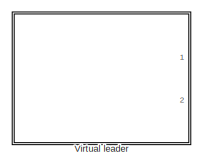
[diagram: root canvas - part 1/4, top left region]
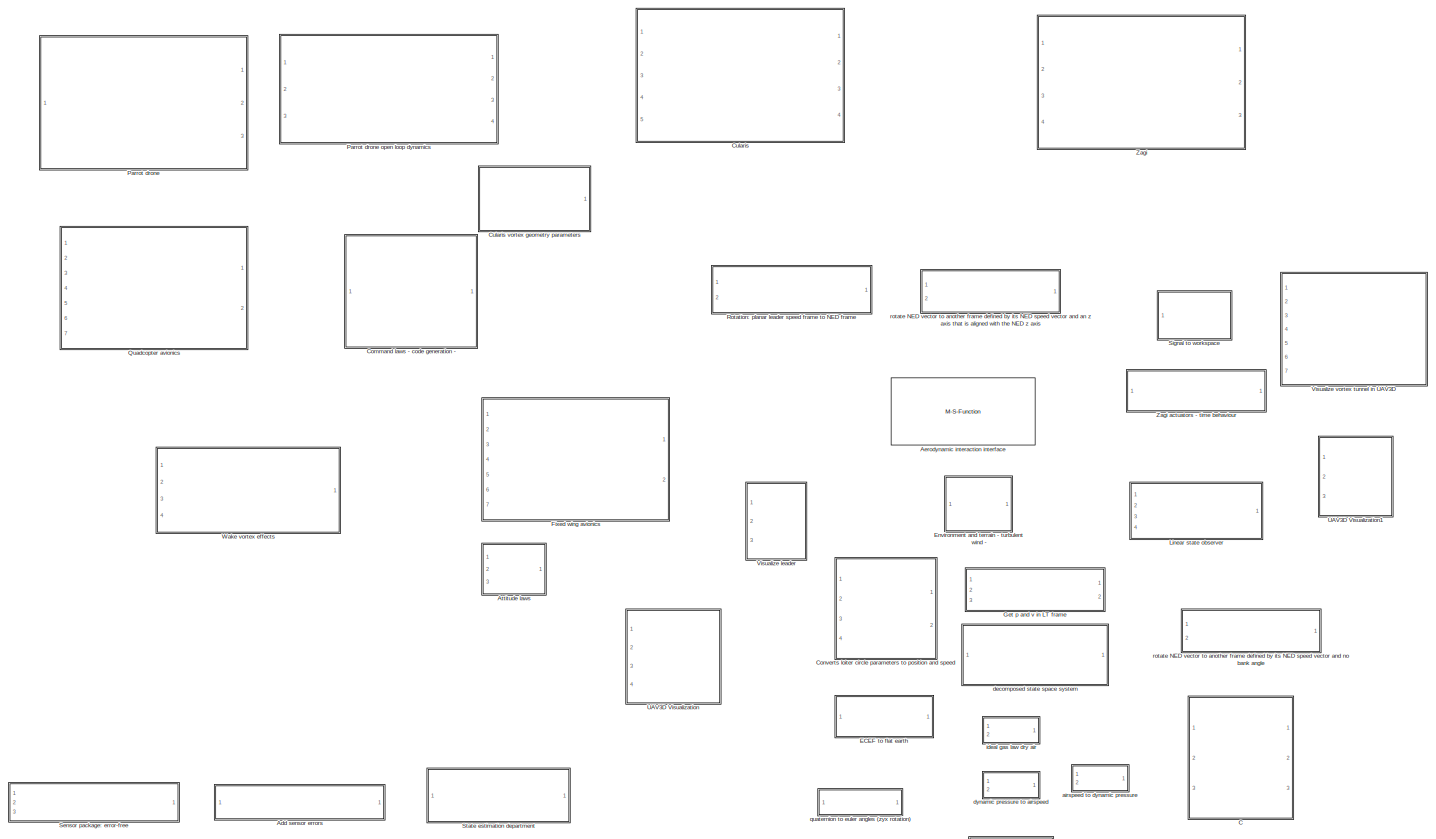
[diagram: root canvas - part 2/4, most of the canvas]
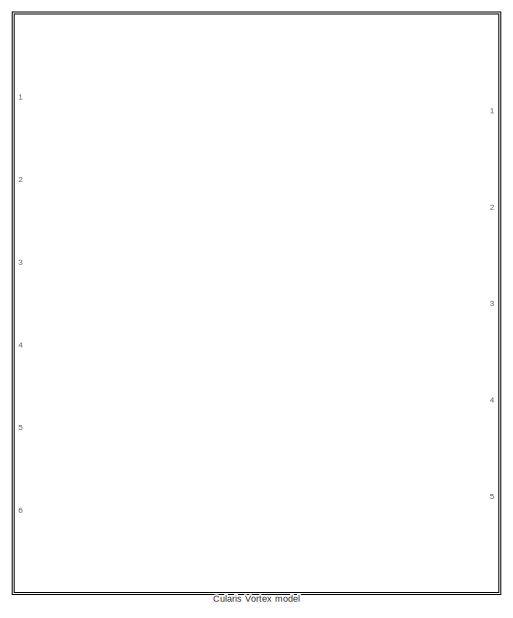
[diagram: root canvas - part 3/4, middle right region]
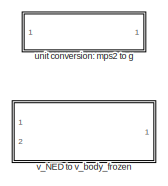
[diagram: root canvas - part 4/4, bottom center region]
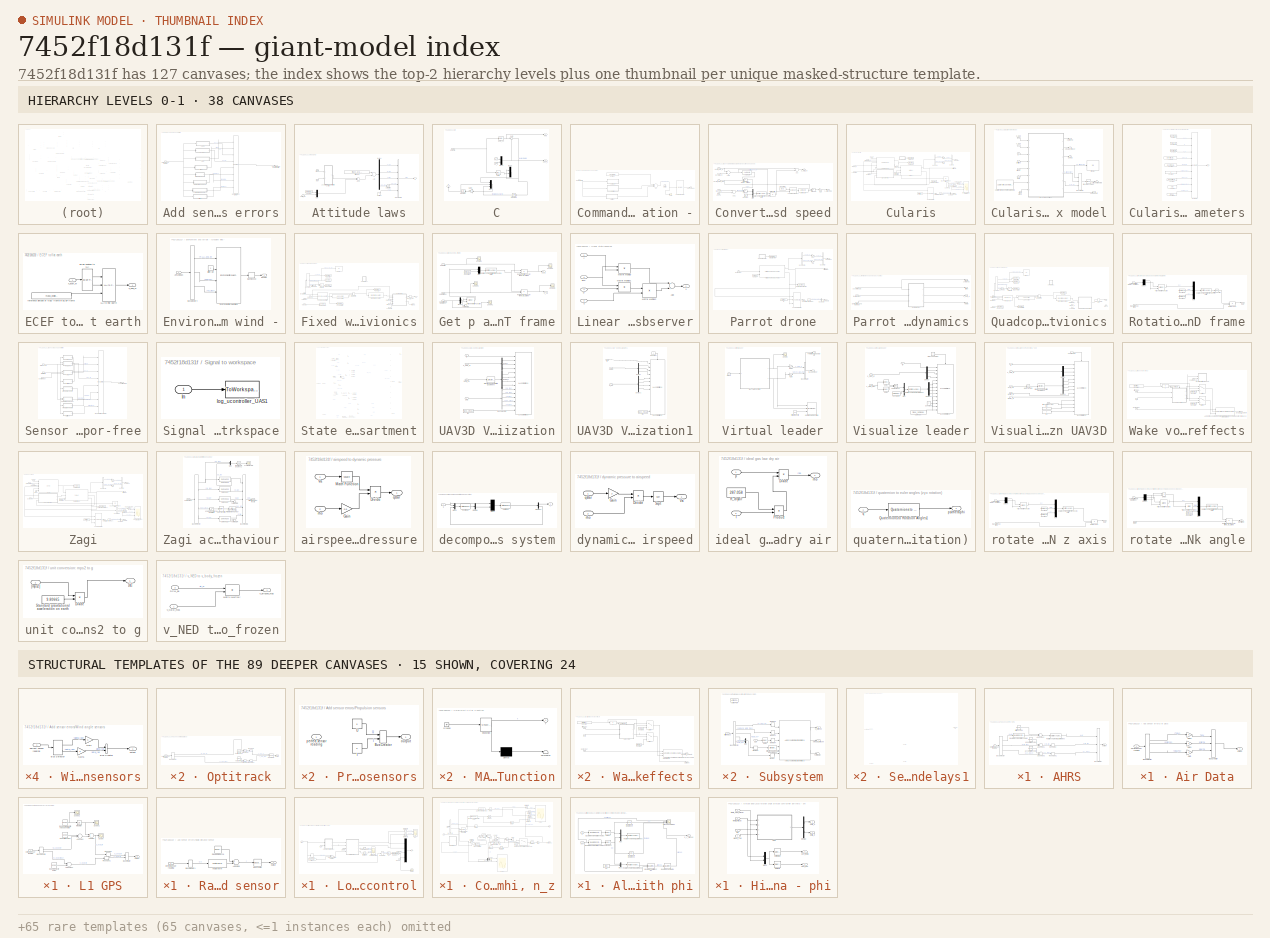
[diagram: thumbnail index - top-2 hierarchy levels (38 canvases) + 15 structural-template representatives of the remaining 89 canvases]
MODEL slx_7452f18d131f
KIND library
CONFIG AbsTol = auto
CONFIG EnableMultiTasking = on
CONFIG FixedStep = auto
CONFIG MaxStep = auto
CONFIG MinStep = auto
CONFIG RelTol = 1e-3
CONFIG SampleTimeConstraint = Unconstrained
CONFIG Solver = ode45
CONFIG SolverName = ode45
CONFIG StartTime = 0.0
CONFIG StopTime = 10.0
BLOCK [SubSystem] Add sensor errors
  Ports = [1, 1]
  RequestExecContextInheritance = off
  Variant = off
BLOCK [SubSystem] Add sensor errors/AHRS
  Ports = [1, 1]
  RequestExecContextInheritance = off
  Variant = off
BLOCK [Sum] Add sensor errors/AHRS/Add noise1
  InputSameDT = off
  OutDataTypeStr = Inherit: Inherit via internal rule
  Ports = [2, 1]
  SaturateOnIntegerOverflow = off
BLOCK [Sum] Add sensor errors/AHRS/Add noise2
  InputSameDT = off
  OutDataTypeStr = Inherit: Inherit via internal rule
  Ports = [2, 1]
  SaturateOnIntegerOverflow = off
BLOCK [Sum] Add sensor errors/AHRS/Add noise3
  InputSameDT = off
  OutDataTypeStr = Inherit: Inherit via internal rule
  Ports = [2, 1]
  SaturateOnIntegerOverflow = off
BLOCK [BusCreator] Add sensor errors/AHRS/Bus Creator
  DisplayOption = bar
  InheritFromInputs = on
  Inputs = 3
  OutDataTypeStr = Bus: AHRS
  Ports = [3, 1]
BLOCK [BusSelector] Add sensor errors/AHRS/Bus Selector
  OutputSignals = ahrs.quat,ahrs.gyro_rps,ahrs.acc_mps2
  Ports = [1, 3]
BLOCK [Reference] Add sensor errors/AHRS/Quaternions to Rotation Angles  REF=aerolibtransform2/Quaternions to Rotation Angles
  AttributesFormatString = Rotation Order: %<rotationOrder>
  Ports = [1, 1]
  SourceBlock = aerolibtransform2/Quaternions to Rotation Angles
  SourceType = Quat2Ang
BLOCK [Reshape] Add sensor errors/AHRS/Reshape
  Ports = [1, 1]
BLOCK [Reshape] Add sensor errors/AHRS/Reshape1
  Ports = [1, 1]
BLOCK [Reference] Add sensor errors/AHRS/Rotation Angles to Quaternions  REF=aerolibtransform2/Rotation Angles to Quaternions
  AttributesFormatString = Rotation Order: %<rotationOrder>
  Ports = [1, 1]
  SourceBlock = aerolibtransform2/Rotation Angles to Quaternions
  SourceType = Ang2Quat
BLOCK [Reference] Add sensor errors/AHRS/acceleration noise  REF=dspsrcs4/Random
Source
  Ports = [0, 1]
  SourceBlock = dspsrcs4/Random\nSource
  SourceType = Random Source
  UserDataPersistent = on
BLOCK [Reference] Add sensor errors/AHRS/angular rate noise  REF=dspsrcs4/Random
Source
  Ports = [0, 1]
  SourceBlock = dspsrcs4/Random\nSource
  SourceType = Random Source
  UserDataPersistent = on
BLOCK [Reference] Add sensor errors/AHRS/attitude noise  REF=dspsrcs4/Random
Source
  Ports = [0, 1]
  SourceBlock = dspsrcs4/Random\nSource
  SourceType = Random Source
  UserDataPersistent = on
BLOCK [Outport] Add sensor errors/AHRS/output
  IconDisplay = Port number
  OutDataTypeStr = Bus: AHRS
BLOCK [Inport] Add sensor errors/AHRS/perfect sensor reading
  IconDisplay = Port number
  OutDataTypeStr = Bus: SensorBus
BLOCK [SubSystem] Add sensor errors/Air Data
  Ports = [1, 1]
  RequestExecContextInheritance = off
  Variant = off
BLOCK [BusCreator] Add sensor errors/Air Data/Bus Creator
  DisplayOption = bar
  InheritFromInputs = on
  Inputs = 3
  OutDataTypeStr = Bus: Airdata
  Ports = [3, 1]
BLOCK [BusSelector] Add sensor errors/Air Data/Bus Selector
  OutputSignals = airdata.Tair_K,airdata.pStat_Pa,airdata.qBar_Pa
  Ports = [1, 3]
BLOCK [Gain] Add sensor errors/Air Data/Gain
  OutDataTypeStr = Inherit: Inherit via internal rule
  ParamDataTypeStr = Inherit: Inherit via internal rule
  SaturateOnIntegerOverflow = off
BLOCK [Gain] Add sensor errors/Air Data/Gain1
  OutDataTypeStr = Inherit: Inherit via internal rule
  ParamDataTypeStr = Inherit: Inherit via internal rule
  SaturateOnIntegerOverflow = off
BLOCK [Gain] Add sensor errors/Air Data/Gain2
  OutDataTypeStr = Inherit: Inherit via internal rule
  ParamDataTypeStr = Inherit: Inherit via internal rule
  SaturateOnIntegerOverflow = off
BLOCK [Outport] Add sensor errors/Air Data/output
  IconDisplay = Port number
  OutDataTypeStr = Bus: Airdata
BLOCK [Inport] Add sensor errors/Air Data/perfect sensor reading
  IconDisplay = Port number
  OutDataTypeStr = Bus: SensorBus
BLOCK [BusCreator] Add sensor errors/Bus Object Bus Creator
  AttributesFormatString = %<OutDataTypeStr>
  CopyFcn = set_param(gcb, 'LinkStatus', 'none')
  DisplayOption = bar
  InheritFromInputs = on
  Inputs = 8
  OutDataTypeStr = Bus: SensorBus
  Ports = [8, 1]
BLOCK [SubSystem] Add sensor errors/L1 GPS
  Ports = [1, 1]
  RequestExecContextInheritance = off
  Variant = off
BLOCK [Sum] Add sensor errors/L1 GPS/Add bias
  InputSameDT = off
  OutDataTypeStr = Inherit: Inherit via internal rule
  Ports = [2, 1]
  SaturateOnIntegerOverflow = off
BLOCK [Sum] Add sensor errors/L1 GPS/Add noise
  InputSameDT = off
  OutDataTypeStr = Inherit: Inherit via internal rule
  Ports = [2, 1]
  SaturateOnIntegerOverflow = off
BLOCK [Sum] Add sensor errors/L1 GPS/Add noise1
  InputSameDT = off
  OutDataTypeStr = Inherit: Inherit via internal rule
  Ports = [2, 1]
  SaturateOnIntegerOverflow = off
BLOCK [BusCreator] Add sensor errors/L1 GPS/Bus Creator
  DisplayOption = bar
  InheritFromInputs = off
  Inputs = 2
  OutDataTypeStr = Bus: GNSSL1
  Ports = [2, 1]
BLOCK [BusSelector] Add sensor errors/L1 GPS/Bus Selector1
  OutputSignals = gnss_l1.p_ecef_m,gnss_l1.v_ecef_mps
  Ports = [1, 2]
BLOCK [Reference] Add sensor errors/L1 GPS/C\A position noise  REF=dspsrcs4/Random
Source
  Ports = [0, 1]
  SourceBlock = dspsrcs4/Random\nSource
  SourceType = Random Source
  UserDataPersistent = on
BLOCK [Reference] Add sensor errors/L1 GPS/Doppler velocity noise  REF=dspsrcs4/Random
Source
  Ports = [0, 1]
  SourceBlock = dspsrcs4/Random\nSource
  SourceType = Random Source
  UserDataPersistent = on
BLOCK [Integrator] Add sensor errors/L1 GPS/Integrator
  Ports = [1, 1]
BLOCK [Reference] Add sensor errors/L1 GPS/Random walk white noise generator  REF=dspsrcs4/Random
Source
  Ports = [0, 1]
  SourceBlock = dspsrcs4/Random\nSource
  SourceType = Random Source
  UserDataPersistent = on
BLOCK [Reshape] Add sensor errors/L1 GPS/Reshape
  Ports = [1, 1]
BLOCK [Reshape] Add sensor errors/L1 GPS/Reshape1
  Ports = [1, 1]
BLOCK [Scope] Add sensor errors/L1 GPS/Scope
  NumInputPorts = 1
  Ports = [1]
  ScopeSpecificationString = C++SS(StrPVP('Location','[188, 365, 512, 604]'),StrPVP('Open','off'),MxPVP('AxesTitles',24,'struct(''axes1'',''%<SignalLabel>'')'),MxPVP('ScopeGraphics',28,'struct(''FigureColor'',''[0.5 0.5 0.5]'',''AxesColor'',''[0 0 0]'',''AxesTickColor'',''[1 1 1]'',''LineColors'',''[1 1 0;1 0 1;0 1 1;1 0 0;0 1 0;0 0 1]'',''LineStyles'',''-|-|-|-|-|-'',''LineWidths'',''[0.5 0.5 0.5 0.5 0.5 0.5]'',''MarkerStyle...<+251ch>  <repeated x6 — deduplicated; at blocks: Scope, Scope1>
BLOCK [Scope] Add sensor errors/L1 GPS/Scope1
  NumInputPorts = 1
  Ports = [1]
  ScopeSpecificationString = C++SS(StrPVP('Location','[10, 60, 1930, 1093]'),StrPVP('Open','off'),MxPVP('AxesTitles',24,'struct(''axes1'',''%<SignalLabel>'')'),MxPVP('ScopeGraphics',28,'struct(''FigureColor'',''[0.5 0.5 0.5]'',''AxesColor'',''[0 0 0]'',''AxesTickColor'',''[1 1 1]'',''LineColors'',''[1 1 0;1 0 1;0 1 1;1 0 0;0 1 0;0 0 1]'',''LineStyles'',''-|-|-|-|-|-'',''LineWidths'',''[0.5 0.5 0.5 0.5 0.5 0.5]'',''MarkerStyle...<+252ch>
BLOCK [Scope] Add sensor errors/L1 GPS/Scope2
  NumInputPorts = 1
  Ports = [1]
  ScopeSpecificationString = C++SS(StrPVP('Location','[10, 60, 1930, 1177]'),StrPVP('Open','off'),MxPVP('AxesTitles',24,'struct(''axes1'',''%<SignalLabel>'')'),MxPVP('ScopeGraphics',28,'struct(''FigureColor'',''[0.5 0.5 0.5]'',''AxesColor'',''[0 0 0]'',''AxesTickColor'',''[1 1 1]'',''LineColors'',''[1 1 0;1 0 1;0 1 1;1 0 0;0 1 0;0 0 1]'',''LineStyles'',''-|-|-|-|-|-'',''LineWidths'',''[0.5 0.5 0.5 0.5 0.5 0.5]'',''MarkerStyle...<+251ch>
BLOCK [Outport] Add sensor errors/L1 GPS/output
  IconDisplay = Port number
  OutDataTypeStr = Bus: GNSSL1
BLOCK [Inport] Add sensor errors/L1 GPS/perfect sensor reading
  IconDisplay = Port number
  OutDataTypeStr = Bus: SensorBus
BLOCK [SubSystem] Add sensor errors/Optitrack
  Ports = [1, 1]
  RequestExecContextInheritance = off
  Variant = off
BLOCK [Sum] Add sensor errors/Optitrack/Add noise1
  InputSameDT = off
  OutDataTypeStr = Inherit: Inherit via internal rule
  Ports = [2, 1]
  SaturateOnIntegerOverflow = off
BLOCK [Sum] Add sensor errors/Optitrack/Add noise2
  InputSameDT = off
  OutDataTypeStr = Inherit: Inherit via internal rule
  Ports = [2, 1]
  SaturateOnIntegerOverflow = off
BLOCK [BusCreator] Add sensor errors/Optitrack/Bus Creator
  DisplayOption = bar
  InheritFromInputs = off
  Inputs = 2
  OutDataTypeStr = Bus: MotionTracker
  Ports = [2, 1]
BLOCK [BusSelector] Add sensor errors/Optitrack/Bus Selector
  OutputSignals = motiontracker.p_ned_m,motiontracker.v_ned_mps
  Ports = [1, 2]
BLOCK [Reshape] Add sensor errors/Optitrack/Reshape
  Ports = [1, 1]
BLOCK [Reshape] Add sensor errors/Optitrack/Reshape1
  Ports = [1, 1]
BLOCK [Outport] Add sensor errors/Optitrack/output
  IconDisplay = Port number
  OutDataTypeStr = Bus: MotionTracker
BLOCK [Inport] Add sensor errors/Optitrack/perfect sensor reading
  IconDisplay = Port number
  OutDataTypeStr = Bus: SensorBus
BLOCK [Reference] Add sensor errors/Optitrack/position noise  REF=dspsrcs4/Random
Source
  Ports = [0, 1]
  SourceBlock = dspsrcs4/Random\nSource
  SourceType = Random Source
  UserDataPersistent = on
BLOCK [Reference] Add sensor errors/Optitrack/velocity noise  REF=dspsrcs4/Random
Source
  Ports = [0, 1]
  SourceBlock = dspsrcs4/Random\nSource
  SourceType = Random Source
  UserDataPersistent = on
BLOCK [SubSystem] Add sensor errors/Propulsion sensors
  Ports = [1, 1]
  RequestExecContextInheritance = off
  Variant = off
BLOCK [BusCreator] Add sensor errors/Propulsion sensors/Bus Creator
  DisplayOption = bar
  InheritFromInputs = off
  Inputs = 2
  OutDataTypeStr = Bus: Enginedata
  Ports = [2, 1]
BLOCK [Constant] Add sensor errors/Propulsion sensors/I
  Value = 0
BLOCK [Constant] Add sensor errors/Propulsion sensors/U
  Value = 0
BLOCK [Outport] Add sensor errors/Propulsion sensors/output
  IconDisplay = Port number
  OutDataTypeStr = Bus: Enginedata
BLOCK [Inport] Add sensor errors/Propulsion sensors/perfect sensor reading
  IconDisplay = Port number
  OutDataTypeStr = Bus: SensorBus
BLOCK [SubSystem] Add sensor errors/RTK DGPS
  Ports = [1, 1]
  RequestExecContextInheritance = off
  Variant = off
BLOCK [Sum] Add sensor errors/RTK DGPS/Add noise1
  InputSameDT = off
  OutDataTypeStr = Inherit: Inherit via internal rule
  Ports = [2, 1]
  SaturateOnIntegerOverflow = off
BLOCK [Sum] Add sensor errors/RTK DGPS/Add noise2
  InputSameDT = off
  OutDataTypeStr = Inherit: Inherit via internal rule
  Ports = [2, 1]
  SaturateOnIntegerOverflow = off
BLOCK [BusCreator] Add sensor errors/RTK DGPS/Bus Creator
  DisplayOption = bar
  InheritFromInputs = off
  Inputs = 2
  OutDataTypeStr = Bus: GNSSRTK
  Ports = [2, 1]
BLOCK [BusSelector] Add sensor errors/RTK DGPS/Bus Selector
  OutputSignals = gnss_rtk.delta_p_ecef_m,gnss_rtk.delta_v_ecef_mps
  Ports = [1, 2]
BLOCK [Reshape] Add sensor errors/RTK DGPS/Reshape
  Ports = [1, 1]
BLOCK [Reshape] Add sensor errors/RTK DGPS/Reshape1
  Ports = [1, 1]
BLOCK [Outport] Add sensor errors/RTK DGPS/output
  IconDisplay = Port number
  OutDataTypeStr = Bus: GNSSRTK
BLOCK [Inport] Add sensor errors/RTK DGPS/perfect sensor reading
  IconDisplay = Port number
  OutDataTypeStr = Bus: SensorBus
BLOCK [Reference] Add sensor errors/RTK DGPS/position noise  REF=dspsrcs4/Random
Source
  Ports = [0, 1]
  SourceBlock = dspsrcs4/Random\nSource
  SourceType = Random Source
  UserDataPersistent = on
BLOCK [Reference] Add sensor errors/RTK DGPS/velocity noise  REF=dspsrcs4/Random
Source
  Ports = [0, 1]
  SourceBlock = dspsrcs4/Random\nSource
  SourceType = Random Source
  UserDataPersistent = on
BLOCK [SubSystem] Add sensor errors/Radio distance sensor
  Ports = [1, 1]
  RequestExecContextInheritance = off
  Variant = off
BLOCK [Sum] Add sensor errors/Radio distance sensor/Add noise
  InputSameDT = off
  OutDataTypeStr = Inherit: Inherit via internal rule
  Ports = [2, 1]
  SaturateOnIntegerOverflow = off
BLOCK [BusCreator] Add sensor errors/Radio distance sensor/Bus Creator
  DisplayOption = bar
  InheritFromInputs = off
  Inputs = 1
  OutDataTypeStr = Bus: Radiodistance
  Ports = [1, 1]
BLOCK [BusSelector] Add sensor errors/Radio distance sensor/Bus Selector1
  OutputSignals = radiodistance.r
  Ports = [1, 1]
BLOCK [Reference] Add sensor errors/Radio distance sensor/Random Source  REF=dspsrcs4/Random
Source
  Ports = [0, 1]
  SourceBlock = dspsrcs4/Random\nSource
  SourceType = Random Source
  UserDataPersistent = on
BLOCK [Outport] Add sensor errors/Radio distance sensor/output
  IconDisplay = Port number
  OutDataTypeStr = Bus: Radiodistance
BLOCK [Inport] Add sensor errors/Radio distance sensor/perfect sensor reading
  IconDisplay = Port number
  OutDataTypeStr = Bus: SensorBus
BLOCK [Reference] Add sensor errors/Radio distance sensor/vector norm  REF=uavsimBlockset_VectorNorm/vector norm
  Ports = [1, 1]
  SourceBlock = uavsimBlockset_VectorNorm/vector norm
  SourceType = SubSystem
BLOCK [SubSystem] Add sensor errors/Wind angle sensors
  Ports = [1, 1]
  RequestExecContextInheritance = off
  Variant = off
BLOCK [BusCreator] Add sensor errors/Wind angle sensors/Bus Creator
  DisplayOption = bar
  InheritFromInputs = on
  Inputs = 2
  OutDataTypeStr = Bus: WindAngles
  Ports = [2, 1]
BLOCK [BusSelector] Add sensor errors/Wind angle sensors/Bus Selector
  OutputSignals = windangles.alpha_rad,windangles.beta_rad
  Ports = [1, 2]
BLOCK [Gain] Add sensor errors/Wind angle sensors/Gain
  OutDataTypeStr = Inherit: Inherit via internal rule
  ParamDataTypeStr = Inherit: Inherit via internal rule
  SaturateOnIntegerOverflow = off
BLOCK [Gain] Add sensor errors/Wind angle sensors/Gain1
  OutDataTypeStr = Inherit: Inherit via internal rule
  ParamDataTypeStr = Inherit: Inherit via internal rule
  SaturateOnIntegerOverflow = off
BLOCK [Outport] Add sensor errors/Wind angle sensors/output
  IconDisplay = Port number
  OutDataTypeStr = Bus: WindAngles
BLOCK [Inport] Add sensor errors/Wind angle sensors/perfect sensor reading
  IconDisplay = Port number
  OutDataTypeStr = Bus: SensorBus
BLOCK [Inport] Add sensor errors/perfect sensor reading
  IconDisplay = Port number
  OutDataTypeStr = Bus: SensorBus
BLOCK [Outport] Add sensor errors/sensor readings including errors
  IconDisplay = Port number
  OutDataTypeStr = Bus: SensorBus
BLOCK [M-S-Function] Aerodynamic interaction interface
  FunctionName = iUASAeroModel_sfun
  Parameters = mask_ID, mask_c_m, mask_wingspan_m, mask_sweepangle_rad, mask_dihedral_rad, mask_l_longi_m, mask_nosecoo_m, mask_l_vertical_m, mask_fincoo_m
  Ports = [5, 3]
BLOCK [SubSystem] Attitude laws
  Ports = [3, 1]
  RequestExecContextInheritance = off
  SystemSampleTime = uavsim.ap.hardware.dt_attitudeloops_s
  Variant = off
BLOCK [Sum] Attitude laws/Add
  InputSameDT = off
  OutDataTypeStr = Inherit: Inherit via internal rule
  Ports = [2, 1]
  SaturateOnIntegerOverflow = off
BLOCK [Sum] Attitude laws/Add1
  InputSameDT = off
  OutDataTypeStr = Inherit: Inherit via internal rule
  Ports = [2, 1]
  SaturateOnIntegerOverflow = off
BLOCK [BusCreator] Attitude laws/Bus Creator2
  DisplayOption = bar
  InheritFromInputs = on
  Inputs = 5
  NonVirtualBus = on
  OutDataTypeStr = Bus: CMD
  Ports = [5, 1]
BLOCK [Constant] Attitude laws/Constant
  Value = zeros(3,1)
BLOCK [Demux] Attitude laws/Demux
  DisplayOption = bar
  Ports = [1, 4]
BLOCK [SubSystem] Attitude laws/Local rotation angle attitude control
  Ports = [2, 1]
  RequestExecContextInheritance = off
  Variant = off
BLOCK [Scope] Attitude laws/Local rotation angle attitude control/Attitude control Local rotation angles
  NumInputPorts = 2
  Ports = [2]
  ScopeSpecificationString = C++SS(StrPVP('Location','[11, 60, 963, 1049]'),StrPVP('Open','off'),MxPVP('AxesTitles',24,'struct(''axes1'',''%<SignalLabel>'',''axes2'',''%<SignalLabel>'')'),MxPVP('ScopeGraphics',28,'struct(''FigureColor'',''[0.5 0.5 0.5]'',''AxesColor'',''[0 0 0]'',''AxesTickColor'',''[1 1 1]'',''LineColors'',''[1 1 0;1 0 1;0 1 1;1 0 0;0 1 0;0 0 1]'',''LineStyles'',''-|-|-|-|-|-'',''LineWidths'',''[0.5 0.5 0.5 ...<+381ch>
BLOCK [BusSelector] Attitude laws/Local rotation angle attitude control/Bus Selector
  OutputSignals = alpha_rad
  Ports = [1, 1]
BLOCK [BusSelector] Attitude laws/Local rotation angle attitude control/Bus Selector1
  OutputSignals = omega_b_rps
  Ports = [1, 1]
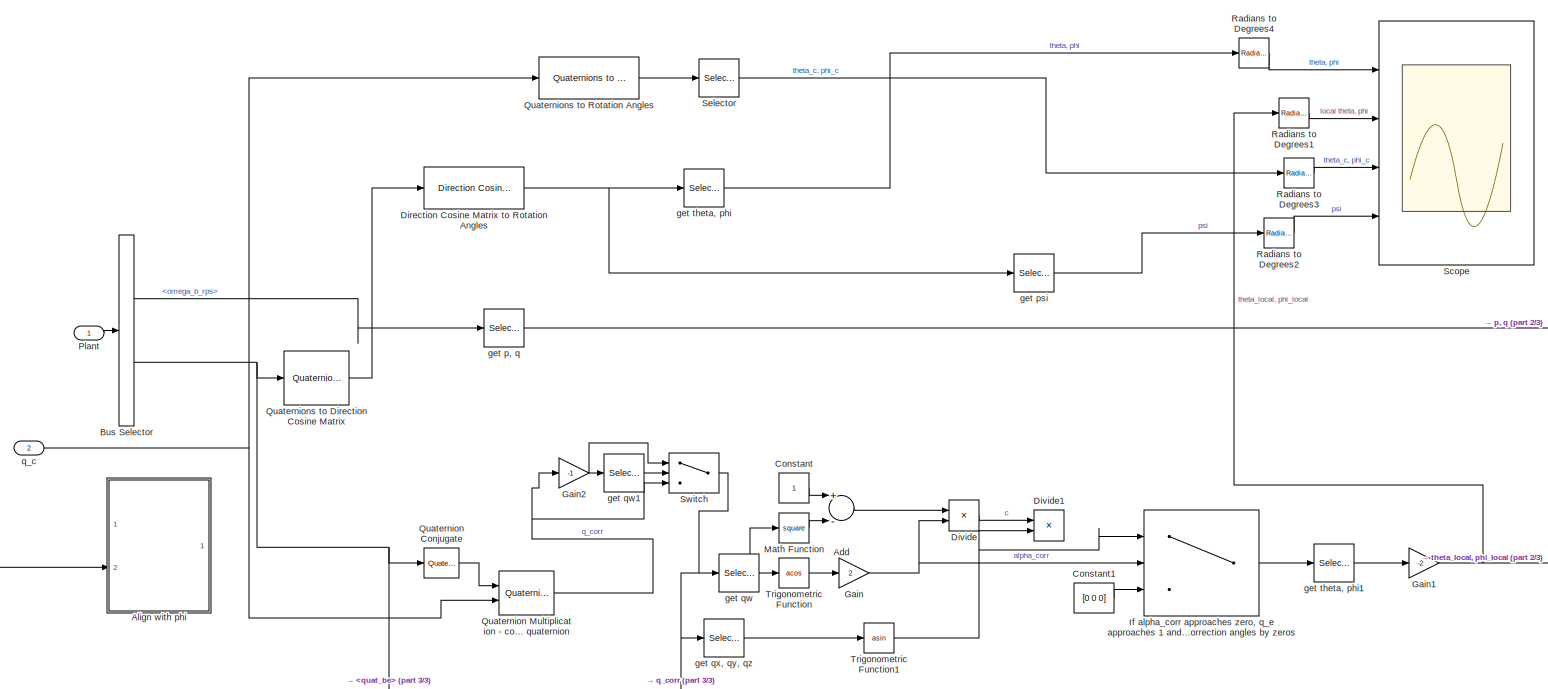
[diagram: Attitude laws/Local rotation angle attitude control/Compute local theta, phi, n_z - part 1/3, full width, middle band]
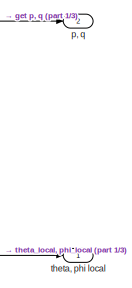
[diagram: Attitude laws/Local rotation angle attitude control/Compute local theta, phi, n_z - part 2/3, middle right region]
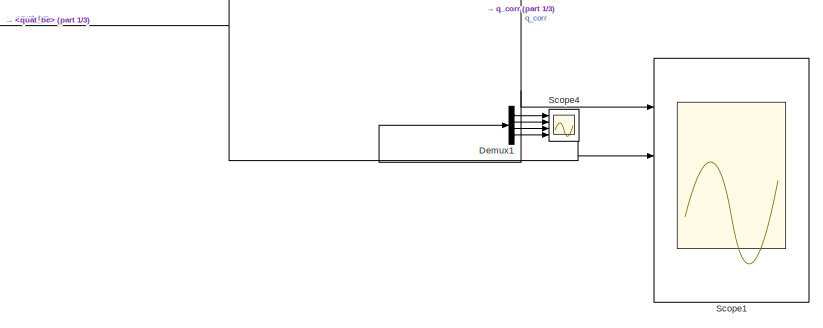
[diagram: Attitude laws/Local rotation angle attitude control/Compute local theta, phi, n_z - part 3/3, bottom center region]
BLOCK [SubSystem] Attitude laws/Local rotation angle attitude control/Compute local theta, phi, n_z
  Ports = [2, 2]
  RequestExecContextInheritance = off
  Variant = off
BLOCK [Sum] Attitude laws/Local rotation angle attitude control/Compute local theta, phi, n_z/Add
  InputSameDT = off
  Inputs = +-
  OutDataTypeStr = Inherit: Inherit via internal rule
  Ports = [2, 1]
  SaturateOnIntegerOverflow = off
BLOCK [SubSystem] Attitude laws/Local rotation angle attitude control/Compute local theta, phi, n_z/Align with phi
  Ports = [2, 1]
  RequestExecContextInheritance = off
  Variant = off
BLOCK [Constant] Attitude laws/Local rotation angle attitude control/Compute local theta, phi, n_z/Align with phi/0 0
  Value = [0 0]
BLOCK [Mux] Attitude laws/Local rotation angle attitude control/Compute local theta, phi, n_z/Align with phi/Mux
  DisplayOption = bar
  Inputs = 2
  Ports = [2, 1]
BLOCK [Mux] Attitude laws/Local rotation angle attitude control/Compute local theta, phi, n_z/Align with phi/Mux1
  DisplayOption = bar
  Inputs = 2
  Ports = [2, 1]
BLOCK [Reference] Attitude laws/Local rotation angle attitude control/Compute local theta, phi, n_z/Align with phi/Quaternion Multiplication  REF=aerolibutil/Quaternion
Multiplication
  Ports = [2, 1]
  SourceBlock = aerolibutil/Quaternion\nMultiplication
  SourceType = Quaternion Multiplication
BLOCK [Reference] Attitude laws/Local rotation angle attitude control/Compute local theta, phi, n_z/Align with phi/Quaternion Normalize  REF=aerolibutil/Quaternion
Normalize
  Ports = [1, 1]
  SourceBlock = aerolibutil/Quaternion\nNormalize
  SourceType = Quaternion Normalize
BLOCK [Reference] Attitude laws/Local rotation angle attitude control/Compute local theta, phi, n_z/Align with phi/Quaternions to Rotation Angles  REF=aerolibtransform2/Quaternions to Rotation Angles
  AttributesFormatString = Rotation Order: %<rotationOrder>
  Ports = [1, 1]
  SourceBlock = aerolibtransform2/Quaternions to Rotation Angles
  SourceType = Quat2Ang
BLOCK [Reference] Attitude laws/Local rotation angle attitude control/Compute local theta, phi, n_z/Align with phi/Quaternions to Rotation Angles1  REF=aerolibtransform2/Quaternions to Rotation Angles
  AttributesFormatString = Rotation Order: %<rotationOrder>
  Ports = [1, 1]
  SourceBlock = aerolibtransform2/Quaternions to Rotation Angles
  SourceType = Quat2Ang
BLOCK [Reference] Attitude laws/Local rotation angle attitude control/Compute local theta, phi, n_z/Align with phi/Radians to Degrees1  REF=simulink_extras/Transformations/Radians
to Degrees
  Ports = [1, 1]
  SourceBlock = simulink_extras/Transformations/Radians\nto Degrees
  SourceType = RadiansToDegrees
BLOCK [Reference] Attitude laws/Local rotation angle attitude control/Compute local theta, phi, n_z/Align with phi/Radians to Degrees4  REF=simulink_extras/Transformations/Radians
to Degrees
  Ports = [1, 1]
  SourceBlock = simulink_extras/Transformations/Radians\nto Degrees
  SourceType = RadiansToDegrees
BLOCK [Reference] Attitude laws/Local rotation angle attitude control/Compute local theta, phi, n_z/Align with phi/Rotation Angles to Quaternions  REF=aerolibtransform2/Rotation Angles to Quaternions
  AttributesFormatString = Rotation Order: %<rotationOrder>
  Ports = [1, 1]
  SourceBlock = aerolibtransform2/Rotation Angles to Quaternions
  SourceType = Ang2Quat
BLOCK [Reference] Attitude laws/Local rotation angle attitude control/Compute local theta, phi, n_z/Align with phi/Rotation Angles to Quaternions1  REF=aerolibtransform2/Rotation Angles to Quaternions
  AttributesFormatString = Rotation Order: %<rotationOrder>
  Ports = [1, 1]
  SourceBlock = aerolibtransform2/Rotation Angles to Quaternions
  SourceType = Ang2Quat
BLOCK [Scope] Attitude laws/Local rotation angle attitude control/Compute local theta, phi, n_z/Align with phi/aligned quaternion
  NumInputPorts = 4
  Ports = [4]
  ScopeSpecificationString = C++SS(StrPVP('Location','[6, 54, 958, 1043]'),StrPVP('Open','off'),MxPVP('AxesTitles',24,'struct(''axes1'',''%<SignalLabel>'',''axes2'',''%<SignalLabel>'',''axes3'',''%<SignalLabel>'',''axes4'',''%<SignalLabel>'')'),MxPVP('ScopeGraphics',28,'struct(''FigureColor'',''[0.5 0.5 0.5]'',''AxesColor'',''[0 0 0]'',''AxesTickColor'',''[1 1 1]'',''LineColors'',''[1 1 0;1 0 1;0 1 1;1 0 0;0 1 0;0 0 1]'',''Li...<+493ch>
BLOCK [Selector] Attitude laws/Local rotation angle attitude control/Compute local theta, phi, n_z/Align with phi/get psi
  IndexOptions = Index vector (dialog)
  Indices = 1
  InputPortWidth = 3
  OutputSizes = 1
  Ports = [1, 1]
BLOCK [Selector] Attitude laws/Local rotation angle attitude control/Compute local theta, phi, n_z/Align with phi/get theta, phi
  IndexOptions = Index vector (dialog)
  Indices = [2 3]
  InputPortWidth = 3
  OutputSizes = 1
  Ports = [1, 1]
BLOCK [Inport] Attitude laws/Local rotation angle attitude control/Compute local theta, phi, n_z/Align with phi/q
  IconDisplay = Port number
  Port = 2
BLOCK [Inport] Attitude laws/Local rotation angle attitude control/Compute local theta, phi, n_z/Align with phi/q_c
  IconDisplay = Port number
BLOCK [Outport] Attitude laws/Local rotation angle attitude control/Compute local theta, phi, n_z/Align with phi/q_c_aligned
  IconDisplay = Port number
BLOCK [BusSelector] Attitude laws/Local rotation angle attitude control/Compute local theta, phi, n_z/Bus Selector
  OutputSignals = omega_b_rps,quat_be
  Ports = [1, 2]
BLOCK [Constant] Attitude laws/Local rotation angle attitude control/Compute local theta, phi, n_z/Constant
BLOCK [Constant] Attitude laws/Local rotation angle attitude control/Compute local theta, phi, n_z/Constant1
  Value = [0 0 0]
BLOCK [Demux] Attitude laws/Local rotation angle attitude control/Compute local theta, phi, n_z/Demux1
  DisplayOption = bar
  Ports = [1, 4]
BLOCK [Reference] Attitude laws/Local rotation angle attitude control/Compute local theta, phi, n_z/Direction Cosine Matrix to Rotation Angles  REF=aerolibtransform2/Direction Cosine Matrix
to Rotation Angles
  AttributesFormatString = Rotation Order: %<rotationOrder>
  Ports = [1, 1]
  SourceBlock = aerolibtransform2/Direction Cosine Matrix\nto Rotation Angles
  SourceType = DCM2Ang
BLOCK [Product] Attitude laws/Local rotation angle attitude control/Compute local theta, phi, n_z/Divide
  InputSameDT = off
  Inputs = /*
  OutDataTypeStr = Inherit: Inherit via internal rule
  Ports = [2, 1]
  RndMeth = Floor
  SaturateOnIntegerOverflow = off
BLOCK [Product] Attitude laws/Local rotation angle attitude control/Compute local theta, phi, n_z/Divide1
  InputSameDT = off
  Inputs = **
  OutDataTypeStr = Inherit: Inherit via internal rule
  Ports = [2, 1]
  RndMeth = Floor
  SaturateOnIntegerOverflow = off
BLOCK [Gain] Attitude laws/Local rotation angle attitude control/Compute local theta, phi, n_z/Gain
  Gain = 2
  OutDataTypeStr = Inherit: Inherit via internal rule
  ParamDataTypeStr = Inherit: Inherit via internal rule
  SaturateOnIntegerOverflow = off
BLOCK [Gain] Attitude laws/Local rotation angle attitude control/Compute local theta, phi, n_z/Gain1
  Gain = -2
  OutDataTypeStr = Inherit: Inherit via internal rule
  ParamDataTypeStr = Inherit: Inherit via internal rule
  SaturateOnIntegerOverflow = off
BLOCK [Gain] Attitude laws/Local rotation angle attitude control/Compute local theta, phi, n_z/Gain2
  Gain = -1
  OutDataTypeStr = Inherit: Inherit via internal rule
  ParamDataTypeStr = Inherit: Inherit via internal rule
  SaturateOnIntegerOverflow = off
BLOCK [Switch] Attitude laws/Local rotation angle attitude control/Compute local theta, phi, n_z/If alpha_corr approaches zero, q_e approaches 1 and c goes to infinity. In that case, just replace the computed correction angles by zeros
  Criteria = u2 ~= 0
  InputSameDT = off
  SaturateOnIntegerOverflow = off
BLOCK [Math] Attitude laws/Local rotation angle attitude control/Compute local theta, phi, n_z/Math Function
  Operator = square
  Ports = [1, 1]
BLOCK [Inport] Attitude laws/Local rotation angle attitude control/Compute local theta, phi, n_z/Plant
  IconDisplay = Port number
  OutDataTypeStr = Bus: StateBus
BLOCK [Reference] Attitude laws/Local rotation angle attitude control/Compute local theta, phi, n_z/Quaternion Conjugate  REF=aerolibutil/Quaternion
Conjugate
  Ports = [1, 1]
  SourceBlock = aerolibutil/Quaternion\nConjugate
  SourceType = Quaternion Conjugate
BLOCK [Reference] Attitude laws/Local rotation angle attitude control/Compute local theta, phi, n_z/Quaternion Multiplication - compute error quaternion  REF=aerolibutil/Quaternion
Multiplication
  Ports = [2, 1]
  SourceBlock = aerolibutil/Quaternion\nMultiplication
  SourceType = Quaternion Multiplication
BLOCK [Reference] Attitude laws/Local rotation angle attitude control/Compute local theta, phi, n_z/Quaternions to Direction Cosine Matrix  REF=aerolibtransform2/Quaternions to 
Direction Cosine Matrix
  Ports = [1, 1]
  SourceBlock = aerolibtransform2/Quaternions to \nDirection Cosine Matrix
  SourceType = Quaternion2DCM
BLOCK [Reference] Attitude laws/Local rotation angle attitude control/Compute local theta, phi, n_z/Quaternions to Rotation Angles  REF=aerolibtransform2/Quaternions to Rotation Angles
  AttributesFormatString = Rotation Order: %<rotationOrder>
  Ports = [1, 1]
  SourceBlock = aerolibtransform2/Quaternions to Rotation Angles
  SourceType = Quat2Ang
BLOCK [Reference] Attitude laws/Local rotation angle attitude control/Compute local theta, phi, n_z/Radians to Degrees1  REF=simulink_extras/Transformations/Radians
to Degrees
  Ports = [1, 1]
  SourceBlock = simulink_extras/Transformations/Radians\nto Degrees
  SourceType = RadiansToDegrees
BLOCK [Reference] Attitude laws/Local rotation angle attitude control/Compute local theta, phi, n_z/Radians to Degrees2  REF=simulink_extras/Transformations/Radians
to Degrees
  Ports = [1, 1]
  SourceBlock = simulink_extras/Transformations/Radians\nto Degrees
  SourceType = RadiansToDegrees
BLOCK [Reference] Attitude laws/Local rotation angle attitude control/Compute local theta, phi, n_z/Radians to Degrees3  REF=simulink_extras/Transformations/Radians
to Degrees
  Ports = [1, 1]
  SourceBlock = simulink_extras/Transformations/Radians\nto Degrees
  SourceType = RadiansToDegrees
BLOCK [Reference] Attitude laws/Local rotation angle attitude control/Compute local theta, phi, n_z/Radians to Degrees4  REF=simulink_extras/Transformations/Radians
to Degrees
  Ports = [1, 1]
  SourceBlock = simulink_extras/Transformations/Radians\nto Degrees
  SourceType = RadiansToDegrees
BLOCK [Scope] Attitude laws/Local rotation angle attitude control/Compute local theta, phi, n_z/Scope
  NumInputPorts = 4
  Ports = [4]
  ScopeSpecificationString = C++SS(StrPVP('Location','[6, 54, 958, 1043]'),StrPVP('Open','off'),StrPVP('ZoomMode','yonly'),MxPVP('AxesTitles',24,'struct(''axes1'',''%<SignalLabel>'',''axes2'',''%<SignalLabel>'',''axes3'',''%<SignalLabel>'',''axes4'',''%<SignalLabel>'')'),MxPVP('ScopeGraphics',28,'struct(''FigureColor'',''[0.501960784313725 0.501960784313725 0.501960784313725]'',''AxesColor'',''[0 0 0]'',''AxesTickColor'',''[1...<+551ch>
BLOCK [Scope] Attitude laws/Local rotation angle attitude control/Compute local theta, phi, n_z/Scope1
  NumInputPorts = 4
  Ports = [4]
  ScopeSpecificationString = C++SS(StrPVP('Location','[6, 54, 958, 1043]'),StrPVP('Open','off'),MxPVP('AxesTitles',24,'struct(''axes1'',''%<SignalLabel>'',''axes2'',''%<SignalLabel>'',''axes3'',''%<SignalLabel>'',''axes4'',''%<SignalLabel>'')'),MxPVP('ScopeGraphics',28,'struct(''FigureColor'',''[0.501960784313725 0.501960784313725 0.501960784313725]'',''AxesColor'',''[0 0 0]'',''AxesTickColor'',''[1 1 1]'',''LineColors'',''[1...<+524ch>
BLOCK [Scope] Attitude laws/Local rotation angle attitude control/Compute local theta, phi, n_z/Scope4
  NumInputPorts = 4
  Ports = [4]
  ScopeSpecificationString = C++SS(StrPVP('Location','[6, 54, 958, 1043]'),StrPVP('Open','off'),StrPVP('ZoomMode','xonly'),MxPVP('AxesTitles',24,'struct(''axes1'',''%<SignalLabel>'',''axes2'',''%<SignalLabel>'',''axes3'',''%<SignalLabel>'',''axes4'',''%<SignalLabel>'')'),MxPVP('ScopeGraphics',28,'struct(''FigureColor'',''[0.5 0.5 0.5]'',''AxesColor'',''[0 0 0]'',''AxesTickColor'',''[1 1 1]'',''LineColors'',''[1 1 0;1 0 1;0 1 ...<+465ch>
BLOCK [Selector] Attitude laws/Local rotation angle attitude control/Compute local theta, phi, n_z/Selector
  IndexOptions = Index vector (dialog)
  Indices = [2 3]
  InputPortWidth = 3
  OutputSizes = 1
  Ports = [1, 1]
BLOCK [Switch] Attitude laws/Local rotation angle attitude control/Compute local theta, phi, n_z/Switch
  Criteria = u2 > Threshold
  InputSameDT = off
  SaturateOnIntegerOverflow = off
BLOCK [Trigonometry] Attitude laws/Local rotation angle attitude control/Compute local theta, phi, n_z/Trigonometric Function
  Operator = acos
  Ports = [1, 1]
BLOCK [Trigonometry] Attitude laws/Local rotation angle attitude control/Compute local theta, phi, n_z/Trigonometric Function1
  Operator = asin
  Ports = [1, 1]
BLOCK [Selector] Attitude laws/Local rotation angle attitude control/Compute local theta, phi, n_z/get p, q
  IndexOptions = Index vector (dialog)
  Indices = [1 2]
  InputPortWidth = 3
  OutputSizes = 1
  Ports = [1, 1]
BLOCK [Selector] Attitude laws/Local rotation angle attitude control/Compute local theta, phi, n_z/get psi
  IndexOptions = Index vector (dialog)
  Indices = 1
  InputPortWidth = 3
  OutputSizes = 1
  Ports = [1, 1]
BLOCK [Selector] Attitude laws/Local rotation angle attitude control/Compute local theta, phi, n_z/get qw
  IndexOptions = Index vector (dialog)
  Indices = 1
  InputPortWidth = 4
  OutputSizes = 1
  Ports = [1, 1]
BLOCK [Selector] Attitude laws/Local rotation angle attitude control/Compute local theta, phi, n_z/get qw1
  IndexOptions = Index vector (dialog)
  Indices = 1
  InputPortWidth = 4
  OutputSizes = 1
  Ports = [1, 1]
BLOCK [Selector] Attitude laws/Local rotation angle attitude control/Compute local theta, phi, n_z/get qx, qy, qz
  IndexOptions = Index vector (dialog)
  Indices = 2:4
  InputPortWidth = 4
  OutputSizes = 1
  Ports = [1, 1]
BLOCK [Selector] Attitude laws/Local rotation angle attitude control/Compute local theta, phi, n_z/get theta, phi
  IndexOptions = Index vector (dialog)
  Indices = [2 3]
  InputPortWidth = 3
  OutputSizes = 1
  Ports = [1, 1]
BLOCK [Selector] Attitude laws/Local rotation angle attitude control/Compute local theta, phi, n_z/get theta, phi1
  IndexOptions = Index vector (dialog)
  Indices = [2 1]
  InputPortWidth = 3
  OutputSizes = 1
  Ports = [1, 1]
BLOCK [Outport] Attitude laws/Local rotation angle attitude control/Compute local theta, phi, n_z/p, q
  IconDisplay = Port number
  Port = 2
BLOCK [Inport] Attitude laws/Local rotation angle attitude control/Compute local theta, phi, n_z/q_c
  IconDisplay = Port number
  Port = 2
BLOCK [Outport] Attitude laws/Local rotation angle attitude control/Compute local theta, phi, n_z/theta, phi local
  IconDisplay = Port number
BLOCK [Ground] Attitude laws/Local rotation angle attitude control/Ground1
BLOCK [Ground] Attitude laws/Local rotation angle attitude control/Ground3
BLOCK [SubSystem] Attitude laws/Local rotation angle attitude control/Hinf law theta - phi
  Ports = [4, 4]
  RequestExecContextInheritance = off
  Variant = off
BLOCK [SubSystem] Attitude laws/Local rotation angle attitude control/Hinf law theta - phi/C PD
  Ports = [4, 1]
  RequestExecContextInheritance = off
  Variant = off
BLOCK [Demux] Attitude laws/Local rotation angle attitude control/Hinf law theta - phi/C PD/Demux1
  DisplayOption = bar
  Outputs = 2
  Ports = [1, 2]
BLOCK [Demux] Attitude laws/Local rotation angle attitude control/Hinf law theta - phi/C PD/Demux2
  DisplayOption = bar
  Outputs = 2
  Ports = [1, 2]
BLOCK [Demux] Attitude laws/Local rotation angle attitude control/Hinf law theta - phi/C PD/Demux3
  DisplayOption = bar
  Outputs = 2
  Ports = [1, 2]
BLOCK [Demux] Attitude laws/Local rotation angle attitude control/Hinf law theta - phi/C PD/Demux4
  DisplayOption = bar
  Outputs = 2
  Ports = [1, 2]
BLOCK [Demux] Attitude laws/Local rotation angle attitude control/Hinf law theta - phi/C PD/Demux5
  DisplayOption = bar
  Outputs = 2
  Ports = [1, 2]
BLOCK [Gain] Attitude laws/Local rotation angle attitude control/Hinf law theta - phi/C PD/Gain
  Gain = -1
  OutDataTypeStr = Inherit: Inherit via internal rule
  ParamDataTypeStr = Inherit: Inherit via internal rule
  SaturateOnIntegerOverflow = off
BLOCK [SubSystem] Attitude laws/Local rotation angle attitude control/Hinf law theta - phi/C PD/Hinf pitch
  Commented = on
  Ports = [4, 1]
  RequestExecContextInheritance = off
  Variant = off
BLOCK [Sum] Attitude laws/Local rotation angle attitude control/Hinf law theta - phi/C PD/Hinf pitch/Add1
  InputSameDT = off
  Inputs = -+
  OutDataTypeStr = Inherit: Inherit via internal rule
  Ports = [2, 1]
  SaturateOnIntegerOverflow = off
BLOCK [Integrator] Attitude laws/Local rotation angle attitude control/Hinf law theta - phi/C PD/Hinf pitch/Integrator
  Ports = [1, 1]
BLOCK [Gain] Attitude laws/Local rotation angle attitude control/Hinf law theta - phi/C PD/Hinf pitch/K_pitch
  Gain = uavsim.ap.control.Hinf.attitude.K_pitch
  Multiplication = Matrix(K*u)
  OutDataTypeStr = Inherit: Inherit via internal rule
  ParamDataTypeStr = Inherit: Inherit via internal rule
  SaturateOnIntegerOverflow = off
BLOCK [Mux] Attitude laws/Local rotation angle attitude control/Hinf law theta - phi/C PD/Hinf pitch/Mux
  DisplayOption = bar
  Inputs = 2
  Ports = [2, 1]
BLOCK [Mux] Attitude laws/Local rotation angle attitude control/Hinf law theta - phi/C PD/Hinf pitch/Mux1
  DisplayOption = bar
  Ports = [4, 1]
BLOCK [Scope] Attitude laws/Local rotation angle attitude control/Hinf law theta - phi/C PD/Hinf pitch/Scope
  NumInputPorts = 1
  Ports = [1]
  ScopeSpecificationString = C++SS(StrPVP('Location','[1, 50, 1921, 1047]'),StrPVP('Open','off'),MxPVP('AxesTitles',24,'struct(''axes1'',''%<SignalLabel>'')'),MxPVP('ScopeGraphics',28,'struct(''FigureColor'',''[0.5 0.5 0.5]'',''AxesColor'',''[0 0 0]'',''AxesTickColor'',''[1 1 1]'',''LineColors'',''[1 1 0;1 0 1;0 1 1;1 0 0;0 1 0;0 0 1]'',''LineStyles'',''-|-|-|-|-|-'',''LineWidths'',''[0.5 0.5 0.5 0.5 0.5 0.5]'',''MarkerStyles...<+252ch>
BLOCK [Scope] Attitude laws/Local rotation angle attitude control/Hinf law theta - phi/C PD/Hinf pitch/Scope1
  NumInputPorts = 1
  Ports = [1]
  ScopeSpecificationString = C++SS(StrPVP('Location','[10, 60, 1930, 1057]'),StrPVP('Open','off'),MxPVP('AxesTitles',24,'struct(''axes1'',''%<SignalLabel>'')'),MxPVP('ScopeGraphics',28,'struct(''FigureColor'',''[0.5 0.5 0.5]'',''AxesColor'',''[0 0 0]'',''AxesTickColor'',''[1 1 1]'',''LineColors'',''[1 1 0;1 0 1;0 1 1;1 0 0;0 1 0;0 0 1]'',''LineStyles'',''-|-|-|-|-|-'',''LineWidths'',''[0.5 0.5 0.5 0.5 0.5 0.5]'',''MarkerStyle...<+253ch>  <repeated x7 — deduplicated; at blocks: Scope1, Scope, Scope2>
BLOCK [Inport] Attitude laws/Local rotation angle attitude control/Hinf law theta - phi/C PD/Hinf pitch/alpha
  IconDisplay = Port number
  Port = 4
BLOCK [Outport] Attitude laws/Local rotation angle attitude control/Hinf law theta - phi/C PD/Hinf pitch/de
  IconDisplay = Port number
BLOCK [Inport] Attitude laws/Local rotation angle attitude control/Hinf law theta - phi/C PD/Hinf pitch/q
  IconDisplay = Port number
BLOCK [Inport] Attitude laws/Local rotation angle attitude control/Hinf law theta - phi/C PD/Hinf pitch/theta
  IconDisplay = Port number
  Port = 2
BLOCK [Inport] Attitude laws/Local rotation angle attitude control/Hinf law theta - phi/C PD/Hinf pitch/theta_c
  IconDisplay = Port number
  Port = 3
BLOCK [SubSystem] Attitude laws/Local rotation angle attitude control/Hinf law theta - phi/C PD/Hinf roll
  Commented = on
  Ports = [3, 1]
  RequestExecContextInheritance = off
  Variant = off
BLOCK [Sum] Attitude laws/Local rotation angle attitude control/Hinf law theta - phi/C PD/Hinf roll/Add1
  InputSameDT = off
  Inputs = -+
  OutDataTypeStr = Inherit: Inherit via internal rule
  Ports = [2, 1]
  SaturateOnIntegerOverflow = off
BLOCK [Integrator] Attitude laws/Local rotation angle attitude control/Hinf law theta - phi/C PD/Hinf roll/Integrator
  Ports = [1, 1]
BLOCK [Gain] Attitude laws/Local rotation angle attitude control/Hinf law theta - phi/C PD/Hinf roll/K_roll
  Gain = uavsim.ap.control.Hinf.attitude.K_roll
  Multiplication = Matrix(K*u)
  OutDataTypeStr = Inherit: Inherit via internal rule
  ParamDataTypeStr = Inherit: Inherit via internal rule
  SaturateOnIntegerOverflow = off
BLOCK [Mux] Attitude laws/Local rotation angle attitude control/Hinf law theta - phi/C PD/Hinf roll/Mux1
  DisplayOption = bar
  Ports = [4, 1]
BLOCK [Reference] Attitude laws/Local rotation angle attitude control/Hinf law theta - phi/C PD/Hinf roll/Radians to Degrees1  REF=simulink_extras/Transformations/Radians
to Degrees
  Ports = [1, 1]
  SourceBlock = simulink_extras/Transformations/Radians\nto Degrees
  SourceType = RadiansToDegrees
BLOCK [Reference] Attitude laws/Local rotation angle attitude control/Hinf law theta - phi/C PD/Hinf roll/Radians to Degrees2  REF=simulink_extras/Transformations/Radians
to Degrees
  Ports = [1, 1]
  SourceBlock = simulink_extras/Transformations/Radians\nto Degrees
  SourceType = RadiansToDegrees
BLOCK [Reference] Attitude laws/Local rotation angle attitude control/Hinf law theta - phi/C PD/Hinf roll/Radians to Degrees3  REF=simulink_extras/Transformations/Radians
to Degrees
  Ports = [1, 1]
  SourceBlock = simulink_extras/Transformations/Radians\nto Degrees
  SourceType = RadiansToDegrees
BLOCK [Scope] Attitude laws/Local rotation angle attitude control/Hinf law theta - phi/C PD/Hinf roll/Scope2
  NumInputPorts = 1
  Ports = [1]
  ScopeSpecificationString = C++SS(StrPVP('Location','[188, 365, 512, 604]'),StrPVP('Open','off'),MxPVP('AxesTitles',24,'struct(''axes1'',''%<SignalLabel>'')'),MxPVP('ScopeGraphics',28,'struct(''FigureColor'',''[0.5 0.5 0.5]'',''AxesColor'',''[0 0 0]'',''AxesTickColor'',''[1 1 1]'',''LineColors'',''[1 1 0;1 0 1;0 1 1;1 0 0;0 1 0;0 0 1]'',''LineStyles'',''-|-|-|-|-|-'',''LineWidths'',''[0.5 0.5 0.5 0.5 0.5 0.5]'',''MarkerStyle...<+253ch>  <repeated x3 — deduplicated; at blocks: Scope2, Scope3>
BLOCK [Scope] Attitude laws/Local rotation angle attitude control/Hinf law theta - phi/C PD/Hinf roll/Scope3
  NumInputPorts = 1
  Ports = [1]
BLOCK [Outport] Attitude laws/Local rotation angle attitude control/Hinf law theta - phi/C PD/Hinf roll/da
  IconDisplay = Port number
BLOCK [Inport] Attitude laws/Local rotation angle attitude control/Hinf law theta - phi/C PD/Hinf roll/p
  IconDisplay = Port number
  Port = 3
BLOCK [Inport] Attitude laws/Local rotation angle attitude control/Hinf law theta - phi/C PD/Hinf roll/phi
  IconDisplay = Port number
BLOCK [Inport] Attitude laws/Local rotation angle attitude control/Hinf law theta - phi/C PD/Hinf roll/phi_c
  IconDisplay = Port number
  Port = 2
BLOCK [Scope] Attitude laws/Local rotation angle attitude control/Hinf law theta - phi/C PD/Hinf roll/phi_e_deg
  NumInputPorts = 1
  Ports = [1]
  ScopeSpecificationString = C++SS(StrPVP('Location','[958, 60, 1910, 1049]'),StrPVP('Open','off'),MxPVP('AxesTitles',24,'struct(''axes1'',''%<SignalLabel>'')'),MxPVP('ScopeGraphics',28,'struct(''FigureColor'',''[0.5 0.5 0.5]'',''AxesColor'',''[0 0 0]'',''AxesTickColor'',''[1 1 1]'',''LineColors'',''[1 1 0;1 0 1;0 1 1;1 0 0;0 1 0;0 0 1]'',''LineStyles'',''-|-|-|-|-|-'',''LineWidths'',''[0.5 0.5 0.5 0.5 0.5 0.5]'',''MarkerStyl...<+295ch>
BLOCK [Scope] Attitude laws/Local rotation angle attitude control/Hinf law theta - phi/C PD/Hinf roll/phi_e_int_deg
  NumInputPorts = 1
  Ports = [1]
  ScopeSpecificationString = C++SS(StrPVP('Location','[691, 372, 1015, 611]'),StrPVP('Open','off'),MxPVP('AxesTitles',24,'struct(''axes1'',''%<SignalLabel>'')'),MxPVP('ScopeGraphics',28,'struct(''FigureColor'',''[0.5 0.5 0.5]'',''AxesColor'',''[0 0 0]'',''AxesTickColor'',''[1 1 1]'',''LineColors'',''[1 1 0;1 0 1;0 1 1;1 0 0;0 1 0;0 0 1]'',''LineStyles'',''-|-|-|-|-|-'',''LineWidths'',''[0.5 0.5 0.5 0.5 0.5 0.5]'',''MarkerStyl...<+292ch>
BLOCK [SubSystem] Attitude laws/Local rotation angle attitude control/Hinf law theta - phi/C PD/LQR pitch
  Ports = [4, 1]
  RequestExecContextInheritance = off
  Variant = off
BLOCK [Sum] Attitude laws/Local rotation angle attitude control/Hinf law theta - phi/C PD/LQR pitch/Add1
  InputSameDT = off
  Inputs = -+
  OutDataTypeStr = Inherit: Inherit via internal rule
  Ports = [2, 1]
  SaturateOnIntegerOverflow = off
BLOCK [Integrator] Attitude laws/Local rotation angle attitude control/Hinf law theta - phi/C PD/LQR pitch/Integrator
  Ports = [1, 1]
BLOCK [Integrator] Attitude laws/Local rotation angle attitude control/Hinf law theta - phi/C PD/LQR pitch/Integrator1
  Ports = [1, 1]
BLOCK [Mux] Attitude laws/Local rotation angle attitude control/Hinf law theta - phi/C PD/LQR pitch/Mux
  DisplayOption = bar
  Inputs = 2
  Ports = [2, 1]
BLOCK [Mux] Attitude laws/Local rotation angle attitude control/Hinf law theta - phi/C PD/LQR pitch/Mux1
  DisplayOption = bar
  Ports = [4, 1]
BLOCK [Mux] Attitude laws/Local rotation angle attitude control/Hinf law theta - phi/C PD/LQR pitch/Mux2
  DisplayOption = bar
  Inputs = 3
  Ports = [3, 1]
BLOCK [Scope] Attitude laws/Local rotation angle attitude control/Hinf law theta - phi/C PD/LQR pitch/Scope
  NumInputPorts = 1
  Ports = [1]
BLOCK [Scope] Attitude laws/Local rotation angle attitude control/Hinf law theta - phi/C PD/LQR pitch/Scope1
  NumInputPorts = 1
  Ports = [1]
BLOCK [Scope] Attitude laws/Local rotation angle attitude control/Hinf law theta - phi/C PD/LQR pitch/Scope2
  NumInputPorts = 1
  Ports = [1]
BLOCK [Inport] Attitude laws/Local rotation angle attitude control/Hinf law theta - phi/C PD/LQR pitch/alpha
  IconDisplay = Port number
  Port = 4
BLOCK [Outport] Attitude laws/Local rotation angle attitude control/Hinf law theta - phi/C PD/LQR pitch/de
  IconDisplay = Port number
BLOCK [Gain] Attitude laws/Local rotation angle attitude control/Hinf law theta - phi/C PD/LQR pitch/lquadr gain
  Gain = uavsim.ap.control.lquadr.pitch.K
  Multiplication = Matrix(K*u)
  OutDataTypeStr = Inherit: Inherit via internal rule
  ParamDataTypeStr = Inherit: Inherit via internal rule
  SaturateOnIntegerOverflow = off
BLOCK [Inport] Attitude laws/Local rotation angle attitude control/Hinf law theta - phi/C PD/LQR pitch/q
  IconDisplay = Port number
BLOCK [Inport] Attitude laws/Local rotation angle attitude control/Hinf law theta - phi/C PD/LQR pitch/theta
  IconDisplay = Port number
  Port = 2
BLOCK [Inport] Attitude laws/Local rotation angle attitude control/Hinf law theta - phi/C PD/LQR pitch/theta_c
  IconDisplay = Port number
  Port = 3
BLOCK [SubSystem] Attitude laws/Local rotation angle attitude control/Hinf law theta - phi/C PD/LQR roll
  Ports = [3, 1]
  RequestExecContextInheritance = off
  Variant = off
BLOCK [Sum] Attitude laws/Local rotation angle attitude control/Hinf law theta - phi/C PD/LQR roll/Add1
  InputSameDT = off
  Inputs = -+
  OutDataTypeStr = Inherit: Inherit via internal rule
  Ports = [2, 1]
  SaturateOnIntegerOverflow = off
BLOCK [Integrator] Attitude laws/Local rotation angle attitude control/Hinf law theta - phi/C PD/LQR roll/Integrator
  Ports = [1, 1]
BLOCK [Mux] Attitude laws/Local rotation angle attitude control/Hinf law theta - phi/C PD/LQR roll/Mux1
  DisplayOption = bar
  Ports = [4, 1]
BLOCK [Mux] Attitude laws/Local rotation angle attitude control/Hinf law theta - phi/C PD/LQR roll/Mux2
  DisplayOption = bar
  Inputs = 3
  Ports = [3, 1]
BLOCK [Reference] Attitude laws/Local rotation angle attitude control/Hinf law theta - phi/C PD/LQR roll/Radians to Degrees1  REF=simulink_extras/Transformations/Radians
to Degrees
  Ports = [1, 1]
  SourceBlock = simulink_extras/Transformations/Radians\nto Degrees
  SourceType = RadiansToDegrees
BLOCK [Reference] Attitude laws/Local rotation angle attitude control/Hinf law theta - phi/C PD/LQR roll/Radians to Degrees2  REF=simulink_extras/Transformations/Radians
to Degrees
  Ports = [1, 1]
  SourceBlock = simulink_extras/Transformations/Radians\nto Degrees
  SourceType = RadiansToDegrees
BLOCK [Reference] Attitude laws/Local rotation angle attitude control/Hinf law theta - phi/C PD/LQR roll/Radians to Degrees3  REF=simulink_extras/Transformations/Radians
to Degrees
  Ports = [1, 1]
  SourceBlock = simulink_extras/Transformations/Radians\nto Degrees
  SourceType = RadiansToDegrees
BLOCK [Scope] Attitude laws/Local rotation angle attitude control/Hinf law theta - phi/C PD/LQR roll/Scope2
  NumInputPorts = 1
  Ports = [1]
  ScopeSpecificationString = C++SS(StrPVP('Location','[1, 50, 1921, 1167]'),StrPVP('Open','off'),MxPVP('AxesTitles',24,'struct(''axes1'',''%<SignalLabel>'')'),MxPVP('ScopeGraphics',28,'struct(''FigureColor'',''[0.5 0.5 0.5]'',''AxesColor'',''[0 0 0]'',''AxesTickColor'',''[1 1 1]'',''LineColors'',''[1 1 0;1 0 1;0 1 1;1 0 0;0 1 0;0 0 1]'',''LineStyles'',''-|-|-|-|-|-'',''LineWidths'',''[0.5 0.5 0.5 0.5 0.5 0.5]'',''MarkerStyles...<+252ch>
BLOCK [Scope] Attitude laws/Local rotation angle attitude control/Hinf law theta - phi/C PD/LQR roll/Scope3
  NumInputPorts = 1
  Ports = [1]
BLOCK [Outport] Attitude laws/Local rotation angle attitude control/Hinf law theta - phi/C PD/LQR roll/da
  IconDisplay = Port number
BLOCK [Gain] Attitude laws/Local rotation angle attitude control/Hinf law theta - phi/C PD/LQR roll/lquadr gain
  Gain = uavsim.ap.control.lquadr.minimal.K
  Multiplication = Matrix(K*u)
  OutDataTypeStr = Inherit: Inherit via internal rule
  ParamDataTypeStr = Inherit: Inherit via internal rule
  SaturateOnIntegerOverflow = off
BLOCK [Inport] Attitude laws/Local rotation angle attitude control/Hinf law theta - phi/C PD/LQR roll/p
  IconDisplay = Port number
  Port = 3
BLOCK [Inport] Attitude laws/Local rotation angle attitude control/Hinf law theta - phi/C PD/LQR roll/phi
  IconDisplay = Port number
BLOCK [Inport] Attitude laws/Local rotation angle attitude control/Hinf law theta - phi/C PD/LQR roll/phi_c
  IconDisplay = Port number
  Port = 2
BLOCK [Scope] Attitude laws/Local rotation angle attitude control/Hinf law theta - phi/C PD/LQR roll/phi_e_deg
  NumInputPorts = 1
  Ports = [1]
  ScopeSpecificationString = C++SS(StrPVP('Location','[-955, 54, -3, 1075]'),StrPVP('Open','off'),MxPVP('AxesTitles',24,'struct(''axes1'',''%<SignalLabel>'')'),MxPVP('ScopeGraphics',28,'struct(''FigureColor'',''[0.5 0.5 0.5]'',''AxesColor'',''[0 0 0]'',''AxesTickColor'',''[1 1 1]'',''LineColors'',''[1 1 0;1 0 1;0 1 1;1 0 0;0 1 0;0 0 1]'',''LineStyles'',''-|-|-|-|-|-'',''LineWidths'',''[0.5 0.5 0.5 0.5 0.5 0.5]'',''MarkerStyle...<+295ch>
BLOCK [Scope] Attitude laws/Local rotation angle attitude control/Hinf law theta - phi/C PD/LQR roll/phi_e_int_deg
  NumInputPorts = 1
  Ports = [1]
  ScopeSpecificationString = C++SS(StrPVP('Location','[1, 50, 1921, 1167]'),StrPVP('Open','off'),MxPVP('AxesTitles',24,'struct(''axes1'',''%<SignalLabel>'')'),MxPVP('ScopeGraphics',28,'struct(''FigureColor'',''[0.5 0.5 0.5]'',''AxesColor'',''[0 0 0]'',''AxesTickColor'',''[1 1 1]'',''LineColors'',''[1 1 0;1 0 1;0 1 1;1 0 0;0 1 0;0 0 1]'',''LineStyles'',''-|-|-|-|-|-'',''LineWidths'',''[0.5 0.5 0.5 0.5 0.5 0.5]'',''MarkerStyles...<+290ch>
BLOCK [SubSystem] Attitude laws/Local rotation angle attitude control/Hinf law theta - phi/C PD/MRAC
  Commented = on
  Ports = [3, 1]
  RequestExecContextInheritance = off
  SystemSampleTime = 0.0001
  Variant = off
BLOCK [Sum] Attitude laws/Local rotation angle attitude control/Hinf law theta - phi/C PD/MRAC/Add
  InputSameDT = off
  OutDataTypeStr = Inherit: Inherit via internal rule
  Ports = [2, 1]
  SaturateOnIntegerOverflow = off
BLOCK [Demux] Attitude laws/Local rotation angle attitude control/Hinf law theta - phi/C PD/MRAC/Demux3
  DisplayOption = bar
  Outputs = 2
  Ports = [1, 2]
BLOCK [SubSystem] Attitude laws/Local rotation angle attitude control/Hinf law theta - phi/C PD/MRAC/MRAC
  Ports = [2, 1]
  RequestExecContextInheritance = off
  Variant = off
BLOCK [Gain] Attitude laws/Local rotation angle attitude control/Hinf law theta - phi/C PD/MRAC/MRAC/ k1
  Gain = -1
  OutDataTypeStr = Inherit: Inherit via internal rule
  ParamDataTypeStr = Inherit: Inherit via internal rule
  SaturateOnIntegerOverflow = off
BLOCK [Sum] Attitude laws/Local rotation angle attitude control/Hinf law theta - phi/C PD/MRAC/MRAC/Add1
  InputSameDT = off
  Inputs = +-
  OutDataTypeStr = Inherit: Inherit via internal rule
  Ports = [2, 1]
  SaturateOnIntegerOverflow = off
BLOCK [Constant] Attitude laws/Local rotation angle attitude control/Hinf law theta - phi/C PD/MRAC/MRAC/Constant
  Value = uavsim.envelope.cularis.Va(5).linearModels.eulers.ss_pitch_withoutwind.b(2:3)
BLOCK [Constant] Attitude laws/Local rotation angle attitude control/Hinf law theta - phi/C PD/MRAC/MRAC/Constant1
  Value = adaptive.pitch.mrac.P
BLOCK [Demux] Attitude laws/Local rotation angle attitude control/Hinf law theta - phi/C PD/MRAC/MRAC/Demux
  DisplayOption = bar
  Outputs = 2
  Ports = [1, 2]
BLOCK [Demux] Attitude laws/Local rotation angle attitude control/Hinf law theta - phi/C PD/MRAC/MRAC/Demux1
  DisplayOption = bar
  Outputs = 2
  Ports = [1, 2]
BLOCK [Demux] Attitude laws/Local rotation angle attitude control/Hinf law theta - phi/C PD/MRAC/MRAC/Demux2
  DisplayOption = bar
  Outputs = 2
  Ports = [1, 2]
BLOCK [Demux] Attitude laws/Local rotation angle attitude control/Hinf law theta - phi/C PD/MRAC/MRAC/Demux4
  DisplayOption = bar
  Outputs = 2
  Ports = [1, 2]
BLOCK [Integrator] Attitude laws/Local rotation angle attitude control/Hinf law theta - phi/C PD/MRAC/MRAC/Integrator
  Ports = [1, 1]
BLOCK [Product] Attitude laws/Local rotation angle attitude control/Hinf law theta - phi/C PD/MRAC/MRAC/Matrix Multiply
  InputSameDT = off
  Multiplication = Matrix(*)
  OutDataTypeStr = Inherit: Inherit via internal rule
  Ports = [2, 1]
  RndMeth = Floor
  SaturateOnIntegerOverflow = off
BLOCK [Product] Attitude laws/Local rotation angle attitude control/Hinf law theta - phi/C PD/MRAC/MRAC/Matrix Multiply1
  InputSameDT = off
  Multiplication = Matrix(*)
  OutDataTypeStr = Inherit: Inherit via internal rule
  Ports = [2, 1]
  RndMeth = Floor
  SaturateOnIntegerOverflow = off
BLOCK [Product] Attitude laws/Local rotation angle attitude control/Hinf law theta - phi/C PD/MRAC/MRAC/Matrix Multiply2
  InputSameDT = off
  Multiplication = Matrix(*)
  OutDataTypeStr = Inherit: Inherit via internal rule
  Ports = [2, 1]
  RndMeth = Floor
  SaturateOnIntegerOverflow = off
BLOCK [Product] Attitude laws/Local rotation angle attitude control/Hinf law theta - phi/C PD/MRAC/MRAC/Product
  InputSameDT = off
  Multiplication = Matrix(*)
  OutDataTypeStr = Inherit: Inherit via internal rule
  Ports = [2, 1]
  RndMeth = Floor
  SaturateOnIntegerOverflow = off
BLOCK [Reshape] Attitude laws/Local rotation angle attitude control/Hinf law theta - phi/C PD/MRAC/MRAC/Reshape
  OutputDimensionality = Column vector (2-D)
  Ports = [1, 1]
BLOCK [Reshape] Attitude laws/Local rotation angle attitude control/Hinf law theta - phi/C PD/MRAC/MRAC/Reshape1
  OutputDimensionality = Column vector (2-D)
  Ports = [1, 1]
BLOCK [Reshape] Attitude laws/Local rotation angle attitude control/Hinf law theta - phi/C PD/MRAC/MRAC/Reshape2
  OutputDimensionality = Row vector (2-D)
  Ports = [1, 1]
BLOCK [Reshape] Attitude laws/Local rotation angle attitude control/Hinf law theta - phi/C PD/MRAC/MRAC/Reshape3
  OutputDimensionality = Column vector (2-D)
  Ports = [1, 1]
BLOCK [Scope] Attitude laws/Local rotation angle attitude control/Hinf law theta - phi/C PD/MRAC/MRAC/Scope
  NumInputPorts = 2
  Ports = [2]
  ScopeSpecificationString = C++SS(StrPVP('Location','[11, 60, 963, 1081]'),StrPVP('Open','off'),MxPVP('AxesTitles',24,'struct(''axes1'',''%<SignalLabel>'',''axes2'',''%<SignalLabel>'')'),MxPVP('ScopeGraphics',28,'struct(''FigureColor'',''[0.5 0.5 0.5]'',''AxesColor'',''[0 0 0]'',''AxesTickColor'',''[1 1 1]'',''LineColors'',''[1 1 0;1 0 1;0 1 1;1 0 0;0 1 0;0 0 1]'',''LineStyles'',''-|-|-|-|-|-'',''LineWidths'',''[0.5 0.5 0.5 ...<+353ch>
BLOCK [Scope] Attitude laws/Local rotation angle attitude control/Hinf law theta - phi/C PD/MRAC/MRAC/Scope1
  NumInputPorts = 1
  Ports = [1]
  ScopeSpecificationString = C++SS(StrPVP('Location','[188, 365, 512, 604]'),StrPVP('Open','off'),MxPVP('AxesTitles',24,'struct(''axes1'',''%<SignalLabel>'')'),StrPVP('ShowLegends','off'),StrPVP('SaveName','ScopeData4'),StrPVP('ScrollMode','off'),StrPVP('LimitDataPoints','on'),StrPVP('DataFormat','Array'),StrPVP('Decimation','1'),StrPVP('BlockParamSampleInput','off'))
BLOCK [Scope] Attitude laws/Local rotation angle attitude control/Hinf law theta - phi/C PD/MRAC/MRAC/Scope2
  NumInputPorts = 2
  Ports = [2]
  ScopeSpecificationString = C++SS(StrPVP('Location','[782, 183, 1734, 936]'),StrPVP('Open','off'),MxPVP('AxesTitles',24,'struct(''axes1'',''%<SignalLabel>'',''axes2'',''%<SignalLabel>'')'),MxPVP('ScopeGraphics',28,'struct(''FigureColor'',''[0.5 0.5 0.5]'',''AxesColor'',''[0 0 0]'',''AxesTickColor'',''[1 1 1]'',''LineColors'',''[1 1 0;1 0 1;0 1 1;1 0 0;0 1 0;0 0 1]'',''LineStyles'',''-|-|-|-|-|-'',''LineWidths'',''[0.5 0.5 0....<+355ch>  <repeated x4 — deduplicated; at blocks: Scope2, Scope3, Scope6, Scope4>
BLOCK [Scope] Attitude laws/Local rotation angle attitude control/Hinf law theta - phi/C PD/MRAC/MRAC/Scope3
  NumInputPorts = 2
  Ports = [2]
BLOCK [Scope] Attitude laws/Local rotation angle attitude control/Hinf law theta - phi/C PD/MRAC/MRAC/Scope6
  NumInputPorts = 2
  Ports = [2]
BLOCK [Math] Attitude laws/Local rotation angle attitude control/Hinf law theta - phi/C PD/MRAC/MRAC/Transpose
  Operator = transpose
  Ports = [1, 1]
BLOCK [Outport] Attitude laws/Local rotation angle attitude control/Hinf law theta - phi/C PD/MRAC/MRAC/de
  IconDisplay = Port number
BLOCK [Gain] Attitude laws/Local rotation angle attitude control/Hinf law theta - phi/C PD/MRAC/MRAC/gamma k
  Gain = .2
  OutDataTypeStr = Inherit: Inherit via internal rule
  ParamDataTypeStr = Inherit: Inherit via internal rule
  SaturateOnIntegerOverflow = off
BLOCK [Inport] Attitude laws/Local rotation angle attitude control/Hinf law theta - phi/C PD/MRAC/MRAC/x
  IconDisplay = Port number
BLOCK [Inport] Attitude laws/Local rotation angle attitude control/Hinf law theta - phi/C PD/MRAC/MRAC/x_ref
  IconDisplay = Port number
  Port = 2
BLOCK [Reshape] Attitude laws/Local rotation angle attitude control/Hinf law theta - phi/C PD/MRAC/Reshape
  Ports = [1, 1]
BLOCK [Scope] Attitude laws/Local rotation angle attitude control/Hinf law theta - phi/C PD/MRAC/Scope1
  NumInputPorts = 2
  Ports = [2]
  ScopeSpecificationString = C++SS(StrPVP('Location','[782, 183, 1734, 936]'),StrPVP('Open','off'),MxPVP('AxesTitles',24,'struct(''axes1'',''%<SignalLabel>'',''axes2'',''%<SignalLabel>'')'),MxPVP('ScopeGraphics',28,'struct(''FigureColor'',''[0.5 0.5 0.5]'',''AxesColor'',''[0 0 0]'',''AxesTickColor'',''[1 1 1]'',''LineColors'',''[1 1 0;1 0 1;0 1 1;1 0 0;0 1 0;0 0 1]'',''LineStyles'',''-|-|-|-|-|-'',''LineWidths'',''[0.5 0.5 0....<+356ch>
BLOCK [Scope] Attitude laws/Local rotation angle attitude control/Hinf law theta - phi/C PD/MRAC/Scope4
  NumInputPorts = 2
  Ports = [2]
BLOCK [Outport] Attitude laws/Local rotation angle attitude control/Hinf law theta - phi/C PD/MRAC/de adapt
  IconDisplay = Port number
BLOCK [Gain] Attitude laws/Local rotation angle attitude control/Hinf law theta - phi/C PD/MRAC/lquadr gain1
  Gain = adaptive.pitch.L
  Multiplication = Matrix(K*u)
  OutDataTypeStr = Inherit: Inherit via internal rule
  ParamDataTypeStr = Inherit: Inherit via internal rule
  SaturateOnIntegerOverflow = off
BLOCK [Inport] Attitude laws/Local rotation angle attitude control/Hinf law theta - phi/C PD/MRAC/r
  IconDisplay = Port number
  Port = 2
BLOCK [Inport] Attitude laws/Local rotation angle attitude control/Hinf law theta - phi/C PD/MRAC/x
  IconDisplay = Port number
BLOCK [Inport] Attitude laws/Local rotation angle attitude control/Hinf law theta - phi/C PD/MRAC/x_ref
  IconDisplay = Port number
  Port = 3
BLOCK [Mux] Attitude laws/Local rotation angle attitude control/Hinf law theta - phi/C PD/Mux1
  DisplayOption = bar
  Inputs = 2
  Ports = [2, 1]
BLOCK [Mux] Attitude laws/Local rotation angle attitude control/Hinf law theta - phi/C PD/Mux2
  DisplayOption = bar
  Inputs = 2
  Ports = [2, 1]
BLOCK [Scope] Attitude laws/Local rotation angle attitude control/Hinf law theta - phi/C PD/Scope1
  NumInputPorts = 1
  Ports = [1]
  ScopeSpecificationString = C++SS(StrPVP('Location','[188, 390, 512, 629]'),StrPVP('Open','off'),MxPVP('AxesTitles',24,'struct(''axes1'',''%<SignalLabel>'')'),MxPVP('ScopeGraphics',28,'struct(''FigureColor'',''[0.5 0.5 0.5]'',''AxesColor'',''[0 0 0]'',''AxesTickColor'',''[1 1 1]'',''LineColors'',''[1 1 0;1 0 1;0 1 1;1 0 0;0 1 0;0 0 1]'',''LineStyles'',''-|-|-|-|-|-'',''LineWidths'',''[0.5 0.5 0.5 0.5 0.5 0.5]'',''MarkerStyle...<+298ch>
BLOCK [Scope] Attitude laws/Local rotation angle attitude control/Hinf law theta - phi/C PD/Scope2
  NumInputPorts = 1
  Ports = [1]
  ScopeSpecificationString = C++SS(StrPVP('Location','[188, 390, 512, 629]'),StrPVP('Open','off'),MxPVP('AxesTitles',24,'struct(''axes1'',''%<SignalLabel>'')'),MxPVP('ScopeGraphics',28,'struct(''FigureColor'',''[0.5 0.5 0.5]'',''AxesColor'',''[0 0 0]'',''AxesTickColor'',''[1 1 1]'',''LineColors'',''[1 1 0;1 0 1;0 1 1;1 0 0;0 1 0;0 0 1]'',''LineStyles'',''-|-|-|-|-|-'',''LineWidths'',''[0.5 0.5 0.5 0.5 0.5 0.5]'',''MarkerStyle...<+299ch>
BLOCK [Reference] Attitude laws/Local rotation angle attitude control/Hinf law theta - phi/C PD/State Space System1  REF=uavsimBlockset_StateSpaceSystem/State Space System
  Commented = on
  Ports = [1, 3]
  SourceBlock = uavsimBlockset_StateSpaceSystem/State Space System
BLOCK [Inport] Attitude laws/Local rotation angle attitude control/Hinf law theta - phi/C PD/alpha_rad
  IconDisplay = Port number
  Port = 4
BLOCK [Outport] Attitude laws/Local rotation angle attitude control/Hinf law theta - phi/C PD/da, de
  IconDisplay = Port number
BLOCK [Inport] Attitude laws/Local rotation angle attitude control/Hinf law theta - phi/C PD/eulers
  IconDisplay = Port number
BLOCK [Inport] Attitude laws/Local rotation angle attitude control/Hinf law theta - phi/C PD/eulers_c
  IconDisplay = Port number
  Port = 2
BLOCK [Inport] Attitude laws/Local rotation angle attitude control/Hinf law theta - phi/C PD/p,q
  IconDisplay = Port number
  Port = 3
BLOCK [Demux] Attitude laws/Local rotation angle attitude control/Hinf law theta - phi/Demux
  DisplayOption = bar
  Outputs = 2
  Ports = [1, 2]
BLOCK [Mux] Attitude laws/Local rotation angle attitude control/Hinf law theta - phi/Mux1
  DisplayOption = bar
  Inputs = 2
  Ports = [2, 1]
BLOCK [Inport] Attitude laws/Local rotation angle attitude control/Hinf law theta - phi/alpha_rad
  IconDisplay = Port number
  Port = 4
BLOCK [Outport] Attitude laws/Local rotation angle attitude control/Hinf law theta - phi/delta_a
  IconDisplay = Port number
BLOCK [Outport] Attitude laws/Local rotation angle attitude control/Hinf law theta - phi/delta_e
  IconDisplay = Port number
  Port = 2
BLOCK [Selector] Attitude laws/Local rotation angle attitude control/Hinf law theta - phi/get phis
  IndexOptions = Index vector (dialog)
  Indices = [2 4]
  InputPortWidth = 4
  OutputSizes = 1
  Ports = [1, 1]
BLOCK [Selector] Attitude laws/Local rotation angle attitude control/Hinf law theta - phi/get thetas
  IndexOptions = Index vector (dialog)
  Indices = [1 3]
  InputPortWidth = 4
  OutputSizes = 1
  Ports = [1, 1]
BLOCK [Inport] Attitude laws/Local rotation angle attitude control/Hinf law theta - phi/p, q
  IconDisplay = Port number
  Port = 2
BLOCK [Outport] Attitude laws/Local rotation angle attitude control/Hinf law theta - phi/perf_phi
  IconDisplay = Port number
  Port = 4
BLOCK [Outport] Attitude laws/Local rotation angle attitude control/Hinf law theta - phi/perf_theta
  IconDisplay = Port number
  Port = 3
BLOCK [Inport] Attitude laws/Local rotation angle attitude control/Hinf law theta - phi/theta, phi local
  IconDisplay = Port number
BLOCK [Inport] Attitude laws/Local rotation angle attitude control/Hinf law theta - phi/theta_c, phi_c local
  IconDisplay = Port number
  Port = 3
BLOCK [Mux] Attitude laws/Local rotation angle attitude control/Mux
  DisplayOption = bar
  Ports = [4, 1]
BLOCK [Inport] Attitude laws/Local rotation angle attitude control/Plant
  IconDisplay = Port number
  OutDataTypeStr = Bus: StateBus
BLOCK [Reference] Attitude laws/Local rotation angle attitude control/Radians to Degrees  REF=simulink_extras/Transformations/Radians
to Degrees
  Ports = [1, 1]
  SourceBlock = simulink_extras/Transformations/Radians\nto Degrees
  SourceType = RadiansToDegrees
BLOCK [Reference] Attitude laws/Local rotation angle attitude control/Radians to Degrees1  REF=simulink_extras/Transformations/Radians
to Degrees
  Ports = [1, 1]
  SourceBlock = simulink_extras/Transformations/Radians\nto Degrees
  SourceType = RadiansToDegrees
BLOCK [Reference] Attitude laws/Local rotation angle attitude control/Radians to Degrees2  REF=simulink_extras/Transformations/Radians
to Degrees
  Ports = [1, 1]
  SourceBlock = simulink_extras/Transformations/Radians\nto Degrees
  SourceType = RadiansToDegrees
BLOCK [Reference] Attitude laws/Local rotation angle attitude control/Radians to Degrees3  REF=simulink_extras/Transformations/Radians
to Degrees
  Ports = [1, 1]
  SourceBlock = simulink_extras/Transformations/Radians\nto Degrees
  SourceType = RadiansToDegrees
BLOCK [Sum] Attitude laws/Local rotation angle attitude control/Remove operating point offset
  InputSameDT = off
  Inputs = +-
  OutDataTypeStr = Inherit: Inherit via internal rule
  Ports = [2, 1]
  SaturateOnIntegerOverflow = off
BLOCK [Scope] Attitude laws/Local rotation angle attitude control/Scope
  NumInputPorts = 1
  Ports = [1]
BLOCK [TransferFcn] Attitude laws/Local rotation angle attitude control/Transfer Fcn
  Denominator = washout.den
  Numerator = washout.num
BLOCK [Constant] Attitude laws/Local rotation angle attitude control/Trim AoA
  Value = mask_ac.alpha_trim
BLOCK [Gain] Attitude laws/Local rotation angle attitude control/Yaw damper
  Gain = uavsim.ap.control.yawdamper.K
  OutDataTypeStr = Inherit: Inherit via internal rule
  ParamDataTypeStr = Inherit: Inherit via internal rule
  SaturateOnIntegerOverflow = off
BLOCK [Selector] Attitude laws/Local rotation angle attitude control/get r
  IndexOptions = Index vector (dialog)
  Indices = 3
  InputPortWidth = 3
  OutputSizes = 1
  Ports = [1, 1]
BLOCK [Inport] Attitude laws/Local rotation angle attitude control/q_c
  IconDisplay = Port number
  Port = 2
BLOCK [Outport] Attitude laws/Local rotation angle attitude control/u
  IconDisplay = Port number
BLOCK [Scope] Attitude laws/Local rotation angle attitude control/uHinf
  NumInputPorts = 2
  Ports = [2]
  ScopeSpecificationString = C++SS(StrPVP('Location','[11, 60, 963, 1049]'),StrPVP('Open','off'),MxPVP('AxesTitles',24,'struct(''axes1'',''%<SignalLabel>'',''axes2'',''%<SignalLabel>'')'),MxPVP('ScopeGraphics',28,'struct(''FigureColor'',''[0.5 0.5 0.5]'',''AxesColor'',''[0 0 0]'',''AxesTickColor'',''[1 1 1]'',''LineColors'',''[1 1 0;1 0 1;0 1 1;1 0 0;0 1 0;0 0 1]'',''LineStyles'',''-|-|-|-|-|-'',''LineWidths'',''[0.5 0.5 0.5 ...<+451ch>
BLOCK [Mux] Attitude laws/Mux
  DisplayOption = bar
  Inputs = 2
  Ports = [2, 1]
BLOCK [Inport] Attitude laws/Plant
  IconDisplay = Port number
  OutDataTypeStr = Bus: StateBus
BLOCK [Saturate] Attitude laws/Saturation
  InputPortMap = u0
  LowerLimit = 0
  Ports = [1, 1]
  UpperLimit = 1
BLOCK [Constant] Attitude laws/Trim Inputs
  Value = [mask_ac.u_trim(1:4)]
BLOCK [Inport] Attitude laws/delta_en
  IconDisplay = Port number
  Port = 3
BLOCK [Constant] Attitude laws/no flaps
  Value = 0
BLOCK [Inport] Attitude laws/q_c
  IconDisplay = Port number
  Port = 2
BLOCK [Outport] Attitude laws/u
  IconDisplay = Port number
  OutDataTypeStr = Bus: CMD
BLOCK [SubSystem] C
  Ports = [3, 3]
  RequestExecContextInheritance = off
  Variant = off
BLOCK [Gain] C/Gain1
  Gain = Klqr
  Multiplication = Matrix(K*u)
  OutDataTypeStr = Inherit: Inherit via internal rule
  ParamDataTypeStr = Inherit: Inherit via internal rule
  SaturateOnIntegerOverflow = off
BLOCK [Integrator] C/Integrator
  Ports = [1, 1]
BLOCK [Integrator] C/Integrator1
  Ports = [1, 1]
BLOCK [Mux] C/Mux1
  DisplayOption = bar
  Inputs = 3
  Ports = [3, 1]
BLOCK [Mux] C/Mux2
  DisplayOption = bar
  Inputs = 2
  Ports = [2, 1]
BLOCK [Mux] C/Mux5
  DisplayOption = bar
  Inputs = 2
  Ports = [2, 1]
BLOCK [Sum] C/Sum
  IconShape = round
  InputSameDT = off
  Inputs = |+-
  OutDataTypeStr = Inherit: Inherit via internal rule
  Ports = [2, 1]
  SaturateOnIntegerOverflow = off
BLOCK [Selector] C/get n_xz
  IndexOptions = Index vector (dialog)
  Indices = 1:2
  InputPortWidth = 3
  OutputSizes = 1
  Ports = [1, 1]
BLOCK [Selector] C/get q
  IndexOptions = Index vector (dialog)
  Indices = 3
  InputPortWidth = 3
  OutputSizes = 1
  Ports = [1, 1]
BLOCK [Inport] C/nx, nz, q
  IconDisplay = Port number
BLOCK [Inport] C/nx_c
  IconDisplay = Port number
  Port = 2
BLOCK [Outport] C/nxz
  IconDisplay = Port number
BLOCK [Outport] C/nxz_c
  IconDisplay = Port number
  Port = 3
BLOCK [Inport] C/nz_c
  IconDisplay = Port number
  Port = 3
BLOCK [Outport] C/u
  IconDisplay = Port number
  Port = 2
BLOCK [SubSystem] Command laws - code generation -
  Ports = [1, 1]
  RequestExecContextInheritance = off
  SystemSampleTime = 0.01
  TreatAsAtomicUnit = on
  Variant = off
BLOCK [Sum] Command laws - code generation -/Add
  InputSameDT = off
  Inputs = +++
  OutDataTypeStr = Inherit: Inherit via internal rule
  Ports = [3, 1]
  SaturateOnIntegerOverflow = off
BLOCK [BusCreator] Command laws - code generation -/Bus Object Bus Creator
  AttributesFormatString = %<OutDataTypeStr>
  CopyFcn = set_param(gcb, 'LinkStatus', 'none')
  DisplayOption = bar
  InheritFromInputs = on
  Inputs = 1
  OutDataTypeStr = Bus: CMD_quadrotor
  Ports = [1, 1]
BLOCK [Constant] Command laws - code generation -/Hover input
  Value = uavsim.parrot.u0
BLOCK [SubSystem] Command laws - code generation -/LQR altitude
  Ports = [1, 1]
  RequestExecContextInheritance = off
  Variant = off
BLOCK [Sum] Command laws - code generation -/LQR altitude/Add1
  InputSameDT = off
  Inputs = +-
  OutDataTypeStr = Inherit: Inherit via internal rule
  Ports = [2, 1]
  SaturateOnIntegerOverflow = off
BLOCK [BusSelector] Command laws - code generation -/LQR altitude/Bus Selector2
  OutputSignals = p_ned_m,v_ned_mps
  Ports = [1, 2]
BLOCK [DiscreteIntegrator] Command laws - code generation -/LQR altitude/Discrete-Time Integrator
  ICPrevOutput = DiscIntNeverNeededParam
  ICPrevScaledInput = DiscIntNeverNeededParam
  InitialConditionSetting = State (most efficient)
  Ports = [1, 1]
  SampleTime = -1
BLOCK [Gain] Command laws - code generation -/LQR altitude/K LQR
  Gain = lquadr.altitudeQuad.K
  Multiplication = Matrix(K*u)
  OutDataTypeStr = Inherit: Inherit via internal rule
  ParamDataTypeStr = Inherit: Inherit via internal rule
  SaturateOnIntegerOverflow = off
BLOCK [Mux] Command laws - code generation -/LQR altitude/Mux2
  DisplayOption = bar
  Inputs = 3
  Ports = [3, 1]
BLOCK [Scope] Command laws - code generation -/LQR altitude/Scope1
  NumInputPorts = 1
  Ports = [1]
  ScopeSpecificationString = Simulink.scopes.TimeScopeBlockCfg('CurrentConfiguration', extmgr.ConfigurationSet(extmgr.Configuration('Core','General UI',true),extmgr.Configuration('Core','Source UI',true),extmgr.Configuration('Sources','WiredSimulink',true,'DataLoggingVariableName','ScopeData2'),extmgr.Configuration('Visuals','Time Domain',true,'SerializedDisplays',{struct('MinYLimReal','-0.13672','MaxYLimReal','1.1263','YLabe...<+1381ch>
BLOCK [Selector] Command laws - code generation -/LQR altitude/Selector
  IndexOptions = Index vector (dialog)
  Indices = 3
  InputPortWidth = 3
  OutputSizes = 1
  Ports = [1, 1]
BLOCK [Selector] Command laws - code generation -/LQR altitude/Selector1
  IndexOptions = Index vector (dialog)
  Indices = 3
  InputPortWidth = 3
  OutputSizes = 1
  Ports = [1, 1]
BLOCK [Inport] Command laws - code generation -/LQR altitude/State estimate
  IconDisplay = Port number
BLOCK [Constant] Command laws - code generation -/LQR altitude/desired z_NED_m
  Value = -1
BLOCK [Outport] Command laws - code generation -/LQR altitude/u
  IconDisplay = Port number
BLOCK [SubSystem] Command laws - code generation -/LQR attitude
  Ports = [1, 1]
  RequestExecContextInheritance = off
  Variant = off
BLOCK [BusSelector] Command laws - code generation -/LQR attitude/Bus Selector1
  OutputSignals = quat_be,omega_b_rps
  Ports = [1, 2]
BLOCK [DiscreteIntegrator] Command laws - code generation -/LQR attitude/Discrete-Time Integrator1
  ICPrevOutput = DiscIntNeverNeededParam
  ICPrevScaledInput = DiscIntNeverNeededParam
  InitialConditionSetting = State (most efficient)
  Ports = [1, 1]
  SampleTime = -1
BLOCK [Gain] Command laws - code generation -/LQR attitude/K LQR1
  Gain = lquadr.attitudeQuad.K
  Multiplication = Matrix(K*u)
  OutDataTypeStr = Inherit: Inherit via internal rule
  ParamDataTypeStr = Inherit: Inherit via internal rule
  SaturateOnIntegerOverflow = off
BLOCK [Mux] Command laws - code generation -/LQR attitude/Mux
  DisplayOption = bar
  Inputs = 2
  Ports = [2, 1]
BLOCK [Mux] Command laws - code generation -/LQR attitude/Mux1
  DisplayOption = bar
  Inputs = 2
  Ports = [2, 1]
BLOCK [Reference] Command laws - code generation -/LQR attitude/Quaternions to Rotation Angles  REF=aerolibtransform2/Quaternions to Rotation Angles
  AttributesFormatString = Rotation Order: %<rotationOrder>
  Ports = [1, 1]
  SourceBlock = aerolibtransform2/Quaternions to Rotation Angles
  SourceType = Quat2Ang
BLOCK [Scope] Command laws - code generation -/LQR attitude/Scope
  NumInputPorts = 1
  Ports = [1]
  ScopeSpecificationString = Simulink.scopes.TimeScopeBlockCfg('CurrentConfiguration', extmgr.ConfigurationSet(extmgr.Configuration('Core','General UI',true),extmgr.Configuration('Core','Source UI',true),extmgr.Configuration('Sources','WiredSimulink',true,'DataLoggingVariableName','ScopeData3'),extmgr.Configuration('Visuals','Time Domain',true,'SerializedDisplays',{struct('MinYLimReal','-0.13108','MaxYLimReal','0.13242','YLab...<+1444ch>
BLOCK [Inport] Command laws - code generation -/LQR attitude/State estimate
  IconDisplay = Port number
BLOCK [Outport] Command laws - code generation -/LQR attitude/u
  IconDisplay = Port number
BLOCK [SubSystem] Command laws - code generation -/LQR roll & pitch
  Ports = [1, 1]
  RequestExecContextInheritance = off
  Variant = off
BLOCK [BusSelector] Command laws - code generation -/LQR roll & pitch/Bus Selector1
  OutputSignals = quat_be,omega_b_rps
  Ports = [1, 2]
BLOCK [DiscreteIntegrator] Command laws - code generation -/LQR roll & pitch/Discrete-Time Integrator1
  ICPrevOutput = DiscIntNeverNeededParam
  ICPrevScaledInput = DiscIntNeverNeededParam
  InitialConditionSetting = State (most efficient)
  Ports = [1, 1]
  SampleTime = -1
BLOCK [Gain] Command laws - code generation -/LQR roll & pitch/K LQR1
  Gain = lquadr.rollpitchQuad.K
  Multiplication = Matrix(K*u)
  OutDataTypeStr = Inherit: Inherit via internal rule
  ParamDataTypeStr = Inherit: Inherit via internal rule
  SaturateOnIntegerOverflow = off
BLOCK [Mux] Command laws - code generation -/LQR roll & pitch/Mux
  DisplayOption = bar
  Inputs = 2
  Ports = [2, 1]
BLOCK [Mux] Command laws - code generation -/LQR roll & pitch/Mux1
  DisplayOption = bar
  Inputs = 2
  Ports = [2, 1]
BLOCK [Reference] Command laws - code generation -/LQR roll & pitch/Quaternions to Rotation Angles  REF=aerolibtransform2/Quaternions to Rotation Angles
  AttributesFormatString = Rotation Order: %<rotationOrder>
  Ports = [1, 1]
  SourceBlock = aerolibtransform2/Quaternions to Rotation Angles
  SourceType = Quat2Ang
BLOCK [Inport] Command laws - code generation -/LQR roll & pitch/State estimate
  IconDisplay = Port number
BLOCK [Selector] Command laws - code generation -/LQR roll & pitch/get p, q
  IndexOptions = Index vector (dialog)
  Indices = [1 2]
  InputPortWidth = 3
  OutputSizes = 1
  Ports = [1, 1]
BLOCK [Selector] Command laws - code generation -/LQR roll & pitch/get theta, phi
  IndexOptions = Index vector (dialog)
  Indices = [2 3]
  InputPortWidth = 3
  OutputSizes = 1
  Ports = [1, 1]
BLOCK [Outport] Command laws - code generation -/LQR roll & pitch/u
  IconDisplay = Port number
BLOCK [Inport] Command laws - code generation -/Plant state estimate
  IconDisplay = Port number
  OutDataTypeStr = Bus: StateBus
BLOCK [Saturate] Command laws - code generation -/Saturation
  InputPortMap = u0
  LowerLimit = zeros(4,1)
  Ports = [1, 1]
  UpperLimit = ones(4,1)
BLOCK [Scope] Command laws - code generation -/Scope
  NumInputPorts = 1
  Ports = [1]
  ScopeSpecificationString = Simulink.scopes.TimeScopeBlockCfg('CurrentConfiguration', extmgr.ConfigurationSet(extmgr.Configuration('Core','General UI',true),extmgr.Configuration('Core','Source UI',true),extmgr.Configuration('Sources','WiredSimulink',true,'DataLoggingVariableName','ScopeData1'),extmgr.Configuration('Visuals','Time Domain',true,'SerializedDisplays',{struct('MinYLimReal','0.50093','MaxYLimReal','0.50123','YLabe...<+1478ch>
BLOCK [Outport] Command laws - code generation -/engine commands
  IconDisplay = Port number
  OutDataTypeStr = Bus: CMD_quadrotor
BLOCK [SubSystem] Converts loiter circle parameters to position and speed
  Ports = [4, 2]
  RequestExecContextInheritance = off
  Variant = off
BLOCK [Reference] Converts loiter circle parameters to position and speed/3x3 Cross Product  REF=aerolibutil/3x3 Cross Product
  Ports = [2, 1]
  SourceBlock = aerolibutil/3x3 Cross Product
  SourceType = CrossProduct
BLOCK [Sum] Converts loiter circle parameters to position and speed/Add
  InputSameDT = off
  OutDataTypeStr = Inherit: Inherit via internal rule
  Ports = [2, 1]
  SaturateOnIntegerOverflow = off
BLOCK [Sum] Converts loiter circle parameters to position and speed/Add1
  InputSameDT = off
  Inputs = -+
  OutDataTypeStr = Inherit: Inherit via internal rule
  Ports = [2, 1]
  SaturateOnIntegerOverflow = off
BLOCK [Sum] Converts loiter circle parameters to position and speed/Add2
  InputSameDT = off
  Inputs = -+
  OutDataTypeStr = Inherit: Inherit via internal rule
  Ports = [2, 1]
  SaturateOnIntegerOverflow = off
BLOCK [Constant] Converts loiter circle parameters to position and speed/Constant
  Value = [0 0]
BLOCK [Constant] Converts loiter circle parameters to position and speed/Constant1
  Value = [0 0 1]'
  VectorParams1D = off
BLOCK [Product] Converts loiter circle parameters to position and speed/Divide flown distance by circle perimeter1
  InputSameDT = off
  Inputs = /*
  OutDataTypeStr = Inherit: Inherit via internal rule
  Ports = [2, 1]
  RndMeth = Floor
  SaturateOnIntegerOverflow = off
BLOCK [Gain] Converts loiter circle parameters to position and speed/Gain
  Gain = -1
  OutDataTypeStr = Inherit: Inherit via internal rule
  ParamDataTypeStr = Inherit: Inherit via internal rule
  SaturateOnIntegerOverflow = off
BLOCK [Product] Converts loiter circle parameters to position and speed/Matrix Multiply
  InputSameDT = off
  Multiplication = Matrix(*)
  OutDataTypeStr = Inherit: Inherit via internal rule
  Ports = [2, 1]
  RndMeth = Floor
  SaturateOnIntegerOverflow = off
BLOCK [Mux] Converts loiter circle parameters to position and speed/Mux
  DisplayOption = bar
  Inputs = 2
  Ports = [2, 1]
BLOCK [Product] Converts loiter circle parameters to position and speed/Product
  InputSameDT = off
  OutDataTypeStr = Inherit: Inherit via internal rule
  Ports = [2, 1]
  SaturateOnIntegerOverflow = off
BLOCK [Product] Converts loiter circle parameters to position and speed/Product1
  InputSameDT = off
  OutDataTypeStr = Inherit: Inherit via internal rule
  Ports = [2, 1]
  SaturateOnIntegerOverflow = off
BLOCK [Reference] Converts loiter circle parameters to position and speed/Rotation Angles to Direction Cosine Matrix  REF=aerolibtransform2/Rotation Angles to
Direction Cosine Matrix
  AttributesFormatString = Rotation Order: %<rotationOrder>
  Ports = [1, 1]
  SourceBlock = aerolibtransform2/Rotation Angles to\nDirection Cosine Matrix
  SourceType = Ang2DCM
BLOCK [Clock] Converts loiter circle parameters to position and speed/UTC_s
  Decimation = 3
BLOCK [Inport] Converts loiter circle parameters to position and speed/center_NED_m
  IconDisplay = Port number
BLOCK [Inport] Converts loiter circle parameters to position and speed/p0_NED_m
  IconDisplay = Port number
  Port = 2
BLOCK [Outport] Converts loiter circle parameters to position and speed/p_NED_m
  IconDisplay = Port number
BLOCK [Inport] Converts loiter circle parameters to position and speed/t0_UTC_s
  IconDisplay = Port number
  Port = 4
BLOCK [Reference] Converts loiter circle parameters to position and speed/unit vector  REF=uavsimBlockset_UnitVector/unit vector
  Ports = [1, 1]
  SourceBlock = uavsimBlockset_UnitVector/unit vector
  SourceType = SubSystem
BLOCK [Outport] Converts loiter circle parameters to position and speed/v_NED_mps
  IconDisplay = Port number
  Port = 2
BLOCK [Reference] Converts loiter circle parameters to position and speed/vector norm  REF=uavsimBlockset_VectorNorm/vector norm
  Ports = [1, 1]
  SourceBlock = uavsimBlockset_VectorNorm/vector norm
  SourceType = SubSystem
BLOCK [Inport] Converts loiter circle parameters to position and speed/vscalar_NED_mps
  IconDisplay = Port number
  Port = 3
BLOCK [SubSystem] Cularis
  Ports = [5, 4]
  RequestExecContextInheritance = off
  ShowPortLabels = none
  Variant = off
BLOCK [SubSystem] Cularis Vortex model
  Ports = [6, 5]
  RequestExecContextInheritance = off
  Variant = off
BLOCK [BusCreator] Cularis Vortex model/Bus Creator
  DisplayOption = bar
  InheritFromInputs = on
  Inputs = 3
  Ports = [3, 1]
BLOCK [Inport] Cularis Vortex model/Cl
  IconDisplay = Port number
  Port = 3
BLOCK [Clock] Cularis Vortex model/Clock
BLOCK [Reference] Cularis Vortex model/Cularis vortex geometry parameters  REF=formationFlyingBlockset/Cularis vortex geometry parameters
  Ports = [0, 1]
  SourceBlock = formationFlyingBlockset/Cularis vortex geometry parameters
BLOCK [Display] Cularis Vortex model/Display
  Decimation = 1
  Ports = [1]
BLOCK [SubSystem] Cularis Vortex model/MATLAB Function1
  ErrorFcn = Stateflow.Translate.translate
  PermitHierarchicalResolution = ExplicitOnly
  Ports = [8, 7]
  RequestExecContextInheritance = off
  SFBlockType = MATLAB Function
  TreatAsAtomicUnit = on
  Variant = off
BLOCK [Demux] Cularis Vortex model/MATLAB Function1/ Demux 
  Outputs = 1
  Ports = [1, 1]
BLOCK [S-Function] Cularis Vortex model/MATLAB Function1/ SFunction 
  EnableBusSupport = off
  FunctionName = sf_sfun
  PortCounts = [8 8]
  Ports = [8, 8]
  SFcnIsStateOwnerBlock = off
  SFunctionDeploymentMode = off
  Tag = Stateflow S-Function formationFlyingBlockset 8
BLOCK [Terminator] Cularis Vortex model/MATLAB Function1/ Terminator 
BLOCK [Inport] Cularis Vortex model/MATLAB Function1/CL
  IconDisplay = Port number
  Port = 3
BLOCK [Outport] Cularis Vortex model/MATLAB Function1/Vi_NED
  IconDisplay = Port number
  Port = 3
BLOCK [Outport] Cularis Vortex model/MATLAB Function1/Vi_bfrozen
  IconDisplay = Port number
BLOCK [Inport] Cularis Vortex model/MATLAB Function1/alpha
  IconDisplay = Port number
  Port = 5
BLOCK [Inport] Cularis Vortex model/MATLAB Function1/beta
  IconDisplay = Port number
  Port = 6
BLOCK [Outport] Cularis Vortex model/MATLAB Function1/dcm_ew
  IconDisplay = Port number
  Port = 6
BLOCK [Outport] Cularis Vortex model/MATLAB Function1/debugport
  IconDisplay = Port number
  Port = 7
BLOCK [Outport] Cularis Vortex model/MATLAB Function1/omegai_bfrozen
  IconDisplay = Port number
  Port = 2
BLOCK [Inport] Cularis Vortex model/MATLAB Function1/p
  IconDisplay = Port number
  Port = 7
BLOCK [Outport] Cularis Vortex model/MATLAB Function1/p0_filament_left
  IconDisplay = Port number
  Port = 4
BLOCK [Outport] Cularis Vortex model/MATLAB Function1/p0_filament_right
  IconDisplay = Port number
  Port = 5
BLOCK [Inport] Cularis Vortex model/MATLAB Function1/pNED
  IconDisplay = Port number
BLOCK [Inport] Cularis Vortex model/MATLAB Function1/qAttitude
  IconDisplay = Port number
  Port = 4
BLOCK [Inport] Cularis Vortex model/MATLAB Function1/tsim
  IconDisplay = Port number
  Port = 8
BLOCK [Inport] Cularis Vortex model/MATLAB Function1/vNED
  IconDisplay = Port number
  Port = 2
BLOCK [SignalConversion] Cularis Vortex model/Signal Conversion
  OverrideOpt = off
BLOCK [Outport] Cularis Vortex model/Vi_NED
  IconDisplay = Port number
  Port = 3
BLOCK [Outport] Cularis Vortex model/Vi_bfrozen
  IconDisplay = Port number
BLOCK [Inport] Cularis Vortex model/alpha
  IconDisplay = Port number
  Port = 5
BLOCK [Inport] Cularis Vortex model/beta
  IconDisplay = Port number
  Port = 6
BLOCK [Outport] Cularis Vortex model/debug port
  IconDisplay = Port number
  Port = 5
BLOCK [Outport] Cularis Vortex model/omegai_bfrozen
  IconDisplay = Port number
  Port = 2
BLOCK [Inport] Cularis Vortex model/p_NED
  IconDisplay = Port number
BLOCK [Inport] Cularis Vortex model/qAttitude
  IconDisplay = Port number
  Port = 4
BLOCK [Inport] Cularis Vortex model/v_NED
  IconDisplay = Port number
  Port = 2
BLOCK [Outport] Cularis Vortex model/vortex parameters
  IconDisplay = Port number
  Port = 4
BLOCK [SubSystem] Cularis vortex geometry parameters
  Ports = [0, 1]
  RequestExecContextInheritance = off
  Variant = off
BLOCK [BusCreator] Cularis vortex geometry parameters/Bus Creator
  DisplayOption = bar
  InheritFromInputs = on
  Inputs = 9
  NonVirtualBus = on
  OutDataTypeStr = Bus: VortexParameterBus
  Ports = [9, 1]
BLOCK [Constant] Cularis vortex geometry parameters/Constant
  Value = uavsim.cularis.c
BLOCK [Constant] Cularis vortex geometry parameters/Constant1
  Value = mask_ID
BLOCK [Constant] Cularis vortex geometry parameters/Constant2
  Value = uavsim.cularis.b
BLOCK [Constant] Cularis vortex geometry parameters/Constant3
  Value = uavsim.cularis.wingsweep_rad
BLOCK [Constant] Cularis vortex geometry parameters/Constant4
  Value = uavsim.cularis.dihedral_rad
BLOCK [Constant] Cularis vortex geometry parameters/Constant5
BLOCK [Constant] Cularis vortex geometry parameters/Constant6
  Value = [uavsim.cularis.c/2 0 0]
BLOCK [Constant] Cularis vortex geometry parameters/Constant7
  Value = 0.05
BLOCK [Constant] Cularis vortex geometry parameters/Constant8
  Value = [0 0 -0.05]
BLOCK [Outport] Cularis vortex geometry parameters/p
  IconDisplay = Port number
BLOCK [Outport] Cularis/AirframeBus
  IconDisplay = Port number
BLOCK [BusCreator] Cularis/Bus Creator
  DisplayOption = bar
  InheritFromInputs = on
  Inputs = 2
  OutDataTypeStr = Bus: iUAScom
  Ports = [2, 1]
BLOCK [BusCreator] Cularis/Bus Creator1
  DisplayOption = bar
  InheritFromInputs = on
  Inputs = 1
  NonVirtualBus = on
  OutDataTypeStr = Bus: FlightGearData
  Ports = [1, 1]
BLOCK [BusSelector] Cularis/Bus Selector1
  OutputSignals = Kinematics.Position.P_NED_m,Kinematics.Velocity.Vground_NED_mps
  Ports = [1, 2]
BLOCK [BusSelector] Cularis/Bus Selector2
  OutputSignals = da_rad,de_rad,den_0to1
  Ports = [1, 3]
BLOCK [Constant] Cularis/Constant
  Value = zeros(6,1)
BLOCK [Reference] Cularis/Controller outputs  REF=formationFlyingBlockset/Signal to workspace
  Ports = [1]
  SourceBlock = formationFlyingBlockset/Signal to workspace
BLOCK [Reference] Cularis/Cularis UAS  REF=uavsimblockset/Cularis UAS  (lib defined in mdl_5d9185be9e12)
  Ports = [3, 2]
  SourceBlock = uavsimblockset/Cularis UAS
BLOCK [Inport] Cularis/Environment
  IconDisplay = Port number
  OutDataTypeStr = Bus: Environment
  Port = 3
BLOCK [Reference] Cularis/Fixed wing avionics  REF=formationFlyingBlockset/Fixed wing avionics
  Ports = [7, 2]
  SourceBlock = formationFlyingBlockset/Fixed wing avionics
BLOCK [Gain] Cularis/Gain
  OutDataTypeStr = Inherit: Inherit via internal rule
  ParamDataTypeStr = Inherit: Inherit via internal rule
  SaturateOnIntegerOverflow = off
BLOCK [Gain] Cularis/Gain1
  OutDataTypeStr = Inherit: Inherit via internal rule
  ParamDataTypeStr = Inherit: Inherit via internal rule
  SaturateOnIntegerOverflow = off
BLOCK [Outport] Cularis/Grounddata
  IconDisplay = Port number
  OutDataTypeStr = Bus: FlightGearData
  Port = 2
BLOCK [Constant] Cularis/ID
  Value = aircraftmask_ID
BLOCK [SubSystem] Cularis/MATLAB Function
  ErrorFcn = Stateflow.Translate.translate
  PermitHierarchicalResolution = ExplicitOnly
  Ports = [0, 1]
  RequestExecContextInheritance = off
  SFBlockType = MATLAB Function
  TreatAsAtomicUnit = on
  Variant = off
BLOCK [Demux] Cularis/MATLAB Function/ Demux 
  Outputs = 1
  Ports = [1, 1]
BLOCK [Ground] Cularis/MATLAB Function/ Ground 
BLOCK [S-Function] Cularis/MATLAB Function/ SFunction 
  EnableBusSupport = off
  FunctionName = sf_sfun
  PortCounts = [1 2]
  Ports = [1, 2]
  SFcnIsStateOwnerBlock = off
  SFunctionDeploymentMode = off
  Tag = Stateflow S-Function formationFlyingBlockset 2
BLOCK [Terminator] Cularis/MATLAB Function/ Terminator 
BLOCK [Outport] Cularis/MATLAB Function/t
  IconDisplay = Port number
BLOCK [Constant] Cularis/No Elevation model
  Value = 0
BLOCK [Reference] Cularis/Radians to Degrees  REF=simulink_extras/Transformations/Radians
to Degrees
  Ports = [1, 1]
  SourceBlock = simulink_extras/Transformations/Radians\nto Degrees
  SourceType = RadiansToDegrees
BLOCK [Reference] Cularis/Radians to Degrees1  REF=simulink_extras/Transformations/Radians
to Degrees
  Ports = [1, 1]
  SourceBlock = simulink_extras/Transformations/Radians\nto Degrees
  SourceType = RadiansToDegrees
BLOCK [Reference] Cularis/Simulation Time  REF=formationFlyingBlockset/Signal to workspace
  Ports = [1]
  SourceBlock = formationFlyingBlockset/Signal to workspace
BLOCK [Terminator] Cularis/Terminator5
BLOCK [Reference] Cularis/UAV3D Visualization  REF=uavsimBlockset_UAV3DVisualization/UAV3D Visualization
  Ports = [3, 1]
  SourceBlock = uavsimBlockset_UAV3DVisualization/UAV3D Visualization
BLOCK [SubSystem] Cularis/Wake vortex effects
  Ports = [3, 2]
  RequestExecContextInheritance = off
  TreatAsAtomicUnit = on
  Variant = off
BLOCK [Inport] Cularis/Wake vortex effects/AirframeBus
  IconDisplay = Port number
  OutDataTypeStr = Bus: Airframe
BLOCK [Reference] Cularis/Wake vortex effects/Augment atmospheric wind and wind gradients by induced wind and effects of induced wind gradients  REF=uavsimBlockset_AugmentWind/Augment atmospheric wind and wind gradients by
induced wind and induced wind gradients
  Ports = [3, 1]
  SourceBlock = uavsimBlockset_AugmentWind/Augment atmospheric wind and wind gradients by\ninduced wind and induced wind gradients
  SourceType = SubSystem
BLOCK [Inport] Cularis/Wake vortex effects/Ci_w
  IconDisplay = Port number
  Port = 3
BLOCK [Constant] Cularis/Wake vortex effects/Constant
  Value = aircraftmask_wakevortexenabled
BLOCK [Constant] Cularis/Wake vortex effects/Constant1
  Value = zeros(3,1)
BLOCK [Constant] Cularis/Wake vortex effects/Constant2
  Value = zeros(3,1)
BLOCK [Outport] Cularis/Wake vortex effects/EnvData_augmented
  IconDisplay = Port number
  OutDataTypeStr = Bus: Environment
BLOCK [Inport] Cularis/Wake vortex effects/Environment
  IconDisplay = Port number
  OutDataTypeStr = Bus: Environment
  Port = 2
BLOCK [If] Cularis/Wake vortex effects/If
  IfExpression = u1 ~= 0
  Ports = [1, 2]
BLOCK [SubSystem] Cularis/Wake vortex effects/Subsystem
  Ports = [2, 2, 0, 0, 0, 0, 0, 1]
  RequestExecContextInheritance = off
  Variant = off
BLOCK [ActionPort] Cularis/Wake vortex effects/Subsystem/Action Port
BLOCK [Reference] Cularis/Wake vortex effects/Subsystem/Aerodynamic interaction interface  REF=formationFlyingBlockset/Aerodynamic interaction interface
  Ports = [5, 3]
  SourceBlock = formationFlyingBlockset/Aerodynamic interaction interface
BLOCK [Inport] Cularis/Wake vortex effects/Subsystem/AirframeBus
  IconDisplay = Port number
  OutDataTypeStr = Bus: Airframe
BLOCK [BusSelector] Cularis/Wake vortex effects/Subsystem/Bus Selector
  OutputSignals = Kinematics.Position.P_NED_m,Kinematics.Velocity.Vground_NED_mps,Kinematics.Attitude.DCM_be,Aero.alpha_rad,Aero.beta_rad
  Ports = [1, 5]
BLOCK [Inport] Cularis/Wake vortex effects/Subsystem/Ci_w
  IconDisplay = Port number
  Port = 2
BLOCK [Reference] Cularis/Wake vortex effects/Subsystem/Direction Cosine Matrix  to Quaternions  REF=aerolibtransform2/Direction Cosine Matrix 
to Quaternions
  Ports = [1, 1]
  SourceBlock = aerolibtransform2/Direction Cosine Matrix \nto Quaternions
  SourceType = DCM2Quaternion
BLOCK [Selector] Cularis/Wake vortex effects/Subsystem/Get CL
  IndexOptions = Index vector (dialog)
  Indices = 3
  InputPortWidth = 6
  OutputSizes = 1
  Ports = [1, 1]
BLOCK [Memory] Cularis/Wake vortex effects/Subsystem/Memory
  X0 = [0 0]
BLOCK [Memory] Cularis/Wake vortex effects/Subsystem/Memory1
  X0 = eye(3)
BLOCK [Memory] Cularis/Wake vortex effects/Subsystem/Memory2
  X0 = zeros(3,1)
BLOCK [Memory] Cularis/Wake vortex effects/Subsystem/Memory3
  X0 = zeros(3,1)
BLOCK [Memory] Cularis/Wake vortex effects/Subsystem/Memory4
  X0 = 1
BLOCK [Mux] Cularis/Wake vortex effects/Subsystem/Mux
  DisplayOption = bar
  Inputs = 2
  Ports = [2, 1]
BLOCK [Terminator] Cularis/Wake vortex effects/Subsystem/Terminator
BLOCK [Outport] Cularis/Wake vortex effects/Subsystem/Vi_bfrozen
  IconDisplay = Port number
BLOCK [Outport] Cularis/Wake vortex effects/Subsystem/omegai_bfrozen
  IconDisplay = Port number
  Port = 2
BLOCK [Switch] Cularis/Wake vortex effects/Switch
  Criteria = u2 ~= 0
  InputSameDT = off
  SaturateOnIntegerOverflow = off
BLOCK [Switch] Cularis/Wake vortex effects/Switch1
  Criteria = u2 ~= 0
  InputSameDT = off
  SaturateOnIntegerOverflow = off
BLOCK [Terminator] Cularis/Wake vortex effects/Terminator
BLOCK [Outport] Cularis/Wake vortex effects/Vi_bfrozen
  IconDisplay = Port number
  Port = 2
BLOCK [Reference] Cularis/control surface deflections  REF=formationFlyingBlockset/Signal to workspace
  Ports = [1]
  SourceBlock = formationFlyingBlockset/Signal to workspace
BLOCK [Scope] Cularis/effective control surface deflections
  NumInputPorts = 3
  Ports = [3]
  ScopeSpecificationString = C++SS(StrPVP('Location','[601, 245, 1553, 1072]'),StrPVP('Open','off'),StrPVP('ZoomMode','yonly'),MxPVP('AxesTitles',24,'struct(''axes1'',''%<SignalLabel>'',''axes2'',''%<SignalLabel>'',''axes3'',''%<SignalLabel>'')'),MxPVP('ScopeGraphics',28,'struct(''FigureColor'',''[0.5 0.5 0.5]'',''AxesColor'',''[0 0 0]'',''AxesTickColor'',''[1 1 1]'',''LineColors'',''[1 1 0;1 0 1;0 1 1;1 0 0;0 1 0;0 0 1]'',''...<+506ch>
BLOCK [Inport] Cularis/formationOffset_m
  IconDisplay = Port number
  Port = 2
BLOCK [Outport] Cularis/fstate_dx
  IconDisplay = Port number
  Port = 4
BLOCK [Inport] Cularis/fstate_dx_in
  IconDisplay = Port number
  Port = 4
BLOCK [Inport] Cularis/iUASCom
  IconDisplay = Port number
  OutDataTypeStr = Bus: iUAScom
BLOCK [Outport] Cularis/iUASCom out
  IconDisplay = Port number
  Port = 3
BLOCK [Display] Cularis/induced velocity in bfrozen frame
  Decimation = 1
  Ports = [1]
BLOCK [Inport] Cularis/vLeaderState
  IconDisplay = Port number
  OutDataTypeStr = Bus: iUAScom
  Port = 5
BLOCK [SubSystem] ECEF to flat earth
  Ports = [1, 1]
  RequestExecContextInheritance = off
  Variant = off
BLOCK [Reference] ECEF to flat earth/ECEF Position to LLA  REF=aerolibtransform2/ECEF Position to LLA
  Ports = [1, 2]
  SourceBlock = aerolibtransform2/ECEF Position to LLA
  SourceType = ECEF to LLA
BLOCK [Reference] ECEF to flat earth/LLA to Flat Earth  REF=aerolibtransform2/LLA to Flat Earth
  Ports = [3, 1]
  SourceBlock = aerolibtransform2/LLA to Flat Earth
  SourceType = LLA to Flat Earth
BLOCK [Inport] ECEF to flat earth/X_ecef_m
  IconDisplay = Port number
BLOCK [Outport] ECEF to flat earth/X_ned_m
  IconDisplay = Port number
BLOCK [Constant] ECEF to flat earth/reference altitude of NED frame in ECEF frame
  Value = mask_originNED_ECEF_rrm(3)
BLOCK [SubSystem] Environment and terrain - turbulent wind -
  Ports = [1, 1]
  RequestExecContextInheritance = off
  Variant = off
BLOCK [Inport] Environment and terrain - turbulent wind -/AirframeBus
  IconDisplay = Port number
  OutDataTypeStr = Bus: Airframe
BLOCK [BusSelector] Environment and terrain - turbulent wind -/Bus Selector4
  OutputSignals = Kinematics.Position.P_LLA_deg_m,Kinematics.Attitude.DCM_be,Aero.Va_mps
  Ports = [1, 3]
BLOCK [Memory] Environment and terrain - turbulent wind -/Das muss so
BLOCK [Outport] Environment and terrain - turbulent wind -/EnvDat
  IconDisplay = Port number
  OutDataTypeStr = Bus: Environment
BLOCK [Reference] Environment and terrain - turbulent wind -/Environment turbulent wind  REF=uavsimBlockset_Environment_turbulentWind/Environment
turbulent wind
  Ports = [4, 1]
  SourceBlock = uavsimBlockset_Environment_turbulentWind/Environment\nturbulent wind
BLOCK [Constant] Environment and terrain - turbulent wind -/flat terrain
  Value = 0
BLOCK [SubSystem] Fixed wing avionics
  Ports = [7, 2]
  RequestExecContextInheritance = off
  Variant = off
BLOCK [Reference] Fixed wing avionics/Add sensor errors  REF=formationFlyingBlockset/Add sensor errors
  Ports = [1, 1]
  SourceBlock = formationFlyingBlockset/Add sensor errors
  SourceType = SubSystem
BLOCK [BusSelector] Fixed wing avionics/Bus Selector
  OutputSignals = Kinematics.Position.P_NED_m,Kinematics.Velocity.Vground_NED_mps,Kinematics.Acceleration.VgroundDot_bfrozen_mps2,Kinematics.Attitude.DCM_be
  Ports = [1, 4]
BLOCK [SubSystem] Fixed wing avionics/Command laws
  Ports = [5, 2]
  RequestExecContextInheritance = off
  Variant = off
BLOCK [Sum] Fixed wing avionics/Command laws/Add1
  InputSameDT = off
  OutDataTypeStr = Inherit: Inherit via internal rule
  Ports = [2, 1]
  SaturateOnIntegerOverflow = off
BLOCK [SubSystem] Fixed wing avionics/Command laws/Adds Separate Surface Excitations for system identification
  Ports = [1, 1]
  RequestExecContextInheritance = off
  Variant = off
BLOCK [Sum] Fixed wing avionics/Command laws/Adds Separate Surface Excitations for system identification/Add excitation signals to controller outputs 
  InputSameDT = off
  OutDataTypeStr = Inherit: Inherit via internal rule
  Ports = [2, 1]
  SaturateOnIntegerOverflow = off
BLOCK [BusCreator] Fixed wing avionics/Command laws/Adds Separate Surface Excitations for system identification/Bus Creator
  DisplayOption = bar
  InheritFromInputs = off
  Inputs = 5
  NonVirtualBus = on
  OutDataTypeStr = Bus: CMD
  Ports = [5, 1]
BLOCK [BusSelector] Fixed wing avionics/Command laws/Adds Separate Surface Excitations for system identification/Bus Selector
  OutputSignals = da_rad,de_rad,dr_rad,den_0to1,df_rad
  Ports = [1, 5]
BLOCK [Reference] Fixed wing avionics/Command laws/Adds Separate Surface Excitations for system identification/Chirp Signal1  REF=simulink/Sources/Chirp Signal
  Ports = [0, 1]
  SourceBlock = simulink/Sources/Chirp Signal
  SourceType = chirp
BLOCK [Constant] Fixed wing avionics/Command laws/Adds Separate Surface Excitations for system identification/Constant
  Value = 0
BLOCK [Constant] Fixed wing avionics/Command laws/Adds Separate Surface Excitations for system identification/Constant1
  Value = 0
BLOCK [Constant] Fixed wing avionics/Command laws/Adds Separate Surface Excitations for system identification/Constant2
  Value = 0
BLOCK [Constant] Fixed wing avionics/Command laws/Adds Separate Surface Excitations for system identification/Constant3
  Value = 0
BLOCK [Demux] Fixed wing avionics/Command laws/Adds Separate Surface Excitations for system identification/Demux
  DisplayOption = bar
  Outputs = 5
  Ports = [1, 5]
BLOCK [Gain] Fixed wing avionics/Command laws/Adds Separate Surface Excitations for system identification/Gain
  Gain = deg2rad(0)
  OutDataTypeStr = Inherit: Inherit via internal rule
  ParamDataTypeStr = Inherit: Inherit via internal rule
  SaturateOnIntegerOverflow = off
BLOCK [Mux] Fixed wing avionics/Command laws/Adds Separate Surface Excitations for system identification/Mux
  DisplayOption = bar
  Inputs = 5
  Ports = [5, 1]
BLOCK [Mux] Fixed wing avionics/Command laws/Adds Separate Surface Excitations for system identification/Mux1
  DisplayOption = bar
  Inputs = 5
  Ports = [5, 1]
BLOCK [Inport] Fixed wing avionics/Command laws/Adds Separate Surface Excitations for system identification/u
  IconDisplay = Port number
  OutDataTypeStr = Bus: CMD
BLOCK [Outport] Fixed wing avionics/Command laws/Adds Separate Surface Excitations for system identification/u + SSE
  IconDisplay = Port number
  OutDataTypeStr = Bus: CMD
BLOCK [Inport] Fixed wing avionics/Command laws/Aircraft state estimate
  IconDisplay = Port number
  OutDataTypeStr = Bus: StateBus
BLOCK [Constant] Fixed wing avionics/Command laws/Constant
  Value = 100
BLOCK [Constant] Fixed wing avionics/Command laws/Constant1
  Value = aircraftmask_ID
BLOCK [Constant] Fixed wing avionics/Command laws/Constant2
  Value = airkraftmask_displayLeader
BLOCK [SubSystem] Fixed wing avionics/Command laws/Control laws
  Ports = [5, 4]
  RequestExecContextInheritance = off
  SystemSampleTime = uavsim.ap.hardware.dt_navigationloops_s
  Variant = off
BLOCK [Outport] Fixed wing avionics/Command laws/Control laws/CMD
  IconDisplay = Port number
  OutDataTypeStr = Bus: CMD
  Port = 3
BLOCK [SubSystem] Fixed wing avionics/Command laws/Control laws/Launch law -1
  Ports = [2, 1]
  RequestExecContextInheritance = off
  Variant = off
BLOCK [Sum] Fixed wing avionics/Command laws/Control laws/Launch law -1/Add
  InputSameDT = off
  OutDataTypeStr = Inherit: Inherit via internal rule
  Ports = [2, 1]
  SaturateOnIntegerOverflow = off
BLOCK [Sum] Fixed wing avionics/Command laws/Control laws/Launch law -1/Add2
  InputSameDT = off
  OutDataTypeStr = Inherit: Inherit via internal rule
  Ports = [2, 1]
  SaturateOnIntegerOverflow = off
BLOCK [DiscretePulseGenerator] Fixed wing avionics/Command laws/Control laws/Launch law -1/Attitude law trigger
  Period = uavsim.ap.hardware.dt_attitudeloops_s*2
  Ports = [0, 1]
  PulseType = Time based
  PulseWidth = 50
BLOCK [Reference] Fixed wing avionics/Command laws/Control laws/Launch law -1/Attitude laws  REF=formationFlyingBlockset/Attitude laws
  Ports = [3, 1]
  SourceBlock = formationFlyingBlockset/Attitude laws
  SourceType = SubSystem
BLOCK [BusSelector] Fixed wing avionics/Command laws/Control laws/Launch law -1/Bus Selector
  OutputSignals = v_ned_mps
  Ports = [1, 1]
BLOCK [BusSelector] Fixed wing avionics/Command laws/Control laws/Launch law -1/Bus Selector1
  OutputSignals = v_ned_mps,omega_b_rps
  Ports = [1, 2]
BLOCK [SubSystem] Fixed wing avionics/Command laws/Control laws/Launch law -1/C PI chi - keep initial Chi -
  Commented = on
  Ports = [3, 1, 0, 1]
  RequestExecContextInheritance = off
  Variant = off
BLOCK [Sum] Fixed wing avionics/Command laws/Control laws/Launch law -1/C PI chi - keep initial Chi -/Add1
  InputSameDT = off
  Inputs = -+
  OutDataTypeStr = Inherit: Inherit via internal rule
  Ports = [2, 1]
  SaturateOnIntegerOverflow = off
BLOCK [DiscreteIntegrator] Fixed wing avionics/Command laws/Control laws/Launch law -1/C PI chi - keep initial Chi -/Discrete-Time Integrator
  ICPrevOutput = DiscIntNeverNeededParam
  ICPrevScaledInput = DiscIntNeverNeededParam
  Ports = [1, 1]
  SampleTime = -1
BLOCK [Gain] Fixed wing avionics/Command laws/Control laws/Launch law -1/C PI chi - keep initial Chi -/Kchi_PI
  Gain = uavsim.ap.control.Hinf_chi.Kchi_PI
  Multiplication = Matrix(K*u)
  OutDataTypeStr = Inherit: Inherit via internal rule
  ParamDataTypeStr = Inherit: Inherit via internal rule
  SaturateOnIntegerOverflow = off
BLOCK [Mux] Fixed wing avionics/Command laws/Control laws/Launch law -1/C PI chi - keep initial Chi -/Mux1
  DisplayOption = bar
  Inputs = 3
  Ports = [3, 1]
BLOCK [TriggerPort] Fixed wing avionics/Command laws/Control laws/Launch law -1/C PI chi - keep initial Chi -/Trigger
  PortDimensions = 1
  Ports = []
  StatesWhenEnabling = held
  TriggerType = either
  VariantControl = Variant
BLOCK [Inport] Fixed wing avionics/Command laws/Control laws/Launch law -1/C PI chi - keep initial Chi -/chi
  IconDisplay = Port number
BLOCK [Inport] Fixed wing avionics/Command laws/Control laws/Launch law -1/C PI chi - keep initial Chi -/chi_c
  IconDisplay = Port number
  Port = 2
BLOCK [Outport] Fixed wing avionics/Command laws/Control laws/Launch law -1/C PI chi - keep initial Chi -/phi_c
  IconDisplay = Port number
BLOCK [Inport] Fixed wing avionics/Command laws/Control laws/Launch law -1/C PI chi - keep initial Chi -/r
  IconDisplay = Port number
  Port = 3
BLOCK [SubSystem] Fixed wing avionics/Command laws/Control laws/Launch law -1/C PI dy
  Commented = on
  Ports = [1, 1, 0, 1]
  RequestExecContextInheritance = off
  Variant = off
BLOCK [SubSystem] Fixed wing avionics/Command laws/Control laws/Launch law -1/C PI dy/C PID y
  Ports = [3, 1]
  RequestExecContextInheritance = off
  Variant = off
BLOCK [Sum] Fixed wing avionics/Command laws/Control laws/Launch law -1/C PI dy/C PID y/Add
  InputSameDT = off
  Inputs = +-
  OutDataTypeStr = Inherit: Inherit via internal rule
  Ports = [2, 1]
  SaturateOnIntegerOverflow = off
BLOCK [DiscreteIntegrator] Fixed wing avionics/Command laws/Control laws/Launch law -1/C PI dy/C PID y/Discrete-Time Integrator1
  ICPrevOutput = DiscIntNeverNeededParam
  ICPrevScaledInput = DiscIntNeverNeededParam
  Ports = [1, 1]
  SampleTime = -1
BLOCK [Gain] Fixed wing avionics/Command laws/Control laws/Launch law -1/C PI dy/C PID y/Ky
  Gain = uavsim.ap.control.Hinf_y.Ky
  Multiplication = Matrix(K*u)
  OutDataTypeStr = Inherit: Inherit via internal rule
  ParamDataTypeStr = Inherit: Inherit via internal rule
  SaturateOnIntegerOverflow = off
BLOCK [Mux] Fixed wing avionics/Command laws/Control laws/Launch law -1/C PI dy/C PID y/Mux1
  DisplayOption = bar
  Ports = [4, 1]
BLOCK [Scope] Fixed wing avionics/Command laws/Control laws/Launch law -1/C PI dy/C PID y/Scope1
  NumInputPorts = 1
  Ports = [1]
  ScopeSpecificationString = C++SS(StrPVP('Location','[6, 53, 958, 1074]'),StrPVP('Open','off'),MxPVP('AxesTitles',24,'struct(''axes1'',''%<SignalLabel>'')'),MxPVP('ScopeGraphics',28,'struct(''FigureColor'',''[0.5 0.5 0.5]'',''AxesColor'',''[0 0 0]'',''AxesTickColor'',''[1 1 1]'',''LineColors'',''[1 1 0;1 0 1;0 1 1;1 0 0;0 1 0;0 0 1]'',''LineStyles'',''-|-|-|-|-|-'',''LineWidths'',''[0.5 0.5 0.5 0.5 0.5 0.5]'',''MarkerStyles'...<+365ch>  <repeated x3 — deduplicated; at blocks: Scope1, Scope2>
BLOCK [Scope] Fixed wing avionics/Command laws/Control laws/Launch law -1/C PI dy/C PID y/Scope2
  NumInputPorts = 1
  Ports = [1]
BLOCK [Constant] Fixed wing avionics/Command laws/Control laws/Launch law -1/C PI dy/C PID y/dy_c
  Value = 0
BLOCK [Outport] Fixed wing avionics/Command laws/Control laws/Launch law -1/C PI dy/C PID y/phi_c
  IconDisplay = Port number
BLOCK [Inport] Fixed wing avionics/Command laws/Control laws/Launch law -1/C PI dy/C PID y/vy
  IconDisplay = Port number
  Port = 2
BLOCK [Inport] Fixed wing avionics/Command laws/Control laws/Launch law -1/C PI dy/C PID y/y
  IconDisplay = Port number
BLOCK [Inport] Fixed wing avionics/Command laws/Control laws/Launch law -1/C PI dy/C PID y/y_c
  IconDisplay = Port number
  Port = 3
BLOCK [Constant] Fixed wing avionics/Command laws/Control laws/Launch law -1/C PI dy/Constant
  Value = [1 0 0]
BLOCK [Constant] Fixed wing avionics/Command laws/Control laws/Launch law -1/C PI dy/Constant1
  Value = [0 0 0]
BLOCK [Reference] Fixed wing avionics/Command laws/Control laws/Launch law -1/C PI dy/Get p and v in LT frame  REF=formationFlyingBlockset/Get p and v in LT frame
  Ports = [3, 2]
  SourceBlock = formationFlyingBlockset/Get p and v in LT frame
  SourceType = SubSystem
BLOCK [Inport] Fixed wing avionics/Command laws/Control laws/Launch law -1/C PI dy/Plant
  IconDisplay = Port number
  OutDataTypeStr = Bus: StateBus
BLOCK [Scope] Fixed wing avionics/Command laws/Control laws/Launch law -1/C PI dy/Scope1
  NumInputPorts = 1
  Ports = [1]
BLOCK [Selector] Fixed wing avionics/Command laws/Control laws/Launch law -1/C PI dy/Selector
  IndexOptions = Index vector (dialog)
  Indices = 2
  InputPortWidth = 3
  OutputSizes = 1
  Ports = [1, 1]
BLOCK [Selector] Fixed wing avionics/Command laws/Control laws/Launch law -1/C PI dy/Selector1
  IndexOptions = Index vector (dialog)
  Indices = 2
  InputPortWidth = 3
  OutputSizes = 1
  Ports = [1, 1]
BLOCK [Step] Fixed wing avionics/Command laws/Control laws/Launch law -1/C PI dy/Step
  After = 0
  Time = 12
BLOCK [TriggerPort] Fixed wing avionics/Command laws/Control laws/Launch law -1/C PI dy/Trigger
  PortDimensions = 1
  Ports = []
  StatesWhenEnabling = held
  TriggerType = either
  VariantControl = Variant
BLOCK [Outport] Fixed wing avionics/Command laws/Control laws/Launch law -1/C PI dy/phi_c
  IconDisplay = Port number
BLOCK [Outport] Fixed wing avionics/Command laws/Control laws/Launch law -1/CMD
  IconDisplay = Port number
  OutDataTypeStr = Bus: CMD
BLOCK [Constant] Fixed wing avionics/Command laws/Control laws/Launch law -1/Climb airspeed
  Value = 15
BLOCK [SubSystem] Fixed wing avionics/Command laws/Control laws/Launch law -1/Climb law
  Ports = [2, 1, 0, 1]
  RequestExecContextInheritance = off
  Variant = off
BLOCK [Sum] Fixed wing avionics/Command laws/Control laws/Launch law -1/Climb law/Add1
  InputSameDT = off
  Inputs = -+
  OutDataTypeStr = Inherit: Inherit via internal rule
  Ports = [2, 1]
  SaturateOnIntegerOverflow = off
BLOCK [BusSelector] Fixed wing avionics/Command laws/Control laws/Launch law -1/Climb law/Bus Selector2
  OutputSignals = Va_mps
  Ports = [1, 1]
BLOCK [DiscreteIntegrator] Fixed wing avionics/Command laws/Control laws/Launch law -1/Climb law/Discrete-Time Integrator
  ICPrevOutput = DiscIntNeverNeededParam
  ICPrevScaledInput = DiscIntNeverNeededParam
  Ports = [1, 1]
  SampleTime = -1
BLOCK [SubSystem] Fixed wing avionics/Command laws/Control laws/Launch law -1/Climb law/Dynamic pressure gain scaling
  Ports = [2, 1]
  RequestExecContextInheritance = off
  Variant = off
BLOCK [Scope] Fixed wing avionics/Command laws/Control laws/Launch law -1/Climb law/Dynamic pressure gain scaling/Airspeed
  NumInputPorts = 1
  Ports = [1]
  ScopeSpecificationString = C++SS(StrPVP('Location','[87, 273, 1109, 878]'),StrPVP('Open','off'),MxPVP('AxesTitles',24,'struct(''axes1'',''%<SignalLabel>'')'),MxPVP('ScopeGraphics',28,'struct(''FigureColor'',''[0.5 0.5 0.5]'',''AxesColor'',''[0 0 0]'',''AxesTickColor'',''[1 1 1]'',''LineColors'',''[1 1 0;1 0 1;0 1 1;1 0 0;0 1 0;0 0 1]'',''LineStyles'',''-|-|-|-|-|-'',''LineWidths'',''[0.5 0.5 0.5 0.5 0.5 0.5]'',''MarkerStyle...<+376ch>
BLOCK [BusSelector] Fixed wing avionics/Command laws/Control laws/Launch law -1/Climb law/Dynamic pressure gain scaling/Bus Selector1
  OutputSignals = qBar_Pa,Va_mps
  Ports = [1, 2]
BLOCK [Product] Fixed wing avionics/Command laws/Control laws/Launch law -1/Climb law/Dynamic pressure gain scaling/Divide
  InputSameDT = off
  Inputs = */
  OutDataTypeStr = Inherit: Inherit via internal rule
  Ports = [2, 1]
  RndMeth = Floor
  SaturateOnIntegerOverflow = off
BLOCK [Constant] Fixed wing avionics/Command laws/Control laws/Launch law -1/Climb law/Dynamic pressure gain scaling/Dynamic pressure used for controller synthesis
  Value = mask_ac.linearModels.operatingQBar
BLOCK [InitialCondition] Fixed wing avionics/Command laws/Control laws/Launch law -1/Climb law/Dynamic pressure gain scaling/IC
  Value = mask_ac.linearModels.operatingQBar
BLOCK [Product] Fixed wing avionics/Command laws/Control laws/Launch law -1/Climb law/Dynamic pressure gain scaling/Matrix Multiply
  InputSameDT = off
  OutDataTypeStr = Inherit: Inherit via internal rule
  Ports = [2, 1]
  RndMeth = Floor
  SaturateOnIntegerOverflow = off
BLOCK [Inport] Fixed wing avionics/Command laws/Control laws/Launch law -1/Climb law/Dynamic pressure gain scaling/Plant
  IconDisplay = Port number
  OutDataTypeStr = Bus: StateBus
BLOCK [Scope] Fixed wing avionics/Command laws/Control laws/Launch law -1/Climb law/Dynamic pressure gain scaling/qBar
  NumInputPorts = 1
  Ports = [1]
  ScopeSpecificationString = C++SS(StrPVP('Location','[1, 50, 1921, 1047]'),StrPVP('Open','off'),MxPVP('AxesTitles',24,'struct(''axes1'',''%<SignalLabel>'')'),MxPVP('ScopeGraphics',28,'struct(''FigureColor'',''[0.5 0.5 0.5]'',''AxesColor'',''[0 0 0]'',''AxesTickColor'',''[1 1 1]'',''LineColors'',''[1 1 0;1 0 1;0 1 1;1 0 0;0 1 0;0 0 1]'',''LineStyles'',''-|-|-|-|-|-'',''LineWidths'',''[0.5 0.5 0.5 0.5 0.5 0.5]'',''MarkerStyles...<+375ch>
BLOCK [Scope] Fixed wing avionics/Command laws/Control laws/Launch law -1/Climb law/Dynamic pressure gain scaling/scaling factor
  NumInputPorts = 1
  Ports = [1]
  ScopeSpecificationString = C++SS(StrPVP('Location','[178, 300, 1200, 905]'),StrPVP('Open','off'),MxPVP('AxesTitles',24,'struct(''axes1'',''%<SignalLabel>'')'),MxPVP('ScopeGraphics',28,'struct(''FigureColor'',''[0.5 0.5 0.5]'',''AxesColor'',''[0 0 0]'',''AxesTickColor'',''[1 1 1]'',''LineColors'',''[1 1 0;1 0 1;0 1 1;1 0 0;0 1 0;0 0 1]'',''LineStyles'',''-|-|-|-|-|-'',''LineWidths'',''[0.5 0.5 0.5 0.5 0.5 0.5]'',''MarkerStyl...<+428ch>
BLOCK [Scope] Fixed wing avionics/Command laws/Control laws/Launch law -1/Climb law/Dynamic pressure gain scaling/scaling factor1
  NumInputPorts = 1
  Ports = [1]
  ScopeSpecificationString = C++SS(StrPVP('Location','[178, 300, 1200, 905]'),StrPVP('Open','off'),MxPVP('AxesTitles',24,'struct(''axes1'',''%<SignalLabel>'')'),MxPVP('ScopeGraphics',28,'struct(''FigureColor'',''[0.5 0.5 0.5]'',''AxesColor'',''[0 0 0]'',''AxesTickColor'',''[1 1 1]'',''LineColors'',''[1 1 0;1 0 1;0 1 1;1 0 0;0 1 0;0 0 1]'',''LineStyles'',''-|-|-|-|-|-'',''LineWidths'',''[0.5 0.5 0.5 0.5 0.5 0.5]'',''MarkerStyl...<+429ch>
BLOCK [Inport] Fixed wing avionics/Command laws/Control laws/Launch law -1/Climb law/Dynamic pressure gain scaling/u
  IconDisplay = Port number
  Port = 2
BLOCK [Outport] Fixed wing avionics/Command laws/Control laws/Launch law -1/Climb law/Dynamic pressure gain scaling/u_scaled
  IconDisplay = Port number
BLOCK [Gain] Fixed wing avionics/Command laws/Control laws/Launch law -1/Climb law/Gain
  Gain = uavsim.ap.control.Hinf.Va.KVa_PI
  Multiplication = Matrix(K*u)
  OutDataTypeStr = Inherit: Inherit via internal rule
  ParamDataTypeStr = Inherit: Inherit via internal rule
  SaturateOnIntegerOverflow = off
BLOCK [InitialCondition] Fixed wing avionics/Command laws/Control laws/Launch law -1/Climb law/IC
  Value = 15
BLOCK [ManualSwitch] Fixed wing avionics/Command laws/Control laws/Launch law -1/Climb law/Manual Switch1
BLOCK [Mux] Fixed wing avionics/Command laws/Control laws/Launch law -1/Climb law/Mux
  DisplayOption = bar
  Inputs = 2
  Ports = [2, 1]
BLOCK [Reference] Fixed wing avionics/Command laws/Control laws/Launch law -1/Climb law/Radians to Degrees  REF=simulink_extras/Transformations/Radians
to Degrees
  Ports = [1, 1]
  SourceBlock = simulink_extras/Transformations/Radians\nto Degrees
  SourceType = RadiansToDegrees
BLOCK [Reference] Fixed wing avionics/Command laws/Control laws/Launch law -1/Climb law/Radians to Degrees1  REF=simulink_extras/Transformations/Radians
to Degrees
  Ports = [1, 1]
  SourceBlock = simulink_extras/Transformations/Radians\nto Degrees
  SourceType = RadiansToDegrees
BLOCK [Scope] Fixed wing avionics/Command laws/Control laws/Launch law -1/Climb law/Scope1
  NumInputPorts = 1
  Ports = [1]
  ScopeSpecificationString = C++SS(StrPVP('Location','[5, 50, 1925, 1047]'),StrPVP('Open','off'),MxPVP('AxesTitles',24,'struct(''axes1'',''%<SignalLabel>'')'),MxPVP('ScopeGraphics',28,'struct(''FigureColor'',''[0.5 0.5 0.5]'',''AxesColor'',''[0 0 0]'',''AxesTickColor'',''[1 1 1]'',''LineColors'',''[1 1 0;1 0 1;0 1 1;1 0 0;0 1 0;0 0 1]'',''LineStyles'',''-|-|-|-|-|-'',''LineWidths'',''[0.5 0.5 0.5 0.5 0.5 0.5]'',''MarkerStyles...<+297ch>
BLOCK [Scope] Fixed wing avionics/Command laws/Control laws/Launch law -1/Climb law/Scope2
  NumInputPorts = 1
  Ports = [1]
  ScopeSpecificationString = C++SS(StrPVP('Location','[340, 407, 1509, 879]'),StrPVP('Open','off'),MxPVP('AxesTitles',24,'struct(''axes1'',''%<SignalLabel>'')'),MxPVP('ScopeGraphics',28,'struct(''FigureColor'',''[0.5 0.5 0.5]'',''AxesColor'',''[0 0 0]'',''AxesTickColor'',''[1 1 1]'',''LineColors'',''[1 1 0;1 0 1;0 1 1;1 0 0;0 1 0;0 0 1]'',''LineStyles'',''-|-|-|-|-|-'',''LineWidths'',''[0.5 0.5 0.5 0.5 0.5 0.5]'',''MarkerStyl...<+412ch>
BLOCK [Inport] Fixed wing avionics/Command laws/Control laws/Launch law -1/Climb law/StateBus
  IconDisplay = Port number
  OutDataTypeStr = Bus: StateBus
BLOCK [TriggerPort] Fixed wing avionics/Command laws/Control laws/Launch law -1/Climb law/Trigger
  PortDimensions = 1
  Ports = []
  StatesWhenEnabling = held
  TriggerType = either
  VariantControl = Variant
BLOCK [Scope] Fixed wing avionics/Command laws/Control laws/Launch law -1/Climb law/Va
  NumInputPorts = 1
  Ports = [1]
  ScopeSpecificationString = C++SS(StrPVP('Location','[6, 41, 958, 1074]'),StrPVP('Open','off'),MxPVP('AxesTitles',24,'struct(''axes1'',''%<SignalLabel>'')'),MxPVP('ScopeGraphics',28,'struct(''FigureColor'',''[0.5 0.5 0.5]'',''AxesColor'',''[0 0 0]'',''AxesTickColor'',''[1 1 1]'',''LineColors'',''[1 1 0;1 0 1;0 1 1;1 0 0;0 1 0;0 0 1]'',''LineStyles'',''-|-|-|-|-|-'',''LineWidths'',''[0.5 0.5 0.5 0.5 0.5 0.5]'',''MarkerStyles'...<+395ch>
BLOCK [Inport] Fixed wing avionics/Command laws/Control laws/Launch law -1/Climb law/Va_cmd
  IconDisplay = Port number
  Port = 2
BLOCK [Scope] Fixed wing avionics/Command laws/Control laws/Launch law -1/Climb law/dVa
  NumInputPorts = 1
  Ports = [1]
  ScopeSpecificationString = C++SS(StrPVP('Location','[6, 41, 958, 1074]'),StrPVP('Open','off'),MxPVP('AxesTitles',24,'struct(''axes1'',''%<SignalLabel>'')'),MxPVP('ScopeGraphics',28,'struct(''FigureColor'',''[0.5 0.5 0.5]'',''AxesColor'',''[0 0 0]'',''AxesTickColor'',''[1 1 1]'',''LineColors'',''[1 1 0;1 0 1;0 1 1;1 0 0;0 1 0;0 0 1]'',''LineStyles'',''-|-|-|-|-|-'',''LineWidths'',''[0.5 0.5 0.5 0.5 0.5 0.5]'',''MarkerStyles'...<+396ch>
BLOCK [Scope] Fixed wing avionics/Command laws/Control laws/Launch law -1/Climb law/dVa1
  NumInputPorts = 1
  Ports = [1]
  ScopeSpecificationString = C++SS(StrPVP('Location','[6, 41, 958, 1074]'),StrPVP('Open','off'),MxPVP('AxesTitles',24,'struct(''axes1'',''%<SignalLabel>'')'),MxPVP('ScopeGraphics',28,'struct(''FigureColor'',''[0.5 0.5 0.5]'',''AxesColor'',''[0 0 0]'',''AxesTickColor'',''[1 1 1]'',''LineColors'',''[1 1 0;1 0 1;0 1 1;1 0 0;0 1 0;0 0 1]'',''LineStyles'',''-|-|-|-|-|-'',''LineWidths'',''[0.5 0.5 0.5 0.5 0.5 0.5]'',''MarkerStyles'...<+396ch>
BLOCK [Outport] Fixed wing avionics/Command laws/Control laws/Launch law -1/Climb law/theta_cmd_rad
  IconDisplay = Port number
BLOCK [Demux] Fixed wing avionics/Command laws/Control laws/Launch law -1/Demux
  DisplayOption = bar
  Outputs = 2
  Ports = [1, 2]
BLOCK [Constant] Fixed wing avionics/Command laws/Control laws/Launch law -1/Keep wings level during launch
  Value = 0
BLOCK [Constant] Fixed wing avionics/Command laws/Control laws/Launch law -1/Keep wings level during launch1
  Value = deg2rad(0)
BLOCK [ManualSwitch] Fixed wing avionics/Command laws/Control laws/Launch law -1/Manual Switch
BLOCK [ManualSwitch] Fixed wing avionics/Command laws/Control laws/Launch law -1/Manual Switch1
  CurrentSetting = 0
BLOCK [Mux] Fixed wing avionics/Command laws/Control laws/Launch law -1/Mux2
  DisplayOption = bar
  Inputs = 3
  Ports = [3, 1]
BLOCK [DiscretePulseGenerator] Fixed wing avionics/Command laws/Control laws/Launch law -1/Navigation law trigger
  Period = uavsim.ap.hardware.dt_navigationloops_s*2
  Ports = [0, 1]
  PulseType = Time based
  PulseWidth = 50
BLOCK [Inport] Fixed wing avionics/Command laws/Control laws/Launch law -1/Plant
  IconDisplay = Port number
  OutDataTypeStr = Bus: StateBus
BLOCK [Reference] Fixed wing avionics/Command laws/Control laws/Launch law -1/Radians to Degrees1  REF=simulink_extras/Transformations/Radians
to Degrees
  Ports = [1, 1]
  SourceBlock = simulink_extras/Transformations/Radians\nto Degrees
  SourceType = RadiansToDegrees
BLOCK [Reference] Fixed wing avionics/Command laws/Control laws/Launch law -1/Radians to Degrees4  REF=simulink_extras/Transformations/Radians
to Degrees
  Ports = [1, 1]
  SourceBlock = simulink_extras/Transformations/Radians\nto Degrees
  SourceType = RadiansToDegrees
BLOCK [RateTransition] Fixed wing avionics/Command laws/Control laws/Launch law -1/Rate Transition1
  Deterministic = off
  Integrity = off
  OutPortSampleTime = uavsim.ap.hardware.dt_attitudeloops_s
BLOCK [Reference] Fixed wing avionics/Command laws/Control laws/Launch law -1/Rotation Angles to Quaternions1  REF=aerolibtransform2/Rotation Angles to Quaternions
  AttributesFormatString = Rotation Order: %<rotationOrder>
  Ports = [1, 1]
  SourceBlock = aerolibtransform2/Rotation Angles to Quaternions
  SourceType = Ang2Quat
BLOCK [Scope] Fixed wing avionics/Command laws/Control laws/Launch law -1/Scope1
  NumInputPorts = 1
  Ports = [1]
  ScopeSpecificationString = C++SS(StrPVP('Location','[6, 53, 958, 1074]'),StrPVP('Open','off'),MxPVP('AxesTitles',24,'struct(''axes1'',''%<SignalLabel>'')'),MxPVP('ScopeGraphics',28,'struct(''FigureColor'',''[0.5 0.5 0.5]'',''AxesColor'',''[0 0 0]'',''AxesTickColor'',''[1 1 1]'',''LineColors'',''[1 1 0;1 0 1;0 1 1;1 0 0;0 1 0;0 0 1]'',''LineStyles'',''-|-|-|-|-|-'',''LineWidths'',''[0.5 0.5 0.5 0.5 0.5 0.5]'',''MarkerStyles'...<+364ch>
BLOCK [Scope] Fixed wing avionics/Command laws/Control laws/Launch law -1/Scope3
  NumInputPorts = 1
  Ports = [1]
  ScopeSpecificationString = C++SS(StrPVP('Location','[6, 53, 958, 1074]'),StrPVP('Open','off'),MxPVP('AxesTitles',24,'struct(''axes1'',''%<SignalLabel>'')'),MxPVP('ScopeGraphics',28,'struct(''FigureColor'',''[0.5 0.5 0.5]'',''AxesColor'',''[0 0 0]'',''AxesTickColor'',''[1 1 1]'',''LineColors'',''[1 1 0;1 0 1;0 1 1;1 0 0;0 1 0;0 0 1]'',''LineStyles'',''-|-|-|-|-|-'',''LineWidths'',''[0.5 0.5 0.5 0.5 0.5 0.5]'',''MarkerStyles'...<+364ch>
BLOCK [Step] Fixed wing avionics/Command laws/Control laws/Launch law -1/Step
  After = 5
  Time = 12
BLOCK [Terminator] Fixed wing avionics/Command laws/Control laws/Launch law -1/Terminator1
BLOCK [Trigonometry] Fixed wing avionics/Command laws/Control laws/Launch law -1/Trigonometric Function
  Operator = atan2
  Ports = [2, 1]
BLOCK [Trigonometry] Fixed wing avionics/Command laws/Control laws/Launch law -1/Trigonometric Function1
  Operator = atan2
  Ports = [2, 1]
BLOCK [Constant] Fixed wing avionics/Command laws/Control laws/Launch law -1/Trim theta
  Value = aircraftmask_phithetapsi_trim(2)
BLOCK [Selector] Fixed wing avionics/Command laws/Control laws/Launch law -1/get r
  IndexOptions = Index vector (dialog)
  Indices = [3]
  InputPortWidth = 3
  OutputSizes = 1
  Ports = [1, 1]
BLOCK [Selector] Fixed wing avionics/Command laws/Control laws/Launch law -1/get vx, vy
  IndexOptions = Index vector (dialog)
  Indices = [1 2]
  InputPortWidth = 3
  OutputSizes = 1
  Ports = [1, 1]
BLOCK [Selector] Fixed wing avionics/Command laws/Control laws/Launch law -1/get z1
  IndexOptions = Index vector (dialog)
  Indices = 2
  InputPortWidth = 3
  OutputSizes = 1
  Ports = [1, 1]
BLOCK [Selector] Fixed wing avionics/Command laws/Control laws/Launch law -1/get z2
  IndexOptions = Index vector (dialog)
  Indices = [1]
  InputPortWidth = 3
  OutputSizes = 1
  Ports = [1, 1]
BLOCK [Inport] Fixed wing avionics/Command laws/Control laws/Launch law -1/iUASCom
  IconDisplay = Port number
  OutDataTypeStr = Bus: iUAScom
  Port = 2
BLOCK [SubSystem] Fixed wing avionics/Command laws/Control laws/Launch law -1/the mechanic
  Ports = [1, 1]
  RequestExecContextInheritance = off
  Variant = off
BLOCK [Constant] Fixed wing avionics/Command laws/Control laws/Launch law -1/the mechanic/Bodenblech
BLOCK [BusSelector] Fixed wing avionics/Command laws/Control laws/Launch law -1/the mechanic/Bus Selector
  OutputSignals = Va_mps
  Ports = [1, 1]
BLOCK [Constant] Fixed wing avionics/Command laws/Control laws/Launch law -1/the mechanic/Engine disabled
  Value = -1
BLOCK [Inport] Fixed wing avionics/Command laws/Control laws/Launch law -1/the mechanic/StateBus
  IconDisplay = Port number
  OutDataTypeStr = Bus: StateBus
BLOCK [Switch] Fixed wing avionics/Command laws/Control laws/Launch law -1/the mechanic/Switch
  InputSameDT = off
  SaturateOnIntegerOverflow = off
  Threshold = 5
BLOCK [Outport] Fixed wing avionics/Command laws/Control laws/Launch law -1/the mechanic/delta_e
  IconDisplay = Port number
BLOCK [MultiPortSwitch] Fixed wing avionics/Command laws/Control laws/Multiport Switch
  InputSameDT = off
  Inputs = 4
  Ports = [5, 1]
  SaturateOnIntegerOverflow = off
BLOCK [SubSystem] Fixed wing avionics/Command laws/Control laws/Navigation supervisor
  Ports = [3, 2]
  RequestExecContextInheritance = off
  Variant = off
BLOCK [Outport] Fixed wing avionics/Command laws/Control laws/Navigation supervisor/Active law index
  IconDisplay = Port number
BLOCK [BusSelector] Fixed wing avionics/Command laws/Control laws/Navigation supervisor/Bus Selector
  OutputSignals = p_ned_m
  Ports = [1, 1]
BLOCK [Switch] Fixed wing avionics/Command laws/Control laws/Navigation supervisor/Decide whether the navigation law is that set in the mask or selected automatically
  Criteria = u2 > Threshold
  InputSameDT = off
  SaturateOnIntegerOverflow = off
BLOCK [Selector] Fixed wing avionics/Command laws/Control laws/Navigation supervisor/Get z
  IndexOptions = Index vector (dialog)
  Indices = 3
  InputPortWidth = 3
  OutputSizes = 1
  Ports = [1, 1]
BLOCK [Outport] Fixed wing avionics/Command laws/Control laws/Navigation supervisor/Integrator Reset
  IconDisplay = Port number
  Port = 2
BLOCK [Constant] Fixed wing avionics/Command laws/Control laws/Navigation supervisor/Launch law
BLOCK [Constant] Fixed wing avionics/Command laws/Control laws/Navigation supervisor/Law
  Value = aircraftmask_navigationLaw
BLOCK [Gain] Fixed wing avionics/Command laws/Control laws/Navigation supervisor/NED z axis points downwards
  Gain = -1
  OutDataTypeStr = Inherit: Inherit via internal rule
  ParamDataTypeStr = Inherit: Inherit via internal rule
  SaturateOnIntegerOverflow = off
BLOCK [Inport] Fixed wing avionics/Command laws/Control laws/Navigation supervisor/Plant
  IconDisplay = Port number
  OutDataTypeStr = Bus: StateBus
BLOCK [Scope] Fixed wing avionics/Command laws/Control laws/Navigation supervisor/Scope
  NumInputPorts = 1
  Ports = [1]
  ScopeSpecificationString = C++SS(StrPVP('Location','[6, 54, 958, 1043]'),StrPVP('Open','off'),MxPVP('AxesTitles',24,'struct(''axes1'',''%<SignalLabel>'')'),MxPVP('ScopeGraphics',28,'struct(''FigureColor'',''[0.5 0.5 0.5]'',''AxesColor'',''[0 0 0]'',''AxesTickColor'',''[1 1 1]'',''LineColors'',''[1 1 0;1 0 1;0 1 1;1 0 0;0 1 0;0 0 1]'',''LineStyles'',''-|-|-|-|-|-'',''LineWidths'',''[0.5 0.5 0.5 0.5 0.5 0.5]'',''MarkerStyles'...<+298ch>
BLOCK [Switch] Fixed wing avionics/Command laws/Control laws/Navigation supervisor/Switch for autonomous flight laws
  InputSameDT = off
  SaturateOnIntegerOverflow = off
  Threshold = -30000
BLOCK [Terminator] Fixed wing avionics/Command laws/Control laws/Navigation supervisor/Terminator
BLOCK [Terminator] Fixed wing avionics/Command laws/Control laws/Navigation supervisor/Terminator1
BLOCK [Constant] Fixed wing avionics/Command laws/Control laws/Navigation supervisor/Trajectory law
  Value = 2
BLOCK [Inport] Fixed wing avionics/Command laws/Control laws/Navigation supervisor/formationOffset_m
  IconDisplay = Port number
  Port = 3
BLOCK [Inport] Fixed wing avionics/Command laws/Control laws/Navigation supervisor/iUASCom
  IconDisplay = Port number
  OutDataTypeStr = Bus: iUAScom
  Port = 2
BLOCK [Inport] Fixed wing avionics/Command laws/Control laws/Plant
  IconDisplay = Port number
  OutDataTypeStr = Bus: StateBus
BLOCK [SubSystem] Fixed wing avionics/Command laws/Control laws/Test signal generator - 3
  Ports = [1, 1]
  RequestExecContextInheritance = off
  Variant = off
BLOCK [SubSystem] Fixed wing avionics/Command laws/Control laws/Test signal generator - 3/Access to control inputs
  Ports = [1, 1]
  RequestExecContextInheritance = off
  Variant = off
BLOCK [SubSystem] Fixed wing avionics/Command laws/Control laws/Test signal generator - 3/Access to control inputs/Actuator
  Ports = [1, 2]
  RequestExecContextInheritance = off
  Variant = off
BLOCK [Demux] Fixed wing avionics/Command laws/Control laws/Test signal generator - 3/Access to control inputs/Actuator/Demux1
  DisplayOption = bar
  Outputs = 2
  Ports = [1, 2]
BLOCK [StateSpace] Fixed wing avionics/Command laws/Control laws/Test signal generator - 3/Access to control inputs/Actuator/ailerons
  A = uavsim.control.Hinf.ssm_attitude_act.a
  B = uavsim.control.Hinf.ssm_attitude_act.b
  C = uavsim.control.Hinf.ssm_attitude_act.c
  D = uavsim.control.Hinf.ssm_attitude_act.d
  Ports = [1, 1]
  X0 = 0
BLOCK [Inport] Fixed wing avionics/Command laws/Control laws/Test signal generator - 3/Access to control inputs/Actuator/di_c
  IconDisplay = Port number
BLOCK [Outport] Fixed wing avionics/Command laws/Control laws/Test signal generator - 3/Access to control inputs/Actuator/di_e
  IconDisplay = Port number
BLOCK [Outport] Fixed wing avionics/Command laws/Control laws/Test signal generator - 3/Access to control inputs/Actuator/di_e_dot
  IconDisplay = Port number
  Port = 2
BLOCK [Sum] Fixed wing avionics/Command laws/Control laws/Test signal generator - 3/Access to control inputs/Add excitation signals to controller outputs 
  InputSameDT = off
  OutDataTypeStr = Inherit: Inherit via internal rule
  Ports = [2, 1]
  SaturateOnIntegerOverflow = off
BLOCK [BusCreator] Fixed wing avionics/Command laws/Control laws/Test signal generator - 3/Access to control inputs/Bus Creator
  DisplayOption = bar
  InheritFromInputs = off
  Inputs = 5
  NonVirtualBus = on
  OutDataTypeStr = Bus: CMD
  Ports = [5, 1]
BLOCK [BusSelector] Fixed wing avionics/Command laws/Control laws/Test signal generator - 3/Access to control inputs/Bus Selector
  OutputSignals = da_rad,de_rad,dr_rad,den_0to1,df_rad
  Ports = [1, 5]
BLOCK [Constant] Fixed wing avionics/Command laws/Control laws/Test signal generator - 3/Access to control inputs/Constant
  Value = 0
BLOCK [Constant] Fixed wing avionics/Command laws/Control laws/Test signal generator - 3/Access to control inputs/Constant1
  Value = 0
BLOCK [Constant] Fixed wing avionics/Command laws/Control laws/Test signal generator - 3/Access to control inputs/Constant2
  Value = 0
BLOCK [Constant] Fixed wing avionics/Command laws/Control laws/Test signal generator - 3/Access to control inputs/Constant3
  Value = 0
BLOCK [Constant] Fixed wing avionics/Command laws/Control laws/Test signal generator - 3/Access to control inputs/Constant4
  Value = 0
BLOCK [Constant] Fixed wing avionics/Command laws/Control laws/Test signal generator - 3/Access to control inputs/Constant5
  Value = 0
BLOCK [Demux] Fixed wing avionics/Command laws/Control laws/Test signal generator - 3/Access to control inputs/Demux
  DisplayOption = bar
  Outputs = 5
  Ports = [1, 5]
BLOCK [Mux] Fixed wing avionics/Command laws/Control laws/Test signal generator - 3/Access to control inputs/Mux
  DisplayOption = bar
  Inputs = 5
  Ports = [5, 1]
BLOCK [Mux] Fixed wing avionics/Command laws/Control laws/Test signal generator - 3/Access to control inputs/Mux1
  DisplayOption = bar
  Inputs = 5
  Ports = [5, 1]
BLOCK [Scope] Fixed wing avionics/Command laws/Control laws/Test signal generator - 3/Access to control inputs/Scope
  NumInputPorts = 1
  Ports = [1]
BLOCK [SignalGenerator] Fixed wing avionics/Command laws/Control laws/Test signal generator - 3/Access to control inputs/Signal Generator
  Amplitude = 0.1
  Frequency = .1
  Ports = [0, 1]
  WaveForm = square
BLOCK [Step] Fixed wing avionics/Command laws/Control laws/Test signal generator - 3/Access to control inputs/Step
  SampleTime = 0
BLOCK [Reference] Fixed wing avionics/Command laws/Control laws/Test signal generator - 3/Access to control inputs/lqrsim_de  REF=formationFlyingBlockset/Signal to workspace
  Ports = [1]
  SourceBlock = formationFlyingBlockset/Signal to workspace
BLOCK [Reference] Fixed wing avionics/Command laws/Control laws/Test signal generator - 3/Access to control inputs/lqrsim_deDot  REF=formationFlyingBlockset/Signal to workspace
  Ports = [1]
  SourceBlock = formationFlyingBlockset/Signal to workspace
BLOCK [Gain] Fixed wing avionics/Command laws/Control laws/Test signal generator - 3/Access to control inputs/scaling
  Gain = lquadr.scaling.de
  Multiplication = Matrix(K*u)
  OutDataTypeStr = Inherit: Inherit via internal rule
  ParamDataTypeStr = Inherit: Inherit via internal rule
  SaturateOnIntegerOverflow = off
BLOCK [Gain] Fixed wing avionics/Command laws/Control laws/Test signal generator - 3/Access to control inputs/scaling1
  Gain = lquadr.scaling.deDot
  Multiplication = Matrix(K*u)
  OutDataTypeStr = Inherit: Inherit via internal rule
  ParamDataTypeStr = Inherit: Inherit via internal rule
  SaturateOnIntegerOverflow = off
BLOCK [Inport] Fixed wing avionics/Command laws/Control laws/Test signal generator - 3/Access to control inputs/u
  IconDisplay = Port number
  OutDataTypeStr = Bus: CMD
BLOCK [Outport] Fixed wing avionics/Command laws/Control laws/Test signal generator - 3/Access to control inputs/u + SSE
  IconDisplay = Port number
  OutDataTypeStr = Bus: CMD
BLOCK [Sum] Fixed wing avionics/Command laws/Control laws/Test signal generator - 3/Add
  InputSameDT = off
  Inputs = ++-
  OutDataTypeStr = Inherit: Inherit via internal rule
  Ports = [3, 1]
  SaturateOnIntegerOverflow = off
BLOCK [Sum] Fixed wing avionics/Command laws/Control laws/Test signal generator - 3/Add2
  InputSameDT = off
  Inputs = ++-
  OutDataTypeStr = Inherit: Inherit via internal rule
  Ports = [3, 1]
  SaturateOnIntegerOverflow = off
BLOCK [DiscretePulseGenerator] Fixed wing avionics/Command laws/Control laws/Test signal generator - 3/Attitude law trigger
  Period = uavsim.ap.hardware.dt_attitudeloops_s*2
  Ports = [0, 1]
  PulseType = Time based
  PulseWidth = 50
BLOCK [Reference] Fixed wing avionics/Command laws/Control laws/Test signal generator - 3/Attitude laws  REF=formationFlyingBlockset/Attitude laws
  Ports = [3, 1]
  SourceBlock = formationFlyingBlockset/Attitude laws
  SourceType = SubSystem
BLOCK [BusSelector] Fixed wing avionics/Command laws/Control laws/Test signal generator - 3/Bus Selector
  OutputSignals = v_ned_mps,quat_be
  Ports = [1, 2]
BLOCK [Outport] Fixed wing avionics/Command laws/Control laws/Test signal generator - 3/CMD
  IconDisplay = Port number
  OutDataTypeStr = Bus: CMD
BLOCK [Constant] Fixed wing avionics/Command laws/Control laws/Test signal generator - 3/Constant2
  Value = 0
BLOCK [Demux] Fixed wing avionics/Command laws/Control laws/Test signal generator - 3/Demux
  DisplayOption = bar
  Outputs = 3
  Ports = [1, 3]
BLOCK [Demux] Fixed wing avionics/Command laws/Control laws/Test signal generator - 3/Demux1
  DisplayOption = bar
  Outputs = 3
  Ports = [1, 3]
BLOCK [Mux] Fixed wing avionics/Command laws/Control laws/Test signal generator - 3/Mux
  DisplayOption = bar
  Inputs = 2
  Ports = [2, 1]
BLOCK [Mux] Fixed wing avionics/Command laws/Control laws/Test signal generator - 3/Mux1
  DisplayOption = bar
  Inputs = 2
  Ports = [2, 1]
BLOCK [Mux] Fixed wing avionics/Command laws/Control laws/Test signal generator - 3/Mux2
  DisplayOption = bar
  Inputs = 3
  Ports = [3, 1]
BLOCK [Inport] Fixed wing avionics/Command laws/Control laws/Test signal generator - 3/Plant
  IconDisplay = Port number
  OutDataTypeStr = Bus: StateBus
BLOCK [Reference] Fixed wing avionics/Command laws/Control laws/Test signal generator - 3/Radians to Degrees  REF=simulink_extras/Transformations/Radians
to Degrees
  Ports = [1, 1]
  SourceBlock = simulink_extras/Transformations/Radians\nto Degrees
  SourceType = RadiansToDegrees
BLOCK [Reference] Fixed wing avionics/Command laws/Control laws/Test signal generator - 3/Radians to Degrees1  REF=simulink_extras/Transformations/Radians
to Degrees
  Ports = [1, 1]
  SourceBlock = simulink_extras/Transformations/Radians\nto Degrees
  SourceType = RadiansToDegrees
BLOCK [RateTransition] Fixed wing avionics/Command laws/Control laws/Test signal generator - 3/Rate Transition2
  Deterministic = off
  Integrity = off
  OutPortSampleTime = uavsim.ap.hardware.dt_attitudeloops_s
BLOCK [Reference] Fixed wing avionics/Command laws/Control laws/Test signal generator - 3/Rotation Angles to Quaternions1  REF=aerolibtransform2/Rotation Angles to Quaternions
  AttributesFormatString = Rotation Order: %<rotationOrder>
  Ports = [1, 1]
  SourceBlock = aerolibtransform2/Rotation Angles to Quaternions
  SourceType = Ang2Quat
BLOCK [Scope] Fixed wing avionics/Command laws/Control laws/Test signal generator - 3/Scope
  NumInputPorts = 1
  Ports = [1]
  ScopeSpecificationString = C++SS(StrPVP('Location','[10, 60, 1930, 1057]'),StrPVP('Open','off'),MxPVP('AxesTitles',24,'struct(''axes1'',''%<SignalLabel>'')'),MxPVP('ScopeGraphics',28,'struct(''FigureColor'',''[0.5 0.5 0.5]'',''AxesColor'',''[0 0 0]'',''AxesTickColor'',''[1 1 1]'',''LineColors'',''[1 1 0;1 0 1;0 1 1;1 0 0;0 1 0;0 0 1]'',''LineStyles'',''-|-|-|-|-|-'',''LineWidths'',''[0.5 0.5 0.5 0.5 0.5 0.5]'',''MarkerStyle...<+299ch>
BLOCK [Scope] Fixed wing avionics/Command laws/Control laws/Test signal generator - 3/Scope1
  NumInputPorts = 1
  Ports = [1]
  ScopeSpecificationString = C++SS(StrPVP('Location','[188, 390, 1003, 858]'),StrPVP('Open','off'),MxPVP('AxesTitles',24,'struct(''axes1'',''%<SignalLabel>'')'),MxPVP('ScopeGraphics',28,'struct(''FigureColor'',''[0.5 0.5 0.5]'',''AxesColor'',''[0 0 0]'',''AxesTickColor'',''[1 1 1]'',''LineColors'',''[1 1 0;1 0 1;0 1 1;1 0 0;0 1 0;0 0 1]'',''LineStyles'',''-|-|-|-|-|-'',''LineWidths'',''[0.5 0.5 0.5 0.5 0.5 0.5]'',''MarkerStyl...<+300ch>
BLOCK [Sin] Fixed wing avionics/Command laws/Control laws/Test signal generator - 3/Sine Wave
  Frequency = fflib_Hz2radps(1)
  Ports = [0, 1]
  SampleTime = 0
BLOCK [Step] Fixed wing avionics/Command laws/Control laws/Test signal generator - 3/Step in phi_c
  After = deg2rad(45)
BLOCK [Step] Fixed wing avionics/Command laws/Control laws/Test signal generator - 3/Step in theta_c
  After = deg2rad(2)
  Time = 5
BLOCK [Trigonometry] Fixed wing avionics/Command laws/Control laws/Test signal generator - 3/Trigonometric Function
  Operator = atan2
  Ports = [2, 1]
BLOCK [Constant] Fixed wing avionics/Command laws/Control laws/Test signal generator - 3/Trim phi
  Value = aircraftmask_phithetapsi_trim(1)
BLOCK [Constant] Fixed wing avionics/Command laws/Control laws/Test signal generator - 3/Trim phi1
  Value = deg2rad(5)
BLOCK [Constant] Fixed wing avionics/Command laws/Control laws/Test signal generator - 3/Trim phi2
  Value = deg2rad(5)
BLOCK [Constant] Fixed wing avionics/Command laws/Control laws/Test signal generator - 3/Trim theta
  Value = aircraftmask_phithetapsi_trim(2)
BLOCK [Scope] Fixed wing avionics/Command laws/Control laws/Test signal generator - 3/attitude
  NumInputPorts = 2
  Ports = [2]
  ScopeSpecificationString = C++SS(StrPVP('Location','[-955, 54, -3, 1075]'),StrPVP('Open','off'),MxPVP('AxesTitles',24,'struct(''axes1'',''%<SignalLabel>'',''axes2'',''%<SignalLabel>'')'),MxPVP('ScopeGraphics',28,'struct(''FigureColor'',''[0.5 0.5 0.5]'',''AxesColor'',''[0 0 0]'',''AxesTickColor'',''[1 1 1]'',''LineColors'',''[1 1 0;1 0 1;0 1 1;1 0 0;0 1 0;0 0 1]'',''LineStyles'',''-|-|-|-|-|-'',''LineWidths'',''[0.5 0.5 0.5...<+408ch>
BLOCK [Selector] Fixed wing avionics/Command laws/Control laws/Test signal generator - 3/get vx
  IndexOptions = Index vector (dialog)
  Indices = [1]
  InputPortWidth = 3
  OutputSizes = 1
  Ports = [1, 1]
BLOCK [Selector] Fixed wing avionics/Command laws/Control laws/Test signal generator - 3/get vy
  IndexOptions = Index vector (dialog)
  Indices = 2
  InputPortWidth = 3
  OutputSizes = 1
  Ports = [1, 1]
BLOCK [Reference] Fixed wing avionics/Command laws/Control laws/Test signal generator - 3/lqrsim_theta  REF=formationFlyingBlockset/Signal to workspace
  Ports = [1]
  SourceBlock = formationFlyingBlockset/Signal to workspace
BLOCK [Reference] Fixed wing avionics/Command laws/Control laws/Test signal generator - 3/lqrsim_theta_c  REF=formationFlyingBlockset/Signal to workspace
  Ports = [1]
  SourceBlock = formationFlyingBlockset/Signal to workspace
BLOCK [DiscretePulseGenerator] Fixed wing avionics/Command laws/Control laws/Test signal generator - 3/phi_c
  Amplitude = deg2rad(10)
  Period = 20/uavsim.ap.hardware.dt_navigationloops_s
  PhaseDelay = 5/uavsim.ap.hardware.dt_navigationloops_s
  Ports = [0, 1]
  PulseWidth = 10/uavsim.ap.hardware.dt_navigationloops_s
  SampleTime = 0.01
BLOCK [Reference] Fixed wing avionics/Command laws/Control laws/Test signal generator - 3/quaternion to euler angles (zyx rotation)  REF=formationFlyingBlockset/quaternion to euler 
angles (zyx rotation)
  Ports = [1, 1]
  SourceBlock = formationFlyingBlockset/quaternion to euler \nangles (zyx rotation)
  SourceType = SubSystem
BLOCK [DiscretePulseGenerator] Fixed wing avionics/Command laws/Control laws/Test signal generator - 3/theta_c
  Amplitude = deg2rad(10)
  Period = 20/uavsim.ap.hardware.dt_navigationloops_s
  PhaseDelay = 5/uavsim.ap.hardware.dt_navigationloops_s
  Ports = [0, 1]
  PulseWidth = 10/uavsim.ap.hardware.dt_navigationloops_s
  SampleTime = 0.01
BLOCK [SubSystem] Fixed wing avionics/Command laws/Control laws/Trajectory law - 2
  Ports = [6, 4]
  RequestExecContextInheritance = off
  Variant = off
BLOCK [BusSelector] Fixed wing avionics/Command laws/Control laws/Trajectory law - 2/Bus Selector
  OutputSignals = Vground_NED_mps,P_NED_m
  Ports = [1, 2]
BLOCK [BusSelector] Fixed wing avionics/Command laws/Control laws/Trajectory law - 2/Bus Selector1
  OutputSignals = P_NED_m
  Ports = [1, 1]
BLOCK [Outport] Fixed wing avionics/Command laws/Control laws/Trajectory law - 2/CMD
  IconDisplay = Port number
  OutDataTypeStr = Bus: CMD
  Port = 3
BLOCK [Constant] Fixed wing avionics/Command laws/Control laws/Trajectory law - 2/Constant
  Value = zeros(3,1)
BLOCK [Inport] Fixed wing avionics/Command laws/Control laws/Trajectory law - 2/Integrator Reset
  IconDisplay = Port number
  Port = 4
BLOCK [SubSystem] Fixed wing avionics/Command laws/Control laws/Trajectory law - 2/Leader following laws
  Ports = [5, 2]
  RequestExecContextInheritance = off
  Variant = off
BLOCK [Sum] Fixed wing avionics/Command laws/Control laws/Trajectory law - 2/Leader following laws/Add2
  InputSameDT = off
  Inputs = +-
  OutDataTypeStr = Inherit: Inherit via internal rule
  Ports = [2, 1]
  SaturateOnIntegerOverflow = off
BLOCK [DiscretePulseGenerator] Fixed wing avionics/Command laws/Control laws/Trajectory law - 2/Leader following laws/Attitude law trigger
  Period = uavsim.ap.hardware.dt_attitudeloops_s*2
  Ports = [0, 1]
  PulseType = Time based
  PulseWidth = 50
BLOCK [Reference] Fixed wing avionics/Command laws/Control laws/Trajectory law - 2/Leader following laws/Attitude laws  REF=formationFlyingBlockset/Attitude laws
  Ports = [3, 1]
  SourceBlock = formationFlyingBlockset/Attitude laws
  SourceType = SubSystem
BLOCK [BusSelector] Fixed wing avionics/Command laws/Control laws/Trajectory law - 2/Leader following laws/Bus Selector
  OutputSignals = v_ned_mps
  Ports = [1, 1]
BLOCK [BusSelector] Fixed wing avionics/Command laws/Control laws/Trajectory law - 2/Leader following laws/Bus Selector1
  OutputSignals = delta_p_ned_m,delta_v_ned_mps
  Ports = [1, 2]
BLOCK [Outport] Fixed wing avionics/Command laws/Control laws/Trajectory law - 2/Leader following laws/CMD
  IconDisplay = Port number
  OutDataTypeStr = Bus: CMD
BLOCK [SubSystem] Fixed wing avionics/Command laws/Control laws/Trajectory law - 2/Leader following laws/Hinf outer loops1
  Commented = on
  Ports = [3, 3, 0, 1]
  RequestExecContextInheritance = off
  SystemSampleTime = uavsim.ap.hardware.dt_navigationloops_s
  Variant = off
BLOCK [BusSelector] Fixed wing avionics/Command laws/Control laws/Trajectory law - 2/Leader following laws/Hinf outer loops1/Bus Selector2
  OutputSignals = Va_mps
  Ports = [1, 1]
BLOCK [SubSystem] Fixed wing avionics/Command laws/Control laws/Trajectory law - 2/Leader following laws/Hinf outer loops1/C PI dy
  Ports = [2, 1]
  RequestExecContextInheritance = off
  Variant = off
BLOCK [Sum] Fixed wing avionics/Command laws/Control laws/Trajectory law - 2/Leader following laws/Hinf outer loops1/C PI dy/Add
  InputSameDT = off
  Inputs = +-
  OutDataTypeStr = Inherit: Inherit via internal rule
  Ports = [2, 1]
  SaturateOnIntegerOverflow = off
BLOCK [DiscreteIntegrator] Fixed wing avionics/Command laws/Control laws/Trajectory law - 2/Leader following laws/Hinf outer loops1/C PI dy/Discrete-Time Integrator1
  ICPrevOutput = DiscIntNeverNeededParam
  ICPrevScaledInput = DiscIntNeverNeededParam
  Ports = [1, 1]
  SampleTime = -1
BLOCK [Gain] Fixed wing avionics/Command laws/Control laws/Trajectory law - 2/Leader following laws/Hinf outer loops1/C PI dy/Ky
  Gain = uavsim.ap.control.Hinf_y.Ky
  Multiplication = Matrix(K*u)
  OutDataTypeStr = Inherit: Inherit via internal rule
  ParamDataTypeStr = Inherit: Inherit via internal rule
  SaturateOnIntegerOverflow = off
BLOCK [Mux] Fixed wing avionics/Command laws/Control laws/Trajectory law - 2/Leader following laws/Hinf outer loops1/C PI dy/Mux1
  DisplayOption = bar
  Ports = [4, 1]
BLOCK [Selector] Fixed wing avionics/Command laws/Control laws/Trajectory law - 2/Leader following laws/Hinf outer loops1/C PI dy/Selector
  IndexOptions = Index vector (dialog)
  Indices = 2
  InputPortWidth = 3
  OutputSizes = 1
  Ports = [1, 1]
BLOCK [Selector] Fixed wing avionics/Command laws/Control laws/Trajectory law - 2/Leader following laws/Hinf outer loops1/C PI dy/Selector1
  IndexOptions = Index vector (dialog)
  Indices = 2
  InputPortWidth = 3
  OutputSizes = 1
  Ports = [1, 1]
BLOCK [Step] Fixed wing avionics/Command laws/Control laws/Trajectory law - 2/Leader following laws/Hinf outer loops1/C PI dy/Step
  After = 0
  Time = 12
BLOCK [Constant] Fixed wing avionics/Command laws/Control laws/Trajectory law - 2/Leader following laws/Hinf outer loops1/C PI dy/dy_c
  Value = 0
BLOCK [Inport] Fixed wing avionics/Command laws/Control laws/Trajectory law - 2/Leader following laws/Hinf outer loops1/C PI dy/p_LTF
  IconDisplay = Port number
BLOCK [Outport] Fixed wing avionics/Command laws/Control laws/Trajectory law - 2/Leader following laws/Hinf outer loops1/C PI dy/phi_c
  IconDisplay = Port number
BLOCK [Inport] Fixed wing avionics/Command laws/Control laws/Trajectory law - 2/Leader following laws/Hinf outer loops1/C PI dy/v_LTF
  IconDisplay = Port number
  Port = 2
BLOCK [SubSystem] Fixed wing avionics/Command laws/Control laws/Trajectory law - 2/Leader following laws/Hinf outer loops1/C nav
  Ports = [6, 2]
  RequestExecContextInheritance = off
  Variant = off
BLOCK [Sum] Fixed wing avionics/Command laws/Control laws/Trajectory law - 2/Leader following laws/Hinf outer loops1/C nav/Add1
  InputSameDT = off
  Inputs = -+
  OutDataTypeStr = Inherit: Inherit via internal rule
  Ports = [2, 1]
  SaturateOnIntegerOverflow = off
BLOCK [Demux] Fixed wing avionics/Command laws/Control laws/Trajectory law - 2/Leader following laws/Hinf outer loops1/C nav/Demux
  DisplayOption = bar
  Outputs = 2
  Ports = [1, 2]
BLOCK [DiscreteIntegrator] Fixed wing avionics/Command laws/Control laws/Trajectory law - 2/Leader following laws/Hinf outer loops1/C nav/Discrete-Time Integrator
  ICPrevOutput = DiscIntNeverNeededParam
  ICPrevScaledInput = DiscIntNeverNeededParam
  InitialConditionSetting = State (most efficient)
  Ports = [1, 1]
  SampleTime = -1
  gainval = 10
BLOCK [Gain] Fixed wing avionics/Command laws/Control laws/Trajectory law - 2/Leader following laws/Hinf outer loops1/C nav/Klongi_nav
  Gain = uavsim.ap.control.Hinf_longi.Klongi_nav
  Multiplication = Matrix(K*u)
  OutDataTypeStr = Inherit: Inherit via internal rule
  ParamDataTypeStr = Inherit: Inherit via internal rule
  SaturateOnIntegerOverflow = off
BLOCK [Mux] Fixed wing avionics/Command laws/Control laws/Trajectory law - 2/Leader following laws/Hinf outer loops1/C nav/Mux1
  DisplayOption = bar
  Ports = [4, 1]
BLOCK [Mux] Fixed wing avionics/Command laws/Control laws/Trajectory law - 2/Leader following laws/Hinf outer loops1/C nav/Mux2
  DisplayOption = bar
  Inputs = 2
  Ports = [2, 1]
BLOCK [Mux] Fixed wing avionics/Command laws/Control laws/Trajectory law - 2/Leader following laws/Hinf outer loops1/C nav/Mux3
  DisplayOption = bar
  Inputs = 2
  Ports = [2, 1]
BLOCK [Scope] Fixed wing avionics/Command laws/Control laws/Trajectory law - 2/Leader following laws/Hinf outer loops1/C nav/Scope
  NumInputPorts = 1
  Ports = [1]
BLOCK [Scope] Fixed wing avionics/Command laws/Control laws/Trajectory law - 2/Leader following laws/Hinf outer loops1/C nav/Scope1
  NumInputPorts = 1
  Ports = [1]
  ScopeSpecificationString = C++SS(StrPVP('Location','[1, 50, 1921, 1047]'),StrPVP('Open','off'),MxPVP('AxesTitles',24,'struct(''axes1'',''%<SignalLabel>'')'),MxPVP('ScopeGraphics',28,'struct(''FigureColor'',''[0.5 0.5 0.5]'',''AxesColor'',''[0 0 0]'',''AxesTickColor'',''[1 1 1]'',''LineColors'',''[1 1 0;1 0 1;0 1 1;1 0 0;0 1 0;0 0 1]'',''LineStyles'',''-|-|-|-|-|-'',''LineWidths'',''[0.5 0.5 0.5 0.5 0.5 0.5]'',''MarkerStyles...<+277ch>
BLOCK [Inport] Fixed wing avionics/Command laws/Control laws/Trajectory law - 2/Leader following laws/Hinf outer loops1/C nav/Va
  IconDisplay = Port number
  Port = 5
BLOCK [Outport] Fixed wing avionics/Command laws/Control laws/Trajectory law - 2/Leader following laws/Hinf outer loops1/C nav/den
  IconDisplay = Port number
  Port = 2
BLOCK [Outport] Fixed wing avionics/Command laws/Control laws/Trajectory law - 2/Leader following laws/Hinf outer loops1/C nav/theta_c
  IconDisplay = Port number
BLOCK [Inport] Fixed wing avionics/Command laws/Control laws/Trajectory law - 2/Leader following laws/Hinf outer loops1/C nav/x
  IconDisplay = Port number
  Port = 3
BLOCK [Inport] Fixed wing avionics/Command laws/Control laws/Trajectory law - 2/Leader following laws/Hinf outer loops1/C nav/x_c
  IconDisplay = Port number
  Port = 2
BLOCK [Inport] Fixed wing avionics/Command laws/Control laws/Trajectory law - 2/Leader following laws/Hinf outer loops1/C nav/z
  IconDisplay = Port number
  Port = 4
BLOCK [Inport] Fixed wing avionics/Command laws/Control laws/Trajectory law - 2/Leader following laws/Hinf outer loops1/C nav/zDot
  IconDisplay = Port number
  Port = 6
BLOCK [Inport] Fixed wing avionics/Command laws/Control laws/Trajectory law - 2/Leader following laws/Hinf outer loops1/C nav/z_c
  IconDisplay = Port number
BLOCK [Constant] Fixed wing avionics/Command laws/Control laws/Trajectory law - 2/Leader following laws/Hinf outer loops1/Constant
  Value = 0
BLOCK [Inport] Fixed wing avionics/Command laws/Control laws/Trajectory law - 2/Leader following laws/Hinf outer loops1/Plant
  IconDisplay = Port number
  OutDataTypeStr = Bus: StateBus
  Port = 3
BLOCK [Sum] Fixed wing avionics/Command laws/Control laws/Trajectory law - 2/Leader following laws/Hinf outer loops1/Remove operating point offset
  InputSameDT = off
  Inputs = +-
  OutDataTypeStr = Inherit: Inherit via internal rule
  Ports = [2, 1]
  SaturateOnIntegerOverflow = off
BLOCK [TriggerPort] Fixed wing avionics/Command laws/Control laws/Trajectory law - 2/Leader following laws/Hinf outer loops1/Trigger
  PortDimensions = 1
  Ports = []
  StatesWhenEnabling = held
  TriggerType = either
  VariantControl = Variant
BLOCK [Outport] Fixed wing avionics/Command laws/Control laws/Trajectory law - 2/Leader following laws/Hinf outer loops1/den
  IconDisplay = Port number
  Port = 3
BLOCK [Selector] Fixed wing avionics/Command laws/Control laws/Trajectory law - 2/Leader following laws/Hinf outer loops1/get vz VLF
  IndexOptions = Index vector (dialog)
  Indices = 3
  InputPortWidth = 3
  OutputSizes = 1
  Ports = [1, 1]
BLOCK [Selector] Fixed wing avionics/Command laws/Control laws/Trajectory law - 2/Leader following laws/Hinf outer loops1/get x VLF
  IndexOptions = Index vector (dialog)
  Indices = 1
  InputPortWidth = 3
  OutputSizes = 1
  Ports = [1, 1]
BLOCK [Selector] Fixed wing avionics/Command laws/Control laws/Trajectory law - 2/Leader following laws/Hinf outer loops1/get z VLF
  IndexOptions = Index vector (dialog)
  Indices = 3
  InputPortWidth = 3
  OutputSizes = 1
  Ports = [1, 1]
BLOCK [Inport] Fixed wing avionics/Command laws/Control laws/Trajectory law - 2/Leader following laws/Hinf outer loops1/p lsf
  IconDisplay = Port number
BLOCK [Outport] Fixed wing avionics/Command laws/Control laws/Trajectory law - 2/Leader following laws/Hinf outer loops1/phi_c
  IconDisplay = Port number
BLOCK [Outport] Fixed wing avionics/Command laws/Control laws/Trajectory law - 2/Leader following laws/Hinf outer loops1/theta_c
  IconDisplay = Port number
  Port = 2
BLOCK [Constant] Fixed wing avionics/Command laws/Control laws/Trajectory law - 2/Leader following laws/Hinf outer loops1/trim airspeed
  Value = norm(mask_ac.x_trim(1:3))
BLOCK [Inport] Fixed wing avionics/Command laws/Control laws/Trajectory law - 2/Leader following laws/Hinf outer loops1/v lsf
  IconDisplay = Port number
  Port = 2
BLOCK [Inport] Fixed wing avionics/Command laws/Control laws/Trajectory law - 2/Leader following laws/Integrator Reset
  IconDisplay = Port number
  Port = 2
BLOCK [SubSystem] Fixed wing avionics/Command laws/Control laws/Trajectory law - 2/Leader following laws/LQR nav loops
  Ports = [5, 4]
  RequestExecContextInheritance = off
  SystemSampleTime = uavsim.ap.hardware.dt_navigationloops_s
  TreatAsAtomicUnit = on
  Variant = off
BLOCK [BusSelector] Fixed wing avionics/Command laws/Control laws/Trajectory law - 2/Leader following laws/LQR nav loops/Bus Selector2
  OutputSignals = Va_mps,v_ned_mps
  Ports = [1, 2]
BLOCK [SubSystem] Fixed wing avionics/Command laws/Control laws/Trajectory law - 2/Leader following laws/LQR nav loops/C nav lateral
  Ports = [2, 1]
  RequestExecContextInheritance = off
  Variant = off
BLOCK [SubSystem] Fixed wing avionics/Command laws/Control laws/Trajectory law - 2/Leader following laws/LQR nav loops/C nav lateral outer space
  Ports = [1, 1]
  RequestExecContextInheritance = off
  Variant = off
BLOCK [Gain] Fixed wing avionics/Command laws/Control laws/Trajectory law - 2/Leader following laws/LQR nav loops/C nav lateral outer space/Gain
  Gain = -0.5
  OutDataTypeStr = Inherit: Inherit via internal rule
  ParamDataTypeStr = Inherit: Inherit via internal rule
  SaturateOnIntegerOverflow = off
BLOCK [Scope] Fixed wing avionics/Command laws/Control laws/Trajectory law - 2/Leader following laws/LQR nav loops/C nav lateral outer space/Scope1
  NumInputPorts = 2
  Ports = [2]
  ScopeSpecificationString = C++SS(StrPVP('Location','[11, 60, 963, 1081]'),StrPVP('Open','off'),MxPVP('AxesTitles',24,'struct(''axes1'',''%<SignalLabel>'',''axes2'',''%<SignalLabel>'')'),MxPVP('ScopeGraphics',28,'struct(''FigureColor'',''[0.5 0.5 0.5]'',''AxesColor'',''[0 0 0]'',''AxesTickColor'',''[1 1 1]'',''LineColors'',''[1 1 0;1 0 1;0 1 1;1 0 0;0 1 0;0 0 1]'',''LineStyles'',''-|-|-|-|-|-'',''LineWidths'',''[0.5 0.5 0.5 ...<+325ch>  <repeated x4 — deduplicated; at blocks: Scope1, Scope2>
BLOCK [Scope] Fixed wing avionics/Command laws/Control laws/Trajectory law - 2/Leader following laws/LQR nav loops/C nav lateral outer space/Scope2
  NumInputPorts = 2
  Ports = [2]
BLOCK [Inport] Fixed wing avionics/Command laws/Control laws/Trajectory law - 2/Leader following laws/LQR nav loops/C nav lateral outer space/dy
  IconDisplay = Port number
BLOCK [Outport] Fixed wing avionics/Command laws/Control laws/Trajectory law - 2/Leader following laws/LQR nav loops/C nav lateral outer space/vy_c
  IconDisplay = Port number
BLOCK [Sum] Fixed wing avionics/Command laws/Control laws/Trajectory law - 2/Leader following laws/LQR nav loops/C nav lateral/Add
  InputSameDT = off
  Inputs = +-
  OutDataTypeStr = Inherit: Inherit via internal rule
  Ports = [2, 1]
  SaturateOnIntegerOverflow = off
BLOCK [DiscreteIntegrator] Fixed wing avionics/Command laws/Control laws/Trajectory law - 2/Leader following laws/LQR nav loops/C nav lateral/Discrete-Time Integrator1
  ICPrevOutput = DiscIntNeverNeededParam
  ICPrevScaledInput = DiscIntNeverNeededParam
  Ports = [1, 1]
  SampleTime = -1
BLOCK [Gain] Fixed wing avionics/Command laws/Control laws/Trajectory law - 2/Leader following laws/LQR nav loops/C nav lateral/Ky
  Gain = uavsim.ap.control.lquadr.latnav.K
  Multiplication = Matrix(K*u)
  OutDataTypeStr = Inherit: Inherit via internal rule
  ParamDataTypeStr = Inherit: Inherit via internal rule
  SaturateOnIntegerOverflow = off
BLOCK [Mux] Fixed wing avionics/Command laws/Control laws/Trajectory law - 2/Leader following laws/LQR nav loops/C nav lateral/Mux1
  DisplayOption = bar
  Inputs = 3
  Ports = [3, 1]
BLOCK [Selector] Fixed wing avionics/Command laws/Control laws/Trajectory law - 2/Leader following laws/LQR nav loops/C nav lateral/Selector
  IndexOptions = Index vector (dialog)
  Indices = 2
  InputPortWidth = 3
  OutputSizes = 1
  Ports = [1, 1]
BLOCK [Selector] Fixed wing avionics/Command laws/Control laws/Trajectory law - 2/Leader following laws/LQR nav loops/C nav lateral/Selector1
  IndexOptions = Index vector (dialog)
  Indices = 2
  InputPortWidth = 3
  OutputSizes = 1
  Ports = [1, 1]
BLOCK [Step] Fixed wing avionics/Command laws/Control laws/Trajectory law - 2/Leader following laws/LQR nav loops/C nav lateral/Step
  After = 0
  Time = 12
BLOCK [Inport] Fixed wing avionics/Command laws/Control laws/Trajectory law - 2/Leader following laws/LQR nav loops/C nav lateral/p_LTF
  IconDisplay = Port number
BLOCK [Outport] Fixed wing avionics/Command laws/Control laws/Trajectory law - 2/Leader following laws/LQR nav loops/C nav lateral/phi_c
  IconDisplay = Port number
BLOCK [Inport] Fixed wing avionics/Command laws/Control laws/Trajectory law - 2/Leader following laws/LQR nav loops/C nav lateral/v_LTF
  IconDisplay = Port number
  Port = 2
BLOCK [SubSystem] Fixed wing avionics/Command laws/Control laws/Trajectory law - 2/Leader following laws/LQR nav loops/C nav longi
  Commented = on
  Ports = [6, 2]
  RequestExecContextInheritance = off
  Variant = off
BLOCK [SubSystem] Fixed wing avionics/Command laws/Control laws/Trajectory law - 2/Leader following laws/LQR nav loops/C nav longi centralized
  Commented = on
  Ports = [5, 2]
  RequestExecContextInheritance = off
  Variant = off
BLOCK [Constant] Fixed wing avionics/Command laws/Control laws/Trajectory law - 2/Leader following laws/LQR nav loops/C nav longi centralized/Constant
  Value = aircraftmask_ID
BLOCK [Demux] Fixed wing avionics/Command laws/Control laws/Trajectory law - 2/Leader following laws/LQR nav loops/C nav longi centralized/Demux
  DisplayOption = bar
  Outputs = 2
  Ports = [1, 2]
BLOCK [DiscreteIntegrator] Fixed wing avionics/Command laws/Control laws/Trajectory law - 2/Leader following laws/LQR nav loops/C nav longi centralized/Discrete-Time Integrator
  ICPrevOutput = DiscIntNeverNeededParam
  ICPrevScaledInput = DiscIntNeverNeededParam
  InitialConditionSetting = State (most efficient)
  Ports = [1, 1]
  SampleTime = -1
  gainval = 1
BLOCK [DiscreteIntegrator] Fixed wing avionics/Command laws/Control laws/Trajectory law - 2/Leader following laws/LQR nav loops/C nav longi centralized/Discrete-Time Integrator1
  ICPrevOutput = DiscIntNeverNeededParam
  ICPrevScaledInput = DiscIntNeverNeededParam
  InitialConditionSetting = State (most efficient)
  Ports = [1, 1]
  SampleTime = -1
BLOCK [Display] Fixed wing avionics/Command laws/Control laws/Trajectory law - 2/Leader following laws/LQR nav loops/C nav longi centralized/Display
  Decimation = 1
  Ports = [1]
BLOCK [Switch] Fixed wing avionics/Command laws/Control laws/Trajectory law - 2/Leader following laws/LQR nav loops/C nav longi centralized/Following real UAV or virtual leader?
  Criteria = u2 > Threshold
  InputSameDT = off
  SaturateOnIntegerOverflow = off
  Threshold = 1
BLOCK [Gain] Fixed wing avionics/Command laws/Control laws/Trajectory law - 2/Leader following laws/LQR nav loops/C nav longi centralized/Gain
  Gain = uavsim.ap.control.lquadr.longinav_centralized.K_6DOF
  Multiplication = Matrix(K*u)
  OutDataTypeStr = Inherit: Inherit via internal rule
  ParamDataTypeStr = Inherit: Inherit via internal rule
  SaturateOnIntegerOverflow = off
BLOCK [Gain] Fixed wing avionics/Command laws/Control laws/Trajectory law - 2/Leader following laws/LQR nav loops/C nav longi centralized/Gain1
  Commented = on
  Gain = uavsim.ap.control.lquadr.longinav_centralized.K
  Multiplication = Matrix(K*u)
  OutDataTypeStr = Inherit: Inherit via internal rule
  ParamDataTypeStr = Inherit: Inherit via internal rule
  SaturateOnIntegerOverflow = off
BLOCK [Gain] Fixed wing avionics/Command laws/Control laws/Trajectory law - 2/Leader following laws/LQR nav loops/C nav longi centralized/Gain2
  Commented = on
  Gain = uavsim.ap.control.lquadr.longinav_centralized.K
  Multiplication = Matrix(K*u)
  OutDataTypeStr = Inherit: Inherit via internal rule
  ParamDataTypeStr = Inherit: Inherit via internal rule
  SaturateOnIntegerOverflow = off
BLOCK [Gain] Fixed wing avionics/Command laws/Control laws/Trajectory law - 2/Leader following laws/LQR nav loops/C nav longi centralized/Gain3
  Gain = uavsim.ap.control.lquadr.longinav.K
  Multiplication = Matrix(K*u)
  OutDataTypeStr = Inherit: Inherit via internal rule
  ParamDataTypeStr = Inherit: Inherit via internal rule
  SaturateOnIntegerOverflow = off
BLOCK [Selector] Fixed wing avionics/Command laws/Control laws/Trajectory law - 2/Leader following laws/LQR nav loops/C nav longi centralized/Get longitudinal states
  IndexOptions = Index vector (dialog)
  Indices = [1 3 4 6 7 9 10 12]
  InputPortWidth = 12
  OutputSizes = 1
  Ports = [1, 1]
BLOCK [Selector] Fixed wing avionics/Command laws/Control laws/Trajectory law - 2/Leader following laws/LQR nav loops/C nav longi centralized/Get longitudinal states1
  Commented = on
  IndexOptions = Index vector (dialog)
  Indices = [4 6 1 3 10 12 7 9]
  InputPortWidth = 12
  OutputSizes = 1
  Ports = [1, 1]
BLOCK [Selector] Fixed wing avionics/Command laws/Control laws/Trajectory law - 2/Leader following laws/LQR nav loops/C nav longi centralized/Get longitudinal states2
  Commented = on
  IndexOptions = Index vector (dialog)
  Indices = [1 3 4 6]
  InputPortWidth = 6
  OutputSizes = 1
  Ports = [1, 1]
BLOCK [Selector] Fixed wing avionics/Command laws/Control laws/Trajectory law - 2/Leader following laws/LQR nav loops/C nav longi centralized/Get position states
  IndexOptions = Index vector (dialog)
  Indices = [1 2 5 6]
  InputPortWidth = 8
  OutputSizes = 1
  Ports = [1, 1]
BLOCK [Selector] Fixed wing avionics/Command laws/Control laws/Trajectory law - 2/Leader following laws/LQR nav loops/C nav longi centralized/Get relative velocities and positions
  IndexOptions = Index vector (dialog)
  Indices = 7:18
  InputPortWidth = 18
  OutputSizes = 1
  Ports = [1, 1]
BLOCK [Selector] Fixed wing avionics/Command laws/Control laws/Trajectory law - 2/Leader following laws/LQR nav loops/C nav longi centralized/Get relative velocities and positions1
  Commented = on
  IndexOptions = Index vector (dialog)
  Indices = 7:18
  InputPortWidth = 18
  OutputSizes = 1
  Ports = [1, 1]
BLOCK [Selector] Fixed wing avionics/Command laws/Control laws/Trajectory law - 2/Leader following laws/LQR nav loops/C nav longi centralized/Get relative velocities and positions2
  Commented = on
  IndexOptions = Index vector (dialog)
  Indices = 7:12
  InputPortWidth = 12
  OutputSizes = 1
  Ports = [1, 1]
BLOCK [Mux] Fixed wing avionics/Command laws/Control laws/Trajectory law - 2/Leader following laws/LQR nav loops/C nav longi centralized/Mux
  DisplayOption = bar
  Inputs = 2
  Ports = [2, 1]
BLOCK [Mux] Fixed wing avionics/Command laws/Control laws/Trajectory law - 2/Leader following laws/LQR nav loops/C nav longi centralized/Mux1
  DisplayOption = bar
  Ports = [4, 1]
BLOCK [Mux] Fixed wing avionics/Command laws/Control laws/Trajectory law - 2/Leader following laws/LQR nav loops/C nav longi centralized/Mux3
  DisplayOption = bar
  Inputs = 2
  Ports = [2, 1]
BLOCK [Selector] Fixed wing avionics/Command laws/Control laws/Trajectory law - 2/Leader following laws/LQR nav loops/C nav longi centralized/Retrieve inputs of this UAV
  IndexOptions = Index vector (dialog)
  Indices = [(aircraftmask_ID)*2 - 1 : (aircraftmask_ID)*2 ]
  InputPortWidth = 6
  OutputSizes = 1
  Ports = [1, 1]
BLOCK [Selector] Fixed wing avionics/Command laws/Control laws/Trajectory law - 2/Leader following laws/LQR nav loops/C nav longi centralized/Retrieve inputs of this UAV1
  Commented = on
  IndexOptions = Index vector (dialog)
  Indices = [(aircraftmask_ID)*2 - 1 : (aircraftmask_ID)*2 ]
  InputPortWidth = 6
  OutputSizes = 1
  Ports = [1, 1]
BLOCK [Selector] Fixed wing avionics/Command laws/Control laws/Trajectory law - 2/Leader following laws/LQR nav loops/C nav longi centralized/Retrieve inputs of this UAV2
  Commented = on
  IndexOptions = Index vector (dialog)
  Indices = [(aircraftmask_ID)*2 - 1 : (aircraftmask_ID)*2 ]
  InputPortWidth = 4
  OutputSizes = 1
  Ports = [1, 1]
BLOCK [Scope] Fixed wing avionics/Command laws/Control laws/Trajectory law - 2/Leader following laws/LQR nav loops/C nav longi centralized/Scope
  NumInputPorts = 1
  Ports = [1]
BLOCK [Scope] Fixed wing avionics/Command laws/Control laws/Trajectory law - 2/Leader following laws/LQR nav loops/C nav longi centralized/Scope1
  NumInputPorts = 1
  Ports = [1]
  ScopeSpecificationString = C++SS(StrPVP('Location','[10, 60, 1930, 1057]'),StrPVP('Open','off'),MxPVP('AxesTitles',24,'struct(''axes1'',''%<SignalLabel>'')'),MxPVP('ScopeGraphics',28,'struct(''FigureColor'',''[0.5 0.5 0.5]'',''AxesColor'',''[0 0 0]'',''AxesTickColor'',''[1 1 1]'',''LineColors'',''[1 1 0;1 0 1;0 1 1;1 0 0;0 1 0;0 0 1]'',''LineStyles'',''-|-|-|-|-|-'',''LineWidths'',''[0.5 0.5 0.5 0.5 0.5 0.5]'',''MarkerStyle...<+278ch>
BLOCK [Outport] Fixed wing avionics/Command laws/Control laws/Trajectory law - 2/Leader following laws/LQR nav loops/C nav longi centralized/den
  IconDisplay = Port number
  Port = 2
BLOCK [Inport] Fixed wing avionics/Command laws/Control laws/Trajectory law - 2/Leader following laws/LQR nav loops/C nav longi centralized/dvx
  IconDisplay = Port number
  Port = 4
BLOCK [Inport] Fixed wing avionics/Command laws/Control laws/Trajectory law - 2/Leader following laws/LQR nav loops/C nav longi centralized/dvz
  IconDisplay = Port number
  Port = 5
BLOCK [Inport] Fixed wing avionics/Command laws/Control laws/Trajectory law - 2/Leader following laws/LQR nav loops/C nav longi centralized/dx
  IconDisplay = Port number
  Port = 2
BLOCK [Inport] Fixed wing avionics/Command laws/Control laws/Trajectory law - 2/Leader following laws/LQR nav loops/C nav longi centralized/dz
  IconDisplay = Port number
  Port = 3
BLOCK [Inport] Fixed wing avionics/Command laws/Control laws/Trajectory law - 2/Leader following laws/LQR nav loops/C nav longi centralized/fstate_dx_in
  IconDisplay = Port number
BLOCK [Outport] Fixed wing avionics/Command laws/Control laws/Trajectory law - 2/Leader following laws/LQR nav loops/C nav longi centralized/theta_c
  IconDisplay = Port number
BLOCK [SubSystem] Fixed wing avionics/Command laws/Control laws/Trajectory law - 2/Leader following laws/LQR nav loops/C nav longi outer space
  Ports = [4, 2]
  RequestExecContextInheritance = off
  Variant = off
BLOCK [Scope] Fixed wing avionics/Command laws/Control laws/Trajectory law - 2/Leader following laws/LQR nav loops/C nav longi outer space/Scope1
  NumInputPorts = 2
  Ports = [2]
BLOCK [Scope] Fixed wing avionics/Command laws/Control laws/Trajectory law - 2/Leader following laws/LQR nav loops/C nav longi outer space/Scope2
  NumInputPorts = 2
  Ports = [2]
  ScopeSpecificationString = Simulink.scopes.TimeScopeBlockCfg('CurrentConfiguration', extmgr.ConfigurationSet(extmgr.Configuration('Core','General UI',true),extmgr.Configuration('Core','Source UI',true),extmgr.Configuration('Sources','WiredSimulink',true,'DataLoggingVariableName','ScopeData49','DataLoggingSaveFormat','Array','DataLoggingDecimation','1','DataLoggingDecimateData',true),extmgr.Configuration('Visuals','Time Doma...<+2238ch>
BLOCK [Inport] Fixed wing avionics/Command laws/Control laws/Trajectory law - 2/Leader following laws/LQR nav loops/C nav longi outer space/dvx
  IconDisplay = Port number
  Port = 3
BLOCK [Inport] Fixed wing avionics/Command laws/Control laws/Trajectory law - 2/Leader following laws/LQR nav loops/C nav longi outer space/dvz
  IconDisplay = Port number
  Port = 4
BLOCK [Inport] Fixed wing avionics/Command laws/Control laws/Trajectory law - 2/Leader following laws/LQR nav loops/C nav longi outer space/dx
  IconDisplay = Port number
BLOCK [Inport] Fixed wing avionics/Command laws/Control laws/Trajectory law - 2/Leader following laws/LQR nav loops/C nav longi outer space/dz
  IconDisplay = Port number
  Port = 2
BLOCK [Reference] Fixed wing avionics/Command laws/Control laws/Trajectory law - 2/Leader following laws/LQR nav loops/C nav longi outer space/pos control discrete  REF=stringquartett/pos control discrete
  Ports = [2, 1]
  SourceBlock = stringquartett/pos control discrete
  SourceType = SubSystem
BLOCK [Reference] Fixed wing avionics/Command laws/Control laws/Trajectory law - 2/Leader following laws/LQR nav loops/C nav longi outer space/pos control discrete1  REF=stringquartett/pos control discrete
  Ports = [2, 1]
  SourceBlock = stringquartett/pos control discrete
  SourceType = SubSystem
BLOCK [Outport] Fixed wing avionics/Command laws/Control laws/Trajectory law - 2/Leader following laws/LQR nav loops/C nav longi outer space/vx_c
  IconDisplay = Port number
  Port = 2
BLOCK [Outport] Fixed wing avionics/Command laws/Control laws/Trajectory law - 2/Leader following laws/LQR nav loops/C nav longi outer space/vz_c
  IconDisplay = Port number
BLOCK [Sum] Fixed wing avionics/Command laws/Control laws/Trajectory law - 2/Leader following laws/LQR nav loops/C nav longi/Add1
  InputSameDT = off
  Inputs = -+
  OutDataTypeStr = Inherit: Inherit via internal rule
  Ports = [2, 1]
  SaturateOnIntegerOverflow = off
BLOCK [Demux] Fixed wing avionics/Command laws/Control laws/Trajectory law - 2/Leader following laws/LQR nav loops/C nav longi/Demux
  DisplayOption = bar
  Outputs = 2
  Ports = [1, 2]
BLOCK [DiscreteIntegrator] Fixed wing avionics/Command laws/Control laws/Trajectory law - 2/Leader following laws/LQR nav loops/C nav longi/Discrete-Time Integrator
  ICPrevOutput = DiscIntNeverNeededParam
  ICPrevScaledInput = DiscIntNeverNeededParam
  InitialConditionSetting = State (most efficient)
  Ports = [1, 1]
  SampleTime = -1
  gainval = 1
BLOCK [Gain] Fixed wing avionics/Command laws/Control laws/Trajectory law - 2/Leader following laws/LQR nav loops/C nav longi/Gain
  Gain = uavsim.ap.control.lquadr.longinav.K
  Multiplication = Matrix(K*u)
  OutDataTypeStr = Inherit: Inherit via internal rule
  ParamDataTypeStr = Inherit: Inherit via internal rule
  SaturateOnIntegerOverflow = off
BLOCK [Gain] Fixed wing avionics/Command laws/Control laws/Trajectory law - 2/Leader following laws/LQR nav loops/C nav longi/Gain1
  Gain = evalin('base', ['longinav_decentralized.K' num2str(aircraftmask_ID)])
  Multiplication = Matrix(K*u)
  OutDataTypeStr = Inherit: Inherit via internal rule
  ParamDataTypeStr = Inherit: Inherit via internal rule
  SaturateOnIntegerOverflow = off
BLOCK [Gain] Fixed wing avionics/Command laws/Control laws/Trajectory law - 2/Leader following laws/LQR nav loops/C nav longi/Gain2
  Gain = -1
  OutDataTypeStr = Inherit: Inherit via internal rule
  ParamDataTypeStr = Inherit: Inherit via internal rule
  SaturateOnIntegerOverflow = off
BLOCK [Gain] Fixed wing avionics/Command laws/Control laws/Trajectory law - 2/Leader following laws/LQR nav loops/C nav longi/Gain3
  Gain = -1
  OutDataTypeStr = Inherit: Inherit via internal rule
  ParamDataTypeStr = Inherit: Inherit via internal rule
  SaturateOnIntegerOverflow = off
BLOCK [Gain] Fixed wing avionics/Command laws/Control laws/Trajectory law - 2/Leader following laws/LQR nav loops/C nav longi/Gain4
  Gain = -1
  OutDataTypeStr = Inherit: Inherit via internal rule
  ParamDataTypeStr = Inherit: Inherit via internal rule
  SaturateOnIntegerOverflow = off
BLOCK [Mux] Fixed wing avionics/Command laws/Control laws/Trajectory law - 2/Leader following laws/LQR nav loops/C nav longi/Mux1
  DisplayOption = bar
  Ports = [4, 1]
BLOCK [Mux] Fixed wing avionics/Command laws/Control laws/Trajectory law - 2/Leader following laws/LQR nav loops/C nav longi/Mux2
  DisplayOption = bar
  Inputs = 2
  Ports = [2, 1]
BLOCK [Mux] Fixed wing avionics/Command laws/Control laws/Trajectory law - 2/Leader following laws/LQR nav loops/C nav longi/Mux3
  DisplayOption = bar
  Inputs = 2
  Ports = [2, 1]
BLOCK [Mux] Fixed wing avionics/Command laws/Control laws/Trajectory law - 2/Leader following laws/LQR nav loops/C nav longi/Mux4
  DisplayOption = bar
  Inputs = 2
  Ports = [2, 1]
BLOCK [Mux] Fixed wing avionics/Command laws/Control laws/Trajectory law - 2/Leader following laws/LQR nav loops/C nav longi/Mux5
  DisplayOption = bar
  Inputs = 2
  Ports = [2, 1]
BLOCK [Mux] Fixed wing avionics/Command laws/Control laws/Trajectory law - 2/Leader following laws/LQR nav loops/C nav longi/Mux6
  DisplayOption = bar
  Inputs = 3
  Ports = [3, 1]
BLOCK [Scope] Fixed wing avionics/Command laws/Control laws/Trajectory law - 2/Leader following laws/LQR nav loops/C nav longi/Scope
  NumInputPorts = 1
  Ports = [1]
BLOCK [Scope] Fixed wing avionics/Command laws/Control laws/Trajectory law - 2/Leader following laws/LQR nav loops/C nav longi/Scope1
  NumInputPorts = 1
  Ports = [1]
  ScopeSpecificationString = C++SS(StrPVP('Location','[10, 60, 1930, 1057]'),StrPVP('Open','off'),MxPVP('AxesTitles',24,'struct(''axes1'',''%<SignalLabel>'')'),MxPVP('ScopeGraphics',28,'struct(''FigureColor'',''[0.5 0.5 0.5]'',''AxesColor'',''[0 0 0]'',''AxesTickColor'',''[1 1 1]'',''LineColors'',''[1 1 0;1 0 1;0 1 1;1 0 0;0 1 0;0 0 1]'',''LineStyles'',''-|-|-|-|-|-'',''LineWidths'',''[0.5 0.5 0.5 0.5 0.5 0.5]'',''MarkerStyle...<+278ch>
BLOCK [Scope] Fixed wing avionics/Command laws/Control laws/Trajectory law - 2/Leader following laws/LQR nav loops/C nav longi/Scope2
  NumInputPorts = 2
  Ports = [2]
BLOCK [Inport] Fixed wing avionics/Command laws/Control laws/Trajectory law - 2/Leader following laws/LQR nav loops/C nav longi/Va
  IconDisplay = Port number
  Port = 5
BLOCK [Outport] Fixed wing avionics/Command laws/Control laws/Trajectory law - 2/Leader following laws/LQR nav loops/C nav longi/den
  IconDisplay = Port number
  Port = 2
BLOCK [Outport] Fixed wing avionics/Command laws/Control laws/Trajectory law - 2/Leader following laws/LQR nav loops/C nav longi/theta_c
  IconDisplay = Port number
BLOCK [Inport] Fixed wing avionics/Command laws/Control laws/Trajectory law - 2/Leader following laws/LQR nav loops/C nav longi/x
  IconDisplay = Port number
  Port = 3
BLOCK [Inport] Fixed wing avionics/Command laws/Control laws/Trajectory law - 2/Leader following laws/LQR nav loops/C nav longi/x_c
  IconDisplay = Port number
  Port = 2
BLOCK [Inport] Fixed wing avionics/Command laws/Control laws/Trajectory law - 2/Leader following laws/LQR nav loops/C nav longi/z
  IconDisplay = Port number
  Port = 4
BLOCK [Inport] Fixed wing avionics/Command laws/Control laws/Trajectory law - 2/Leader following laws/LQR nav loops/C nav longi/zDot
  IconDisplay = Port number
  Port = 6
BLOCK [Inport] Fixed wing avionics/Command laws/Control laws/Trajectory law - 2/Leader following laws/LQR nav loops/C nav longi/z_c
  IconDisplay = Port number
BLOCK [SubSystem] Fixed wing avionics/Command laws/Control laws/Trajectory law - 2/Leader following laws/LQR nav loops/C speed lateral
  Ports = [2, 1]
  RequestExecContextInheritance = off
  Variant = off
BLOCK [Sum] Fixed wing avionics/Command laws/Control laws/Trajectory law - 2/Leader following laws/LQR nav loops/C speed lateral/Add1
  InputSameDT = off
  Inputs = -+
  OutDataTypeStr = Inherit: Inherit via internal rule
  Ports = [2, 1]
  SaturateOnIntegerOverflow = off
BLOCK [DiscreteIntegrator] Fixed wing avionics/Command laws/Control laws/Trajectory law - 2/Leader following laws/LQR nav loops/C speed lateral/Discrete-Time Integrator
  ICPrevOutput = DiscIntNeverNeededParam
  ICPrevScaledInput = DiscIntNeverNeededParam
  InitialConditionSetting = State (most efficient)
  Ports = [1, 1]
  SampleTime = -1
  gainval = 1
BLOCK [Gain] Fixed wing avionics/Command laws/Control laws/Trajectory law - 2/Leader following laws/LQR nav loops/C speed lateral/Gain
  Gain = uavsim.ap.control.lquadr.lateralspeed.K
  Multiplication = Matrix(K*u)
  OutDataTypeStr = Inherit: Inherit via internal rule
  ParamDataTypeStr = Inherit: Inherit via internal rule
  SaturateOnIntegerOverflow = off
BLOCK [Mux] Fixed wing avionics/Command laws/Control laws/Trajectory law - 2/Leader following laws/LQR nav loops/C speed lateral/Mux1
  DisplayOption = bar
  Inputs = 2
  Ports = [2, 1]
BLOCK [Mux] Fixed wing avionics/Command laws/Control laws/Trajectory law - 2/Leader following laws/LQR nav loops/C speed lateral/Mux4
  DisplayOption = bar
  Inputs = 2
  Ports = [2, 1]
BLOCK [Scope] Fixed wing avionics/Command laws/Control laws/Trajectory law - 2/Leader following laws/LQR nav loops/C speed lateral/Scope
  NumInputPorts = 1
  Ports = [1]
  ScopeSpecificationString = C++SS(StrPVP('Location','[-67, 87, 1853, 1084]'),StrPVP('Open','off'),MxPVP('AxesTitles',24,'struct(''axes1'',''%<SignalLabel>'')'),MxPVP('ScopeGraphics',28,'struct(''FigureColor'',''[0.5 0.5 0.5]'',''AxesColor'',''[0 0 0]'',''AxesTickColor'',''[1 1 1]'',''LineColors'',''[1 1 0;1 0 1;0 1 1;1 0 0;0 1 0;0 0 1]'',''LineStyles'',''-|-|-|-|-|-'',''LineWidths'',''[0.5 0.5 0.5 0.5 0.5 0.5]'',''MarkerStyl...<+254ch>
BLOCK [Scope] Fixed wing avionics/Command laws/Control laws/Trajectory law - 2/Leader following laws/LQR nav loops/C speed lateral/Scope1
  NumInputPorts = 1
  Ports = [1]
  ScopeSpecificationString = C++SS(StrPVP('Location','[965, 54, 1917, 1163]'),StrPVP('Open','off'),MxPVP('AxesTitles',24,'struct(''axes1'',''%<SignalLabel>'')'),MxPVP('ScopeGraphics',28,'struct(''FigureColor'',''[0.5 0.5 0.5]'',''AxesColor'',''[0 0 0]'',''AxesTickColor'',''[1 1 1]'',''LineColors'',''[1 1 0;1 0 1;0 1 1;1 0 0;0 1 0;0 0 1]'',''LineStyles'',''-|-|-|-|-|-'',''LineWidths'',''[0.5 0.5 0.5 0.5 0.5 0.5]'',''MarkerStyl...<+317ch>
BLOCK [Scope] Fixed wing avionics/Command laws/Control laws/Trajectory law - 2/Leader following laws/LQR nav loops/C speed lateral/Scope2
  NumInputPorts = 1
  Ports = [1]
  ScopeSpecificationString = Simulink.scopes.TimeScopeBlockCfg('CurrentConfiguration', extmgr.ConfigurationSet(extmgr.Configuration('Core','General UI',true),extmgr.Configuration('Core','Source UI',true),extmgr.Configuration('Sources','WiredSimulink',true,'DataLoggingVariableName','ScopeData44','DataLoggingSaveFormat','Array','DataLoggingDecimation','1','DataLoggingDecimateData',true),extmgr.Configuration('Visuals','Time Doma...<+1769ch>
BLOCK [Outport] Fixed wing avionics/Command laws/Control laws/Trajectory law - 2/Leader following laws/LQR nav loops/C speed lateral/phi_c
  IconDisplay = Port number
BLOCK [Inport] Fixed wing avionics/Command laws/Control laws/Trajectory law - 2/Leader following laws/LQR nav loops/C speed lateral/vy
  IconDisplay = Port number
  Port = 2
BLOCK [Inport] Fixed wing avionics/Command laws/Control laws/Trajectory law - 2/Leader following laws/LQR nav loops/C speed lateral/vy_c
  IconDisplay = Port number
BLOCK [SubSystem] Fixed wing avionics/Command laws/Control laws/Trajectory law - 2/Leader following laws/LQR nav loops/C speed longi
  Ports = [4, 2]
  RequestExecContextInheritance = off
  Variant = off
BLOCK [Sum] Fixed wing avionics/Command laws/Control laws/Trajectory law - 2/Leader following laws/LQR nav loops/C speed longi/Add1
  InputSameDT = off
  Inputs = -+
  OutDataTypeStr = Inherit: Inherit via internal rule
  Ports = [2, 1]
  SaturateOnIntegerOverflow = off
BLOCK [Demux] Fixed wing avionics/Command laws/Control laws/Trajectory law - 2/Leader following laws/LQR nav loops/C speed longi/Demux
  DisplayOption = bar
  Outputs = 2
  Ports = [1, 2]
BLOCK [DiscreteIntegrator] Fixed wing avionics/Command laws/Control laws/Trajectory law - 2/Leader following laws/LQR nav loops/C speed longi/Discrete-Time Integrator
  ICPrevOutput = DiscIntNeverNeededParam
  ICPrevScaledInput = DiscIntNeverNeededParam
  InitialConditionSetting = State (most efficient)
  Ports = [1, 1]
  SampleTime = -1
  gainval = 1
BLOCK [Gain] Fixed wing avionics/Command laws/Control laws/Trajectory law - 2/Leader following laws/LQR nav loops/C speed longi/Gain
  Gain = uavsim.ap.control.lquadr.longispeed.K
  Multiplication = Matrix(K*u)
  OutDataTypeStr = Inherit: Inherit via internal rule
  ParamDataTypeStr = Inherit: Inherit via internal rule
  SaturateOnIntegerOverflow = off
BLOCK [Mux] Fixed wing avionics/Command laws/Control laws/Trajectory law - 2/Leader following laws/LQR nav loops/C speed longi/Mux1
  DisplayOption = bar
  Inputs = 2
  Ports = [2, 1]
BLOCK [Mux] Fixed wing avionics/Command laws/Control laws/Trajectory law - 2/Leader following laws/LQR nav loops/C speed longi/Mux2
  DisplayOption = bar
  Inputs = 2
  Ports = [2, 1]
BLOCK [Mux] Fixed wing avionics/Command laws/Control laws/Trajectory law - 2/Leader following laws/LQR nav loops/C speed longi/Mux3
  DisplayOption = bar
  Inputs = 2
  Ports = [2, 1]
BLOCK [Mux] Fixed wing avionics/Command laws/Control laws/Trajectory law - 2/Leader following laws/LQR nav loops/C speed longi/Mux4
  DisplayOption = bar
  Inputs = 2
  Ports = [2, 1]
BLOCK [Scope] Fixed wing avionics/Command laws/Control laws/Trajectory law - 2/Leader following laws/LQR nav loops/C speed longi/Scope
  NumInputPorts = 1
  Ports = [1]
  ScopeSpecificationString = C++SS(StrPVP('Location','[-67, 87, 1853, 1084]'),StrPVP('Open','off'),MxPVP('AxesTitles',24,'struct(''axes1'',''%<SignalLabel>'')'),MxPVP('ScopeGraphics',28,'struct(''FigureColor'',''[0.5 0.5 0.5]'',''AxesColor'',''[0 0 0]'',''AxesTickColor'',''[1 1 1]'',''LineColors'',''[1 1 0;1 0 1;0 1 1;1 0 0;0 1 0;0 0 1]'',''LineStyles'',''-|-|-|-|-|-'',''LineWidths'',''[0.5 0.5 0.5 0.5 0.5 0.5]'',''MarkerStyl...<+254ch>
BLOCK [Scope] Fixed wing avionics/Command laws/Control laws/Trajectory law - 2/Leader following laws/LQR nav loops/C speed longi/Scope1
  NumInputPorts = 1
  Ports = [1]
  ScopeSpecificationString = C++SS(StrPVP('Location','[965, 54, 1917, 1163]'),StrPVP('Open','off'),MxPVP('AxesTitles',24,'struct(''axes1'',''%<SignalLabel>'')'),MxPVP('ScopeGraphics',28,'struct(''FigureColor'',''[0.5 0.5 0.5]'',''AxesColor'',''[0 0 0]'',''AxesTickColor'',''[1 1 1]'',''LineColors'',''[1 1 0;1 0 1;0 1 1;1 0 0;0 1 0;0 0 1]'',''LineStyles'',''-|-|-|-|-|-'',''LineWidths'',''[0.5 0.5 0.5 0.5 0.5 0.5]'',''MarkerStyl...<+317ch>
BLOCK [Scope] Fixed wing avionics/Command laws/Control laws/Trajectory law - 2/Leader following laws/LQR nav loops/C speed longi/Scope2
  NumInputPorts = 1
  Ports = [1]
  ScopeSpecificationString = C++SS(StrPVP('Location','[10, 60, 1930, 1177]'),StrPVP('Open','off'),MxPVP('AxesTitles',24,'struct(''axes1'',''%<SignalLabel>'')'),MxPVP('ScopeGraphics',28,'struct(''FigureColor'',''[0.5 0.5 0.5]'',''AxesColor'',''[0 0 0]'',''AxesTickColor'',''[1 1 1]'',''LineColors'',''[1 1 0;1 0 1;0 1 1;1 0 0;0 1 0;0 0 1]'',''LineStyles'',''-|-|-|-|-|-'',''LineWidths'',''[0.5 0.5 0.5 0.5 0.5 0.5]'',''MarkerStyle...<+351ch>
BLOCK [Outport] Fixed wing avionics/Command laws/Control laws/Trajectory law - 2/Leader following laws/LQR nav loops/C speed longi/den
  IconDisplay = Port number
  Port = 2
BLOCK [Outport] Fixed wing avionics/Command laws/Control laws/Trajectory law - 2/Leader following laws/LQR nav loops/C speed longi/theta_c
  IconDisplay = Port number
BLOCK [Inport] Fixed wing avionics/Command laws/Control laws/Trajectory law - 2/Leader following laws/LQR nav loops/C speed longi/vx
  IconDisplay = Port number
  Port = 3
BLOCK [Inport] Fixed wing avionics/Command laws/Control laws/Trajectory law - 2/Leader following laws/LQR nav loops/C speed longi/vx_c
  IconDisplay = Port number
  Port = 2
BLOCK [Inport] Fixed wing avionics/Command laws/Control laws/Trajectory law - 2/Leader following laws/LQR nav loops/C speed longi/vz_c
  IconDisplay = Port number
BLOCK [Inport] Fixed wing avionics/Command laws/Control laws/Trajectory law - 2/Leader following laws/LQR nav loops/C speed longi/zDot
  IconDisplay = Port number
  Port = 4
BLOCK [Constant] Fixed wing avionics/Command laws/Control laws/Trajectory law - 2/Leader following laws/LQR nav loops/Constant
  Value = 0
BLOCK [Mux] Fixed wing avionics/Command laws/Control laws/Trajectory law - 2/Leader following laws/LQR nav loops/Mux
  DisplayOption = bar
  Inputs = 2
  Ports = [2, 1]
BLOCK [Inport] Fixed wing avionics/Command laws/Control laws/Trajectory law - 2/Leader following laws/LQR nav loops/Plant
  IconDisplay = Port number
  OutDataTypeStr = Bus: StateBus
  Port = 3
BLOCK [Sum] Fixed wing avionics/Command laws/Control laws/Trajectory law - 2/Leader following laws/LQR nav loops/Remove operating point offset
  InputSameDT = off
  Inputs = +-
  OutDataTypeStr = Inherit: Inherit via internal rule
  Ports = [2, 1]
  SaturateOnIntegerOverflow = off
BLOCK [Selector] Fixed wing avionics/Command laws/Control laws/Trajectory law - 2/Leader following laws/LQR nav loops/Selector1
  IndexOptions = Index vector (dialog)
  Indices = 2
  InputPortWidth = 3
  OutputSizes = 1
  Ports = [1, 1]
BLOCK [Selector] Fixed wing avionics/Command laws/Control laws/Trajectory law - 2/Leader following laws/LQR nav loops/Selector2
  IndexOptions = Index vector (dialog)
  Indices = 2
  InputPortWidth = 3
  OutputSizes = 1
  Ports = [1, 1]
BLOCK [Inport] Fixed wing avionics/Command laws/Control laws/Trajectory law - 2/Leader following laws/LQR nav loops/delta p lsf
  IconDisplay = Port number
BLOCK [Outport] Fixed wing avionics/Command laws/Control laws/Trajectory law - 2/Leader following laws/LQR nav loops/den
  IconDisplay = Port number
  Port = 3
  PortDimensions = 1
BLOCK [Outport] Fixed wing avionics/Command laws/Control laws/Trajectory law - 2/Leader following laws/LQR nav loops/fstate_dx
  IconDisplay = Port number
  Port = 4
BLOCK [Inport] Fixed wing avionics/Command laws/Control laws/Trajectory law - 2/Leader following laws/LQR nav loops/fstate_dx_in
  IconDisplay = Port number
  Port = 4
BLOCK [Selector] Fixed wing avionics/Command laws/Control laws/Trajectory law - 2/Leader following laws/LQR nav loops/get vx
  IndexOptions = Index vector (dialog)
  Indices = 1
  InputPortWidth = 3
  OutputSizes = 1
  Ports = [1, 1]
BLOCK [Selector] Fixed wing avionics/Command laws/Control laws/Trajectory law - 2/Leader following laws/LQR nav loops/get vz
  IndexOptions = Index vector (dialog)
  Indices = 3
  InputPortWidth = 3
  OutputSizes = 1
  Ports = [1, 1]
BLOCK [Selector] Fixed wing avionics/Command laws/Control laws/Trajectory law - 2/Leader following laws/LQR nav loops/get vz VLF
  IndexOptions = Index vector (dialog)
  Indices = 3
  InputPortWidth = 3
  OutputSizes = 1
  Ports = [1, 1]
BLOCK [Selector] Fixed wing avionics/Command laws/Control laws/Trajectory law - 2/Leader following laws/LQR nav loops/get x VLF
  IndexOptions = Index vector (dialog)
  Indices = 1
  InputPortWidth = 3
  OutputSizes = 1
  Ports = [1, 1]
BLOCK [Selector] Fixed wing avionics/Command laws/Control laws/Trajectory law - 2/Leader following laws/LQR nav loops/get x VLF1
  IndexOptions = Index vector (dialog)
  Indices = 1
  InputPortWidth = 3
  OutputSizes = 1
  Ports = [1, 1]
BLOCK [Selector] Fixed wing avionics/Command laws/Control laws/Trajectory law - 2/Leader following laws/LQR nav loops/get z VLF
  IndexOptions = Index vector (dialog)
  Indices = 3
  InputPortWidth = 3
  OutputSizes = 1
  Ports = [1, 1]
BLOCK [Selector] Fixed wing avionics/Command laws/Control laws/Trajectory law - 2/Leader following laws/LQR nav loops/get z VLF1
  IndexOptions = Index vector (dialog)
  Indices = 3
  InputPortWidth = 3
  OutputSizes = 1
  Ports = [1, 1]
BLOCK [Outport] Fixed wing avionics/Command laws/Control laws/Trajectory law - 2/Leader following laws/LQR nav loops/phi_c
  IconDisplay = Port number
  PortDimensions = 1
BLOCK [Outport] Fixed wing avionics/Command laws/Control laws/Trajectory law - 2/Leader following laws/LQR nav loops/theta_c
  IconDisplay = Port number
  Port = 2
  PortDimensions = 1
BLOCK [Constant] Fixed wing avionics/Command laws/Control laws/Trajectory law - 2/Leader following laws/LQR nav loops/trim airspeed
  Value = norm(mask_ac.x_trim(1:3))
BLOCK [Inport] Fixed wing avionics/Command laws/Control laws/Trajectory law - 2/Leader following laws/LQR nav loops/v lsf
  IconDisplay = Port number
  Port = 2
BLOCK [Inport] Fixed wing avionics/Command laws/Control laws/Trajectory law - 2/Leader following laws/LQR nav loops/vFormation_NED_mps
  IconDisplay = Port number
  Port = 5
BLOCK [SubSystem] Fixed wing avionics/Command laws/Control laws/Trajectory law - 2/Leader following laws/Manual tuning SISO outer loops
  Ports = [3, 3, 0, 1]
  RequestExecContextInheritance = off
  SystemSampleTime = uavsim.ap.hardware.dt_navigationloops_s
  Variant = off
BLOCK [Inport] Fixed wing avionics/Command laws/Control laws/Trajectory law - 2/Leader following laws/Manual tuning SISO outer loops/	Integrator reset signal
  IconDisplay = Port number
BLOCK [SubSystem] Fixed wing avionics/Command laws/Control laws/Trajectory law - 2/Leader following laws/Manual tuning SISO outer loops/Altitude controller
  Ports = [3, 1]
  RequestExecContextInheritance = off
  Variant = off
BLOCK [DiscreteIntegrator] Fixed wing avionics/Command laws/Control laws/Trajectory law - 2/Leader following laws/Manual tuning SISO outer loops/Altitude controller/Discrete-Time Integrator
  ExternalReset = either
  ICPrevOutput = DiscIntNeverNeededParam
  ICPrevScaledInput = DiscIntNeverNeededParam
  Ports = [2, 1]
  SampleTime = -1
BLOCK [Gain] Fixed wing avionics/Command laws/Control laws/Trajectory law - 2/Leader following laws/Manual tuning SISO outer loops/Altitude controller/Gain
  Gain = [0 0.3 0.1]
  Multiplication = Matrix(K*u)
  OutDataTypeStr = Inherit: Inherit via internal rule
  ParamDataTypeStr = Inherit: Inherit via internal rule
  SaturateOnIntegerOverflow = off
BLOCK [Inport] Fixed wing avionics/Command laws/Control laws/Trajectory law - 2/Leader following laws/Manual tuning SISO outer loops/Altitude controller/Integrator Reset
  IconDisplay = Port number
BLOCK [Mux] Fixed wing avionics/Command laws/Control laws/Trajectory law - 2/Leader following laws/Manual tuning SISO outer loops/Altitude controller/Mux
  DisplayOption = bar
  Inputs = 3
  Ports = [3, 1]
BLOCK [Scope] Fixed wing avionics/Command laws/Control laws/Trajectory law - 2/Leader following laws/Manual tuning SISO outer loops/Altitude controller/Scope
  NumInputPorts = 2
  Ports = [2]
  ScopeSpecificationString = C++SS(StrPVP('Location','[6, 54, 958, 1043]'),StrPVP('Open','off'),MxPVP('AxesTitles',24,'struct(''axes1'',''%<SignalLabel>'',''axes2'',''%<SignalLabel>'')'),MxPVP('ScopeGraphics',28,'struct(''FigureColor'',''[0.5 0.5 0.5]'',''AxesColor'',''[0 0 0]'',''AxesTickColor'',''[1 1 1]'',''LineColors'',''[1 1 0;1 0 1;0 1 1;1 0 0;0 1 0;0 0 1]'',''LineStyles'',''-|-|-|-|-|-'',''LineWidths'',''[0.5 0.5 0.5 0...<+371ch>
BLOCK [Selector] Fixed wing avionics/Command laws/Control laws/Trajectory law - 2/Leader following laws/Manual tuning SISO outer loops/Altitude controller/get vz
  IndexOptions = Index vector (dialog)
  Indices = 3
  InputPortWidth = 3
  OutputSizes = 1
  Ports = [1, 1]
BLOCK [Selector] Fixed wing avionics/Command laws/Control laws/Trajectory law - 2/Leader following laws/Manual tuning SISO outer loops/Altitude controller/get z
  IndexOptions = Index vector (dialog)
  Indices = 3
  InputPortWidth = 3
  OutputSizes = 1
  Ports = [1, 1]
BLOCK [Inport] Fixed wing avionics/Command laws/Control laws/Trajectory law - 2/Leader following laws/Manual tuning SISO outer loops/Altitude controller/p lsf
  IconDisplay = Port number
  Port = 3
BLOCK [Outport] Fixed wing avionics/Command laws/Control laws/Trajectory law - 2/Leader following laws/Manual tuning SISO outer loops/Altitude controller/theta_c
  IconDisplay = Port number
BLOCK [Inport] Fixed wing avionics/Command laws/Control laws/Trajectory law - 2/Leader following laws/Manual tuning SISO outer loops/Altitude controller/v lsf
  IconDisplay = Port number
  Port = 2
BLOCK [SubSystem] Fixed wing avionics/Command laws/Control laws/Trajectory law - 2/Leader following laws/Manual tuning SISO outer loops/Lateral trajectory deviation controller
  Ports = [2, 1]
  RequestExecContextInheritance = off
  Variant = off
BLOCK [Demux] Fixed wing avionics/Command laws/Control laws/Trajectory law - 2/Leader following laws/Manual tuning SISO outer loops/Lateral trajectory deviation controller/Demux
  DisplayOption = bar
  Outputs = 3
  Ports = [1, 3]
BLOCK [Demux] Fixed wing avionics/Command laws/Control laws/Trajectory law - 2/Leader following laws/Manual tuning SISO outer loops/Lateral trajectory deviation controller/Demux1
  DisplayOption = bar
  Outputs = 3
  Ports = [1, 3]
BLOCK [Gain] Fixed wing avionics/Command laws/Control laws/Trajectory law - 2/Leader following laws/Manual tuning SISO outer loops/Lateral trajectory deviation controller/Gain
  Gain = [-0.2 -0.2]
  Multiplication = Matrix(K*u)
  OutDataTypeStr = Inherit: Inherit via internal rule
  ParamDataTypeStr = Inherit: Inherit via internal rule
  SaturateOnIntegerOverflow = off
BLOCK [Mux] Fixed wing avionics/Command laws/Control laws/Trajectory law - 2/Leader following laws/Manual tuning SISO outer loops/Lateral trajectory deviation controller/Mux1
  DisplayOption = bar
  Inputs = 2
  Ports = [2, 1]
BLOCK [Scope] Fixed wing avionics/Command laws/Control laws/Trajectory law - 2/Leader following laws/Manual tuning SISO outer loops/Lateral trajectory deviation controller/dx
  NumInputPorts = 1
  Ports = [1]
  ScopeSpecificationString = C++SS(StrPVP('Location','[451, 346, 1113, 860]'),StrPVP('Open','off'),StrPVP('ZoomMode','xonly'),MxPVP('AxesTitles',24,'struct(''axes1'',''%<SignalLabel>'')'),MxPVP('ScopeGraphics',28,'struct(''FigureColor'',''[0.5 0.5 0.5]'',''AxesColor'',''[0 0 0]'',''AxesTickColor'',''[1 1 1]'',''LineColors'',''[1 1 0;1 0 1;0 1 1;1 0 0;0 1 0;0 0 1]'',''LineStyles'',''-|-|-|-|-|-'',''LineWidths'',''[0.5 0.5 0.5 ...<+404ch>  <repeated x3 — deduplicated; at blocks: dx, dz, vz>
BLOCK [Scope] Fixed wing avionics/Command laws/Control laws/Trajectory law - 2/Leader following laws/Manual tuning SISO outer loops/Lateral trajectory deviation controller/dy
  NumInputPorts = 1
  Ports = [1]
  ScopeSpecificationString = C++SS(StrPVP('Location','[447, 375, 1432, 808]'),StrPVP('Open','off'),MxPVP('AxesTitles',24,'struct(''axes1'',''%<SignalLabel>'')'),MxPVP('ScopeGraphics',28,'struct(''FigureColor'',''[0.5 0.5 0.5]'',''AxesColor'',''[0 0 0]'',''AxesTickColor'',''[1 1 1]'',''LineColors'',''[1 1 0;1 0 1;0 1 1;1 0 0;0 1 0;0 0 1]'',''LineStyles'',''-|-|-|-|-|-'',''LineWidths'',''[0.5 0.5 0.5 0.5 0.5 0.5]'',''MarkerStyl...<+378ch>
BLOCK [Scope] Fixed wing avionics/Command laws/Control laws/Trajectory law - 2/Leader following laws/Manual tuning SISO outer loops/Lateral trajectory deviation controller/dz
  NumInputPorts = 1
  Ports = [1]
BLOCK [Inport] Fixed wing avionics/Command laws/Control laws/Trajectory law - 2/Leader following laws/Manual tuning SISO outer loops/Lateral trajectory deviation controller/p_ERRF
  IconDisplay = Port number
BLOCK [Outport] Fixed wing avionics/Command laws/Control laws/Trajectory law - 2/Leader following laws/Manual tuning SISO outer loops/Lateral trajectory deviation controller/phi_c
  IconDisplay = Port number
BLOCK [Inport] Fixed wing avionics/Command laws/Control laws/Trajectory law - 2/Leader following laws/Manual tuning SISO outer loops/Lateral trajectory deviation controller/v_ERRF
  IconDisplay = Port number
  Port = 2
BLOCK [Scope] Fixed wing avionics/Command laws/Control laws/Trajectory law - 2/Leader following laws/Manual tuning SISO outer loops/Lateral trajectory deviation controller/vx
  NumInputPorts = 1
  Ports = [1]
  ScopeSpecificationString = C++SS(StrPVP('Location','[5, 50, 1925, 1047]'),StrPVP('Open','off'),MxPVP('AxesTitles',24,'struct(''axes1'',''%<SignalLabel>'')'),MxPVP('ScopeGraphics',28,'struct(''FigureColor'',''[0.5 0.5 0.5]'',''AxesColor'',''[0 0 0]'',''AxesTickColor'',''[1 1 1]'',''LineColors'',''[1 1 0;1 0 1;0 1 1;1 0 0;0 1 0;0 0 1]'',''LineStyles'',''-|-|-|-|-|-'',''LineWidths'',''[0.5 0.5 0.5 0.5 0.5 0.5]'',''MarkerStyles...<+375ch>
BLOCK [Scope] Fixed wing avionics/Command laws/Control laws/Trajectory law - 2/Leader following laws/Manual tuning SISO outer loops/Lateral trajectory deviation controller/vy
  NumInputPorts = 1
  Ports = [1]
  ScopeSpecificationString = C++SS(StrPVP('Location','[6, 55, 980, 556]'),StrPVP('Open','off'),MxPVP('AxesTitles',24,'struct(''axes1'',''%<SignalLabel>'')'),MxPVP('ScopeGraphics',28,'struct(''FigureColor'',''[0.5 0.5 0.5]'',''AxesColor'',''[0 0 0]'',''AxesTickColor'',''[1 1 1]'',''LineColors'',''[1 1 0;1 0 1;0 1 1;1 0 0;0 1 0;0 0 1]'',''LineStyles'',''-|-|-|-|-|-'',''LineWidths'',''[0.5 0.5 0.5 0.5 0.5 0.5]'',''MarkerStyles''...<+373ch>
BLOCK [Scope] Fixed wing avionics/Command laws/Control laws/Trajectory law - 2/Leader following laws/Manual tuning SISO outer loops/Lateral trajectory deviation controller/vz
  NumInputPorts = 1
  Ports = [1]
BLOCK [SubSystem] Fixed wing avionics/Command laws/Control laws/Trajectory law - 2/Leader following laws/Manual tuning SISO outer loops/Longitudinal trajectory deviation controller
  Ports = [3, 1]
  RequestExecContextInheritance = off
  Variant = off
BLOCK [DiscreteIntegrator] Fixed wing avionics/Command laws/Control laws/Trajectory law - 2/Leader following laws/Manual tuning SISO outer loops/Longitudinal trajectory deviation controller/Discrete-Time Integrator
  ExternalReset = either
  ICPrevOutput = DiscIntNeverNeededParam
  ICPrevScaledInput = DiscIntNeverNeededParam
  Ports = [2, 1]
  SampleTime = -1
BLOCK [Gain] Fixed wing avionics/Command laws/Control laws/Trajectory law - 2/Leader following laws/Manual tuning SISO outer loops/Longitudinal trajectory deviation controller/Gain
  Gain = [-0.05 -0.5 -0.2]
  Multiplication = Matrix(K*u)
  OutDataTypeStr = Inherit: Inherit via internal rule
  ParamDataTypeStr = Inherit: Inherit via internal rule
  SaturateOnIntegerOverflow = off
BLOCK [Inport] Fixed wing avionics/Command laws/Control laws/Trajectory law - 2/Leader following laws/Manual tuning SISO outer loops/Longitudinal trajectory deviation controller/Integrator Reset
  IconDisplay = Port number
  Port = 3
BLOCK [Mux] Fixed wing avionics/Command laws/Control laws/Trajectory law - 2/Leader following laws/Manual tuning SISO outer loops/Longitudinal trajectory deviation controller/Mux1
  DisplayOption = bar
  Inputs = 3
  Ports = [3, 1]
BLOCK [Outport] Fixed wing avionics/Command laws/Control laws/Trajectory law - 2/Leader following laws/Manual tuning SISO outer loops/Longitudinal trajectory deviation controller/delta_en
  IconDisplay = Port number
BLOCK [Selector] Fixed wing avionics/Command laws/Control laws/Trajectory law - 2/Leader following laws/Manual tuning SISO outer loops/Longitudinal trajectory deviation controller/get vx
  IndexOptions = Index vector (dialog)
  Indices = 1
  InputPortWidth = 3
  OutputSizes = 1
  Ports = [1, 1]
BLOCK [Selector] Fixed wing avionics/Command laws/Control laws/Trajectory law - 2/Leader following laws/Manual tuning SISO outer loops/Longitudinal trajectory deviation controller/get x
  IndexOptions = Index vector (dialog)
  Indices = 1
  InputPortWidth = 3
  OutputSizes = 1
  Ports = [1, 1]
BLOCK [Scope] Fixed wing avionics/Command laws/Control laws/Trajectory law - 2/Leader following laws/Manual tuning SISO outer loops/Longitudinal trajectory deviation controller/int(px)
  NumInputPorts = 1
  Ports = [1]
  ScopeSpecificationString = C++SS(StrPVP('Location','[1, 50, 1921, 1047]'),StrPVP('Open','off'),MxPVP('AxesTitles',24,'struct(''axes1'',''%<SignalLabel>'')'),MxPVP('ScopeGraphics',28,'struct(''FigureColor'',''[0.5 0.5 0.5]'',''AxesColor'',''[0 0 0]'',''AxesTickColor'',''[1 1 1]'',''LineColors'',''[1 1 0;1 0 1;0 1 1;1 0 0;0 1 0;0 0 1]'',''LineStyles'',''-|-|-|-|-|-'',''LineWidths'',''[0.5 0.5 0.5 0.5 0.5 0.5]'',''MarkerStyles...<+375ch>
BLOCK [Inport] Fixed wing avionics/Command laws/Control laws/Trajectory law - 2/Leader following laws/Manual tuning SISO outer loops/Longitudinal trajectory deviation controller/p_ERRF
  IconDisplay = Port number
BLOCK [Scope] Fixed wing avionics/Command laws/Control laws/Trajectory law - 2/Leader following laws/Manual tuning SISO outer loops/Longitudinal trajectory deviation controller/px
  NumInputPorts = 1
  Ports = [1]
  ScopeSpecificationString = C++SS(StrPVP('Location','[5, 50, 1925, 1047]'),StrPVP('Open','off'),MxPVP('AxesTitles',24,'struct(''axes1'',''%<SignalLabel>'')'),MxPVP('ScopeGraphics',28,'struct(''FigureColor'',''[0.5 0.5 0.5]'',''AxesColor'',''[0 0 0]'',''AxesTickColor'',''[1 1 1]'',''LineColors'',''[1 1 0;1 0 1;0 1 1;1 0 0;0 1 0;0 0 1]'',''LineStyles'',''-|-|-|-|-|-'',''LineWidths'',''[0.5 0.5 0.5 0.5 0.5 0.5]'',''MarkerStyles...<+375ch>
BLOCK [Inport] Fixed wing avionics/Command laws/Control laws/Trajectory law - 2/Leader following laws/Manual tuning SISO outer loops/Longitudinal trajectory deviation controller/v_ERRF
  IconDisplay = Port number
  Port = 2
BLOCK [Scope] Fixed wing avionics/Command laws/Control laws/Trajectory law - 2/Leader following laws/Manual tuning SISO outer loops/Longitudinal trajectory deviation controller/vx
  NumInputPorts = 1
  Ports = [1]
  ScopeSpecificationString = C++SS(StrPVP('Location','[963, 54, 1915, 1043]'),StrPVP('Open','off'),StrPVP('ZoomMode','xonly'),MxPVP('AxesTitles',24,'struct(''axes1'',''%<SignalLabel>'')'),MxPVP('ScopeGraphics',28,'struct(''FigureColor'',''[0.5 0.5 0.5]'',''AxesColor'',''[0 0 0]'',''AxesTickColor'',''[1 1 1]'',''LineColors'',''[1 1 0;1 0 1;0 1 1;1 0 0;0 1 0;0 0 1]'',''LineStyles'',''-|-|-|-|-|-'',''LineWidths'',''[0.5 0.5 0.5 ...<+404ch>
BLOCK [TriggerPort] Fixed wing avionics/Command laws/Control laws/Trajectory law - 2/Leader following laws/Manual tuning SISO outer loops/Trigger
  PortDimensions = 1
  Ports = []
  StatesWhenEnabling = held
  TriggerType = either
  VariantControl = Variant
BLOCK [Outport] Fixed wing avionics/Command laws/Control laws/Trajectory law - 2/Leader following laws/Manual tuning SISO outer loops/delta_en
  IconDisplay = Port number
  Port = 3
BLOCK [Inport] Fixed wing avionics/Command laws/Control laws/Trajectory law - 2/Leader following laws/Manual tuning SISO outer loops/p lsf
  IconDisplay = Port number
  Port = 3
BLOCK [Outport] Fixed wing avionics/Command laws/Control laws/Trajectory law - 2/Leader following laws/Manual tuning SISO outer loops/phi_c
  IconDisplay = Port number
  Port = 2
BLOCK [Outport] Fixed wing avionics/Command laws/Control laws/Trajectory law - 2/Leader following laws/Manual tuning SISO outer loops/theta_c
  IconDisplay = Port number
BLOCK [Inport] Fixed wing avionics/Command laws/Control laws/Trajectory law - 2/Leader following laws/Manual tuning SISO outer loops/v lsf
  IconDisplay = Port number
  Port = 2
BLOCK [Mux] Fixed wing avionics/Command laws/Control laws/Trajectory law - 2/Leader following laws/Mux
  DisplayOption = bar
  Inputs = 2
  Ports = [2, 1]
BLOCK [Mux] Fixed wing avionics/Command laws/Control laws/Trajectory law - 2/Leader following laws/Mux1
  DisplayOption = bar
  Inputs = 3
  Ports = [3, 1]
BLOCK [Mux] Fixed wing avionics/Command laws/Control laws/Trajectory law - 2/Leader following laws/Mux2
  DisplayOption = bar
  Inputs = 3
  Ports = [3, 1]
BLOCK [DiscretePulseGenerator] Fixed wing avionics/Command laws/Control laws/Trajectory law - 2/Leader following laws/Navigation law trigger
  Period = uavsim.ap.hardware.dt_navigationloops_s*2
  Ports = [0, 1]
  PulseType = Time based
  PulseWidth = 50
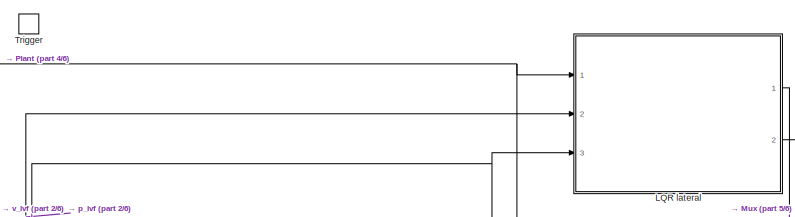
[diagram: Fixed wing avionics/Command laws/Control laws/Trajectory law - 2/Leader following laws/Non-nested laws - part 1/6, top center region]
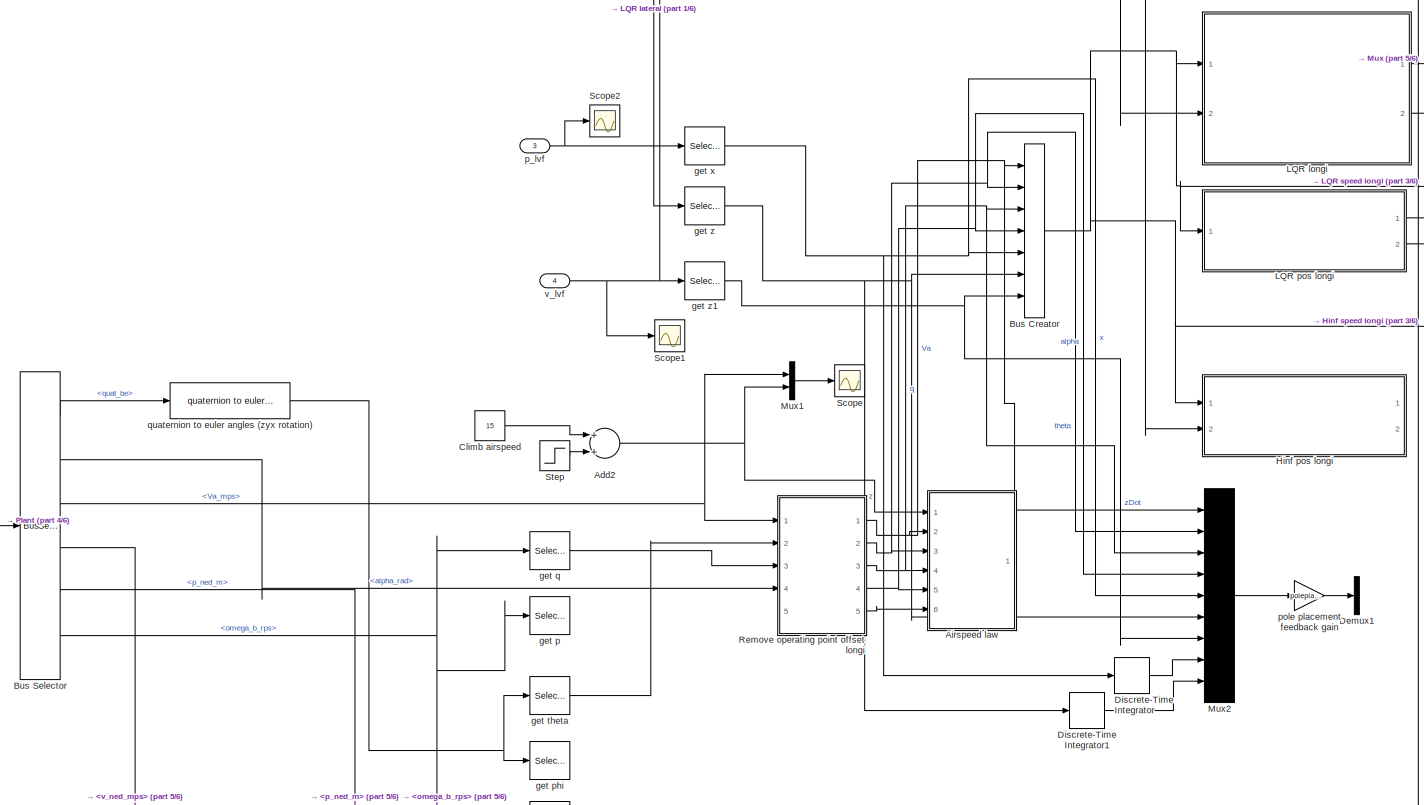
[diagram: Fixed wing avionics/Command laws/Control laws/Trajectory law - 2/Leader following laws/Non-nested laws - part 2/6, central region]
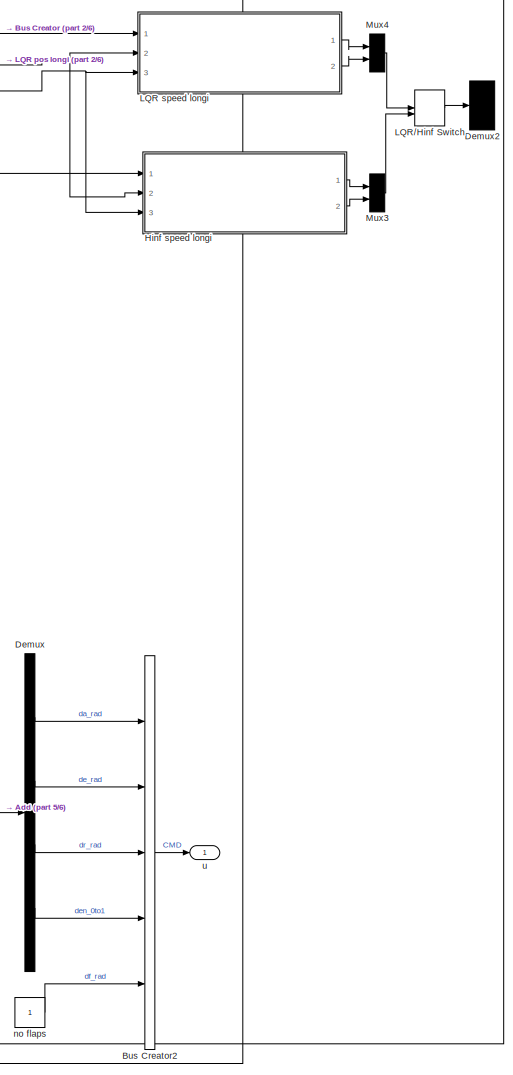
[diagram: Fixed wing avionics/Command laws/Control laws/Trajectory law - 2/Leader following laws/Non-nested laws - part 3/6, middle right region]
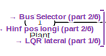
[diagram: Fixed wing avionics/Command laws/Control laws/Trajectory law - 2/Leader following laws/Non-nested laws - part 4/6, middle left region]
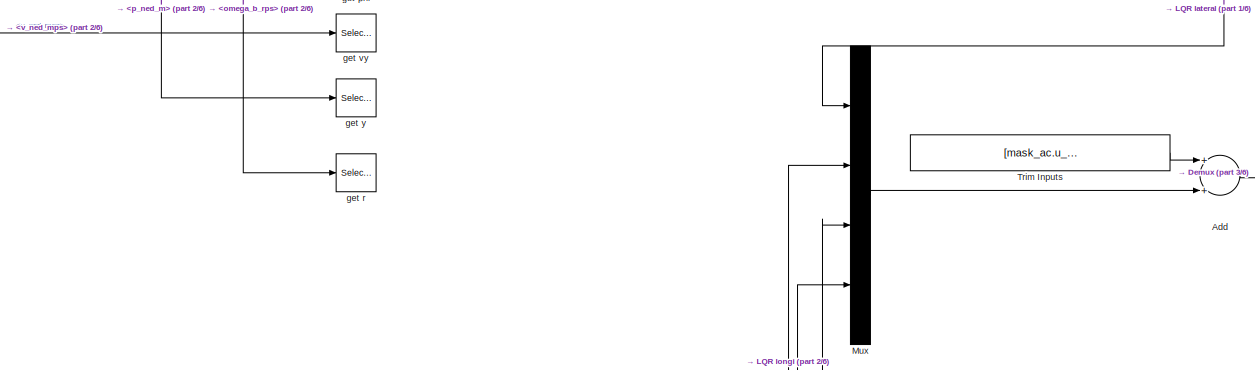
[diagram: Fixed wing avionics/Command laws/Control laws/Trajectory law - 2/Leader following laws/Non-nested laws - part 5/6, bottom center region]
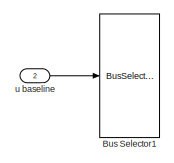
[diagram: Fixed wing avionics/Command laws/Control laws/Trajectory law - 2/Leader following laws/Non-nested laws - part 6/6, bottom left region]
BLOCK [SubSystem] Fixed wing avionics/Command laws/Control laws/Trajectory law - 2/Leader following laws/Non-nested laws
  Commented = on
  Ports = [4, 1, 0, 1]
  RequestExecContextInheritance = off
  SystemSampleTime = uavsim.ap.hardware.dt_attitudeloops_s
  Variant = off
BLOCK [Sum] Fixed wing avionics/Command laws/Control laws/Trajectory law - 2/Leader following laws/Non-nested laws/Add
  InputSameDT = off
  OutDataTypeStr = Inherit: Inherit via internal rule
  Ports = [2, 1]
  SaturateOnIntegerOverflow = off
BLOCK [Sum] Fixed wing avionics/Command laws/Control laws/Trajectory law - 2/Leader following laws/Non-nested laws/Add2
  InputSameDT = off
  OutDataTypeStr = Inherit: Inherit via internal rule
  Ports = [2, 1]
  SaturateOnIntegerOverflow = off
BLOCK [SubSystem] Fixed wing avionics/Command laws/Control laws/Trajectory law - 2/Leader following laws/Non-nested laws/Airspeed law
  Commented = on
  Ports = [6, 1]
  RequestExecContextInheritance = off
  Variant = off
BLOCK [Sum] Fixed wing avionics/Command laws/Control laws/Trajectory law - 2/Leader following laws/Non-nested laws/Airspeed law/Add1
  InputSameDT = off
  Inputs = -+
  OutDataTypeStr = Inherit: Inherit via internal rule
  Ports = [2, 1]
  SaturateOnIntegerOverflow = off
BLOCK [Sum] Fixed wing avionics/Command laws/Control laws/Trajectory law - 2/Leader following laws/Non-nested laws/Airspeed law/Add2
  InputSameDT = off
  OutDataTypeStr = Inherit: Inherit via internal rule
  Ports = [2, 1]
  SaturateOnIntegerOverflow = off
BLOCK [DiscreteIntegrator] Fixed wing avionics/Command laws/Control laws/Trajectory law - 2/Leader following laws/Non-nested laws/Airspeed law/Discrete-Time Integrator
  ICPrevOutput = DiscIntNeverNeededParam
  ICPrevScaledInput = DiscIntNeverNeededParam
  Ports = [1, 1]
  SampleTime = -1
BLOCK [Gain] Fixed wing avionics/Command laws/Control laws/Trajectory law - 2/Leader following laws/Non-nested laws/Airspeed law/K_airspeed
  Gain = uavsim.ap.control.Hinf.Va.K_airspeed
  Multiplication = Matrix(K*u)
  OutDataTypeStr = Inherit: Inherit via internal rule
  ParamDataTypeStr = Inherit: Inherit via internal rule
  SaturateOnIntegerOverflow = off
BLOCK [Gain] Fixed wing avionics/Command laws/Control laws/Trajectory law - 2/Leader following laws/Non-nested laws/Airspeed law/K_throttle
  Gain = uavsim.ap.control.Hinf.Va.K_throttle
  Multiplication = Matrix(K*u)
  OutDataTypeStr = Inherit: Inherit via internal rule
  ParamDataTypeStr = Inherit: Inherit via internal rule
  SaturateOnIntegerOverflow = off
BLOCK [Mux] Fixed wing avionics/Command laws/Control laws/Trajectory law - 2/Leader following laws/Non-nested laws/Airspeed law/Mux1
  DisplayOption = bar
  Inputs = 5
  Ports = [5, 1]
BLOCK [Inport] Fixed wing avionics/Command laws/Control laws/Trajectory law - 2/Leader following laws/Non-nested laws/Airspeed law/Va
  IconDisplay = Port number
  Port = 2
  PortDimensions = 1
BLOCK [Inport] Fixed wing avionics/Command laws/Control laws/Trajectory law - 2/Leader following laws/Non-nested laws/Airspeed law/Va_c
  IconDisplay = Port number
  PortDimensions = 1
BLOCK [Inport] Fixed wing avionics/Command laws/Control laws/Trajectory law - 2/Leader following laws/Non-nested laws/Airspeed law/alpha
  IconDisplay = Port number
  Port = 5
  PortDimensions = 1
BLOCK [Outport] Fixed wing avionics/Command laws/Control laws/Trajectory law - 2/Leader following laws/Non-nested laws/Airspeed law/de
  IconDisplay = Port number
BLOCK [Inport] Fixed wing avionics/Command laws/Control laws/Trajectory law - 2/Leader following laws/Non-nested laws/Airspeed law/den
  IconDisplay = Port number
  Port = 6
  PortDimensions = 1
BLOCK [Inport] Fixed wing avionics/Command laws/Control laws/Trajectory law - 2/Leader following laws/Non-nested laws/Airspeed law/q
  IconDisplay = Port number
  Port = 4
  PortDimensions = 1
BLOCK [Inport] Fixed wing avionics/Command laws/Control laws/Trajectory law - 2/Leader following laws/Non-nested laws/Airspeed law/theta
  IconDisplay = Port number
  Port = 3
  PortDimensions = 1
BLOCK [BusCreator] Fixed wing avionics/Command laws/Control laws/Trajectory law - 2/Leader following laws/Non-nested laws/Bus Creator
  DisplayOption = bar
  InheritFromInputs = on
  Inputs = 'Va','theta','q','alpha','x','z','zDot'
  Ports = [7, 1]
BLOCK [BusCreator] Fixed wing avionics/Command laws/Control laws/Trajectory law - 2/Leader following laws/Non-nested laws/Bus Creator2
  DisplayOption = bar
  InheritFromInputs = on
  Inputs = 5
  NonVirtualBus = on
  OutDataTypeStr = Bus: CMD
  Ports = [5, 1]
BLOCK [BusSelector] Fixed wing avionics/Command laws/Control laws/Trajectory law - 2/Leader following laws/Non-nested laws/Bus Selector
  OutputSignals = quat_be,alpha_rad,Va_mps,v_ned_mps,p_ned_m,omega_b_rps
  Ports = [1, 6]
BLOCK [BusSelector] Fixed wing avionics/Command laws/Control laws/Trajectory law - 2/Leader following laws/Non-nested laws/Bus Selector1
  OutputSignals = da_rad,de_rad,den_0to1
  Ports = [1, 3]
BLOCK [Constant] Fixed wing avionics/Command laws/Control laws/Trajectory law - 2/Leader following laws/Non-nested laws/Climb airspeed
  Value = 15
BLOCK [Demux] Fixed wing avionics/Command laws/Control laws/Trajectory law - 2/Leader following laws/Non-nested laws/Demux
  DisplayOption = bar
  Ports = [1, 4]
BLOCK [Demux] Fixed wing avionics/Command laws/Control laws/Trajectory law - 2/Leader following laws/Non-nested laws/Demux1
  DisplayOption = bar
  Outputs = 2
  Ports = [1, 2]
BLOCK [Demux] Fixed wing avionics/Command laws/Control laws/Trajectory law - 2/Leader following laws/Non-nested laws/Demux2
  DisplayOption = bar
  Outputs = 2
  Ports = [1, 2]
BLOCK [DiscreteIntegrator] Fixed wing avionics/Command laws/Control laws/Trajectory law - 2/Leader following laws/Non-nested laws/Discrete-Time Integrator
  ICPrevOutput = DiscIntNeverNeededParam
  ICPrevScaledInput = DiscIntNeverNeededParam
  InitialConditionSetting = State (most efficient)
  Ports = [1, 1]
  SampleTime = -1
BLOCK [DiscreteIntegrator] Fixed wing avionics/Command laws/Control laws/Trajectory law - 2/Leader following laws/Non-nested laws/Discrete-Time Integrator1
  ICPrevOutput = DiscIntNeverNeededParam
  ICPrevScaledInput = DiscIntNeverNeededParam
  InitialConditionSetting = State (most efficient)
  Ports = [1, 1]
  SampleTime = -1
BLOCK [SubSystem] Fixed wing avionics/Command laws/Control laws/Trajectory law - 2/Leader following laws/Non-nested laws/Hinf pos longi
  Commented = on
  Ports = [2, 2]
  RequestExecContextInheritance = off
  Variant = off
BLOCK [BusSelector] Fixed wing avionics/Command laws/Control laws/Trajectory law - 2/Leader following laws/Non-nested laws/Hinf pos longi/Bus Selector
  OutputSignals = x,z
  Ports = [1, 2]
BLOCK [BusSelector] Fixed wing avionics/Command laws/Control laws/Trajectory law - 2/Leader following laws/Non-nested laws/Hinf pos longi/Bus Selector1
  OutputSignals = v_ned_mps
  Ports = [1, 1]
BLOCK [DiscreteIntegrator] Fixed wing avionics/Command laws/Control laws/Trajectory law - 2/Leader following laws/Non-nested laws/Hinf pos longi/Discrete-Time Integrator1
  ICPrevOutput = DiscIntNeverNeededParam
  ICPrevScaledInput = DiscIntNeverNeededParam
  InitialConditionSetting = State (most efficient)
  Ports = [1, 1]
  SampleTime = -1
BLOCK [Gain] Fixed wing avionics/Command laws/Control laws/Trajectory law - 2/Leader following laws/Non-nested laws/Hinf pos longi/Gain
  OutDataTypeStr = Inherit: Inherit via internal rule
  ParamDataTypeStr = Inherit: Inherit via internal rule
  SaturateOnIntegerOverflow = off
BLOCK [Gain] Fixed wing avionics/Command laws/Control laws/Trajectory law - 2/Leader following laws/Non-nested laws/Hinf pos longi/K_pos_x
  Gain = hinf.longi.K_pos_x
  Multiplication = Matrix(K*u)
  OutDataTypeStr = Inherit: Inherit via internal rule
  ParamDataTypeStr = Inherit: Inherit via internal rule
  SaturateOnIntegerOverflow = off
BLOCK [Gain] Fixed wing avionics/Command laws/Control laws/Trajectory law - 2/Leader following laws/Non-nested laws/Hinf pos longi/K_pos_z
  Gain = hinf.longi.K_pos_z
  Multiplication = Matrix(K*u)
  OutDataTypeStr = Inherit: Inherit via internal rule
  ParamDataTypeStr = Inherit: Inherit via internal rule
  SaturateOnIntegerOverflow = off
BLOCK [Mux] Fixed wing avionics/Command laws/Control laws/Trajectory law - 2/Leader following laws/Non-nested laws/Hinf pos longi/Mux2
  DisplayOption = bar
  Inputs = 2
  Ports = [2, 1]
BLOCK [Mux] Fixed wing avionics/Command laws/Control laws/Trajectory law - 2/Leader following laws/Non-nested laws/Hinf pos longi/Mux4
  DisplayOption = bar
  Inputs = 2
  Ports = [2, 1]
BLOCK [Mux] Fixed wing avionics/Command laws/Control laws/Trajectory law - 2/Leader following laws/Non-nested laws/Hinf pos longi/Mux5
  DisplayOption = bar
  Inputs = 2
  Ports = [2, 1]
BLOCK [Inport] Fixed wing avionics/Command laws/Control laws/Trajectory law - 2/Leader following laws/Non-nested laws/Hinf pos longi/Plant
  IconDisplay = Port number
  OutDataTypeStr = Bus: StateBus
  Port = 2
BLOCK [Scope] Fixed wing avionics/Command laws/Control laws/Trajectory law - 2/Leader following laws/Non-nested laws/Hinf pos longi/Scope7
  NumInputPorts = 1
  Ports = [1]
  ScopeSpecificationString = C++SS(StrPVP('Location','[1, 50, 1921, 1047]'),StrPVP('Open','off'),MxPVP('AxesTitles',24,'struct(''axes1'',''%<SignalLabel>'')'),MxPVP('ScopeGraphics',28,'struct(''FigureColor'',''[0.5 0.5 0.5]'',''AxesColor'',''[0 0 0]'',''AxesTickColor'',''[1 1 1]'',''LineColors'',''[1 1 0;1 0 1;0 1 1;1 0 0;0 1 0;0 0 1]'',''LineStyles'',''-|-|-|-|-|-'',''LineWidths'',''[0.5 0.5 0.5 0.5 0.5 0.5]'',''MarkerStyles...<+251ch>
BLOCK [Selector] Fixed wing avionics/Command laws/Control laws/Trajectory law - 2/Leader following laws/Non-nested laws/Hinf pos longi/Selector
  IndexOptions = Index vector (dialog)
  Indices = 3
  InputPortWidth = 3
  OutputSizes = 1
  Ports = [1, 1]
BLOCK [Selector] Fixed wing avionics/Command laws/Control laws/Trajectory law - 2/Leader following laws/Non-nested laws/Hinf pos longi/Selector1
  IndexOptions = Index vector (dialog)
  Indices = [1 3]
  InputPortWidth = 4
  OutputSizes = 1
  Ports = [1, 1]
BLOCK [Selector] Fixed wing avionics/Command laws/Control laws/Trajectory law - 2/Leader following laws/Non-nested laws/Hinf pos longi/Selector2
  IndexOptions = Index vector (dialog)
  Indices = [2 4]
  InputPortWidth = 4
  OutputSizes = 1
  Ports = [1, 1]
BLOCK [Step] Fixed wing avionics/Command laws/Control laws/Trajectory law - 2/Leader following laws/Non-nested laws/Hinf pos longi/Step
  Time = 10
BLOCK [Outport] Fixed wing avionics/Command laws/Control laws/Trajectory law - 2/Leader following laws/Non-nested laws/Hinf pos longi/Va_c
  IconDisplay = Port number
BLOCK [Outport] Fixed wing avionics/Command laws/Control laws/Trajectory law - 2/Leader following laws/Non-nested laws/Hinf pos longi/vz_c
  IconDisplay = Port number
  Port = 2
BLOCK [Inport] Fixed wing avionics/Command laws/Control laws/Trajectory law - 2/Leader following laws/Non-nested laws/Hinf pos longi/y_ac
  IconDisplay = Port number
BLOCK [SubSystem] Fixed wing avionics/Command laws/Control laws/Trajectory law - 2/Leader following laws/Non-nested laws/Hinf speed longi
  Commented = on
  Ports = [3, 2]
  RequestExecContextInheritance = off
  Variant = off
BLOCK [Sum] Fixed wing avionics/Command laws/Control laws/Trajectory law - 2/Leader following laws/Non-nested laws/Hinf speed longi/Add2
  InputSameDT = off
  Inputs = -+
  OutDataTypeStr = Inherit: Inherit via internal rule
  Ports = [2, 1]
  SaturateOnIntegerOverflow = off
BLOCK [BusSelector] Fixed wing avionics/Command laws/Control laws/Trajectory law - 2/Leader following laws/Non-nested laws/Hinf speed longi/Bus Selector
  OutputSignals = Va,zDot,alpha,q,theta
  Ports = [1, 5]
BLOCK [Demux] Fixed wing avionics/Command laws/Control laws/Trajectory law - 2/Leader following laws/Non-nested laws/Hinf speed longi/Demux
  DisplayOption = bar
  Outputs = 2
  Ports = [1, 2]
BLOCK [Demux] Fixed wing avionics/Command laws/Control laws/Trajectory law - 2/Leader following laws/Non-nested laws/Hinf speed longi/Demux2
  DisplayOption = bar
  Outputs = 2
  Ports = [1, 2]
BLOCK [DiscreteIntegrator] Fixed wing avionics/Command laws/Control laws/Trajectory law - 2/Leader following laws/Non-nested laws/Hinf speed longi/Discrete-Time Integrator
  ICPrevOutput = DiscIntNeverNeededParam
  ICPrevScaledInput = DiscIntNeverNeededParam
  InitialConditionSetting = State (most efficient)
  Ports = [1, 1]
  SampleTime = -1
BLOCK [Gain] Fixed wing avionics/Command laws/Control laws/Trajectory law - 2/Leader following laws/Non-nested laws/Hinf speed longi/K_speed
  Gain = hinf.longi.K_speed
  Multiplication = Matrix(K*u)
  OutDataTypeStr = Inherit: Inherit via internal rule
  ParamDataTypeStr = Inherit: Inherit via internal rule
  SaturateOnIntegerOverflow = off
BLOCK [ManualSwitch] Fixed wing avionics/Command laws/Control laws/Trajectory law - 2/Leader following laws/Non-nested laws/Hinf speed longi/LQR or Hinf?
BLOCK [Mux] Fixed wing avionics/Command laws/Control laws/Trajectory law - 2/Leader following laws/Non-nested laws/Hinf speed longi/Mux
  DisplayOption = bar
  Inputs = 2
  Ports = [2, 1]
BLOCK [Mux] Fixed wing avionics/Command laws/Control laws/Trajectory law - 2/Leader following laws/Non-nested laws/Hinf speed longi/Mux1
  DisplayOption = bar
  Inputs = 2
  Ports = [2, 1]
BLOCK [Mux] Fixed wing avionics/Command laws/Control laws/Trajectory law - 2/Leader following laws/Non-nested laws/Hinf speed longi/Mux2
  DisplayOption = bar
  Inputs = 2
  Ports = [2, 1]
BLOCK [Mux] Fixed wing avionics/Command laws/Control laws/Trajectory law - 2/Leader following laws/Non-nested laws/Hinf speed longi/Mux3
  DisplayOption = bar
  Ports = [4, 1]
BLOCK [Mux] Fixed wing avionics/Command laws/Control laws/Trajectory law - 2/Leader following laws/Non-nested laws/Hinf speed longi/Mux4
  DisplayOption = bar
  Inputs = 2
  Ports = [2, 1]
BLOCK [Scope] Fixed wing avionics/Command laws/Control laws/Trajectory law - 2/Leader following laws/Non-nested laws/Hinf speed longi/Scope
  NumInputPorts = 1
  Ports = [1]
  ScopeSpecificationString = C++SS(StrPVP('Location','[10, 60, 1930, 1057]'),StrPVP('Open','off'),MxPVP('AxesTitles',24,'struct(''axes1'',''%<SignalLabel>'')'),MxPVP('ScopeGraphics',28,'struct(''FigureColor'',''[0.5 0.5 0.5]'',''AxesColor'',''[0 0 0]'',''AxesTickColor'',''[1 1 1]'',''LineColors'',''[1 1 0;1 0 1;0 1 1;1 0 0;0 1 0;0 0 1]'',''LineStyles'',''-|-|-|-|-|-'',''LineWidths'',''[0.5 0.5 0.5 0.5 0.5 0.5]'',''MarkerStyle...<+252ch>  <repeated x5 — deduplicated; at blocks: Scope, Scope1, Scope3, Scope4, Scope6>
BLOCK [Scope] Fixed wing avionics/Command laws/Control laws/Trajectory law - 2/Leader following laws/Non-nested laws/Hinf speed longi/Scope1
  NumInputPorts = 1
  Ports = [1]
BLOCK [Scope] Fixed wing avionics/Command laws/Control laws/Trajectory law - 2/Leader following laws/Non-nested laws/Hinf speed longi/Scope2
  NumInputPorts = 1
  Ports = [1]
  ScopeSpecificationString = C++SS(StrPVP('Location','[246, 357, 570, 596]'),StrPVP('Open','off'),MxPVP('AxesTitles',24,'struct(''axes1'',''%<SignalLabel>'')'),MxPVP('ScopeGraphics',28,'struct(''FigureColor'',''[0.5 0.5 0.5]'',''AxesColor'',''[0 0 0]'',''AxesTickColor'',''[1 1 1]'',''LineColors'',''[1 1 0;1 0 1;0 1 1;1 0 0;0 1 0;0 0 1]'',''LineStyles'',''-|-|-|-|-|-'',''LineWidths'',''[0.5 0.5 0.5 0.5 0.5 0.5]'',''MarkerStyle...<+291ch>
BLOCK [Scope] Fixed wing avionics/Command laws/Control laws/Trajectory law - 2/Leader following laws/Non-nested laws/Hinf speed longi/Scope3
  NumInputPorts = 1
  Ports = [1]
BLOCK [Scope] Fixed wing avionics/Command laws/Control laws/Trajectory law - 2/Leader following laws/Non-nested laws/Hinf speed longi/Scope4
  NumInputPorts = 1
  Ports = [1]
BLOCK [Scope] Fixed wing avionics/Command laws/Control laws/Trajectory law - 2/Leader following laws/Non-nested laws/Hinf speed longi/Scope6
  NumInputPorts = 1
  Ports = [1]
BLOCK [Inport] Fixed wing avionics/Command laws/Control laws/Trajectory law - 2/Leader following laws/Non-nested laws/Hinf speed longi/Va_c
  IconDisplay = Port number
  Port = 2
BLOCK [Outport] Fixed wing avionics/Command laws/Control laws/Trajectory law - 2/Leader following laws/Non-nested laws/Hinf speed longi/de
  IconDisplay = Port number
BLOCK [Outport] Fixed wing avionics/Command laws/Control laws/Trajectory law - 2/Leader following laws/Non-nested laws/Hinf speed longi/den
  IconDisplay = Port number
  Port = 2
BLOCK [Inport] Fixed wing avionics/Command laws/Control laws/Trajectory law - 2/Leader following laws/Non-nested laws/Hinf speed longi/vz_c
  IconDisplay = Port number
  Port = 3
BLOCK [Inport] Fixed wing avionics/Command laws/Control laws/Trajectory law - 2/Leader following laws/Non-nested laws/Hinf speed longi/y_ac
  IconDisplay = Port number
BLOCK [SubSystem] Fixed wing avionics/Command laws/Control laws/Trajectory law - 2/Leader following laws/Non-nested laws/LQR lateral
  Ports = [3, 2]
  RequestExecContextInheritance = off
  Variant = off
BLOCK [Sum] Fixed wing avionics/Command laws/Control laws/Trajectory law - 2/Leader following laws/Non-nested laws/LQR lateral/Add3
  InputSameDT = off
  Inputs = -+
  OutDataTypeStr = Inherit: Inherit via internal rule
  Ports = [2, 1]
  SaturateOnIntegerOverflow = off
BLOCK [BusSelector] Fixed wing avionics/Command laws/Control laws/Trajectory law - 2/Leader following laws/Non-nested laws/LQR lateral/Bus Selector1
  OutputSignals = beta_rad,omega_b_rps,quat_be
  Ports = [1, 3]
BLOCK [Demux] Fixed wing avionics/Command laws/Control laws/Trajectory law - 2/Leader following laws/Non-nested laws/LQR lateral/Demux
  DisplayOption = bar
  Outputs = 2
  Ports = [1, 2]
BLOCK [DiscreteIntegrator] Fixed wing avionics/Command laws/Control laws/Trajectory law - 2/Leader following laws/Non-nested laws/LQR lateral/Discrete-Time Integrator
  ICPrevOutput = DiscIntNeverNeededParam
  ICPrevScaledInput = DiscIntNeverNeededParam
  InitialConditionSetting = State (most efficient)
  Ports = [1, 1]
  SampleTime = -1
BLOCK [Gain] Fixed wing avionics/Command laws/Control laws/Trajectory law - 2/Leader following laws/Non-nested laws/LQR lateral/K LQR
  Gain = uavsim.ap.control.lquadr.lateral.klqr
  Multiplication = Matrix(K*u)
  OutDataTypeStr = Inherit: Inherit via internal rule
  ParamDataTypeStr = Inherit: Inherit via internal rule
  SaturateOnIntegerOverflow = off
BLOCK [Mux] Fixed wing avionics/Command laws/Control laws/Trajectory law - 2/Leader following laws/Non-nested laws/LQR lateral/Mux
  DisplayOption = bar
  Inputs = 6
  Ports = [6, 1]
BLOCK [Inport] Fixed wing avionics/Command laws/Control laws/Trajectory law - 2/Leader following laws/Non-nested laws/LQR lateral/Plant
  IconDisplay = Port number
  OutDataTypeStr = Bus: StateBus
BLOCK [Outport] Fixed wing avionics/Command laws/Control laws/Trajectory law - 2/Leader following laws/Non-nested laws/LQR lateral/da
  IconDisplay = Port number
BLOCK [Outport] Fixed wing avionics/Command laws/Control laws/Trajectory law - 2/Leader following laws/Non-nested laws/LQR lateral/dr
  IconDisplay = Port number
  Port = 2
BLOCK [Selector] Fixed wing avionics/Command laws/Control laws/Trajectory law - 2/Leader following laws/Non-nested laws/LQR lateral/get p, r
  IndexOptions = Index vector (dialog)
  Indices = [1 3]
  InputPortWidth = 3
  OutputSizes = 1
  Ports = [1, 1]
BLOCK [Selector] Fixed wing avionics/Command laws/Control laws/Trajectory law - 2/Leader following laws/Non-nested laws/LQR lateral/get phi
  IndexOptions = Index vector (dialog)
  Indices = 3
  InputPortWidth = 3
  OutputSizes = 1
  Ports = [1, 1]
BLOCK [Selector] Fixed wing avionics/Command laws/Control laws/Trajectory law - 2/Leader following laws/Non-nested laws/LQR lateral/get vy
  IndexOptions = Index vector (dialog)
  Indices = 2
  InputPortWidth = 3
  OutputSizes = 1
  Ports = [1, 1]
BLOCK [Selector] Fixed wing avionics/Command laws/Control laws/Trajectory law - 2/Leader following laws/Non-nested laws/LQR lateral/get y
  IndexOptions = Index vector (dialog)
  Indices = 2
  InputPortWidth = 3
  OutputSizes = 1
  Ports = [1, 1]
BLOCK [Inport] Fixed wing avionics/Command laws/Control laws/Trajectory law - 2/Leader following laws/Non-nested laws/LQR lateral/p_lvf
  IconDisplay = Port number
  Port = 2
BLOCK [Reference] Fixed wing avionics/Command laws/Control laws/Trajectory law - 2/Leader following laws/Non-nested laws/LQR lateral/quaternion to euler angles (zyx rotation)  REF=formationFlyingBlockset/quaternion to euler 
angles (zyx rotation)
  Ports = [1, 1]
  SourceBlock = formationFlyingBlockset/quaternion to euler \nangles (zyx rotation)
  SourceType = SubSystem
BLOCK [Constant] Fixed wing avionics/Command laws/Control laws/Trajectory law - 2/Leader following laws/Non-nested laws/LQR lateral/trim -1
  Value = mask_ac.beta_trim
BLOCK [Inport] Fixed wing avionics/Command laws/Control laws/Trajectory law - 2/Leader following laws/Non-nested laws/LQR lateral/v_lvf
  IconDisplay = Port number
  Port = 3
BLOCK [SubSystem] Fixed wing avionics/Command laws/Control laws/Trajectory law - 2/Leader following laws/Non-nested laws/LQR longi
  Ports = [2, 2]
  RequestExecContextInheritance = off
  Variant = off
BLOCK [BusSelector] Fixed wing avionics/Command laws/Control laws/Trajectory law - 2/Leader following laws/Non-nested laws/LQR longi/Bus Selector
  OutputSignals = Va,theta,q,alpha,x,z
  Ports = [1, 6]
BLOCK [Demux] Fixed wing avionics/Command laws/Control laws/Trajectory law - 2/Leader following laws/Non-nested laws/LQR longi/Demux
  DisplayOption = bar
  Outputs = 2
  Ports = [1, 2]
BLOCK [DiscreteIntegrator] Fixed wing avionics/Command laws/Control laws/Trajectory law - 2/Leader following laws/Non-nested laws/LQR longi/Discrete-Time Integrator
  ICPrevOutput = DiscIntNeverNeededParam
  ICPrevScaledInput = DiscIntNeverNeededParam
  InitialConditionSetting = State (most efficient)
  Ports = [1, 1]
  SampleTime = -1
BLOCK [DiscreteIntegrator] Fixed wing avionics/Command laws/Control laws/Trajectory law - 2/Leader following laws/Non-nested laws/LQR longi/Discrete-Time Integrator1
  ICPrevOutput = DiscIntNeverNeededParam
  ICPrevScaledInput = DiscIntNeverNeededParam
  InitialConditionSetting = State (most efficient)
  Ports = [1, 1]
  SampleTime = -1
BLOCK [Gain] Fixed wing avionics/Command laws/Control laws/Trajectory law - 2/Leader following laws/Non-nested laws/LQR longi/K LQR
  Gain = uavsim.ap.control.lquadr.longi.klqr
  Multiplication = Matrix(K*u)
  OutDataTypeStr = Inherit: Inherit via internal rule
  ParamDataTypeStr = Inherit: Inherit via internal rule
  SaturateOnIntegerOverflow = off
BLOCK [Mux] Fixed wing avionics/Command laws/Control laws/Trajectory law - 2/Leader following laws/Non-nested laws/LQR longi/Mux
  DisplayOption = bar
  Inputs = 8
  Ports = [8, 1]
BLOCK [Scope] Fixed wing avionics/Command laws/Control laws/Trajectory law - 2/Leader following laws/Non-nested laws/LQR longi/Scope
  NumInputPorts = 1
  Ports = [1]
  ScopeSpecificationString = C++SS(StrPVP('Location','[188, 365, 512, 604]'),StrPVP('Open','off'),MxPVP('AxesTitles',24,'struct(''axes1'',''%<SignalLabel>'')'),StrPVP('ShowLegends','off'),StrPVP('SaveName','ScopeData1'),StrPVP('ScrollMode','off'),StrPVP('LimitDataPoints','on'),StrPVP('DataFormat','Array'),StrPVP('Decimation','1'),StrPVP('BlockParamSampleInput','off'))
BLOCK [Outport] Fixed wing avionics/Command laws/Control laws/Trajectory law - 2/Leader following laws/Non-nested laws/LQR longi/de
  IconDisplay = Port number
BLOCK [Outport] Fixed wing avionics/Command laws/Control laws/Trajectory law - 2/Leader following laws/Non-nested laws/LQR longi/den
  IconDisplay = Port number
  Port = 2
BLOCK [Selector] Fixed wing avionics/Command laws/Control laws/Trajectory law - 2/Leader following laws/Non-nested laws/LQR longi/get vz
  IndexOptions = Index vector (dialog)
  Indices = 3
  InputPortWidth = 3
  OutputSizes = 1
  Ports = [1, 1]
BLOCK [Inport] Fixed wing avionics/Command laws/Control laws/Trajectory law - 2/Leader following laws/Non-nested laws/LQR longi/v_lvf
  IconDisplay = Port number
  Port = 2
BLOCK [Inport] Fixed wing avionics/Command laws/Control laws/Trajectory law - 2/Leader following laws/Non-nested laws/LQR longi/y_ac
  IconDisplay = Port number
BLOCK [SubSystem] Fixed wing avionics/Command laws/Control laws/Trajectory law - 2/Leader following laws/Non-nested laws/LQR pos longi
  Commented = on
  Ports = [1, 2]
  RequestExecContextInheritance = off
  Variant = off
BLOCK [BusSelector] Fixed wing avionics/Command laws/Control laws/Trajectory law - 2/Leader following laws/Non-nested laws/LQR pos longi/Bus Selector
  OutputSignals = x,z,Va,zDot
  Ports = [1, 4]
BLOCK [Demux] Fixed wing avionics/Command laws/Control laws/Trajectory law - 2/Leader following laws/Non-nested laws/LQR pos longi/Demux
  DisplayOption = bar
  Outputs = 2
  Ports = [1, 2]
BLOCK [DiscreteIntegrator] Fixed wing avionics/Command laws/Control laws/Trajectory law - 2/Leader following laws/Non-nested laws/LQR pos longi/Discrete-Time Integrator
  ICPrevOutput = DiscIntNeverNeededParam
  ICPrevScaledInput = DiscIntNeverNeededParam
  InitialConditionSetting = State (most efficient)
  Ports = [1, 1]
  SampleTime = -1
BLOCK [DiscreteIntegrator] Fixed wing avionics/Command laws/Control laws/Trajectory law - 2/Leader following laws/Non-nested laws/LQR pos longi/Discrete-Time Integrator1
  ICPrevOutput = DiscIntNeverNeededParam
  ICPrevScaledInput = DiscIntNeverNeededParam
  InitialConditionSetting = State (most efficient)
  Ports = [1, 1]
  SampleTime = -1
BLOCK [Gain] Fixed wing avionics/Command laws/Control laws/Trajectory law - 2/Leader following laws/Non-nested laws/LQR pos longi/K LQR
  Gain = mpc.longi.klqr_pos
  Multiplication = Matrix(K*u)
  OutDataTypeStr = Inherit: Inherit via internal rule
  ParamDataTypeStr = Inherit: Inherit via internal rule
  SaturateOnIntegerOverflow = off
BLOCK [Mux] Fixed wing avionics/Command laws/Control laws/Trajectory law - 2/Leader following laws/Non-nested laws/LQR pos longi/Mux2
  DisplayOption = bar
  Inputs = 6
  Ports = [6, 1]
BLOCK [Outport] Fixed wing avionics/Command laws/Control laws/Trajectory law - 2/Leader following laws/Non-nested laws/LQR pos longi/Va_c
  IconDisplay = Port number
BLOCK [Outport] Fixed wing avionics/Command laws/Control laws/Trajectory law - 2/Leader following laws/Non-nested laws/LQR pos longi/vz_c
  IconDisplay = Port number
  Port = 2
BLOCK [Inport] Fixed wing avionics/Command laws/Control laws/Trajectory law - 2/Leader following laws/Non-nested laws/LQR pos longi/y_ac
  IconDisplay = Port number
BLOCK [SubSystem] Fixed wing avionics/Command laws/Control laws/Trajectory law - 2/Leader following laws/Non-nested laws/LQR speed longi
  Commented = on
  Ports = [3, 2]
  RequestExecContextInheritance = off
  Variant = off
BLOCK [Sum] Fixed wing avionics/Command laws/Control laws/Trajectory law - 2/Leader following laws/Non-nested laws/LQR speed longi/Add
  InputSameDT = off
  Inputs = +-
  OutDataTypeStr = Inherit: Inherit via internal rule
  Ports = [2, 1]
  SaturateOnIntegerOverflow = off
BLOCK [BusSelector] Fixed wing avionics/Command laws/Control laws/Trajectory law - 2/Leader following laws/Non-nested laws/LQR speed longi/Bus Selector
  OutputSignals = Va,zDot,theta,q
  Ports = [1, 4]
BLOCK [Demux] Fixed wing avionics/Command laws/Control laws/Trajectory law - 2/Leader following laws/Non-nested laws/LQR speed longi/Demux2
  DisplayOption = bar
  Outputs = 2
  Ports = [1, 2]
BLOCK [Gain] Fixed wing avionics/Command laws/Control laws/Trajectory law - 2/Leader following laws/Non-nested laws/LQR speed longi/K_speed
  Gain = mpc.longi.klqr_speed
  Multiplication = Matrix(K*u)
  OutDataTypeStr = Inherit: Inherit via internal rule
  ParamDataTypeStr = Inherit: Inherit via internal rule
  SaturateOnIntegerOverflow = off
BLOCK [Mux] Fixed wing avionics/Command laws/Control laws/Trajectory law - 2/Leader following laws/Non-nested laws/LQR speed longi/Mux2
  DisplayOption = bar
  Ports = [4, 1]
BLOCK [Mux] Fixed wing avionics/Command laws/Control laws/Trajectory law - 2/Leader following laws/Non-nested laws/LQR speed longi/Mux3
  DisplayOption = bar
  Ports = [4, 1]
BLOCK [Scope] Fixed wing avionics/Command laws/Control laws/Trajectory law - 2/Leader following laws/Non-nested laws/LQR speed longi/Scope
  NumInputPorts = 1
  Ports = [1]
  ScopeSpecificationString = C++SS(StrPVP('Location','[10, 60, 1930, 1177]'),StrPVP('Open','off'),MxPVP('AxesTitles',24,'struct(''axes1'',''%<SignalLabel>'')'),MxPVP('ScopeGraphics',28,'struct(''FigureColor'',''[0.5 0.5 0.5]'',''AxesColor'',''[0 0 0]'',''AxesTickColor'',''[1 1 1]'',''LineColors'',''[1 1 0;1 0 1;0 1 1;1 0 0;0 1 0;0 0 1]'',''LineStyles'',''-|-|-|-|-|-'',''LineWidths'',''[0.5 0.5 0.5 0.5 0.5 0.5]'',''MarkerStyle...<+252ch>
BLOCK [Inport] Fixed wing avionics/Command laws/Control laws/Trajectory law - 2/Leader following laws/Non-nested laws/LQR speed longi/Va_c
  IconDisplay = Port number
  Port = 2
BLOCK [Outport] Fixed wing avionics/Command laws/Control laws/Trajectory law - 2/Leader following laws/Non-nested laws/LQR speed longi/de
  IconDisplay = Port number
BLOCK [Outport] Fixed wing avionics/Command laws/Control laws/Trajectory law - 2/Leader following laws/Non-nested laws/LQR speed longi/den
  IconDisplay = Port number
  Port = 2
BLOCK [Ground] Fixed wing avionics/Command laws/Control laws/Trajectory law - 2/Leader following laws/Non-nested laws/LQR speed longi/nix
BLOCK [Inport] Fixed wing avionics/Command laws/Control laws/Trajectory law - 2/Leader following laws/Non-nested laws/LQR speed longi/vz_c
  IconDisplay = Port number
  Port = 3
BLOCK [Inport] Fixed wing avionics/Command laws/Control laws/Trajectory law - 2/Leader following laws/Non-nested laws/LQR speed longi/y_ac
  IconDisplay = Port number
BLOCK [ManualSwitch] Fixed wing avionics/Command laws/Control laws/Trajectory law - 2/Leader following laws/Non-nested laws/LQR//Hinf Switch
BLOCK [Mux] Fixed wing avionics/Command laws/Control laws/Trajectory law - 2/Leader following laws/Non-nested laws/Mux
  DisplayOption = bar
  Ports = [4, 1]
BLOCK [Mux] Fixed wing avionics/Command laws/Control laws/Trajectory law - 2/Leader following laws/Non-nested laws/Mux1
  DisplayOption = bar
  Inputs = 2
  Ports = [2, 1]
BLOCK [Mux] Fixed wing avionics/Command laws/Control laws/Trajectory law - 2/Leader following laws/Non-nested laws/Mux2
  DisplayOption = bar
  Inputs = 9
  Ports = [9, 1]
BLOCK [Mux] Fixed wing avionics/Command laws/Control laws/Trajectory law - 2/Leader following laws/Non-nested laws/Mux3
  DisplayOption = bar
  Inputs = 2
  Ports = [2, 1]
BLOCK [Mux] Fixed wing avionics/Command laws/Control laws/Trajectory law - 2/Leader following laws/Non-nested laws/Mux4
  DisplayOption = bar
  Inputs = 2
  Ports = [2, 1]
BLOCK [Inport] Fixed wing avionics/Command laws/Control laws/Trajectory law - 2/Leader following laws/Non-nested laws/Plant
  IconDisplay = Port number
  OutDataTypeStr = Bus: StateBus
BLOCK [SubSystem] Fixed wing avionics/Command laws/Control laws/Trajectory law - 2/Leader following laws/Non-nested laws/Remove operating point offset longi
  Ports = [5, 5]
  RequestExecContextInheritance = off
  Variant = off
BLOCK [Constant] Fixed wing avionics/Command laws/Control laws/Trajectory law - 2/Leader following laws/Non-nested laws/Remove operating point offset longi/-
  Value = mask_ac.u_trim(4)
BLOCK [Sum] Fixed wing avionics/Command laws/Control laws/Trajectory law - 2/Leader following laws/Non-nested laws/Remove operating point offset longi/Add
  InputSameDT = off
  Inputs = -+
  OutDataTypeStr = Inherit: Inherit via internal rule
  Ports = [2, 1]
  SaturateOnIntegerOverflow = off
BLOCK [Sum] Fixed wing avionics/Command laws/Control laws/Trajectory law - 2/Leader following laws/Non-nested laws/Remove operating point offset longi/Add1
  InputSameDT = off
  Inputs = -+
  OutDataTypeStr = Inherit: Inherit via internal rule
  Ports = [2, 1]
  SaturateOnIntegerOverflow = off
BLOCK [Sum] Fixed wing avionics/Command laws/Control laws/Trajectory law - 2/Leader following laws/Non-nested laws/Remove operating point offset longi/Add2
  InputSameDT = off
  Inputs = -+
  OutDataTypeStr = Inherit: Inherit via internal rule
  Ports = [2, 1]
  SaturateOnIntegerOverflow = off
BLOCK [Sum] Fixed wing avionics/Command laws/Control laws/Trajectory law - 2/Leader following laws/Non-nested laws/Remove operating point offset longi/Add3
  InputSameDT = off
  Inputs = -+
  OutDataTypeStr = Inherit: Inherit via internal rule
  Ports = [2, 1]
  SaturateOnIntegerOverflow = off
BLOCK [Scope] Fixed wing avionics/Command laws/Control laws/Trajectory law - 2/Leader following laws/Non-nested laws/Remove operating point offset longi/Scope
  NumInputPorts = 1
  Ports = [1]
  ScopeSpecificationString = C++SS(StrPVP('Location','[188, 390, 512, 629]'),StrPVP('Open','off'),MxPVP('AxesTitles',24,'struct(''axes1'',''%<SignalLabel>'')'),MxPVP('ScopeGraphics',28,'struct(''FigureColor'',''[0.5 0.5 0.5]'',''AxesColor'',''[0 0 0]'',''AxesTickColor'',''[1 1 1]'',''LineColors'',''[1 1 0;1 0 1;0 1 1;1 0 0;0 1 0;0 0 1]'',''LineStyles'',''-|-|-|-|-|-'',''LineWidths'',''[0.5 0.5 0.5 0.5 0.5 0.5]'',''MarkerStyle...<+299ch>
BLOCK [Inport] Fixed wing avionics/Command laws/Control laws/Trajectory law - 2/Leader following laws/Non-nested laws/Remove operating point offset longi/Va
  IconDisplay = Port number
  PortDimensions = 1
BLOCK [Outport] Fixed wing avionics/Command laws/Control laws/Trajectory law - 2/Leader following laws/Non-nested laws/Remove operating point offset longi/Va_lin
  IconDisplay = Port number
BLOCK [Inport] Fixed wing avionics/Command laws/Control laws/Trajectory law - 2/Leader following laws/Non-nested laws/Remove operating point offset longi/alpha
  IconDisplay = Port number
  Port = 4
  PortDimensions = 1
BLOCK [Outport] Fixed wing avionics/Command laws/Control laws/Trajectory law - 2/Leader following laws/Non-nested laws/Remove operating point offset longi/alpha_lin
  IconDisplay = Port number
  Port = 4
BLOCK [Inport] Fixed wing avionics/Command laws/Control laws/Trajectory law - 2/Leader following laws/Non-nested laws/Remove operating point offset longi/den_c
  IconDisplay = Port number
  Port = 5
  PortDimensions = 1
BLOCK [Outport] Fixed wing avionics/Command laws/Control laws/Trajectory law - 2/Leader following laws/Non-nested laws/Remove operating point offset longi/den_c_lin
  IconDisplay = Port number
  Port = 5
BLOCK [Inport] Fixed wing avionics/Command laws/Control laws/Trajectory law - 2/Leader following laws/Non-nested laws/Remove operating point offset longi/q
  IconDisplay = Port number
  Port = 3
  PortDimensions = 1
BLOCK [Outport] Fixed wing avionics/Command laws/Control laws/Trajectory law - 2/Leader following laws/Non-nested laws/Remove operating point offset longi/q_lin
  IconDisplay = Port number
  Port = 3
BLOCK [Inport] Fixed wing avionics/Command laws/Control laws/Trajectory law - 2/Leader following laws/Non-nested laws/Remove operating point offset longi/theta
  IconDisplay = Port number
  Port = 2
  PortDimensions = 1
BLOCK [Outport] Fixed wing avionics/Command laws/Control laws/Trajectory law - 2/Leader following laws/Non-nested laws/Remove operating point offset longi/theta_lin
  IconDisplay = Port number
  Port = 2
BLOCK [Constant] Fixed wing avionics/Command laws/Control laws/Trajectory law - 2/Leader following laws/Non-nested laws/Remove operating point offset longi/trim -
  Value = mask_ac.alpha_trim
BLOCK [Constant] Fixed wing avionics/Command laws/Control laws/Trajectory law - 2/Leader following laws/Non-nested laws/Remove operating point offset longi/trim state
  Value = mask_ac.x_trim(5)
BLOCK [Constant] Fixed wing avionics/Command laws/Control laws/Trajectory law - 2/Leader following laws/Non-nested laws/Remove operating point offset longi/trim state1
  Value = norm(mask_ac.x_trim(1:3))
BLOCK [Scope] Fixed wing avionics/Command laws/Control laws/Trajectory law - 2/Leader following laws/Non-nested laws/Scope
  NumInputPorts = 1
  Ports = [1]
  ScopeSpecificationString = C++SS(StrPVP('Location','[-955, 54, -3, 1075]'),StrPVP('Open','off'),StrPVP('ZoomMode','yonly'),MxPVP('AxesTitles',24,'struct(''axes1'',''%<SignalLabel>'')'),MxPVP('ScopeGraphics',28,'struct(''FigureColor'',''[0.5 0.5 0.5]'',''AxesColor'',''[0 0 0]'',''AxesTickColor'',''[1 1 1]'',''LineColors'',''[1 1 0;1 0 1;0 1 1;1 0 0;0 1 0;0 0 1]'',''LineStyles'',''-|-|-|-|-|-'',''LineWidths'',''[0.5 0.5 0.5 0...<+397ch>
BLOCK [Scope] Fixed wing avionics/Command laws/Control laws/Trajectory law - 2/Leader following laws/Non-nested laws/Scope1
  NumInputPorts = 1
  Ports = [1]
  ScopeSpecificationString = C++SS(StrPVP('Location','[11, 69, 963, 1090]'),StrPVP('Open','off'),StrPVP('ZoomMode','yonly'),MxPVP('AxesTitles',24,'struct(''axes1'',''%<SignalLabel>'')'),MxPVP('ScopeGraphics',28,'struct(''FigureColor'',''[0.5 0.5 0.5]'',''AxesColor'',''[0 0 0]'',''AxesTickColor'',''[1 1 1]'',''LineColors'',''[1 1 0;1 0 1;0 1 1;1 0 0;0 1 0;0 0 1]'',''LineStyles'',''-|-|-|-|-|-'',''LineWidths'',''[0.5 0.5 0.5 0....<+396ch>
BLOCK [Scope] Fixed wing avionics/Command laws/Control laws/Trajectory law - 2/Leader following laws/Non-nested laws/Scope2
  NumInputPorts = 1
  Ports = [1]
  ScopeSpecificationString = C++SS(StrPVP('Location','[11, 69, 963, 1090]'),StrPVP('Open','off'),StrPVP('ZoomMode','yonly'),MxPVP('AxesTitles',24,'struct(''axes1'',''%<SignalLabel>'')'),MxPVP('ScopeGraphics',28,'struct(''FigureColor'',''[0.5 0.5 0.5]'',''AxesColor'',''[0 0 0]'',''AxesTickColor'',''[1 1 1]'',''LineColors'',''[1 1 0;1 0 1;0 1 1;1 0 0;0 1 0;0 0 1]'',''LineStyles'',''-|-|-|-|-|-'',''LineWidths'',''[0.5 0.5 0.5 0....<+396ch>
BLOCK [Step] Fixed wing avionics/Command laws/Control laws/Trajectory law - 2/Leader following laws/Non-nested laws/Step
  After = 5
  Time = 12
BLOCK [TriggerPort] Fixed wing avionics/Command laws/Control laws/Trajectory law - 2/Leader following laws/Non-nested laws/Trigger
  PortDimensions = 1
  Ports = []
  StatesWhenEnabling = held
  TriggerType = either
  VariantControl = Variant
BLOCK [Constant] Fixed wing avionics/Command laws/Control laws/Trajectory law - 2/Leader following laws/Non-nested laws/Trim Inputs
  Value = [mask_ac.u_trim(1:4)]
BLOCK [Selector] Fixed wing avionics/Command laws/Control laws/Trajectory law - 2/Leader following laws/Non-nested laws/get p
  IndexOptions = Index vector (dialog)
  Indices = [1]
  InputPortWidth = 3
  OutputSizes = 1
  Ports = [1, 1]
BLOCK [Selector] Fixed wing avionics/Command laws/Control laws/Trajectory law - 2/Leader following laws/Non-nested laws/get phi
  IndexOptions = Index vector (dialog)
  Indices = [1]
  InputPortWidth = 3
  OutputSizes = 1
  Ports = [1, 1]
BLOCK [Selector] Fixed wing avionics/Command laws/Control laws/Trajectory law - 2/Leader following laws/Non-nested laws/get q
  IndexOptions = Index vector (dialog)
  Indices = 2
  InputPortWidth = 3
  OutputSizes = 1
  Ports = [1, 1]
BLOCK [Selector] Fixed wing avionics/Command laws/Control laws/Trajectory law - 2/Leader following laws/Non-nested laws/get r
  IndexOptions = Index vector (dialog)
  Indices = 3
  InputPortWidth = 3
  OutputSizes = 1
  Ports = [1, 1]
BLOCK [Selector] Fixed wing avionics/Command laws/Control laws/Trajectory law - 2/Leader following laws/Non-nested laws/get theta
  IndexOptions = Index vector (dialog)
  Indices = 2
  InputPortWidth = 3
  OutputSizes = 1
  Ports = [1, 1]
BLOCK [Selector] Fixed wing avionics/Command laws/Control laws/Trajectory law - 2/Leader following laws/Non-nested laws/get vy
  IndexOptions = Index vector (dialog)
  Indices = 2
  InputPortWidth = 3
  OutputSizes = 1
  Ports = [1, 1]
BLOCK [Selector] Fixed wing avionics/Command laws/Control laws/Trajectory law - 2/Leader following laws/Non-nested laws/get x
  IndexOptions = Index vector (dialog)
  Indices = 1
  InputPortWidth = 3
  OutputSizes = 1
  Ports = [1, 1]
BLOCK [Selector] Fixed wing avionics/Command laws/Control laws/Trajectory law - 2/Leader following laws/Non-nested laws/get y
  IndexOptions = Index vector (dialog)
  Indices = 2
  InputPortWidth = 3
  OutputSizes = 1
  Ports = [1, 1]
BLOCK [Selector] Fixed wing avionics/Command laws/Control laws/Trajectory law - 2/Leader following laws/Non-nested laws/get z
  IndexOptions = Index vector (dialog)
  Indices = 3
  InputPortWidth = 3
  OutputSizes = 1
  Ports = [1, 1]
BLOCK [Selector] Fixed wing avionics/Command laws/Control laws/Trajectory law - 2/Leader following laws/Non-nested laws/get z1
  IndexOptions = Index vector (dialog)
  Indices = 3
  InputPortWidth = 3
  OutputSizes = 1
  Ports = [1, 1]
BLOCK [Constant] Fixed wing avionics/Command laws/Control laws/Trajectory law - 2/Leader following laws/Non-nested laws/no flaps
BLOCK [Inport] Fixed wing avionics/Command laws/Control laws/Trajectory law - 2/Leader following laws/Non-nested laws/p_lvf
  IconDisplay = Port number
  Port = 3
BLOCK [Gain] Fixed wing avionics/Command laws/Control laws/Trajectory law - 2/Leader following laws/Non-nested laws/pole placement feedback gain
  Commented = through
  Gain = poleplacement.longi.K
  Multiplication = Matrix(K*u)
  OutDataTypeStr = Inherit: Inherit via internal rule
  ParamDataTypeStr = Inherit: Inherit via internal rule
  SaturateOnIntegerOverflow = off
BLOCK [Reference] Fixed wing avionics/Command laws/Control laws/Trajectory law - 2/Leader following laws/Non-nested laws/quaternion to euler angles (zyx rotation)  REF=formationFlyingBlockset/quaternion to euler 
angles (zyx rotation)
  Ports = [1, 1]
  SourceBlock = formationFlyingBlockset/quaternion to euler \nangles (zyx rotation)
  SourceType = SubSystem
BLOCK [Outport] Fixed wing avionics/Command laws/Control laws/Trajectory law - 2/Leader following laws/Non-nested laws/u
  IconDisplay = Port number
  OutDataTypeStr = Bus: CMD
BLOCK [Inport] Fixed wing avionics/Command laws/Control laws/Trajectory law - 2/Leader following laws/Non-nested laws/u baseline
  IconDisplay = Port number
  OutDataTypeStr = Bus: CMD
  Port = 2
BLOCK [Inport] Fixed wing avionics/Command laws/Control laws/Trajectory law - 2/Leader following laws/Non-nested laws/v_lvf
  IconDisplay = Port number
  Port = 4
BLOCK [Inport] Fixed wing avionics/Command laws/Control laws/Trajectory law - 2/Leader following laws/Plant
  IconDisplay = Port number
  OutDataTypeStr = Bus: StateBus
BLOCK [RateTransition] Fixed wing avionics/Command laws/Control laws/Trajectory law - 2/Leader following laws/Rate Transition2
  Deterministic = off
  Integrity = off
  OutPortSampleTime = uavsim.ap.hardware.dt_attitudeloops_s
BLOCK [Reference] Fixed wing avionics/Command laws/Control laws/Trajectory law - 2/Leader following laws/Rotation Angles to Quaternions2  REF=aerolibtransform2/Rotation Angles to Quaternions
  AttributesFormatString = Rotation Order: %<rotationOrder>
  Ports = [1, 1]
  SourceBlock = aerolibtransform2/Rotation Angles to Quaternions
  SourceType = Ang2Quat
BLOCK [Reference] Fixed wing avionics/Command laws/Control laws/Trajectory law - 2/Leader following laws/Rotation: NED to LS frame  REF=formationFlyingBlockset/Get p and v in LT frame
  Ports = [3, 2]
  SourceBlock = formationFlyingBlockset/Get p and v in LT frame
  SourceType = SubSystem
BLOCK [Scope] Fixed wing avionics/Command laws/Control laws/Trajectory law - 2/Leader following laws/Scope
  NumInputPorts = 1
  Ports = [1]
  ScopeSpecificationString = C++SS(StrPVP('Location','[188, 365, 512, 604]'),StrPVP('Open','off'),MxPVP('AxesTitles',24,'struct(''axes1'',''%<SignalLabel>'')'),MxPVP('ScopeGraphics',28,'struct(''FigureColor'',''[0.5 0.5 0.5]'',''AxesColor'',''[0 0 0]'',''AxesTickColor'',''[1 1 1]'',''LineColors'',''[1 1 0;1 0 1;0 1 1;1 0 0;0 1 0;0 0 1]'',''LineStyles'',''-|-|-|-|-|-'',''LineWidths'',''[0.5 0.5 0.5 0.5 0.5 0.5]'',''MarkerStyle...<+252ch>
BLOCK [Scope] Fixed wing avionics/Command laws/Control laws/Trajectory law - 2/Leader following laws/Scope1
  NumInputPorts = 1
  Ports = [1]
  ScopeSpecificationString = C++SS(StrPVP('Location','[10, 60, 1930, 1177]'),StrPVP('Open','off'),MxPVP('AxesTitles',24,'struct(''axes1'',''%<SignalLabel>'')'),MxPVP('ScopeGraphics',28,'struct(''FigureColor'',''[0.5 0.5 0.5]'',''AxesColor'',''[0 0 0]'',''AxesTickColor'',''[1 1 1]'',''LineColors'',''[1 1 0;1 0 1;0 1 1;1 0 0;0 1 0;0 0 1]'',''LineStyles'',''-|-|-|-|-|-'',''LineWidths'',''[0.5 0.5 0.5 0.5 0.5 0.5]'',''MarkerStyle...<+252ch>
BLOCK [Trigonometry] Fixed wing avionics/Command laws/Control laws/Trajectory law - 2/Leader following laws/Trigonometric Function
  Operator = atan2
  Ports = [2, 1]
BLOCK [Reference] Fixed wing avionics/Command laws/Control laws/Trajectory law - 2/Leader following laws/euler_c  REF=formationFlyingBlockset/Signal to workspace
  Ports = [1]
  SourceBlock = formationFlyingBlockset/Signal to workspace
BLOCK [Inport] Fixed wing avionics/Command laws/Control laws/Trajectory law - 2/Leader following laws/formationOffset_m
  IconDisplay = Port number
  Port = 5
BLOCK [Outport] Fixed wing avionics/Command laws/Control laws/Trajectory law - 2/Leader following laws/fstate_dx
  IconDisplay = Port number
  Port = 2
BLOCK [Inport] Fixed wing avionics/Command laws/Control laws/Trajectory law - 2/Leader following laws/fstate_dx_in
  IconDisplay = Port number
  Port = 3
BLOCK [Selector] Fixed wing avionics/Command laws/Control laws/Trajectory law - 2/Leader following laws/get vx
  IndexOptions = Index vector (dialog)
  Indices = [1]
  InputPortWidth = 3
  OutputSizes = 1
  Ports = [1, 1]
BLOCK [Selector] Fixed wing avionics/Command laws/Control laws/Trajectory law - 2/Leader following laws/get vy
  IndexOptions = Index vector (dialog)
  Indices = 2
  InputPortWidth = 3
  OutputSizes = 1
  Ports = [1, 1]
BLOCK [Reference] Fixed wing avionics/Command laws/Control laws/Trajectory law - 2/Leader following laws/position and velocity error in LSF frame  REF=formationFlyingBlockset/Signal to workspace
  Ports = [1]
  SourceBlock = formationFlyingBlockset/Signal to workspace
BLOCK [Inport] Fixed wing avionics/Command laws/Control laws/Trajectory law - 2/Leader following laws/vFormation_NED_mps
  IconDisplay = Port number
  Port = 4
BLOCK [DiscretePulseGenerator] Fixed wing avionics/Command laws/Control laws/Trajectory law - 2/Navigation law trigger
  Period = uavsim.ap.hardware.dt_navigationloops_s * 2
  Ports = [0, 1]
  PulseType = Time based
  PulseWidth = 50
BLOCK [SubSystem] Fixed wing avionics/Command laws/Control laws/Trajectory law - 2/Rotation&Translation: LS to NED frame
  Ports = [4, 2]
  RequestExecContextInheritance = off
  Variant = off
BLOCK [Sum] Fixed wing avionics/Command laws/Control laws/Trajectory law - 2/Rotation&Translation: LS to NED frame/Add
  InputSameDT = off
  OutDataTypeStr = Inherit: Inherit via internal rule
  Ports = [2, 1]
  SaturateOnIntegerOverflow = off
BLOCK [Sum] Fixed wing avionics/Command laws/Control laws/Trajectory law - 2/Rotation&Translation: LS to NED frame/Add1
  InputSameDT = off
  OutDataTypeStr = Inherit: Inherit via internal rule
  Ports = [2, 1]
  SaturateOnIntegerOverflow = off
BLOCK [Constant] Fixed wing avionics/Command laws/Control laws/Trajectory law - 2/Rotation&Translation: LS to NED frame/Constant
  Value = zeros(2,1)
BLOCK [Demux] Fixed wing avionics/Command laws/Control laws/Trajectory law - 2/Rotation&Translation: LS to NED frame/Demux
  DisplayOption = bar
  Outputs = 3
  Ports = [1, 3]
BLOCK [Math] Fixed wing avionics/Command laws/Control laws/Trajectory law - 2/Rotation&Translation: LS to NED frame/Math Function
  Operator = transpose
  Ports = [1, 1]
BLOCK [Mux] Fixed wing avionics/Command laws/Control laws/Trajectory law - 2/Rotation&Translation: LS to NED frame/Mux
  DisplayOption = bar
  Inputs = 2
  Ports = [2, 1]
BLOCK [Product] Fixed wing avionics/Command laws/Control laws/Trajectory law - 2/Rotation&Translation: LS to NED frame/Rotate position vector from LS to to NED frame
  InputSameDT = off
  Multiplication = Matrix(*)
  OutDataTypeStr = Inherit: Inherit via internal rule
  Ports = [2, 1]
  RndMeth = Floor
  SaturateOnIntegerOverflow = off
BLOCK [Product] Fixed wing avionics/Command laws/Control laws/Trajectory law - 2/Rotation&Translation: LS to NED frame/Rotate velocity vector from LS to NED frame
  InputSameDT = off
  Multiplication = Matrix(*)
  OutDataTypeStr = Inherit: Inherit via internal rule
  Ports = [2, 1]
  RndMeth = Floor
  SaturateOnIntegerOverflow = off
BLOCK [Reference] Fixed wing avionics/Command laws/Control laws/Trajectory law - 2/Rotation&Translation: LS to NED frame/Rotation Angles to Direction Cosine Matrix  REF=aerolibtransform2/Rotation Angles to
Direction Cosine Matrix
  AttributesFormatString = Rotation Order: %<rotationOrder>
  Ports = [1, 1]
  SourceBlock = aerolibtransform2/Rotation Angles to\nDirection Cosine Matrix
  SourceType = Ang2DCM
BLOCK [Scope] Fixed wing avionics/Command laws/Control laws/Trajectory law - 2/Rotation&Translation: LS to NED frame/Scope1
  NumInputPorts = 1
  Ports = [1]
  ScopeSpecificationString = C++SS(StrPVP('Location','[12, 60, 964, 1081]'),StrPVP('Open','off'),MxPVP('AxesTitles',24,'struct(''axes1'',''%<SignalLabel>'')'),MxPVP('ScopeGraphics',28,'struct(''FigureColor'',''[0.5 0.5 0.5]'',''AxesColor'',''[0 0 0]'',''AxesTickColor'',''[1 1 1]'',''LineColors'',''[1 1 0;1 0 1;0 1 1;1 0 0;0 1 0;0 0 1]'',''LineStyles'',''-|-|-|-|-|-'',''LineWidths'',''[0.5 0.5 0.5 0.5 0.5 0.5]'',''MarkerStyles...<+343ch>  <repeated x4 — deduplicated; at blocks: Scope1, Scope3>
BLOCK [Scope] Fixed wing avionics/Command laws/Control laws/Trajectory law - 2/Rotation&Translation: LS to NED frame/Scope2
  NumInputPorts = 1
  Ports = [1]
  ScopeSpecificationString = C++SS(StrPVP('Location','[11, 69, 963, 1090]'),StrPVP('Open','off'),MxPVP('AxesTitles',24,'struct(''axes1'',''%<SignalLabel>'')'),MxPVP('ScopeGraphics',28,'struct(''FigureColor'',''[0.5 0.5 0.5]'',''AxesColor'',''[0 0 0]'',''AxesTickColor'',''[1 1 1]'',''LineColors'',''[1 1 0;1 0 1;0 1 1;1 0 0;0 1 0;0 0 1]'',''LineStyles'',''-|-|-|-|-|-'',''LineWidths'',''[0.5 0.5 0.5 0.5 0.5 0.5]'',''MarkerStyles...<+343ch>
BLOCK [Scope] Fixed wing avionics/Command laws/Control laws/Trajectory law - 2/Rotation&Translation: LS to NED frame/Scope3
  NumInputPorts = 1
  Ports = [1]
BLOCK [Scope] Fixed wing avionics/Command laws/Control laws/Trajectory law - 2/Rotation&Translation: LS to NED frame/Scope4
  NumInputPorts = 1
  Ports = [1]
  ScopeSpecificationString = C++SS(StrPVP('Location','[12, 60, 964, 1081]'),StrPVP('Open','off'),MxPVP('AxesTitles',24,'struct(''axes1'',''%<SignalLabel>'')'),MxPVP('ScopeGraphics',28,'struct(''FigureColor'',''[0.5 0.5 0.5]'',''AxesColor'',''[0 0 0]'',''AxesTickColor'',''[1 1 1]'',''LineColors'',''[1 1 0;1 0 1;0 1 1;1 0 0;0 1 0;0 0 1]'',''LineStyles'',''-|-|-|-|-|-'',''LineWidths'',''[0.5 0.5 0.5 0.5 0.5 0.5]'',''MarkerStyles...<+342ch>  <repeated x5 — deduplicated; at blocks: Scope4, Scope5, Scope6>
BLOCK [Scope] Fixed wing avionics/Command laws/Control laws/Trajectory law - 2/Rotation&Translation: LS to NED frame/Scope5
  NumInputPorts = 1
  Ports = [1]
BLOCK [Scope] Fixed wing avionics/Command laws/Control laws/Trajectory law - 2/Rotation&Translation: LS to NED frame/Scope6
  NumInputPorts = 1
  Ports = [1]
BLOCK [Terminator] Fixed wing avionics/Command laws/Control laws/Trajectory law - 2/Rotation&Translation: LS to NED frame/Terminator1
BLOCK [Trigonometry] Fixed wing avionics/Command laws/Control laws/Trajectory law - 2/Rotation&Translation: LS to NED frame/Trigonometric Function
  Operator = atan2
  Ports = [2, 1]
BLOCK [Outport] Fixed wing avionics/Command laws/Control laws/Trajectory law - 2/Rotation&Translation: LS to NED frame/p NED [m]
  IconDisplay = Port number
BLOCK [Inport] Fixed wing avionics/Command laws/Control laws/Trajectory law - 2/Rotation&Translation: LS to NED frame/p of LS origin  in NED [m]
  IconDisplay = Port number
  Port = 2
BLOCK [Inport] Fixed wing avionics/Command laws/Control laws/Trajectory law - 2/Rotation&Translation: LS to NED frame/p_LS [m]
  IconDisplay = Port number
  Port = 3
BLOCK [Outport] Fixed wing avionics/Command laws/Control laws/Trajectory law - 2/Rotation&Translation: LS to NED frame/v NED [mps]
  IconDisplay = Port number
  Port = 2
BLOCK [Inport] Fixed wing avionics/Command laws/Control laws/Trajectory law - 2/Rotation&Translation: LS to NED frame/v of LS in NED [mps]
  IconDisplay = Port number
BLOCK [Inport] Fixed wing avionics/Command laws/Control laws/Trajectory law - 2/Rotation&Translation: LS to NED frame/v_LS [mps]
  IconDisplay = Port number
  Port = 4
BLOCK [Inport] Fixed wing avionics/Command laws/Control laws/Trajectory law - 2/State
  IconDisplay = Port number
  OutDataTypeStr = Bus: StateBus
BLOCK [Inport] Fixed wing avionics/Command laws/Control laws/Trajectory law - 2/formationOffset_LS [m]
  IconDisplay = Port number
  Port = 3
BLOCK [Outport] Fixed wing avionics/Command laws/Control laws/Trajectory law - 2/fstate_dx
  IconDisplay = Port number
  Port = 4
BLOCK [Inport] Fixed wing avionics/Command laws/Control laws/Trajectory law - 2/fstate_dx_in
  IconDisplay = Port number
  Port = 5
BLOCK [Inport] Fixed wing avionics/Command laws/Control laws/Trajectory law - 2/iUASCom
  IconDisplay = Port number
  OutDataTypeStr = Bus: iUAScom
  Port = 2
BLOCK [Outport] Fixed wing avionics/Command laws/Control laws/Trajectory law - 2/pc_NED_m
  IconDisplay = Port number
BLOCK [Inport] Fixed wing avionics/Command laws/Control laws/Trajectory law - 2/vLeaderState
  IconDisplay = Port number
  OutDataTypeStr = Bus: iUAScom
  Port = 6
BLOCK [Outport] Fixed wing avionics/Command laws/Control laws/Trajectory law - 2/vc_NED_mps
  IconDisplay = Port number
  Port = 2
BLOCK [SubSystem] Fixed wing avionics/Command laws/Control laws/Trim inputs - 4
  Ports = [0, 1]
  RequestExecContextInheritance = off
  Variant = off
BLOCK [BusCreator] Fixed wing avionics/Command laws/Control laws/Trim inputs - 4/Bus Creator2
  DisplayOption = bar
  InheritFromInputs = on
  Inputs = 5
  NonVirtualBus = on
  OutDataTypeStr = Bus: CMD
  Ports = [5, 1]
BLOCK [Demux] Fixed wing avionics/Command laws/Control laws/Trim inputs - 4/Demux
  DisplayOption = bar
  Ports = [1, 4]
BLOCK [Saturate] Fixed wing avionics/Command laws/Control laws/Trim inputs - 4/Saturation
  InputPortMap = u0
  LowerLimit = 0
  Ports = [1, 1]
  UpperLimit = 1
BLOCK [Constant] Fixed wing avionics/Command laws/Control laws/Trim inputs - 4/Trim Inputs
  Value = [mask_ac.u_trim(1:4)]
BLOCK [Constant] Fixed wing avionics/Command laws/Control laws/Trim inputs - 4/no flaps
  Value = 0
BLOCK [Outport] Fixed wing avionics/Command laws/Control laws/Trim inputs - 4/u
  IconDisplay = Port number
  OutDataTypeStr = Bus: CMD
BLOCK [Inport] Fixed wing avionics/Command laws/Control laws/formationOffset_m
  IconDisplay = Port number
  Port = 3
BLOCK [Outport] Fixed wing avionics/Command laws/Control laws/fstate_dx
  IconDisplay = Port number
  Port = 4
BLOCK [Inport] Fixed wing avionics/Command laws/Control laws/fstate_dx_in
  IconDisplay = Port number
  Port = 4
BLOCK [Inport] Fixed wing avionics/Command laws/Control laws/iUASCom
  IconDisplay = Port number
  OutDataTypeStr = Bus: iUAScom
  Port = 2
BLOCK [Outport] Fixed wing avionics/Command laws/Control laws/pc_NED_m
  IconDisplay = Port number
BLOCK [Inport] Fixed wing avionics/Command laws/Control laws/vLeaderState
  IconDisplay = Port number
  OutDataTypeStr = Bus: iUAScom
  Port = 5
BLOCK [Outport] Fixed wing avionics/Command laws/Control laws/vc_NED_mps
  IconDisplay = Port number
  Port = 2
BLOCK [If] Fixed wing avionics/Command laws/If
  IfExpression = u1 ~= 0
  Ports = [1, 2]
  SampleTime = uavsim.ap.hardware.dt_navigationloops_s
BLOCK [Reference] Fixed wing avionics/Command laws/Leader NED position  REF=formationFlyingBlockset/Signal to workspace
  Ports = [1]
  SourceBlock = formationFlyingBlockset/Signal to workspace
BLOCK [Reference] Fixed wing avionics/Command laws/Leader NED velocity  REF=formationFlyingBlockset/Signal to workspace
  Ports = [1]
  SourceBlock = formationFlyingBlockset/Signal to workspace
BLOCK [Scope] Fixed wing avionics/Command laws/Scope
  NumInputPorts = 1
  Ports = [1]
  ScopeSpecificationString = C++SS(StrPVP('Location','[10, 60, 1930, 1177]'),StrPVP('Open','off'),MxPVP('AxesTitles',24,'struct(''axes1'',''%<SignalLabel>'')'),MxPVP('ScopeGraphics',28,'struct(''FigureColor'',''[0.5 0.5 0.5]'',''AxesColor'',''[0 0 0]'',''AxesTickColor'',''[1 1 1]'',''LineColors'',''[1 1 0;1 0 1;0 1 1;1 0 0;0 1 0;0 0 1]'',''LineStyles'',''-|-|-|-|-|-'',''LineWidths'',''[0.5 0.5 0.5 0.5 0.5 0.5]'',''MarkerStyle...<+277ch>
BLOCK [SubSystem] Fixed wing avionics/Command laws/Subsystem
  Ports = [3, 0, 0, 0, 0, 0, 0, 1]
  RequestExecContextInheritance = off
  Variant = off
BLOCK [ActionPort] Fixed wing avionics/Command laws/Subsystem/Action Port
BLOCK [Inport] Fixed wing avionics/Command laws/Subsystem/In1
  IconDisplay = Port number
BLOCK [Inport] Fixed wing avionics/Command laws/Subsystem/In2
  IconDisplay = Port number
  Port = 2
BLOCK [Inport] Fixed wing avionics/Command laws/Subsystem/In3
  IconDisplay = Port number
  Port = 3
BLOCK [Reference] Fixed wing avionics/Command laws/Subsystem/Visualize nominal NED position  REF=formationFlyingBlockset/Visualize leader
  Ports = [3]
  SourceBlock = formationFlyingBlockset/Visualize leader
BLOCK [Terminator] Fixed wing avionics/Command laws/Terminator
BLOCK [Inport] Fixed wing avionics/Command laws/formationOffset_m
  IconDisplay = Port number
  Port = 3
BLOCK [Outport] Fixed wing avionics/Command laws/fstate_dx
  IconDisplay = Port number
  Port = 2
BLOCK [Inport] Fixed wing avionics/Command laws/fstate_dx_in
  IconDisplay = Port number
  Port = 4
BLOCK [Inport] Fixed wing avionics/Command laws/iUASCom
  IconDisplay = Port number
  OutDataTypeStr = Bus: iUAScom
  Port = 2
BLOCK [Outport] Fixed wing avionics/Command laws/u - system inputs
  IconDisplay = Port number
  OutDataTypeStr = Bus: CMD
BLOCK [Inport] Fixed wing avionics/Command laws/vLeaderState
  IconDisplay = Port number
  OutDataTypeStr = Bus: iUAScom
  Port = 5
BLOCK [Display] Fixed wing avionics/Display
  Decimation = 1
  Ports = [1]
BLOCK [Inport] Fixed wing avionics/Environment
  IconDisplay = Port number
  OutDataTypeStr = Bus: Environment
  Port = 4
BLOCK [Math] Fixed wing avionics/Math Function
  Operator = transpose
  Ports = [1, 1]
BLOCK [Product] Fixed wing avionics/Matrix Multiply
  InputSameDT = off
  Multiplication = Matrix(*)
  OutDataTypeStr = Inherit: Inherit via internal rule
  Ports = [2, 1]
  RndMeth = Floor
  SaturateOnIntegerOverflow = off
BLOCK [Reference] Fixed wing avionics/NED acceleration  REF=formationFlyingBlockset/Signal to workspace
  Ports = [1]
  SourceBlock = formationFlyingBlockset/Signal to workspace
BLOCK [Reference] Fixed wing avionics/NED position  REF=formationFlyingBlockset/Signal to workspace
  Ports = [1]
  SourceBlock = formationFlyingBlockset/Signal to workspace
BLOCK [Reference] Fixed wing avionics/NED velocity  REF=formationFlyingBlockset/Signal to workspace
  Ports = [1]
  SourceBlock = formationFlyingBlockset/Signal to workspace
BLOCK [Inport] Fixed wing avionics/P propulsion
  IconDisplay = Port number
  Port = 5
BLOCK [Delay] Fixed wing avionics/PWM+computation delay
  DelayLength = ceil(uavsim.avionics.totaltransportdelay_s/(1/uavsim.simConfig.sampleFrequency))
  InputPortMap = u0
  Ports = [1, 1]
BLOCK [Reference] Fixed wing avionics/Propulsion power  REF=formationFlyingBlockset/Signal to workspace
  Ports = [1]
  SourceBlock = formationFlyingBlockset/Signal to workspace
BLOCK [SubSystem] Fixed wing avionics/Sensor delays1
  Commented = on
  Ports = [1, 1]
  RequestExecContextInheritance = off
  Variant = off
BLOCK [BusCreator] Fixed wing avionics/Sensor delays1/Bus Creator
  DisplayOption = bar
  InheritFromInputs = on
  Inputs = 7
  OutDataTypeStr = Bus: SensorBus
  Ports = [7, 1]
BLOCK [BusSelector] Fixed wing avionics/Sensor delays1/Bus Selector
  OutputSignals = ahrs,airdata,gnss_l1,gnss_rtk,propulsion,radiodistance,windangles
  Ports = [1, 7]
BLOCK [Outport] Fixed wing avionics/Sensor delays1/estimated aircraft state
  IconDisplay = Port number
  OutDataTypeStr = Bus: StateBus
BLOCK [Inport] Fixed wing avionics/Sensor delays1/sensor readings
  IconDisplay = Port number
  OutDataTypeStr = Bus: SensorBus
BLOCK [ManualSwitch] Fixed wing avionics/Sensor error models on//off
BLOCK [Reference] Fixed wing avionics/Sensor log  REF=formationFlyingBlockset/Signal to workspace
  Ports = [1]
  SourceBlock = formationFlyingBlockset/Signal to workspace
BLOCK [Reference] Fixed wing avionics/Sensor log - error-free  REF=formationFlyingBlockset/Signal to workspace
  Ports = [1]
  SourceBlock = formationFlyingBlockset/Signal to workspace
BLOCK [Reference] Fixed wing avionics/Sensor package: error-free  REF=formationFlyingBlockset/Sensor package: error-free
  Ports = [3, 1]
  SourceBlock = formationFlyingBlockset/Sensor package: error-free
  SourceType = SubSystem
BLOCK [Reference] Fixed wing avionics/State estimation department  REF=formationFlyingBlockset/State estimation department
  Ports = [1, 1]
  SourceBlock = formationFlyingBlockset/State estimation department
  SourceType = SubSystem
BLOCK [Inport] Fixed wing avionics/formation delta_p
  IconDisplay = Port number
  Port = 2
BLOCK [Outport] Fixed wing avionics/fstate_dx
  IconDisplay = Port number
  Port = 2
BLOCK [Inport] Fixed wing avionics/fstate_dx_in
  IconDisplay = Port number
  Port = 6
BLOCK [Inport] Fixed wing avionics/inter UAS com
  IconDisplay = Port number
  OutDataTypeStr = Bus: iUAScom
BLOCK [Inport] Fixed wing avionics/true aircraft state
  IconDisplay = Port number
  Port = 3
BLOCK [Outport] Fixed wing avionics/u
  IconDisplay = Port number
BLOCK [Inport] Fixed wing avionics/vLeaderState
  IconDisplay = Port number
  OutDataTypeStr = Bus: iUAScom
  Port = 7
BLOCK [SubSystem] Get p and v in LT frame
  Ports = [3, 2]
  RequestExecContextInheritance = off
  Variant = off
BLOCK [Constant] Get p and v in LT frame/Constant
  Value = zeros(2,1)
BLOCK [Demux] Get p and v in LT frame/Demux
  DisplayOption = bar
  Outputs = 3
  Ports = [1, 3]
BLOCK [Mux] Get p and v in LT frame/Mux
  DisplayOption = bar
  Inputs = 2
  Ports = [2, 1]
BLOCK [Product] Get p and v in LT frame/Rotate position vector from NED to LS frame
  InputSameDT = off
  Multiplication = Matrix(*)
  OutDataTypeStr = Inherit: Inherit via internal rule
  Ports = [2, 1]
  RndMeth = Floor
  SaturateOnIntegerOverflow = off
BLOCK [Product] Get p and v in LT frame/Rotate velocity vector from NED to LS frame
  InputSameDT = off
  Multiplication = Matrix(*)
  OutDataTypeStr = Inherit: Inherit via internal rule
  Ports = [2, 1]
  RndMeth = Floor
  SaturateOnIntegerOverflow = off
BLOCK [Reference] Get p and v in LT frame/Rotation Angles to Direction Cosine Matrix  REF=aerolibtransform2/Rotation Angles to
Direction Cosine Matrix
  AttributesFormatString = Rotation Order: %<rotationOrder>
  Ports = [1, 1]
  SourceBlock = aerolibtransform2/Rotation Angles to\nDirection Cosine Matrix
  SourceType = Ang2DCM
BLOCK [Scope] Get p and v in LT frame/Scope1
  NumInputPorts = 1
  Ports = [1]
BLOCK [Scope] Get p and v in LT frame/Scope2
  NumInputPorts = 1
  Ports = [1]
  ScopeSpecificationString = C++SS(StrPVP('Location','[11, 69, 963, 1090]'),StrPVP('Open','off'),MxPVP('AxesTitles',24,'struct(''axes1'',''%<SignalLabel>'')'),MxPVP('ScopeGraphics',28,'struct(''FigureColor'',''[0.5 0.5 0.5]'',''AxesColor'',''[0 0 0]'',''AxesTickColor'',''[1 1 1]'',''LineColors'',''[1 1 0;1 0 1;0 1 1;1 0 0;0 1 0;0 0 1]'',''LineStyles'',''-|-|-|-|-|-'',''LineWidths'',''[0.5 0.5 0.5 0.5 0.5 0.5]'',''MarkerStyles...<+343ch>
BLOCK [Scope] Get p and v in LT frame/Scope3
  NumInputPorts = 1
  Ports = [1]
BLOCK [Scope] Get p and v in LT frame/Scope5
  NumInputPorts = 1
  Ports = [1]
BLOCK [Scope] Get p and v in LT frame/Scope6
  NumInputPorts = 1
  Ports = [1]
BLOCK [Terminator] Get p and v in LT frame/Terminator1
BLOCK [Trigonometry] Get p and v in LT frame/Trigonometric Function
  Operator = atan2
  Ports = [2, 1]
BLOCK [Inport] Get p and v in LT frame/p NED   [m]
  IconDisplay = Port number
  Port = 2
BLOCK [Outport] Get p and v in LT frame/p_LS
  IconDisplay = Port number
BLOCK [Inport] Get p and v in LT frame/v NED [mps]
  IconDisplay = Port number
  Port = 3
BLOCK [Inport] Get p and v in LT frame/v of LS frame in NED [mps]
  IconDisplay = Port number
BLOCK [Outport] Get p and v in LT frame/v_LS
  IconDisplay = Port number
  Port = 2
BLOCK [SubSystem] Linear state observer
  Ports = [4, 1]
  RequestExecContextInheritance = off
  Variant = off
BLOCK [Sum] Linear state observer/Add
  InputSameDT = off
  OutDataTypeStr = Inherit: Inherit via internal rule
  Ports = [2, 1]
  SaturateOnIntegerOverflow = off
BLOCK [Inport] Linear state observer/D
  IconDisplay = Port number
  Port = 4
BLOCK [Product] Linear state observer/Matrix Multiply
  InputSameDT = off
  Multiplication = Matrix(*)
  OutDataTypeStr = Inherit: Inherit via internal rule
  Ports = [2, 1]
  RndMeth = Floor
  SaturateOnIntegerOverflow = off
BLOCK [Product] Linear state observer/Matrix Multiply1
  InputSameDT = off
  Multiplication = Matrix(*)
  OutDataTypeStr = Inherit: Inherit via internal rule
  Ports = [2, 1]
  RndMeth = Floor
  SaturateOnIntegerOverflow = off
BLOCK [Product] Linear state observer/Matrix Multiply2
  InputSameDT = off
  Multiplication = Matrix(*)
  OutDataTypeStr = Inherit: Inherit via internal rule
  Ports = [2, 1]
  RndMeth = Floor
  SaturateOnIntegerOverflow = off
BLOCK [Inport] Linear state observer/invC
  IconDisplay = Port number
  Port = 3
BLOCK [Inport] Linear state observer/u
  IconDisplay = Port number
  Port = 2
BLOCK [Outport] Linear state observer/x
  IconDisplay = Port number
BLOCK [Inport] Linear state observer/y
  IconDisplay = Port number
BLOCK [SubSystem] Parrot drone
  Ports = [1, 3]
  RequestExecContextInheritance = off
  ShowPortLabels = none
  Variant = off
BLOCK [SubSystem] Parrot drone open loop dynamics
  Ports = [3, 4]
  RequestExecContextInheritance = off
  Variant = off
BLOCK [Outport] Parrot drone open loop dynamics/Airframe
  IconDisplay = Port number
  OutDataTypeStr = Bus: Airframe
BLOCK [Outport] Parrot drone open loop dynamics/C_aero_w
  IconDisplay = Port number
  Port = 2
BLOCK [Inport] Parrot drone open loop dynamics/Environment
  IconDisplay = Port number
  OutDataTypeStr = Bus: Environment
  Port = 2
BLOCK [Inport] Parrot drone open loop dynamics/External forces and moments
  IconDisplay = Port number
  Port = 3
BLOCK [Outport] Parrot drone open loop dynamics/FMprop
  IconDisplay = Port number
  Port = 4
BLOCK [SubSystem] Parrot drone open loop dynamics/Vehicle model
  Ports = [3, 3]
  RequestExecContextInheritance = off
  Variant = off
BLOCK [Outport] Parrot drone open loop dynamics/Vehicle model/Airframe
  IconDisplay = Port number
  OutDataTypeStr = Bus: Airframe
BLOCK [BusSelector] Parrot drone open loop dynamics/Vehicle model/Bus Selector2
  OutputSignals = groundlevel_NED_m,glocal_ms2
  Ports = [1, 2]
BLOCK [BusSelector] Parrot drone open loop dynamics/Vehicle model/Bus Selector3
  OutputSignals = RotationalVelocity.omega_b_rps,Velocity.Vground_bfrozen_mps,Attitude.euler_rad
  Ports = [1, 3]
BLOCK [Inport] Parrot drone open loop dynamics/Vehicle model/CMD
  IconDisplay = Port number
  OutDataTypeStr = Bus: CMD_quadrotor
BLOCK [Outport] Parrot drone open loop dynamics/Vehicle model/Cwind
  IconDisplay = Port number
  Port = 2
BLOCK [Inport] Parrot drone open loop dynamics/Vehicle model/EnvData
  IconDisplay = Port number
  Port = 2
BLOCK [Memory] Parrot drone open loop dynamics/Vehicle model/FIXME Remove algebraic loop
  X0 = 1e-6
BLOCK [Inport] Parrot drone open loop dynamics/Vehicle model/FM_external
  IconDisplay = Port number
  Port = 3
BLOCK [Outport] Parrot drone open loop dynamics/Vehicle model/FMprop
  IconDisplay = Port number
  Port = 3
BLOCK [Reference] Parrot drone open loop dynamics/Vehicle model/Kinematics  REF=uavsimblockset_SixDOFKinematics/Aircraft kinematics
  Ports = [4, 1]
  SourceBlock = uavsimblockset_SixDOFKinematics/Aircraft kinematics
BLOCK [BusCreator] Parrot drone open loop dynamics/Vehicle model/ModelBus6
  DisplayOption = bar
  InheritFromInputs = on
  Inputs = 2
  NonVirtualBus = on
  OutDataTypeStr = Bus: Airframe
  Ports = [2, 1]
BLOCK [SubSystem] Parrot drone open loop dynamics/Vehicle model/Parrot dynamics
  Ports = [5, 3]
  RequestExecContextInheritance = off
  Variant = off
BLOCK [Outport] Parrot drone open loop dynamics/Vehicle model/Parrot dynamics/AeroBus
  IconDisplay = Port number
  OutDataTypeStr = Bus: Aero
  Port = 2
BLOCK [BusCreator] Parrot drone open loop dynamics/Vehicle model/Parrot dynamics/Bus Creator
  DisplayOption = bar
  InheritFromInputs = on
  Inputs = 7
  Ports = [7, 1]
BLOCK [BusSelector] Parrot drone open loop dynamics/Vehicle model/Parrot dynamics/Bus Selector
  OutputSignals = cmd_engine_0t01
  Ports = [1, 1]
BLOCK [BusSelector] Parrot drone open loop dynamics/Vehicle model/Parrot dynamics/Bus Selector3
  OutputSignals = a_mps,rho_kgm3,omegaw_bfrozen_rps,Vw_bfrozen_mps
  Ports = [1, 4]
BLOCK [Inport] Parrot drone open loop dynamics/Vehicle model/Parrot dynamics/CMD
  IconDisplay = Port number
  OutDataTypeStr = Bus: CMD_quadrotor
BLOCK [Selector] Parrot drone open loop dynamics/Vehicle model/Parrot dynamics/Change rotation angle order
  IndexOptions = Index vector (dialog)
  Indices = [3 2 1]
  InputPortWidth = 3
  OutputSizes = 1
  Ports = [1, 1]
BLOCK [Outport] Parrot drone open loop dynamics/Vehicle model/Parrot dynamics/Coefficients_windframe
  IconDisplay = Port number
  Port = 3
BLOCK [Constant] Parrot drone open loop dynamics/Vehicle model/Parrot dynamics/Constant
  Value = zeros(6,1)
BLOCK [Constant] Parrot drone open loop dynamics/Vehicle model/Parrot dynamics/Constant2
  Value = 0
BLOCK [Constant] Parrot drone open loop dynamics/Vehicle model/Parrot dynamics/Constant3
  Value = 0
BLOCK [Reference] Parrot drone open loop dynamics/Vehicle model/Parrot dynamics/Derived aerodynamic conditions  REF=uavsimBlockset_DerivedAerodynamicConditions/Derived aerodynamic conditions
  Ports = [6, 6]
  SourceBlock = uavsimBlockset_DerivedAerodynamicConditions/Derived aerodynamic conditions
  SourceType = SubSystem
BLOCK [Inport] Parrot drone open loop dynamics/Vehicle model/Parrot dynamics/EnvData
  IconDisplay = Port number
  OutDataTypeStr = Bus: Environment
  Port = 2
BLOCK [Outport] Parrot drone open loop dynamics/Vehicle model/Parrot dynamics/FMaero_bf
  IconDisplay = Port number
BLOCK [Reference] Parrot drone open loop dynamics/Vehicle model/Parrot dynamics/Modèle Force & Moment  REF=Parrot_DCAS_lib/Modèle Force & Moment
  Ports = [5, 2]
  SourceBlock = Parrot_DCAS_lib/Modèle Force & Moment
  SourceType = SubSystem
BLOCK [Mux] Parrot drone open loop dynamics/Vehicle model/Parrot dynamics/Mux
  DisplayOption = bar
  Inputs = 2
  Ports = [2, 1]
BLOCK [Reference] Parrot drone open loop dynamics/Vehicle model/Parrot dynamics/Quadcopter engine models  REF=Parrot_DCAS_lib/Quadcopter engine models
  Ports = [1, 1]
  SourceBlock = Parrot_DCAS_lib/Quadcopter engine models
BLOCK [Scope] Parrot drone open loop dynamics/Vehicle model/Parrot dynamics/Scope
  NumInputPorts = 1
  Ports = [1]
  ScopeSpecificationString = C++SS(StrPVP('Location','[1, 50, 1921, 1047]'),StrPVP('Open','off'),MxPVP('AxesTitles',24,'struct(''axes1'',''%<SignalLabel>'')'),MxPVP('ScopeGraphics',28,'struct(''FigureColor'',''[0.5 0.5 0.5]'',''AxesColor'',''[0 0 0]'',''AxesTickColor'',''[1 1 1]'',''LineColors'',''[1 1 0;1 0 1;0 1 1;1 0 0;0 1 0;0 0 1]'',''LineStyles'',''-|-|-|-|-|-'',''LineWidths'',''[0.5 0.5 0.5 0.5 0.5 0.5]'',''MarkerStyles...<+282ch>
BLOCK [Scope] Parrot drone open loop dynamics/Vehicle model/Parrot dynamics/Scope1
  NumInputPorts = 1
  Ports = [1]
  ScopeSpecificationString = C++SS(StrPVP('Location','[188, 365, 512, 604]'),StrPVP('Open','off'),MxPVP('AxesTitles',24,'struct(''axes1'',''%<SignalLabel>'')'),MxPVP('ScopeGraphics',28,'struct(''FigureColor'',''[0.5 0.5 0.5]'',''AxesColor'',''[0 0 0]'',''AxesTickColor'',''[1 1 1]'',''LineColors'',''[1 1 0;1 0 1;0 1 1;1 0 0;0 1 0;0 0 1]'',''LineStyles'',''-|-|-|-|-|-'',''LineWidths'',''[0.5 0.5 0.5 0.5 0.5 0.5]'',''MarkerStyle...<+283ch>
BLOCK [Scope] Parrot drone open loop dynamics/Vehicle model/Parrot dynamics/Scope2
  NumInputPorts = 1
  Ports = [1]
  ScopeSpecificationString = C++SS(StrPVP('Location','[188, 365, 512, 604]'),StrPVP('Open','off'),MxPVP('AxesTitles',24,'struct(''axes1'',''%<SignalLabel>'')'),MxPVP('ScopeGraphics',28,'struct(''FigureColor'',''[0.5 0.5 0.5]'',''AxesColor'',''[0 0 0]'',''AxesTickColor'',''[1 1 1]'',''LineColors'',''[1 1 0;1 0 1;0 1 1;1 0 0;0 1 0;0 0 1]'',''LineStyles'',''-|-|-|-|-|-'',''LineWidths'',''[0.5 0.5 0.5 0.5 0.5 0.5]'',''MarkerStyle...<+283ch>
BLOCK [Scope] Parrot drone open loop dynamics/Vehicle model/Parrot dynamics/Scope3
  NumInputPorts = 1
  Ports = [1]
  ScopeSpecificationString = C++SS(StrPVP('Location','[188, 365, 512, 604]'),StrPVP('Open','off'),MxPVP('AxesTitles',24,'struct(''axes1'',''%<SignalLabel>'')'),MxPVP('ScopeGraphics',28,'struct(''FigureColor'',''[0.5 0.5 0.5]'',''AxesColor'',''[0 0 0]'',''AxesTickColor'',''[1 1 1]'',''LineColors'',''[1 1 0;1 0 1;0 1 1;1 0 0;0 1 0;0 0 1]'',''LineStyles'',''-|-|-|-|-|-'',''LineWidths'',''[0.5 0.5 0.5 0.5 0.5 0.5]'',''MarkerStyle...<+282ch>
BLOCK [Ground] Parrot drone open loop dynamics/Vehicle model/Parrot dynamics/Signal seems not to be used inside the block (what is vitesse_Rd supposed to mean anyway?
BLOCK [Inport] Parrot drone open loop dynamics/Vehicle model/Parrot dynamics/Vground_bfrozen_mps
  IconDisplay = Port number
  Port = 4
BLOCK [Inport] Parrot drone open loop dynamics/Vehicle model/Parrot dynamics/eulers
  IconDisplay = Port number
  Port = 5
BLOCK [Inport] Parrot drone open loop dynamics/Vehicle model/Parrot dynamics/omega_bfrozen_rps
  IconDisplay = Port number
  Port = 3
BLOCK [Gain] Parrot drone open loop dynamics/Vehicle model/Parrot dynamics/scale from normalized commands [0,1] to commanded angular rates [0, max]
  Gain = uavsim.parrot.omega_engine_max
  OutDataTypeStr = Inherit: Inherit via internal rule
  ParamDataTypeStr = Inherit: Inherit via internal rule
  SaturateOnIntegerOverflow = off
BLOCK [Outport] Parrot drone open loop dynamics/effective commands
  IconDisplay = Port number
  OutDataTypeStr = Bus: CMD_quadrotor
  Port = 3
BLOCK [Inport] Parrot drone open loop dynamics/u - system inputs
  IconDisplay = Port number
  OutDataTypeStr = Bus: CMD_quadrotor
BLOCK [Outport] Parrot drone/AirframeBus
  IconDisplay = Port number
BLOCK [BusCreator] Parrot drone/Bus Creator
  DisplayOption = bar
  InheritFromInputs = on
  Inputs = 2
  OutDataTypeStr = Bus: iUAScom
  Ports = [2, 1]
BLOCK [BusCreator] Parrot drone/Bus Creator1
  DisplayOption = bar
  InheritFromInputs = on
  Inputs = 1
  NonVirtualBus = on
  OutDataTypeStr = Bus: FlightGearData
  Ports = [1, 1]
BLOCK [BusSelector] Parrot drone/Bus Selector1
  OutputSignals = Kinematics.Position.P_NED_m,Kinematics.Velocity.Vground_NED_mps
  Ports = [1, 2]
BLOCK [Constant] Parrot drone/Constant
  Value = zeros(6,1)
BLOCK [Inport] Parrot drone/Environment
  IconDisplay = Port number
  OutDataTypeStr = Bus: Environment
BLOCK [Gain] Parrot drone/Gain
  OutDataTypeStr = Inherit: Inherit via internal rule
  ParamDataTypeStr = Inherit: Inherit via internal rule
  SaturateOnIntegerOverflow = off
BLOCK [Gain] Parrot drone/Gain1
  OutDataTypeStr = Inherit: Inherit via internal rule
  ParamDataTypeStr = Inherit: Inherit via internal rule
  SaturateOnIntegerOverflow = off
BLOCK [Outport] Parrot drone/Grounddata
  IconDisplay = Port number
  OutDataTypeStr = Bus: FlightGearData
  Port = 2
BLOCK [Constant] Parrot drone/ID
  Value = aircraftmask_ID
BLOCK [SubSystem] Parrot drone/MATLAB Function
  ErrorFcn = Stateflow.Translate.translate
  PermitHierarchicalResolution = ExplicitOnly
  Ports = [0, 1]
  RequestExecContextInheritance = off
  SFBlockType = MATLAB Function
  TreatAsAtomicUnit = on
  Variant = off
BLOCK [Demux] Parrot drone/MATLAB Function/ Demux 
  Outputs = 1
  Ports = [1, 1]
BLOCK [Ground] Parrot drone/MATLAB Function/ Ground 
BLOCK [S-Function] Parrot drone/MATLAB Function/ SFunction 
  EnableBusSupport = off
  FunctionName = sf_sfun
  PortCounts = [1 2]
  Ports = [1, 2]
  SFcnIsStateOwnerBlock = off
  SFunctionDeploymentMode = off
  Tag = Stateflow S-Function formationFlyingBlockset 1
BLOCK [Terminator] Parrot drone/MATLAB Function/ Terminator 
BLOCK [Outport] Parrot drone/MATLAB Function/t
  IconDisplay = Port number
BLOCK [Constant] Parrot drone/No Elevation model
  Value = 0
BLOCK [Reference] Parrot drone/Parrot drone open loop dynamics  REF=formationFlyingBlockset/Parrot drone open loop dynamics
  Ports = [3, 4]
  SourceBlock = formationFlyingBlockset/Parrot drone open loop dynamics
BLOCK [Reference] Parrot drone/Simulation Time  REF=formationFlyingBlockset/Signal to workspace
  Ports = [1]
  SourceBlock = formationFlyingBlockset/Signal to workspace
BLOCK [Terminator] Parrot drone/Terminator5
BLOCK [Reference] Parrot drone/UAV3D Visualization  REF=uavsimBlockset_UAV3DVisualization/UAV3D Visualization
  Ports = [3, 1]
  SourceBlock = uavsimBlockset_UAV3DVisualization/UAV3D Visualization
BLOCK [Reference] Parrot drone/control surface deflections  REF=formationFlyingBlockset/Signal to workspace
  Ports = [1]
  SourceBlock = formationFlyingBlockset/Signal to workspace
BLOCK [Outport] Parrot drone/iUASCom out
  IconDisplay = Port number
  Port = 3
BLOCK [SubSystem] Quadcopter avionics
  Ports = [7, 2]
  RequestExecContextInheritance = off
  Variant = off
BLOCK [Reference] Quadcopter avionics/Add sensor errors  REF=formationFlyingBlockset/Add sensor errors
  Ports = [1, 1]
  SourceBlock = formationFlyingBlockset/Add sensor errors
  SourceType = SubSystem
BLOCK [BusSelector] Quadcopter avionics/Bus Selector
  OutputSignals = Kinematics.Position.P_NED_m,Kinematics.Velocity.Vground_NED_mps,Kinematics.Acceleration.VgroundDot_bfrozen_mps2,Kinematics.Attitude.DCM_be
  Ports = [1, 4]
BLOCK [SubSystem] Quadcopter avionics/Command laws - code generation -
  Ports = [1, 1]
  RequestExecContextInheritance = off
  SystemSampleTime = 0.01
  TreatAsAtomicUnit = on
  Variant = off
BLOCK [Inport] Quadcopter avionics/Command laws - code generation -/Aircraft state estimate
  IconDisplay = Port number
  OutDataTypeStr = Bus: StateBus
BLOCK [SubSystem] Quadcopter avionics/Command laws - code generation -/Control laws
  Ports = [1, 1]
  RequestExecContextInheritance = off
  SystemSampleTime = uavsim.ap.hardware.dt_attitudeloops_s
  TreatAsAtomicUnit = on
  Variant = off
BLOCK [BusCreator] Quadcopter avionics/Command laws - code generation -/Control laws/Bus Object Bus Creator
  AttributesFormatString = %<OutDataTypeStr>
  CopyFcn = set_param(gcb, 'LinkStatus', 'none')
  DisplayOption = bar
  InheritFromInputs = on
  Inputs = 1
  OutDataTypeStr = Bus: CMD_quadrotor
  Ports = [1, 1]
BLOCK [BusSelector] Quadcopter avionics/Command laws - code generation -/Control laws/Bus Selector1
  OutputSignals = quat_be,omega_b_rps
  Ports = [1, 2]
BLOCK [Gain] Quadcopter avionics/Command laws - code generation -/Control laws/Gain
  Gain = [-1 -1]
  Multiplication = Matrix(K*u)
  OutDataTypeStr = Inherit: Inherit via internal rule
  ParamDataTypeStr = Inherit: Inherit via internal rule
  SaturateOnIntegerOverflow = off
BLOCK [Gain] Quadcopter avionics/Command laws - code generation -/Control laws/Gain1
  Gain = -1
  OutDataTypeStr = Inherit: Inherit via internal rule
  ParamDataTypeStr = Inherit: Inherit via internal rule
  SaturateOnIntegerOverflow = off
BLOCK [Ground] Quadcopter avionics/Command laws - code generation -/Control laws/Ground
BLOCK [Mux] Quadcopter avionics/Command laws - code generation -/Control laws/Mux
  DisplayOption = bar
  Inputs = 2
  Ports = [2, 1]
BLOCK [Mux] Quadcopter avionics/Command laws - code generation -/Control laws/Mux1
  DisplayOption = bar
  Ports = [4, 1]
BLOCK [Inport] Quadcopter avionics/Command laws - code generation -/Control laws/Plant state estimate
  IconDisplay = Port number
  OutDataTypeStr = Bus: StateBus
BLOCK [Reference] Quadcopter avionics/Command laws - code generation -/Control laws/Quaternions to Rotation Angles  REF=aerolibtransform2/Quaternions to Rotation Angles
  AttributesFormatString = Rotation Order: %<rotationOrder>
  Ports = [1, 1]
  SourceBlock = aerolibtransform2/Quaternions to Rotation Angles
  SourceType = Quat2Ang
BLOCK [Outport] Quadcopter avionics/Command laws - code generation -/Control laws/engine commands
  IconDisplay = Port number
  OutDataTypeStr = Bus: CMD
BLOCK [Selector] Quadcopter avionics/Command laws - code generation -/Control laws/get phi
  IndexOptions = Index vector (dialog)
  Indices = 3
  InputPortWidth = 3
  OutputSizes = 1
  Ports = [1, 1]
BLOCK [Selector] Quadcopter avionics/Command laws - code generation -/Control laws/get phi1
  IndexOptions = Index vector (dialog)
  Indices = 1
  InputPortWidth = 3
  OutputSizes = 1
  Ports = [1, 1]
BLOCK [Outport] Quadcopter avionics/Command laws - code generation -/u - system inputs
  IconDisplay = Port number
  OutDataTypeStr = Bus: CMD
BLOCK [Display] Quadcopter avionics/Display
  Decimation = 1
  Ports = [1]
BLOCK [Inport] Quadcopter avionics/Environment
  IconDisplay = Port number
  OutDataTypeStr = Bus: Environment
  Port = 4
BLOCK [Math] Quadcopter avionics/Math Function
  Operator = transpose
  Ports = [1, 1]
BLOCK [Product] Quadcopter avionics/Matrix Multiply
  InputSameDT = off
  Multiplication = Matrix(*)
  OutDataTypeStr = Inherit: Inherit via internal rule
  Ports = [2, 1]
  RndMeth = Floor
  SaturateOnIntegerOverflow = off
BLOCK [Reference] Quadcopter avionics/NED acceleration  REF=formationFlyingBlockset/Signal to workspace
  Ports = [1]
  SourceBlock = formationFlyingBlockset/Signal to workspace
BLOCK [Reference] Quadcopter avionics/NED position  REF=formationFlyingBlockset/Signal to workspace
  Ports = [1]
  SourceBlock = formationFlyingBlockset/Signal to workspace
BLOCK [Reference] Quadcopter avionics/NED velocity  REF=formationFlyingBlockset/Signal to workspace
  Ports = [1]
  SourceBlock = formationFlyingBlockset/Signal to workspace
BLOCK [Inport] Quadcopter avionics/P propulsion
  IconDisplay = Port number
  Port = 5
BLOCK [Delay] Quadcopter avionics/PWM+computation delay
  DelayLength = ceil(uavsim.avionics.totaltransportdelay_s/(1/uavsim.simConfig.sampleFrequency))
  InputPortMap = u0
  Ports = [1, 1]
BLOCK [Reference] Quadcopter avionics/Perfect Sensors  REF=formationFlyingBlockset/Perfect Sensors
  Ports = [3, 1]
  SourceBlock = formationFlyingBlockset/Perfect Sensors
  SourceType = SubSystem
BLOCK [Reference] Quadcopter avionics/Propulsion power  REF=formationFlyingBlockset/Signal to workspace
  Ports = [1]
  SourceBlock = formationFlyingBlockset/Signal to workspace
BLOCK [SubSystem] Quadcopter avionics/Sensor delays1
  Commented = on
  Ports = [1, 1]
  RequestExecContextInheritance = off
  Variant = off
BLOCK [BusCreator] Quadcopter avionics/Sensor delays1/Bus Creator
  DisplayOption = bar
  InheritFromInputs = on
  Inputs = 7
  OutDataTypeStr = Bus: SensorBus
  Ports = [7, 1]
BLOCK [BusSelector] Quadcopter avionics/Sensor delays1/Bus Selector
  OutputSignals = ahrs,airdata,gnss_l1,gnss_rtk,propulsion,radiodistance,windangles
  Ports = [1, 7]
BLOCK [Outport] Quadcopter avionics/Sensor delays1/estimated aircraft state
  IconDisplay = Port number
  OutDataTypeStr = Bus: StateBus
BLOCK [Inport] Quadcopter avionics/Sensor delays1/sensor readings
  IconDisplay = Port number
  OutDataTypeStr = Bus: SensorBus
BLOCK [ManualSwitch] Quadcopter avionics/Sensor error models on//off
BLOCK [Reference] Quadcopter avionics/Sensor log  REF=formationFlyingBlockset/Signal to workspace
  Ports = [1]
  SourceBlock = formationFlyingBlockset/Signal to workspace
BLOCK [Reference] Quadcopter avionics/Sensor log - error-free  REF=formationFlyingBlockset/Signal to workspace
  Ports = [1]
  SourceBlock = formationFlyingBlockset/Signal to workspace
BLOCK [Reference] Quadcopter avionics/State estimation department  REF=formationFlyingBlockset/State estimation department
  Ports = [1, 1]
  SourceBlock = formationFlyingBlockset/State estimation department
  SourceType = SubSystem
BLOCK [Inport] Quadcopter avionics/formation delta_p
  IconDisplay = Port number
  Port = 2
BLOCK [Outport] Quadcopter avionics/fstate_dx
  IconDisplay = Port number
  Port = 2
BLOCK [Inport] Quadcopter avionics/fstate_dx_in
  IconDisplay = Port number
  Port = 6
BLOCK [Inport] Quadcopter avionics/inter UAS com
  IconDisplay = Port number
  OutDataTypeStr = Bus: iUAScom
BLOCK [Inport] Quadcopter avionics/true aircraft state
  IconDisplay = Port number
  Port = 3
BLOCK [Outport] Quadcopter avionics/u
  IconDisplay = Port number
BLOCK [Inport] Quadcopter avionics/vLeaderState
  IconDisplay = Port number
  OutDataTypeStr = Bus: iUAScom
  Port = 7
BLOCK [SubSystem] Rotation: planar leader speed frame to NED frame
  Ports = [2, 1]
  RequestExecContextInheritance = off
  Variant = off
BLOCK [Constant] Rotation: planar leader speed frame to NED frame/Constant
  Value = zeros(1,1)
BLOCK [Constant] Rotation: planar leader speed frame to NED frame/Constant1
  Value = zeros(1,1)
BLOCK [Demux] Rotation: planar leader speed frame to NED frame/Demux
  DisplayOption = bar
  Outputs = 3
  Ports = [1, 3]
BLOCK [Math] Rotation: planar leader speed frame to NED frame/Math Function
  Operator = transpose
  Ports = [1, 1]
BLOCK [Mux] Rotation: planar leader speed frame to NED frame/Mux
  DisplayOption = bar
  Inputs = 3
  Ports = [3, 1]
BLOCK [Product] Rotation: planar leader speed frame to NED frame/Rotate vector
  InputSameDT = off
  Multiplication = Matrix(*)
  OutDataTypeStr = Inherit: Inherit via internal rule
  Ports = [2, 1]
  RndMeth = Floor
  SaturateOnIntegerOverflow = off
BLOCK [Reference] Rotation: planar leader speed frame to NED frame/Rotation Angles to Direction Cosine Matrix  REF=aerolibtransform2/Rotation Angles to
Direction Cosine Matrix
  AttributesFormatString = Rotation Order: %<rotationOrder>
  Ports = [1, 1]
  SourceBlock = aerolibtransform2/Rotation Angles to\nDirection Cosine Matrix
  SourceType = Ang2DCM
BLOCK [Trigonometry] Rotation: planar leader speed frame to NED frame/Trigonometric Function
  Operator = atan2
  Ports = [2, 1]
BLOCK [Outport] Rotation: planar leader speed frame to NED frame/r NED
  IconDisplay = Port number
BLOCK [Inport] Rotation: planar leader speed frame to NED frame/r planar speed frame
  IconDisplay = Port number
  Port = 2
BLOCK [Inport] Rotation: planar leader speed frame to NED frame/v of planar frame reference velocity in NED [mps]
  IconDisplay = Port number
BLOCK [SubSystem] Sensor package: error-free
  Ports = [3, 1]
  RequestExecContextInheritance = off
  Variant = off
BLOCK [SubSystem] Sensor package: error-free/AHRS
  Ports = [2, 1]
  RequestExecContextInheritance = off
  Variant = off
BLOCK [Sum] Sensor package: error-free/AHRS/Add gravity
  InputSameDT = off
  OutDataTypeStr = Inherit: Inherit via internal rule
  Ports = [2, 1]
  SaturateOnIntegerOverflow = off
BLOCK [BusCreator] Sensor package: error-free/AHRS/Bus Creator
  DisplayOption = bar
  InheritFromInputs = on
  Inputs = 3
  OutDataTypeStr = Bus: AHRS
  Ports = [3, 1]
BLOCK [BusSelector] Sensor package: error-free/AHRS/Bus Selector
  OutputSignals = Kinematics.Attitude.DCM_be,Kinematics.RotationalVelocity.omega_b_rps,Kinematics.Acceleration.VgroundDot_bfrozen_mps2,Kinematics.RotationalAcceleration.omegaDot_b_rps2
  Ports = [1, 4]
BLOCK [BusSelector] Sensor package: error-free/AHRS/Bus Selector1
  OutputSignals = glocal_ms2
  Ports = [1, 1]
BLOCK [Constant] Sensor package: error-free/AHRS/Constant
  Value = [0 0 0]'
BLOCK [Constant] Sensor package: error-free/AHRS/Constant1
  Value = [0 0]'
BLOCK [Reference] Sensor package: error-free/AHRS/Direction Cosine Matrix to Quaternions  REF=aerolibtransform2/Direction Cosine Matrix 
to Quaternions
  Ports = [1, 1]
  SourceBlock = aerolibtransform2/Direction Cosine Matrix \nto Quaternions
  SourceType = DCM2Quaternion
BLOCK [Inport] Sensor package: error-free/AHRS/Environment
  IconDisplay = Port number
  OutDataTypeStr = Bus: Environment
  Port = 2
BLOCK [Mux] Sensor package: error-free/AHRS/Mux
  DisplayOption = bar
  Inputs = 2
  Ports = [2, 1]
BLOCK [Mux] Sensor package: error-free/AHRS/Mux2
  DisplayOption = bar
  Inputs = 2
  Ports = [2, 1]
BLOCK [Scope] Sensor package: error-free/AHRS/Scope1
  NumInputPorts = 1
  Ports = [1]
  ScopeSpecificationString = C++SS(StrPVP('Location','[965, 54, 1917, 1163]'),StrPVP('Open','off'),StrPVP('ZoomMode','yonly'),MxPVP('AxesTitles',24,'struct(''axes1'',''%<SignalLabel>'')'),MxPVP('ScopeGraphics',28,'struct(''FigureColor'',''[0.5 0.5 0.5]'',''AxesColor'',''[0 0 0]'',''AxesTickColor'',''[1 1 1]'',''LineColors'',''[1 1 0;1 0 1;0 1 1;1 0 0;0 1 0;0 0 1]'',''LineStyles'',''-|-|-|-|-|-'',''LineWidths'',''[0.5 0.5 0.5 ...<+279ch>
BLOCK [Reference] Sensor package: error-free/AHRS/Three-axis Accelerometer  REF=aerolibnav/Three-axis Accelerometer
  Ports = [4, 1]
  SourceBlock = aerolibnav/Three-axis Accelerometer
  SourceType = Three-axis Accelerometer
BLOCK [Reference] Sensor package: error-free/AHRS/Three-axis Gyroscope  REF=aerolibnav/Three-axis Gyroscope
  Ports = [2, 1]
  SourceBlock = aerolibnav/Three-axis Gyroscope
  SourceType = Three-axis Gyroscope
BLOCK [Inport] Sensor package: error-free/AHRS/aircraft state
  IconDisplay = Port number
  OutDataTypeStr = Bus: Airframe
BLOCK [Product] Sensor package: error-free/AHRS/gravity to body frame
  InputSameDT = off
  Multiplication = Matrix(*)
  OutDataTypeStr = Inherit: Inherit via internal rule
  Ports = [2, 1]
  RndMeth = Floor
  SaturateOnIntegerOverflow = off
BLOCK [Outport] Sensor package: error-free/AHRS/output
  IconDisplay = Port number
  OutDataTypeStr = Bus: AHRS
BLOCK [Reference] Sensor package: error-free/AHRS/unit conversion: mps2 to g  REF=formationFlyingBlockset/unit conversion:
mps2 to g
  Ports = [1, 1]
  SourceBlock = formationFlyingBlockset/unit conversion:\nmps2 to g
  SourceType = SubSystem
BLOCK [SubSystem] Sensor package: error-free/Air Data
  Ports = [1, 1]
  RequestExecContextInheritance = off
  Variant = off
BLOCK [BusCreator] Sensor package: error-free/Air Data/Bus Creator
  DisplayOption = bar
  InheritFromInputs = on
  Inputs = 3
  OutDataTypeStr = Bus: Airdata
  Ports = [3, 1]
BLOCK [BusSelector] Sensor package: error-free/Air Data/Bus Selector
  OutputSignals = Kinematics.Position.P_LLA_deg_m,Aero.qbar_Pa
  Ports = [1, 2]
BLOCK [Gain] Sensor package: error-free/Air Data/Gain
  OutDataTypeStr = Inherit: Inherit via internal rule
  ParamDataTypeStr = Inherit: Inherit via internal rule
  SaturateOnIntegerOverflow = off
BLOCK [Reference] Sensor package: error-free/Air Data/ISA Atmosphere Model  REF=aerolibatmos2/ISA Atmosphere Model
  Ports = [1, 4]
  SourceBlock = aerolibatmos2/ISA Atmosphere Model
  SourceType = International Standard Atmosphere Model
BLOCK [Terminator] Sensor package: error-free/Air Data/Terminator
BLOCK [Terminator] Sensor package: error-free/Air Data/Terminator1
BLOCK [Inport] Sensor package: error-free/Air Data/aircraft state
  IconDisplay = Port number
  OutDataTypeStr = Bus: Airframe
BLOCK [Selector] Sensor package: error-free/Air Data/get altitude
  IndexOptions = Index vector (dialog)
  Indices = 3
  InputPortWidth = 3
  OutputSizes = 1
  Ports = [1, 1]
BLOCK [Outport] Sensor package: error-free/Air Data/output
  IconDisplay = Port number
  OutDataTypeStr = Bus: Airdata
BLOCK [BusCreator] Sensor package: error-free/Bus Object Bus Creator
  AttributesFormatString = %<OutDataTypeStr>
  CopyFcn = set_param(gcb, 'LinkStatus', 'none')
  DisplayOption = bar
  InheritFromInputs = on
  Inputs = 8
  OutDataTypeStr = Bus: SensorBus
  Ports = [8, 1]
BLOCK [Inport] Sensor package: error-free/Environment
  IconDisplay = Port number
  OutDataTypeStr = Bus: Environment
  Port = 3
BLOCK [SubSystem] Sensor package: error-free/L1 GPS
  Ports = [1, 1]
  RequestExecContextInheritance = off
  Variant = off
BLOCK [BusCreator] Sensor package: error-free/L1 GPS/Bus Creator
  DisplayOption = bar
  InheritFromInputs = off
  Inputs = 2
  OutDataTypeStr = Bus: GNSSL1
  Ports = [2, 1]
BLOCK [BusSelector] Sensor package: error-free/L1 GPS/Bus Selector1
  OutputSignals = Kinematics.Position.P_ECEF_m,Kinematics.Velocity.Vground_ECEF_mps
  Ports = [1, 2]
BLOCK [Gain] Sensor package: error-free/L1 GPS/Gain
  OutDataTypeStr = Inherit: Inherit via internal rule
  ParamDataTypeStr = Inherit: Inherit via internal rule
  SaturateOnIntegerOverflow = off
BLOCK [Gain] Sensor package: error-free/L1 GPS/Gain1
  OutDataTypeStr = Inherit: Inherit via internal rule
  ParamDataTypeStr = Inherit: Inherit via internal rule
  SaturateOnIntegerOverflow = off
BLOCK [Inport] Sensor package: error-free/L1 GPS/aircraft state
  IconDisplay = Port number
  OutDataTypeStr = Bus: Airframe
BLOCK [Outport] Sensor package: error-free/L1 GPS/output
  IconDisplay = Port number
  OutDataTypeStr = Bus: GNSSL1
BLOCK [SubSystem] Sensor package: error-free/Optitrack
  Ports = [1, 1]
  RequestExecContextInheritance = off
  Variant = off
BLOCK [BusCreator] Sensor package: error-free/Optitrack/Bus Creator
  DisplayOption = bar
  InheritFromInputs = off
  Inputs = 2
  OutDataTypeStr = Bus: MotionTracker
  Ports = [2, 1]
BLOCK [BusSelector] Sensor package: error-free/Optitrack/Bus Selector
  OutputSignals = Kinematics.Position.P_NED_m,Kinematics.Velocity.Vground_NED_mps
  Ports = [1, 2]
BLOCK [Gain] Sensor package: error-free/Optitrack/Gain
  OutDataTypeStr = Inherit: Inherit via internal rule
  ParamDataTypeStr = Inherit: Inherit via internal rule
  SaturateOnIntegerOverflow = off
BLOCK [Gain] Sensor package: error-free/Optitrack/Gain1
  OutDataTypeStr = Inherit: Inherit via internal rule
  ParamDataTypeStr = Inherit: Inherit via internal rule
  SaturateOnIntegerOverflow = off
BLOCK [Inport] Sensor package: error-free/Optitrack/aircraft state
  IconDisplay = Port number
  OutDataTypeStr = Bus: Airframe
BLOCK [Outport] Sensor package: error-free/Optitrack/output
  IconDisplay = Port number
  OutDataTypeStr = Bus: MotionTracker
BLOCK [SubSystem] Sensor package: error-free/Propulsion sensors
  Ports = [1, 1]
  RequestExecContextInheritance = off
  Variant = off
BLOCK [BusCreator] Sensor package: error-free/Propulsion sensors/Bus Creator
  DisplayOption = bar
  InheritFromInputs = off
  Inputs = 2
  OutDataTypeStr = Bus: Enginedata
  Ports = [2, 1]
BLOCK [Constant] Sensor package: error-free/Propulsion sensors/I
  Value = 0
BLOCK [Constant] Sensor package: error-free/Propulsion sensors/U
  Value = 0
BLOCK [Inport] Sensor package: error-free/Propulsion sensors/aircraft state
  IconDisplay = Port number
  OutDataTypeStr = Bus: Airframe
BLOCK [Outport] Sensor package: error-free/Propulsion sensors/output
  IconDisplay = Port number
  OutDataTypeStr = Bus: Enginedata
BLOCK [SubSystem] Sensor package: error-free/RTK DGPS
  Ports = [2, 1]
  RequestExecContextInheritance = off
  Variant = off
BLOCK [BusCreator] Sensor package: error-free/RTK DGPS/Bus Creator
  DisplayOption = bar
  InheritFromInputs = off
  Inputs = 2
  OutDataTypeStr = Bus: GNSSRTK
  Ports = [2, 1]
BLOCK [BusSelector] Sensor package: error-free/RTK DGPS/Bus Selector
  OutputSignals = P_NED_m,Vground_NED_mps
  Ports = [1, 2]
BLOCK [BusSelector] Sensor package: error-free/RTK DGPS/Bus Selector1
  OutputSignals = Kinematics.Position.P_NED_m,Kinematics.Velocity.Vground_NED_mps
  Ports = [1, 2]
BLOCK [Sum] Sensor package: error-free/RTK DGPS/Delta position
  InputSameDT = off
  Inputs = +-
  OutDataTypeStr = Inherit: Inherit via internal rule
  Ports = [2, 1]
  SaturateOnIntegerOverflow = off
BLOCK [Sum] Sensor package: error-free/RTK DGPS/Delta velocity
  InputSameDT = off
  Inputs = +-
  OutDataTypeStr = Inherit: Inherit via internal rule
  Ports = [2, 1]
  SaturateOnIntegerOverflow = off
BLOCK [Reference] Sensor package: error-free/RTK DGPS/Flat Earth to LLA  REF=aerolibtransform2/Flat Earth to LLA
  Ports = [2, 2]
  SourceBlock = aerolibtransform2/Flat Earth to LLA
  SourceType = Flat Earth to LLA
BLOCK [Reference] Sensor package: error-free/RTK DGPS/Flat Earth to LLA2  REF=aerolibtransform2/Flat Earth to LLA
  Ports = [2, 2]
  SourceBlock = aerolibtransform2/Flat Earth to LLA
  SourceType = Flat Earth to LLA
BLOCK [Reference] Sensor package: error-free/RTK DGPS/Flat Earth to LLA3  REF=aerolibtransform2/Flat Earth to LLA
  Ports = [2, 2]
  SourceBlock = aerolibtransform2/Flat Earth to LLA
  SourceType = Flat Earth to LLA
BLOCK [Reference] Sensor package: error-free/RTK DGPS/Flat Earth to LLA4  REF=aerolibtransform2/Flat Earth to LLA
  Ports = [2, 2]
  SourceBlock = aerolibtransform2/Flat Earth to LLA
  SourceType = Flat Earth to LLA
BLOCK [Reference] Sensor package: error-free/RTK DGPS/LLA to ECEF Position  REF=aerolibtransform2/LLA to ECEF Position
  Ports = [2, 1]
  SourceBlock = aerolibtransform2/LLA to ECEF Position
  SourceType = LLA to ECEF
BLOCK [Reference] Sensor package: error-free/RTK DGPS/LLA to ECEF Position2  REF=aerolibtransform2/LLA to ECEF Position
  Ports = [2, 1]
  SourceBlock = aerolibtransform2/LLA to ECEF Position
  SourceType = LLA to ECEF
BLOCK [Reference] Sensor package: error-free/RTK DGPS/LLA to ECEF Position3  REF=aerolibtransform2/LLA to ECEF Position
  Ports = [2, 1]
  SourceBlock = aerolibtransform2/LLA to ECEF Position
  SourceType = LLA to ECEF
BLOCK [Reference] Sensor package: error-free/RTK DGPS/LLA to ECEF Position4  REF=aerolibtransform2/LLA to ECEF Position
  Ports = [2, 1]
  SourceBlock = aerolibtransform2/LLA to ECEF Position
  SourceType = LLA to ECEF
BLOCK [Scope] Sensor package: error-free/RTK DGPS/Scope
  NumInputPorts = 1
  Ports = [1]
BLOCK [Scope] Sensor package: error-free/RTK DGPS/Scope1
  NumInputPorts = 1
  Ports = [1]
BLOCK [Scope] Sensor package: error-free/RTK DGPS/Scope2
  NumInputPorts = 1
  Ports = [1]
  ScopeSpecificationString = C++SS(StrPVP('Location','[1, 50, 1921, 1047]'),StrPVP('Open','off'),MxPVP('AxesTitles',24,'struct(''axes1'',''%<SignalLabel>'')'),MxPVP('ScopeGraphics',28,'struct(''FigureColor'',''[0.5 0.5 0.5]'',''AxesColor'',''[0 0 0]'',''AxesTickColor'',''[1 1 1]'',''LineColors'',''[1 1 0;1 0 1;0 1 1;1 0 0;0 1 0;0 0 1]'',''LineStyles'',''-|-|-|-|-|-'',''LineWidths'',''[0.5 0.5 0.5 0.5 0.5 0.5]'',''MarkerStyles...<+251ch>
BLOCK [Inport] Sensor package: error-free/RTK DGPS/aircraft state
  IconDisplay = Port number
  OutDataTypeStr = Bus: Airframe
BLOCK [Constant] Sensor package: error-free/RTK DGPS/href NED
  Value = aircraftmask_originNED_ECEF_rrm(3)
BLOCK [Inport] Sensor package: error-free/RTK DGPS/inter UAS com
  IconDisplay = Port number
  OutDataTypeStr = Bus: iUAScom
  Port = 2
BLOCK [Outport] Sensor package: error-free/RTK DGPS/output
  IconDisplay = Port number
  OutDataTypeStr = Bus: GNSSRTK
BLOCK [SubSystem] Sensor package: error-free/Radio distance sensor
  Ports = [2, 1]
  RequestExecContextInheritance = off
  Variant = off
BLOCK [BusCreator] Sensor package: error-free/Radio distance sensor/Bus Creator
  DisplayOption = bar
  InheritFromInputs = off
  Inputs = 1
  OutDataTypeStr = Bus: Radiodistance
  Ports = [1, 1]
BLOCK [BusSelector] Sensor package: error-free/Radio distance sensor/Bus Selector
  OutputSignals = P_NED_m
  Ports = [1, 1]
BLOCK [BusSelector] Sensor package: error-free/Radio distance sensor/Bus Selector1
  OutputSignals = Kinematics.Position.P_NED_m
  Ports = [1, 1]
BLOCK [Sum] Sensor package: error-free/Radio distance sensor/Delta position
  InputSameDT = off
  Inputs = -+
  OutDataTypeStr = Inherit: Inherit via internal rule
  Ports = [2, 1]
  SaturateOnIntegerOverflow = off
BLOCK [Inport] Sensor package: error-free/Radio distance sensor/aircraft state
  IconDisplay = Port number
  OutDataTypeStr = Bus: Airframe
BLOCK [Inport] Sensor package: error-free/Radio distance sensor/inter UAS com
  IconDisplay = Port number
  OutDataTypeStr = Bus: iUAScom
  Port = 2
BLOCK [Outport] Sensor package: error-free/Radio distance sensor/output
  IconDisplay = Port number
  OutDataTypeStr = Bus: Radiodistance
BLOCK [Reference] Sensor package: error-free/Radio distance sensor/vector norm  REF=uavsimBlockset_VectorNorm/vector norm
  Ports = [1, 1]
  SourceBlock = uavsimBlockset_VectorNorm/vector norm
  SourceType = SubSystem
BLOCK [SubSystem] Sensor package: error-free/Wind angle sensors
  Ports = [1, 1]
  RequestExecContextInheritance = off
  Variant = off
BLOCK [BusCreator] Sensor package: error-free/Wind angle sensors/Bus Creator
  DisplayOption = bar
  InheritFromInputs = on
  Inputs = 2
  OutDataTypeStr = Bus: WindAngles
  Ports = [2, 1]
BLOCK [BusSelector] Sensor package: error-free/Wind angle sensors/Bus Selector
  OutputSignals = Aero.alpha_rad,Aero.beta_rad
  Ports = [1, 2]
BLOCK [Gain] Sensor package: error-free/Wind angle sensors/Gain
  OutDataTypeStr = Inherit: Inherit via internal rule
  ParamDataTypeStr = Inherit: Inherit via internal rule
  SaturateOnIntegerOverflow = off
BLOCK [Gain] Sensor package: error-free/Wind angle sensors/Gain1
  OutDataTypeStr = Inherit: Inherit via internal rule
  ParamDataTypeStr = Inherit: Inherit via internal rule
  SaturateOnIntegerOverflow = off
BLOCK [Inport] Sensor package: error-free/Wind angle sensors/aircraft state
  IconDisplay = Port number
  OutDataTypeStr = Bus: Airframe
BLOCK [Outport] Sensor package: error-free/Wind angle sensors/output
  IconDisplay = Port number
  OutDataTypeStr = Bus: WindAngles
BLOCK [Inport] Sensor package: error-free/aircraft state
  IconDisplay = Port number
  OutDataTypeStr = Bus: Airframe
BLOCK [Inport] Sensor package: error-free/inter UAS com
  IconDisplay = Port number
  OutDataTypeStr = Bus: iUAScom
  Port = 2
BLOCK [Outport] Sensor package: error-free/sensor readings
  IconDisplay = Port number
BLOCK [SubSystem] Signal to workspace
  InitFcn = twblock = find_system(gcb, 'LookUnderMasks', 'all' ,'FollowLinks','on', 'BlockType', 'ToWorkspace' );\nmaskblock = find_system(gcb);\n% Disable library link to be able to modify the block\nset_param(maskblock{1}, 'LinkStatus', 'inactive');\nmaskparams = get_param(maskblock, 'MaskValues');\nid = maskparams{1}{3};\nset_param(twblock{1}, 'VariableName', id);\nset_param(twblock{1}, 'Name', id);
  Ports = [1]
  PostSaveFcn = maskblock = find_system(gcb);                      \nset_param(maskblock{1}, 'LinkStatus', 'restore')
  RequestExecContextInheritance = off
  Variant = off
BLOCK [Inport] Signal to workspace/In
  IconDisplay = Port number
BLOCK [ToWorkspace] Signal to workspace/log_ucontroller_UAS1
  MaxDataPoints = inf
  Ports = [1]
  SampleTime = mask_dt
  SaveFormat = Timeseries
  VariableName = log_ucontroller_UAS1
BLOCK [SubSystem] State estimation department
  Ports = [1, 1]
  RequestExecContextInheritance = off
  Variant = off
BLOCK [Sum] State estimation department/Add
  InputSameDT = off
  OutDataTypeStr = Inherit: Inherit via internal rule
  Ports = [2, 1]
  SaturateOnIntegerOverflow = off
BLOCK [Sum] State estimation department/Add1
  InputSameDT = off
  OutDataTypeStr = Inherit: Inherit via internal rule
  Ports = [2, 1]
  SaturateOnIntegerOverflow = off
BLOCK [Sum] State estimation department/Add2
  InputSameDT = off
  OutDataTypeStr = Inherit: Inherit via internal rule
  Ports = [2, 1]
  SaturateOnIntegerOverflow = off
BLOCK [BusCreator] State estimation department/Bus Creator
  DisplayOption = bar
  InheritFromInputs = on
  Inputs = 11
  OutDataTypeStr = Bus: StateBus
  Ports = [11, 1]
BLOCK [BusSelector] State estimation department/Bus Selector
  OutputSignals = ahrs.quat,ahrs.gyro_rps,ahrs.acc_mps2,gnss_l1.p_ecef_m,gnss_l1.v_ecef_mps,gnss_rtk.delta_p_ecef_m,gnss_rtk.delta_v_ecef_mps,windangles.alpha_rad,windangles.beta_rad,airdata.qBar_Pa,airdata.pStat_Pa,airdata.Tair_K
  Ports = [1, 12]
BLOCK [Constant] State estimation department/Constant
  Value = fflib_rrm2degdegm(aircraftmask_originNED_ECEF_rrm')
BLOCK [Constant] State estimation department/Constant3
  Value = rad2deg(aircraftmask_originNED_ECEF_rrm(1:2))
BLOCK [Constant] State estimation department/Constant4
  Value = aircraftmask_originNED_ECEF_rrm(3)
BLOCK [Demux] State estimation department/Demux
  DisplayOption = bar
  Outputs = [2 1]
  Ports = [1, 2]
BLOCK [Reference] State estimation department/ECEF to flat earth  REF=formationFlyingBlockset/ECEF to flat earth
  Ports = [1, 1]
  SourceBlock = formationFlyingBlockset/ECEF to flat earth
BLOCK [Reference] State estimation department/ECEF to flat earth1  REF=formationFlyingBlockset/ECEF to flat earth
  Ports = [1, 1]
  SourceBlock = formationFlyingBlockset/ECEF to flat earth
BLOCK [Reference] State estimation department/ECEF to flat earth2  REF=formationFlyingBlockset/ECEF to flat earth
  Ports = [1, 1]
  SourceBlock = formationFlyingBlockset/ECEF to flat earth
BLOCK [Reference] State estimation department/ECEF to flat earth3  REF=formationFlyingBlockset/ECEF to flat earth
  Ports = [1, 1]
  SourceBlock = formationFlyingBlockset/ECEF to flat earth
BLOCK [Gain] State estimation department/Gain
  OutDataTypeStr = Inherit: Inherit via internal rule
  ParamDataTypeStr = Inherit: Inherit via internal rule
  SaturateOnIntegerOverflow = off
BLOCK [Gain] State estimation department/Gain1
  OutDataTypeStr = Inherit: Inherit via internal rule
  ParamDataTypeStr = Inherit: Inherit via internal rule
  SaturateOnIntegerOverflow = off
BLOCK [Gain] State estimation department/Gain2
  OutDataTypeStr = Inherit: Inherit via internal rule
  ParamDataTypeStr = Inherit: Inherit via internal rule
  SaturateOnIntegerOverflow = off
BLOCK [Gain] State estimation department/Gain3
  OutDataTypeStr = Inherit: Inherit via internal rule
  ParamDataTypeStr = Inherit: Inherit via internal rule
  SaturateOnIntegerOverflow = off
BLOCK [Gain] State estimation department/Gain4
  OutDataTypeStr = Inherit: Inherit via internal rule
  ParamDataTypeStr = Inherit: Inherit via internal rule
  SaturateOnIntegerOverflow = off
BLOCK [Reference] State estimation department/LLA to ECEF Position  REF=aerolibtransform2/LLA to ECEF Position
  Ports = [2, 1]
  SourceBlock = aerolibtransform2/LLA to ECEF Position
  SourceType = LLA to ECEF
BLOCK [Reference] State estimation department/LLA to ECEF Position1  REF=aerolibtransform2/LLA to ECEF Position
  Ports = [2, 1]
  SourceBlock = aerolibtransform2/LLA to ECEF Position
  SourceType = LLA to ECEF
BLOCK [Product] State estimation department/Matrix Multiply
  InputSameDT = off
  Multiplication = Matrix(*)
  OutDataTypeStr = Inherit: Inherit via internal rule
  Ports = [2, 1]
  RndMeth = Floor
  SaturateOnIntegerOverflow = off
BLOCK [Reference] State estimation department/Quaternions to Direction Cosine Matrix  REF=aerolibtransform2/Quaternions to 
Direction Cosine Matrix
  Ports = [1, 1]
  SourceBlock = aerolibtransform2/Quaternions to \nDirection Cosine Matrix
  SourceType = Quaternion2DCM
BLOCK [Scope] State estimation department/Scope
  NumInputPorts = 1
  Ports = [1]
BLOCK [Scope] State estimation department/Scope1
  NumInputPorts = 1
  Ports = [1]
  ScopeSpecificationString = C++SS(StrPVP('Location','[1, 50, 1921, 1047]'),StrPVP('Open','off'),StrPVP('ZoomMode','xonly'),MxPVP('AxesTitles',24,'struct(''axes1'',''%<SignalLabel>'')'),MxPVP('ScopeGraphics',28,'struct(''FigureColor'',''[0.5 0.5 0.5]'',''AxesColor'',''[0 0 0]'',''AxesTickColor'',''[1 1 1]'',''LineColors'',''[1 1 0;1 0 1;0 1 1;1 0 0;0 1 0;0 0 1]'',''LineStyles'',''-|-|-|-|-|-'',''LineWidths'',''[0.5 0.5 0.5 0....<+277ch>
BLOCK [Scope] State estimation department/Scope2
  NumInputPorts = 1
  Ports = [1]
  ScopeSpecificationString = C++SS(StrPVP('Location','[1, 50, 1921, 1047]'),StrPVP('Open','off'),MxPVP('AxesTitles',24,'struct(''axes1'',''%<SignalLabel>'')'),MxPVP('ScopeGraphics',28,'struct(''FigureColor'',''[0.5 0.5 0.5]'',''AxesColor'',''[0 0 0]'',''AxesTickColor'',''[1 1 1]'',''LineColors'',''[1 1 0;1 0 1;0 1 1;1 0 0;0 1 0;0 0 1]'',''LineStyles'',''-|-|-|-|-|-'',''LineWidths'',''[0.5 0.5 0.5 0.5 0.5 0.5]'',''MarkerStyles...<+250ch>
BLOCK [Reference] State estimation department/dynamic pressure to airspeed  REF=formationFlyingBlockset/dynamic pressure
to airspeed
  Ports = [2, 1]
  SourceBlock = formationFlyingBlockset/dynamic pressure\nto airspeed
  SourceType = SubSystem
BLOCK [Outport] State estimation department/estimated aircraft state
  IconDisplay = Port number
  OutDataTypeStr = Bus: StateBus
BLOCK [Math] State estimation department/form DMM_eb
  Operator = transpose
  Ports = [1, 1]
BLOCK [Reference] State estimation department/ideal gas law dry air  REF=formationFlyingBlockset/ideal gas law
dry air
  Ports = [2, 1]
  SourceBlock = formationFlyingBlockset/ideal gas law\ndry air
  SourceType = SubSystem
BLOCK [Inport] State estimation department/sensor readings
  IconDisplay = Port number
  OutDataTypeStr = Bus: SensorBus
BLOCK [SubSystem] UAV3D Visualization
  Ports = [4]
  RequestExecContextInheritance = off
  SystemSampleTime = uavsim.ap.hardware.dt_navigationloops_s
  TreatAsAtomicUnit = on
  Variant = off
BLOCK [BusSelector] UAV3D Visualization/Bus Selector2
  OutputSignals = da_rad,de_rad,dr_rad,den_0to1,df_rad
  Ports = [1, 5]
BLOCK [Inport] UAV3D Visualization/CMD
  IconDisplay = Port number
  OutDataTypeStr = Bus: CMD
  Port = 2
BLOCK [Inport] UAV3D Visualization/DCM_be
  IconDisplay = Port number
  Port = 4
BLOCK [Demux] UAV3D Visualization/Demux
  DisplayOption = bar
  Outputs = 3
  Ports = [1, 3]
BLOCK [Demux] UAV3D Visualization/Demux1
  DisplayOption = bar
  Ports = [1, 4]
BLOCK [Reference] UAV3D Visualization/Direction Cosine Matrix to Quaternions  REF=aerolibtransform2/Direction Cosine Matrix 
to Quaternions
  Ports = [1, 1]
  SourceBlock = aerolibtransform2/Direction Cosine Matrix \nto Quaternions
  SourceType = DCM2Quaternion
BLOCK [Inport] UAV3D Visualization/ID
  IconDisplay = Port number
BLOCK [Constant] UAV3D Visualization/ID1
  Value = mask_visual-1
BLOCK [Reference] UAV3D Visualization/UAV3D interface  REF=uavsimBlockset_UAV3DInterface/UAV3D interface
  Ports = [14]
  SourceBlock = uavsimBlockset_UAV3DInterface/UAV3D interface
BLOCK [Inport] UAV3D Visualization/p_NED_m
  IconDisplay = Port number
  Port = 3
BLOCK [SubSystem] UAV3D Visualization1
  Ports = [3]
  RequestExecContextInheritance = off
  SystemSampleTime = uavsim.simConfig.tsample_UAV3D
  TreatAsAtomicUnit = on
  Variant = off
BLOCK [Constant] UAV3D Visualization1/Constant
BLOCK [Demux] UAV3D Visualization1/Demux
  DisplayOption = bar
  Outputs = 3
  Ports = [1, 3]
BLOCK [Demux] UAV3D Visualization1/Demux1
  DisplayOption = bar
  Ports = [1, 4]
BLOCK [Inport] UAV3D Visualization1/ID
  IconDisplay = Port number
BLOCK [Constant] UAV3D Visualization1/ID1
  Value = mask_visual-1
BLOCK [Reference] UAV3D Visualization1/UAV3D interface  REF=uavsimBlockset_UAV3DInterface/UAV3D interface
  Ports = [14, 0, 1]
  SourceBlock = uavsimBlockset_UAV3DInterface/UAV3D interface
BLOCK [Inport] UAV3D Visualization1/pNED
  IconDisplay = Port number
  Port = 2
BLOCK [Inport] UAV3D Visualization1/q_be
  IconDisplay = Port number
  Port = 3
BLOCK [SubSystem] Virtual leader
  Ports = [0, 2]
  RequestExecContextInheritance = off
  ShowPortLabels = none
  Variant = off
BLOCK [BusCreator] Virtual leader/Bus Creator
  DisplayOption = bar
  InheritFromInputs = on
  Inputs = 2
  OutDataTypeStr = Bus: iUAScom
  Ports = [2, 1]
BLOCK [Clock] Virtual leader/Clock
BLOCK [Outport] Virtual leader/FormationLeaderState
  IconDisplay = Port number
  Port = 2
BLOCK [Gain] Virtual leader/Gain
  OutDataTypeStr = Inherit: Inherit via internal rule
  ParamDataTypeStr = Inherit: Inherit via internal rule
  SaturateOnIntegerOverflow = off
BLOCK [Gain] Virtual leader/Gain1
  OutDataTypeStr = Inherit: Inherit via internal rule
  ParamDataTypeStr = Inherit: Inherit via internal rule
  SaturateOnIntegerOverflow = off
BLOCK [SubSystem] Virtual leader/MATLAB Function
  ErrorFcn = Stateflow.Translate.translate
  PermitHierarchicalResolution = ExplicitOnly
  Ports = [1, 2]
  RequestExecContextInheritance = off
  SFBlockType = MATLAB Function
  TreatAsAtomicUnit = on
  Variant = off
BLOCK [Demux] Virtual leader/MATLAB Function/ Demux 
  Outputs = 1
  Ports = [1, 1]
BLOCK [S-Function] Virtual leader/MATLAB Function/ SFunction 
  EnableBusSupport = off
  FunctionName = sf_sfun
  PortCounts = [1 3]
  Ports = [1, 3]
  SFcnIsStateOwnerBlock = off
  SFunctionDeploymentMode = off
  Tag = Stateflow S-Function formationFlyingBlockset 3
BLOCK [Terminator] Virtual leader/MATLAB Function/ Terminator 
BLOCK [Outport] Virtual leader/MATLAB Function/pLeader_NED_m
  IconDisplay = Port number
BLOCK [Inport] Virtual leader/MATLAB Function/t_UTC_s
  IconDisplay = Port number
BLOCK [Outport] Virtual leader/MATLAB Function/vLeader_NED_mps
  IconDisplay = Port number
  Port = 2
BLOCK [Scope] Virtual leader/Scope
  NumInputPorts = 1
  Ports = [1]
  ScopeSpecificationString = C++SS(StrPVP('Location','[188, 365, 512, 604]'),StrPVP('Open','off'),MxPVP('AxesTitles',24,'struct(''axes1'',''%<SignalLabel>'')'),MxPVP('ScopeGraphics',28,'struct(''FigureColor'',''[0.5 0.5 0.5]'',''AxesColor'',''[0 0 0]'',''AxesTickColor'',''[1 1 1]'',''LineColors'',''[1 1 0;1 0 1;0 1 1;1 0 0;0 1 0;0 0 1]'',''LineStyles'',''-|-|-|-|-|-'',''LineWidths'',''[0.5 0.5 0.5 0.5 0.5 0.5]'',''MarkerStyle...<+252ch>
BLOCK [Constant] Virtual leader/Virtual leader ID
  Value = 300
  VectorParams1D = off
BLOCK [Reference] Virtual leader/Visualize NED position  REF=formationFlyingBlockset/Visualize leader
  Ports = [3]
  SourceBlock = formationFlyingBlockset/Visualize leader
BLOCK [Outport] Virtual leader/iUASCom out
  IconDisplay = Port number
BLOCK [SubSystem] Visualize leader
  Ports = [3]
  RequestExecContextInheritance = off
  SystemSampleTime = uavsim.simConfig.tsample_UAV3D
  TreatAsAtomicUnit = on
  Variant = off
BLOCK [Constant] Visualize leader/3D model
  Value = mask_3dmodel
BLOCK [Constant] Visualize leader/Always enabled
BLOCK [Trigonometry] Visualize leader/Compute chi
  Operator = atan2
  Ports = [2, 1]
BLOCK [Constant] Visualize leader/Constant
  Value = 0
BLOCK [Constant] Visualize leader/Constant2
  Value = zeros(2,1)
BLOCK [Demux] Visualize leader/Demux
  DisplayOption = bar
  Outputs = 3
  Ports = [1, 3]
BLOCK [Demux] Visualize leader/Demux1
  DisplayOption = bar
  Ports = [1, 4]
BLOCK [Inport] Visualize leader/ID
  IconDisplay = Port number
  Port = 3
BLOCK [Mux] Visualize leader/Mux
  DisplayOption = bar
  Inputs = 2
  Ports = [2, 1]
BLOCK [Reference] Visualize leader/Rotation Angles to Quaternions  REF=aerolibtransform2/Rotation Angles to Quaternions
  AttributesFormatString = Rotation Order: %<rotationOrder>
  Ports = [1, 1]
  SourceBlock = aerolibtransform2/Rotation Angles to Quaternions
  SourceType = Ang2Quat
BLOCK [Reference] Visualize leader/UAV3D interface  REF=uavsimBlockset_UAV3DInterface/UAV3D interface
  Ports = [14, 0, 1]
  SourceBlock = uavsimBlockset_UAV3DInterface/UAV3D interface
BLOCK [Selector] Visualize leader/get vx
  IndexOptions = Index vector (dialog)
  Indices = 1
  InputPortWidth = 3
  OutputSizes = 1
  Ports = [1, 1]
BLOCK [Selector] Visualize leader/get vy
  IndexOptions = Index vector (dialog)
  Indices = 2
  InputPortWidth = 3
  OutputSizes = 1
  Ports = [1, 1]
BLOCK [Inport] Visualize leader/p_NED_m
  IconDisplay = Port number
BLOCK [Inport] Visualize leader/v_NED_mps
  IconDisplay = Port number
  Port = 2
BLOCK [SubSystem] Visualize vortex tunnel in UAV3D
  Ports = [7]
  RequestExecContextInheritance = off
  SystemSampleTime = uavsim.simConfig.tsample_UAV3D
  TreatAsAtomicUnit = on
  Variant = off
BLOCK [Demux] Visualize vortex tunnel in UAV3D/Demux
  DisplayOption = bar
  Outputs = 3
  Ports = [1, 3]
BLOCK [Demux] Visualize vortex tunnel in UAV3D/Demux1
  DisplayOption = bar
  Ports = [1, 4]
BLOCK [Reference] Visualize vortex tunnel in UAV3D/Direction Cosine Matrix to Quaternions  REF=aerolibtransform2/Direction Cosine Matrix 
to Quaternions
  Ports = [1, 1]
  SourceBlock = aerolibtransform2/Direction Cosine Matrix \nto Quaternions
  SourceType = DCM2Quaternion
BLOCK [Inport] Visualize vortex tunnel in UAV3D/ID
  IconDisplay = Port number
BLOCK [Constant] Visualize vortex tunnel in UAV3D/ID1
  Value = 7
BLOCK [Constant] Visualize vortex tunnel in UAV3D/ID2
  Value = 0
BLOCK [Math] Visualize vortex tunnel in UAV3D/Math Function
  Operator = transpose
  Ports = [1, 1]
BLOCK [Reference] Visualize vortex tunnel in UAV3D/UAV3D interface  REF=uavsimBlockset_UAV3DInterface/UAV3D interface
  Ports = [14, 0, 1]
  SourceBlock = uavsimBlockset_UAV3DInterface/UAV3D interface
BLOCK [Inport] Visualize vortex tunnel in UAV3D/dcm_ew
  IconDisplay = Port number
  Port = 6
BLOCK [Inport] Visualize vortex tunnel in UAV3D/enable UDP
  IconDisplay = Port number
  Port = 7
BLOCK [Inport] Visualize vortex tunnel in UAV3D/length_m
  IconDisplay = Port number
  Port = 4
BLOCK [Inport] Visualize vortex tunnel in UAV3D/p_NED_m
  IconDisplay = Port number
  Port = 2
BLOCK [Inport] Visualize vortex tunnel in UAV3D/radius_m
  IconDisplay = Port number
  Port = 5
BLOCK [Inport] Visualize vortex tunnel in UAV3D/transparency [0,1]
  IconDisplay = Port number
  Port = 3
BLOCK [SubSystem] Wake vortex effects
  Ports = [4, 1]
  RequestExecContextInheritance = off
  TreatAsAtomicUnit = on
  Variant = off
BLOCK [Inport] Wake vortex effects/AirframeBus
  IconDisplay = Port number
  OutDataTypeStr = Bus: Airframe
BLOCK [Reference] Wake vortex effects/Augment atmospheric wind and wind gradients by induced wind and effects of induced wind gradients  REF=uavsimBlockset_AugmentWind/Augment atmospheric wind and wind gradients by
induced wind and induced wind gradients
  Ports = [3, 1]
  SourceBlock = uavsimBlockset_AugmentWind/Augment atmospheric wind and wind gradients by\ninduced wind and induced wind gradients
  SourceType = SubSystem
BLOCK [Inport] Wake vortex effects/Ci_w
  IconDisplay = Port number
  Port = 3
BLOCK [Constant] Wake vortex effects/Constant
  Value = aircraftmask_wakevortexenabled
BLOCK [Constant] Wake vortex effects/Constant1
  Value = zeros(3,1)
BLOCK [Constant] Wake vortex effects/Constant2
  Value = zeros(3,1)
BLOCK [Outport] Wake vortex effects/EnvData_augmented
  IconDisplay = Port number
  OutDataTypeStr = Bus: Environment
BLOCK [Inport] Wake vortex effects/Environment
  IconDisplay = Port number
  OutDataTypeStr = Bus: Environment
  Port = 2
BLOCK [If] Wake vortex effects/If
  IfExpression = u1 ~= 0
  Ports = [1, 2]
BLOCK [SubSystem] Wake vortex effects/Subsystem
  Ports = [2, 3, 0, 0, 0, 0, 0, 1]
  RequestExecContextInheritance = off
  Variant = off
BLOCK [ActionPort] Wake vortex effects/Subsystem/Action Port
BLOCK [Inport] Wake vortex effects/Subsystem/AirframeBus
  IconDisplay = Port number
  OutDataTypeStr = Bus: Airframe
BLOCK [BusSelector] Wake vortex effects/Subsystem/Bus Selector
  OutputSignals = Kinematics.Position.P_NED_m,Kinematics.Velocity.Vground_NED_mps,Kinematics.Attitude.DCM_be,Aero.alpha_rad,Aero.beta_rad
  Ports = [1, 5]
BLOCK [Inport] Wake vortex effects/Subsystem/Ci_w
  IconDisplay = Port number
  Port = 2
BLOCK [Reference] Wake vortex effects/Subsystem/Cularis Vortex model  REF=formationFlyingBlockset/Cularis Vortex model
  Ports = [6, 5]
  SourceBlock = formationFlyingBlockset/Cularis Vortex model
BLOCK [Demux] Wake vortex effects/Subsystem/Demux
  DisplayOption = bar
  Outputs = 2
  Ports = [1, 2]
BLOCK [Reference] Wake vortex effects/Subsystem/Direction Cosine Matrix  to Quaternions  REF=aerolibtransform2/Direction Cosine Matrix 
to Quaternions
  Ports = [1, 1]
  SourceBlock = aerolibtransform2/Direction Cosine Matrix \nto Quaternions
  SourceType = DCM2Quaternion
BLOCK [Selector] Wake vortex effects/Subsystem/Get CL
  IndexOptions = Index vector (dialog)
  Indices = 3
  InputPortWidth = 6
  OutputSizes = 1
  Ports = [1, 1]
BLOCK [Memory] Wake vortex effects/Subsystem/Memory
  X0 = [0 0]
BLOCK [Memory] Wake vortex effects/Subsystem/Memory1
  X0 = eye(3)
BLOCK [Memory] Wake vortex effects/Subsystem/Memory2
  X0 = zeros(3,1)
BLOCK [Memory] Wake vortex effects/Subsystem/Memory3
  X0 = zeros(3,1)
BLOCK [Memory] Wake vortex effects/Subsystem/Memory4
  X0 = 1
BLOCK [Mux] Wake vortex effects/Subsystem/Mux
  DisplayOption = bar
  Inputs = 2
  Ports = [2, 1]
BLOCK [SignalConversion] Wake vortex effects/Subsystem/Signal Conversion
  OverrideOpt = off
BLOCK [Outport] Wake vortex effects/Subsystem/Vi_bfrozen
  IconDisplay = Port number
BLOCK [Outport] Wake vortex effects/Subsystem/omegai_bfrozen
  IconDisplay = Port number
  Port = 2
BLOCK [Outport] Wake vortex effects/Subsystem/vortex parameters
  IconDisplay = Port number
  Port = 3
BLOCK [Switch] Wake vortex effects/Switch
  Criteria = u2 ~= 0
  InputSameDT = off
  SaturateOnIntegerOverflow = off
BLOCK [Switch] Wake vortex effects/Switch1
  Criteria = u2 ~= 0
  InputSameDT = off
  SaturateOnIntegerOverflow = off
BLOCK [Terminator] Wake vortex effects/Terminator
BLOCK [SubSystem] Wake vortex effects/Visualize vortices in UAV3D
  Ports = [2]
  RequestExecContextInheritance = off
  Variant = off
BLOCK [BusSelector] Wake vortex effects/Visualize vortices in UAV3D/Bus Selector
  OutputSignals = p0_filament_left,p0_filament_right,dcm_ew
  Ports = [1, 3]
BLOCK [Constant] Wake vortex effects/Visualize vortices in UAV3D/Constant1
  Value = aircraftmask_ID+30
BLOCK [Constant] Wake vortex effects/Visualize vortices in UAV3D/Constant11
  Value = 0.5
BLOCK [Constant] Wake vortex effects/Visualize vortices in UAV3D/Constant12
  Value = 3*uavsim.cularis.b
BLOCK [Constant] Wake vortex effects/Visualize vortices in UAV3D/Constant13
  Value = 0.3
BLOCK [Constant] Wake vortex effects/Visualize vortices in UAV3D/Constant2
  Value = aircraftmask_ID+60
BLOCK [Display] Wake vortex effects/Visualize vortices in UAV3D/Display
  Decimation = 1
  Ports = [1]
BLOCK [Reference] Wake vortex effects/Visualize vortices in UAV3D/Visualize vortex tunnel in UAV3D1  REF=formationFlyingBlockset/Visualize vortex tunnel in UAV3D
  Ports = [7]
  SourceBlock = formationFlyingBlockset/Visualize vortex tunnel in UAV3D
  SourceType = SubSystem
BLOCK [Reference] Wake vortex effects/Visualize vortices in UAV3D/Visualize vortex tunnel in UAV3D2  REF=formationFlyingBlockset/Visualize vortex tunnel in UAV3D
  Ports = [7]
  SourceBlock = formationFlyingBlockset/Visualize vortex tunnel in UAV3D
  SourceType = SubSystem
BLOCK [Inport] Wake vortex effects/Visualize vortices in UAV3D/enable UAV3D
  IconDisplay = Port number
  Port = 2
BLOCK [Inport] Wake vortex effects/Visualize vortices in UAV3D/vortex parameters
  IconDisplay = Port number
BLOCK [Inport] Wake vortex effects/enable UAV3D
  IconDisplay = Port number
  Port = 4
BLOCK [SubSystem] Zagi
  Ports = [4, 3]
  RequestExecContextInheritance = off
  ShowPortLabels = none
  Variant = off
BLOCK [SubSystem] Zagi actuators - time behaviour
  Ports = [1, 1]
  RequestExecContextInheritance = off
  TreatAsAtomicUnit = on
  Variant = off
BLOCK [BusCreator] Zagi actuators - time behaviour/Bus Creator1
  DisplayOption = bar
  InheritFromInputs = on
  Inputs = 5
  NonVirtualBus = on
  OutDataTypeStr = Bus: CMD
  Ports = [5, 1]
BLOCK [BusSelector] Zagi actuators - time behaviour/Bus Selector
  OutputSignals = da_rad,de_rad,dr_rad,den_0to1,df_rad
  Ports = [1, 5]
BLOCK [Outport] Zagi actuators - time behaviour/Effective plant inputs
  IconDisplay = Port number
  OutDataTypeStr = Bus: CMD
BLOCK [TransferFcn] Zagi actuators - time behaviour/First order behaviour
  Denominator = [uavsim.zagi.Tengine 1]
BLOCK [Inport] Zagi actuators - time behaviour/Law output
  IconDisplay = Port number
  OutDataTypeStr = Bus: CMD
BLOCK [Mux] Zagi actuators - time behaviour/Mux
  DisplayOption = bar
  Inputs = 2
  Ports = [2, 1]
BLOCK [Reference] Zagi actuators - time behaviour/Radians to Degrees2  REF=simulink_extras/Transformations/Radians
to Degrees
  Ports = [1, 1]
  SourceBlock = simulink_extras/Transformations/Radians\nto Degrees
  SourceType = RadiansToDegrees
BLOCK [RateTransition] Zagi actuators - time behaviour/Rate Transition
  Integrity = off
BLOCK [Reference] Zagi actuators - time behaviour/Servo HS1  REF=uavsimBlockset_ServoHS55/Servo HS55
  Ports = [1, 2]
  SourceBlock = uavsimBlockset_ServoHS55/Servo HS55
BLOCK [Reference] Zagi actuators - time behaviour/Servo HS2  REF=uavsimBlockset_ServoHS55/Servo HS55
  Ports = [1, 2]
  SourceBlock = uavsimBlockset_ServoHS55/Servo HS55
BLOCK [Reference] Zagi actuators - time behaviour/Servo HS3  REF=uavsimBlockset_ServoHS55/Servo HS55
  Ports = [1, 2]
  SourceBlock = uavsimBlockset_ServoHS55/Servo HS55
BLOCK [Reference] Zagi actuators - time behaviour/Servo HS55  REF=uavsimBlockset_ServoHS55/Servo HS55
  Ports = [1, 2]
  SourceBlock = uavsimBlockset_ServoHS55/Servo HS55
BLOCK [Terminator] Zagi actuators - time behaviour/Terminator2
BLOCK [Terminator] Zagi actuators - time behaviour/Terminator4
BLOCK [Saturate] Zagi actuators - time behaviour/engine input signal saturation
  InputPortMap = u0
  LowerLimit = 0
  Ports = [1, 1]
  UpperLimit = 1
BLOCK [Scope] Zagi actuators - time behaviour/scaling factor2
  NumInputPorts = 1
  Ports = [1]
  ScopeSpecificationString = C++SS(StrPVP('Location','[136, 288, 1158, 893]'),StrPVP('Open','off'),StrPVP('ZoomMode','xonly'),MxPVP('AxesTitles',24,'struct(''axes1'',''%<SignalLabel>'')'),MxPVP('ScopeGraphics',28,'struct(''FigureColor'',''[0.5 0.5 0.5]'',''AxesColor'',''[0 0 0]'',''AxesTickColor'',''[1 1 1]'',''LineColors'',''[1 1 0;1 0 1;0 1 1;1 0 0;0 1 0;0 0 1]'',''LineStyles'',''-|-|-|-|-|-'',''LineWidths'',''[0.5 0.5 0.5 ...<+426ch>
BLOCK [Outport] Zagi/AirframeBus
  IconDisplay = Port number
BLOCK [Reference] Zagi/Avionics  REF=formationFlyingBlockset/Avionics
  Ports = [6, 1]
  SourceBlock = formationFlyingBlockset/Avionics
BLOCK [BusCreator] Zagi/Bus Creator
  DisplayOption = bar
  InheritFromInputs = on
  Inputs = 2
  OutDataTypeStr = Bus: iUAScom
  Ports = [2, 1]
BLOCK [BusCreator] Zagi/Bus Creator1
  DisplayOption = bar
  InheritFromInputs = on
  Inputs = 1
  NonVirtualBus = on
  OutDataTypeStr = Bus: FlightGearData
  Ports = [1, 1]
BLOCK [BusSelector] Zagi/Bus Selector1
  OutputSignals = Kinematics.Position.P_NED_m,Kinematics.Velocity.Vground_NED_mps
  Ports = [1, 2]
BLOCK [BusSelector] Zagi/Bus Selector2
  OutputSignals = da_rad,de_rad,den_0to1
  Ports = [1, 3]
BLOCK [Constant] Zagi/Constant
  Value = zeros(6,1)
BLOCK [Reference] Zagi/Controller outputs  REF=formationFlyingBlockset/Signal to workspace
  Ports = [1]
  SourceBlock = formationFlyingBlockset/Signal to workspace
BLOCK [Inport] Zagi/Environment
  IconDisplay = Port number
  OutDataTypeStr = Bus: Environment
  Port = 3
BLOCK [Inport] Zagi/GCSUpstream
  IconDisplay = Port number
  OutDataTypeStr = Bus: GCSUpstream
  Port = 4
BLOCK [Gain] Zagi/Gain
  OutDataTypeStr = Inherit: Inherit via internal rule
  ParamDataTypeStr = Inherit: Inherit via internal rule
  SaturateOnIntegerOverflow = off
BLOCK [Gain] Zagi/Gain1
  OutDataTypeStr = Inherit: Inherit via internal rule
  ParamDataTypeStr = Inherit: Inherit via internal rule
  SaturateOnIntegerOverflow = off
BLOCK [Outport] Zagi/Gounddata
  IconDisplay = Port number
  OutDataTypeStr = Bus: FlightGearData
  Port = 2
BLOCK [Ground] Zagi/Ground
BLOCK [Constant] Zagi/ID
  Value = aircraftmask_ID
BLOCK [Constant] Zagi/No Elevation model
  Value = 0
BLOCK [Reference] Zagi/Radians to Degrees  REF=simulink_extras/Transformations/Radians
to Degrees
  Ports = [1, 1]
  SourceBlock = simulink_extras/Transformations/Radians\nto Degrees
  SourceType = RadiansToDegrees
BLOCK [Reference] Zagi/Radians to Degrees1  REF=simulink_extras/Transformations/Radians
to Degrees
  Ports = [1, 1]
  SourceBlock = simulink_extras/Transformations/Radians\nto Degrees
  SourceType = RadiansToDegrees
BLOCK [Terminator] Zagi/Terminator5
BLOCK [Reference] Zagi/UAV3D Visualization  REF=uavsimBlockset_UAV3DVisualization/UAV3D Visualization
  Ports = [3, 1]
  SourceBlock = uavsimBlockset_UAV3DVisualization/UAV3D Visualization
BLOCK [SubSystem] Zagi/Wake vortex effects
  Ports = [3, 2]
  RequestExecContextInheritance = off
  TreatAsAtomicUnit = on
  Variant = off
BLOCK [Inport] Zagi/Wake vortex effects/AirframeBus
  IconDisplay = Port number
  OutDataTypeStr = Bus: Airframe
BLOCK [Reference] Zagi/Wake vortex effects/Augment atmospheric wind and wind gradients by induced wind and effects of induced wind gradients  REF=uavsimBlockset_AugmentWind/Augment atmospheric wind and wind gradients by
induced wind and induced wind gradients
  Ports = [3, 1]
  SourceBlock = uavsimBlockset_AugmentWind/Augment atmospheric wind and wind gradients by\ninduced wind and induced wind gradients
  SourceType = SubSystem
BLOCK [Inport] Zagi/Wake vortex effects/Ci_w
  IconDisplay = Port number
  Port = 3
BLOCK [Constant] Zagi/Wake vortex effects/Constant
  Value = aircraftmask_wakevortexenabled
BLOCK [Constant] Zagi/Wake vortex effects/Constant1
  Value = zeros(3,1)
BLOCK [Constant] Zagi/Wake vortex effects/Constant2
  Value = zeros(3,1)
BLOCK [Outport] Zagi/Wake vortex effects/EnvData_augmented
  IconDisplay = Port number
  OutDataTypeStr = Bus: Environment
BLOCK [Inport] Zagi/Wake vortex effects/Environment
  IconDisplay = Port number
  OutDataTypeStr = Bus: Environment
  Port = 2
BLOCK [If] Zagi/Wake vortex effects/If
  IfExpression = u1 ~= 0
  Ports = [1, 2]
BLOCK [SubSystem] Zagi/Wake vortex effects/Subsystem
  Ports = [2, 2, 0, 0, 0, 0, 0, 1]
  RequestExecContextInheritance = off
  Variant = off
BLOCK [ActionPort] Zagi/Wake vortex effects/Subsystem/Action Port
BLOCK [Reference] Zagi/Wake vortex effects/Subsystem/Aerodynamic interaction interface  REF=formationFlyingBlockset/Aerodynamic interaction interface
  Ports = [5, 3]
  SourceBlock = formationFlyingBlockset/Aerodynamic interaction interface
BLOCK [Inport] Zagi/Wake vortex effects/Subsystem/AirframeBus
  IconDisplay = Port number
  OutDataTypeStr = Bus: Airframe
BLOCK [BusSelector] Zagi/Wake vortex effects/Subsystem/Bus Selector
  OutputSignals = Kinematics.Position.P_NED_m,Kinematics.Velocity.Vground_NED_mps,Kinematics.Attitude.DCM_be,Aero.alpha_rad,Aero.beta_rad
  Ports = [1, 5]
BLOCK [Inport] Zagi/Wake vortex effects/Subsystem/Ci_w
  IconDisplay = Port number
  Port = 2
BLOCK [Reference] Zagi/Wake vortex effects/Subsystem/Direction Cosine Matrix  to Quaternions  REF=aerolibtransform2/Direction Cosine Matrix 
to Quaternions
  Ports = [1, 1]
  SourceBlock = aerolibtransform2/Direction Cosine Matrix \nto Quaternions
  SourceType = DCM2Quaternion
BLOCK [Selector] Zagi/Wake vortex effects/Subsystem/Get CL
  IndexOptions = Index vector (dialog)
  Indices = 3
  InputPortWidth = 6
  OutputSizes = 1
  Ports = [1, 1]
BLOCK [Memory] Zagi/Wake vortex effects/Subsystem/Memory
  X0 = [0 0]
BLOCK [Memory] Zagi/Wake vortex effects/Subsystem/Memory1
  X0 = eye(3)
BLOCK [Memory] Zagi/Wake vortex effects/Subsystem/Memory2
  X0 = zeros(3,1)
BLOCK [Memory] Zagi/Wake vortex effects/Subsystem/Memory3
  X0 = zeros(3,1)
BLOCK [Memory] Zagi/Wake vortex effects/Subsystem/Memory4
  X0 = 1
BLOCK [Mux] Zagi/Wake vortex effects/Subsystem/Mux
  DisplayOption = bar
  Inputs = 2
  Ports = [2, 1]
BLOCK [Terminator] Zagi/Wake vortex effects/Subsystem/Terminator
BLOCK [Outport] Zagi/Wake vortex effects/Subsystem/Vi_bfrozen
  IconDisplay = Port number
BLOCK [Outport] Zagi/Wake vortex effects/Subsystem/omegai_bfrozen
  IconDisplay = Port number
  Port = 2
BLOCK [Switch] Zagi/Wake vortex effects/Switch
  Criteria = u2 ~= 0
  InputSameDT = off
  SaturateOnIntegerOverflow = off
BLOCK [Switch] Zagi/Wake vortex effects/Switch1
  Criteria = u2 ~= 0
  InputSameDT = off
  SaturateOnIntegerOverflow = off
BLOCK [Terminator] Zagi/Wake vortex effects/Terminator
BLOCK [Outport] Zagi/Wake vortex effects/Vi_bfrozen
  IconDisplay = Port number
  Port = 2
BLOCK [Reference] Zagi/Zagi aircraft model  REF=uavsimBlockset_ZagiUAS/Zagi UAS
  Ports = [3, 3]
  SourceBlock = uavsimBlockset_ZagiUAS/Zagi UAS
BLOCK [Reference] Zagi/control surface deflections  REF=formationFlyingBlockset/Signal to workspace
  Ports = [1]
  SourceBlock = formationFlyingBlockset/Signal to workspace
BLOCK [Scope] Zagi/effective control surface deflections
  NumInputPorts = 3
  Ports = [3]
  ScopeSpecificationString = C++SS(StrPVP('Location','[11, 60, 963, 1049]'),StrPVP('Open','off'),StrPVP('ZoomMode','xonly'),MxPVP('AxesTitles',24,'struct(''axes1'',''%<SignalLabel>'',''axes2'',''%<SignalLabel>'',''axes3'',''%<SignalLabel>'')'),MxPVP('ScopeGraphics',28,'struct(''FigureColor'',''[0.5 0.5 0.5]'',''AxesColor'',''[0 0 0]'',''AxesTickColor'',''[1 1 1]'',''LineColors'',''[1 1 0;1 0 1;0 1 1;1 0 0;0 1 0;0 0 1]'',''Lin...<+509ch>
BLOCK [Inport] Zagi/formationOffset_m
  IconDisplay = Port number
  Port = 2
BLOCK [Inport] Zagi/iUASCom
  IconDisplay = Port number
  OutDataTypeStr = Bus: iUAScom
BLOCK [Outport] Zagi/iUASCom out
  IconDisplay = Port number
  Port = 3
BLOCK [Display] Zagi/induced velocity in bfrozen frame
  Decimation = 1
  Ports = [1]
BLOCK [SubSystem] airspeed to dynamic pressure
  Ports = [2, 1]
  RequestExecContextInheritance = off
  Variant = off
BLOCK [Product] airspeed to dynamic pressure/Divide
  InputSameDT = off
  Inputs = **
  OutDataTypeStr = Inherit: Inherit via internal rule
  Ports = [2, 1]
  RndMeth = Floor
  SaturateOnIntegerOverflow = off
BLOCK [Gain] airspeed to dynamic pressure/Gain
  Gain = 0.5
  OutDataTypeStr = Inherit: Inherit via internal rule
  ParamDataTypeStr = Inherit: Inherit via internal rule
  SaturateOnIntegerOverflow = off
BLOCK [Math] airspeed to dynamic pressure/Math Function
  Operator = square
  Ports = [1, 1]
BLOCK [Inport] airspeed to dynamic pressure/Va
  IconDisplay = Port number
BLOCK [Outport] airspeed to dynamic pressure/qBar
  IconDisplay = Port number
BLOCK [Inport] airspeed to dynamic pressure/rho
  IconDisplay = Port number
  Port = 2
BLOCK [SubSystem] decomposed state space system
  Ports = [1, 1]
  RequestExecContextInheritance = off
  Variant = off
BLOCK [Demux] decomposed state space system/Demux
  DisplayOption = bar
  Outputs = 2
  Ports = [1, 2]
BLOCK [Demux] decomposed state space system/Demux1
  DisplayOption = bar
  Outputs = 2
  Ports = [1, 2]
BLOCK [Mux] decomposed state space system/Mux1
  DisplayOption = bar
  Inputs = 2
  Ports = [2, 1]
BLOCK [Mux] decomposed state space system/Mux2
  DisplayOption = bar
  Inputs = 2
  Ports = [2, 1]
BLOCK [StateSpace] decomposed state space system/inner loop
  A = ss_innerloop.a
  B = ss_innerloop.b
  C = ss_innerloop.c
  D = ss_innerloop.d
  Ports = [1, 1]
  X0 = 0
BLOCK [StateSpace] decomposed state space system/outer loop
  A = ss_outerloop.a
  B = ss_outerloop.b
  C = ss_outerloop.c
  D = ss_outerloop.d
  Ports = [1, 1]
  X0 = 0
BLOCK [Inport] decomposed state space system/u
  IconDisplay = Port number
BLOCK [Outport] decomposed state space system/y
  IconDisplay = Port number
BLOCK [SubSystem] dynamic pressure to airspeed
  Ports = [2, 1]
  RequestExecContextInheritance = off
  Variant = off
BLOCK [Product] dynamic pressure to airspeed/Divide
  InputSameDT = off
  Inputs = */
  OutDataTypeStr = Inherit: Inherit via internal rule
  Ports = [2, 1]
  RndMeth = Floor
  SaturateOnIntegerOverflow = off
BLOCK [Gain] dynamic pressure to airspeed/Gain
  Gain = 2
  OutDataTypeStr = Inherit: Inherit via internal rule
  ParamDataTypeStr = Inherit: Inherit via internal rule
  SaturateOnIntegerOverflow = off
BLOCK [Sqrt] dynamic pressure to airspeed/Sqrt
BLOCK [Outport] dynamic pressure to airspeed/Va
  IconDisplay = Port number
BLOCK [Inport] dynamic pressure to airspeed/qBar
  IconDisplay = Port number
BLOCK [Inport] dynamic pressure to airspeed/rho
  IconDisplay = Port number
  Port = 2
BLOCK [SubSystem] ideal gas law dry air
  Ports = [2, 1]
  RequestExecContextInheritance = off
  Variant = off
BLOCK [Product] ideal gas law dry air/Divide
  InputSameDT = off
  Inputs = */
  OutDataTypeStr = Inherit: Inherit via internal rule
  Ports = [2, 1]
  RndMeth = Floor
  SaturateOnIntegerOverflow = off
BLOCK [Product] ideal gas law dry air/Product
  InputSameDT = off
  OutDataTypeStr = Inherit: Inherit via internal rule
  Ports = [2, 1]
  RndMeth = Floor
  SaturateOnIntegerOverflow = off
BLOCK [Constant] ideal gas law dry air/R_dryair
  Value = 287.058
BLOCK [Inport] ideal gas law dry air/T
  IconDisplay = Port number
  Port = 2
BLOCK [Inport] ideal gas law dry air/p
  IconDisplay = Port number
BLOCK [Outport] ideal gas law dry air/rho
  IconDisplay = Port number
BLOCK [SubSystem] quaternion to euler angles (zyx rotation)
  Ports = [1, 1]
  RequestExecContextInheritance = off
  Variant = off
BLOCK [Reference] quaternion to euler angles (zyx rotation)/Quaternions to Rotation Angles1  REF=aerolibtransform2/Quaternions to Rotation Angles
  AttributesFormatString = Rotation Order: %<rotationOrder>
  Ports = [1, 1]
  SourceBlock = aerolibtransform2/Quaternions to Rotation Angles
  SourceType = Quat2Ang
BLOCK [Outport] quaternion to euler angles (zyx rotation)/psithetaphi
  IconDisplay = Port number
BLOCK [Inport] quaternion to euler angles (zyx rotation)/q
  IconDisplay = Port number
BLOCK [SubSystem] rotate NED vector to another frame defined by its NED speed vector and an z axis that is aligned with the NED z axis
  Ports = [2, 1]
  RequestExecContextInheritance = off
  Variant = off
BLOCK [Constant] rotate NED vector to another frame defined by its NED speed vector and an z axis that is aligned with the NED z axis/Constant
  Value = zeros(1,1)
BLOCK [Constant] rotate NED vector to another frame defined by its NED speed vector and an z axis that is aligned with the NED z axis/Constant1
  Value = zeros(1,1)
BLOCK [Demux] rotate NED vector to another frame defined by its NED speed vector and an z axis that is aligned with the NED z axis/Demux
  DisplayOption = bar
  Outputs = 3
  Ports = [1, 3]
BLOCK [Mux] rotate NED vector to another frame defined by its NED speed vector and an z axis that is aligned with the NED z axis/Mux
  DisplayOption = bar
  Inputs = 3
  Ports = [3, 1]
BLOCK [Product] rotate NED vector to another frame defined by its NED speed vector and an z axis that is aligned with the NED z axis/Rotate vector
  InputSameDT = off
  Multiplication = Matrix(*)
  OutDataTypeStr = Inherit: Inherit via internal rule
  Ports = [2, 1]
  RndMeth = Floor
  SaturateOnIntegerOverflow = off
BLOCK [Reference] rotate NED vector to another frame defined by its NED speed vector and an z axis that is aligned with the NED z axis/Rotation Angles to Direction Cosine Matrix  REF=aerolibtransform2/Rotation Angles to
Direction Cosine Matrix
  AttributesFormatString = Rotation Order: %<rotationOrder>
  Ports = [1, 1]
  SourceBlock = aerolibtransform2/Rotation Angles to\nDirection Cosine Matrix
  SourceType = Ang2DCM
BLOCK [Trigonometry] rotate NED vector to another frame defined by its NED speed vector and an z axis that is aligned with the NED z axis/Trigonometric Function
  Operator = atan2
  Ports = [2, 1]
BLOCK [Outport] rotate NED vector to another frame defined by its NED speed vector and an z axis that is aligned with the NED z axis/r NED
  IconDisplay = Port number
BLOCK [Inport] rotate NED vector to another frame defined by its NED speed vector and an z axis that is aligned with the NED z axis/r planar speed frame
  IconDisplay = Port number
  Port = 2
BLOCK [Inport] rotate NED vector to another frame defined by its NED speed vector and an z axis that is aligned with the NED z axis/v of planar frame reference velocity in NED [mps]
  IconDisplay = Port number
BLOCK [SubSystem] rotate NED vector to another frame defined by its NED speed vector and no bank angle
  Ports = [2, 1]
  RequestExecContextInheritance = off
  Variant = off
BLOCK [Constant] rotate NED vector to another frame defined by its NED speed vector and no bank angle/Constant
  Value = zeros(1,1)
BLOCK [Demux] rotate NED vector to another frame defined by its NED speed vector and no bank angle/Demux
  DisplayOption = bar
  Outputs = 3
  Ports = [1, 3]
BLOCK [Product] rotate NED vector to another frame defined by its NED speed vector and no bank angle/Divide
  InputSameDT = off
  Inputs = */
  OutDataTypeStr = Inherit: Inherit via internal rule
  Ports = [2, 1]
  RndMeth = Floor
  SaturateOnIntegerOverflow = off
BLOCK [Mux] rotate NED vector to another frame defined by its NED speed vector and no bank angle/Mux
  DisplayOption = bar
  Inputs = 3
  Ports = [3, 1]
BLOCK [Product] rotate NED vector to another frame defined by its NED speed vector and no bank angle/Rotate velocity vector from NED to LS frame
  InputSameDT = off
  Multiplication = Matrix(*)
  OutDataTypeStr = Inherit: Inherit via internal rule
  Ports = [2, 1]
  RndMeth = Floor
  SaturateOnIntegerOverflow = off
BLOCK [Reference] rotate NED vector to another frame defined by its NED speed vector and no bank angle/Rotation Angles to Direction Cosine Matrix  REF=aerolibtransform2/Rotation Angles to
Direction Cosine Matrix
  AttributesFormatString = Rotation Order: %<rotationOrder>
  Ports = [1, 1]
  SourceBlock = aerolibtransform2/Rotation Angles to\nDirection Cosine Matrix
  SourceType = Ang2DCM
BLOCK [Trigonometry] rotate NED vector to another frame defined by its NED speed vector and no bank angle/Trigonometric Function
  Operator = atan2
  Ports = [2, 1]
BLOCK [Trigonometry] rotate NED vector to another frame defined by its NED speed vector and no bank angle/Trigonometric Function1
  Operator = atan
  Ports = [1, 1]
BLOCK [Inport] rotate NED vector to another frame defined by its NED speed vector and no bank angle/r NED
  IconDisplay = Port number
  Port = 2
BLOCK [Outport] rotate NED vector to another frame defined by its NED speed vector and no bank angle/r otherframe
  IconDisplay = Port number
BLOCK [Inport] rotate NED vector to another frame defined by its NED speed vector and no bank angle/v of other frame in NED [mps]
  IconDisplay = Port number
BLOCK [SubSystem] unit conversion: mps2 to g
  Ports = [1, 1]
  RequestExecContextInheritance = off
  Variant = off
BLOCK [Product] unit conversion: mps2 to g/Divide
  InputSameDT = off
  Inputs = */
  OutDataTypeStr = Inherit: Inherit via internal rule
  Ports = [2, 1]
  RndMeth = Floor
  SaturateOnIntegerOverflow = off
BLOCK [Constant] unit conversion: mps2 to g/Standard gravitational acceleration on earth
  Value = 9.80665
BLOCK [Outport] unit conversion: mps2 to g/[g]
  IconDisplay = Port number
BLOCK [Inport] unit conversion: mps2 to g/[mps2]
  IconDisplay = Port number
BLOCK [SubSystem] v_NED to v_body_frozen
  Ports = [2, 1]
  RequestExecContextInheritance = off
  Variant = off
BLOCK [Inport] v_NED to v_body_frozen/DCM_be
  IconDisplay = Port number
  Port = 2
BLOCK [Product] v_NED to v_body_frozen/Matrix Multiply
  InputSameDT = off
  Multiplication = Matrix(*)
  OutDataTypeStr = Inherit: Inherit via internal rule
  Ports = [2, 1]
  RndMeth = Floor
  SaturateOnIntegerOverflow = off
BLOCK [Inport] v_NED to v_body_frozen/v_NED_mps
  IconDisplay = Port number
BLOCK [Outport] v_NED to v_body_frozen/v_bfrozen_mps
  IconDisplay = Port number
LINE Add sensor errors/AHRS/Add noise1:1 -> Add sensor errors/AHRS/Reshape:1
LINE Add sensor errors/AHRS/Add noise2:1 -> Add sensor errors/AHRS/Rotation Angles to Quaternions:1
LINE Add sensor errors/AHRS/Add noise3:1 -> Add sensor errors/AHRS/Reshape1:1
LINE Add sensor errors/AHRS/Bus Creator:1 -> Add sensor errors/AHRS/output:1
LINE Add sensor errors/AHRS/Bus Selector:1 -> Add sensor errors/AHRS/Quaternions to Rotation Angles:1
LINE Add sensor errors/AHRS/Bus Selector:2 -> Add sensor errors/AHRS/Add noise1:2
LINE Add sensor errors/AHRS/Bus Selector:3 -> Add sensor errors/AHRS/Add noise3:2
LINE Add sensor errors/AHRS/Quaternions to Rotation Angles:1 -> Add sensor errors/AHRS/Add noise2:2
LINE Add sensor errors/AHRS/Reshape1:1 -> Add sensor errors/AHRS/Bus Creator:3
LINE Add sensor errors/AHRS/Reshape:1 -> Add sensor errors/AHRS/Bus Creator:2
LINE Add sensor errors/AHRS/Rotation Angles to Quaternions:1 -> Add sensor errors/AHRS/Bus Creator:1
LINE Add sensor errors/AHRS/acceleration noise:1 -> Add sensor errors/AHRS/Add noise3:1
LINE Add sensor errors/AHRS/angular rate noise:1 -> Add sensor errors/AHRS/Add noise1:1
LINE Add sensor errors/AHRS/attitude noise:1 -> Add sensor errors/AHRS/Add noise2:1
LINE Add sensor errors/AHRS/perfect sensor reading:1 -> Add sensor errors/AHRS/Bus Selector:1
LINE Add sensor errors/AHRS:1 -> Add sensor errors/Bus Object Bus Creator:1
LINE Add sensor errors/Air Data/Bus Creator:1 -> Add sensor errors/Air Data/output:1
LINE Add sensor errors/Air Data/Bus Selector:1 -> Add sensor errors/Air Data/Gain2:1
LINE Add sensor errors/Air Data/Bus Selector:2 -> Add sensor errors/Air Data/Gain1:1
LINE Add sensor errors/Air Data/Bus Selector:3 -> Add sensor errors/Air Data/Gain:1
LINE Add sensor errors/Air Data/Gain1:1 -> Add sensor errors/Air Data/Bus Creator:2
LINE Add sensor errors/Air Data/Gain2:1 -> Add sensor errors/Air Data/Bus Creator:1
LINE Add sensor errors/Air Data/Gain:1 -> Add sensor errors/Air Data/Bus Creator:3
LINE Add sensor errors/Air Data/perfect sensor reading:1 -> Add sensor errors/Air Data/Bus Selector:1
LINE Add sensor errors/Air Data:1 -> Add sensor errors/Bus Object Bus Creator:2
LINE Add sensor errors/Bus Object Bus Creator:1 -> Add sensor errors/sensor readings including errors:1
NET Add sensor errors/L1 GPS/Add bias:1 -> Add sensor errors/L1 GPS/Reshape:1, Add sensor errors/L1 GPS/Scope:1
LINE Add sensor errors/L1 GPS/Add noise1:1 -> Add sensor errors/L1 GPS/Reshape1:1
LINE Add sensor errors/L1 GPS/Add noise:1 -> Add sensor errors/L1 GPS/Add bias:2
LINE Add sensor errors/L1 GPS/Bus Creator:1 -> Add sensor errors/L1 GPS/output:1
LINE Add sensor errors/L1 GPS/Bus Selector1:1 -> Add sensor errors/L1 GPS/Add noise:2
LINE Add sensor errors/L1 GPS/Bus Selector1:2 -> Add sensor errors/L1 GPS/Add noise1:1
LINE Add sensor errors/L1 GPS/C\A position noise:1 -> Add sensor errors/L1 GPS/Add noise:1
LINE Add sensor errors/L1 GPS/Doppler velocity noise:1 -> Add sensor errors/L1 GPS/Add noise1:2
NET Add sensor errors/L1 GPS/Integrator:1 -> Add sensor errors/L1 GPS/Add bias:1, Add sensor errors/L1 GPS/Scope1:1
NET Add sensor errors/L1 GPS/Random walk white noise generator:1 -> Add sensor errors/L1 GPS/Integrator:1, Add sensor errors/L1 GPS/Scope2:1
LINE Add sensor errors/L1 GPS/Reshape1:1 -> Add sensor errors/L1 GPS/Bus Creator:2
LINE Add sensor errors/L1 GPS/Reshape:1 -> Add sensor errors/L1 GPS/Bus Creator:1
LINE Add sensor errors/L1 GPS/perfect sensor reading:1 -> Add sensor errors/L1 GPS/Bus Selector1:1
LINE Add sensor errors/L1 GPS:1 -> Add sensor errors/Bus Object Bus Creator:3
LINE Add sensor errors/Optitrack/Add noise1:1 -> Add sensor errors/Optitrack/Reshape1:1
LINE Add sensor errors/Optitrack/Add noise2:1 -> Add sensor errors/Optitrack/Reshape:1
LINE Add sensor errors/Optitrack/Bus Creator:1 -> Add sensor errors/Optitrack/output:1
LINE Add sensor errors/Optitrack/Bus Selector:1 -> Add sensor errors/Optitrack/Add noise2:1
LINE Add sensor errors/Optitrack/Bus Selector:2 -> Add sensor errors/Optitrack/Add noise1:2
LINE Add sensor errors/Optitrack/Reshape1:1 -> Add sensor errors/Optitrack/Bus Creator:2
LINE Add sensor errors/Optitrack/Reshape:1 -> Add sensor errors/Optitrack/Bus Creator:1
LINE Add sensor errors/Optitrack/perfect sensor reading:1 -> Add sensor errors/Optitrack/Bus Selector:1
LINE Add sensor errors/Optitrack/position noise:1 -> Add sensor errors/Optitrack/Add noise2:2
LINE Add sensor errors/Optitrack/velocity noise:1 -> Add sensor errors/Optitrack/Add noise1:1
LINE Add sensor errors/Optitrack:1 -> Add sensor errors/Bus Object Bus Creator:8
LINE Add sensor errors/Propulsion sensors/Bus Creator:1 -> Add sensor errors/Propulsion sensors/output:1
LINE Add sensor errors/Propulsion sensors/I:1 -> Add sensor errors/Propulsion sensors/Bus Creator:2
LINE Add sensor errors/Propulsion sensors/U:1 -> Add sensor errors/Propulsion sensors/Bus Creator:1
LINE Add sensor errors/Propulsion sensors:1 -> Add sensor errors/Bus Object Bus Creator:5
LINE Add sensor errors/RTK DGPS/Add noise1:1 -> Add sensor errors/RTK DGPS/Reshape1:1
LINE Add sensor errors/RTK DGPS/Add noise2:1 -> Add sensor errors/RTK DGPS/Reshape:1
LINE Add sensor errors/RTK DGPS/Bus Creator:1 -> Add sensor errors/RTK DGPS/output:1
LINE Add sensor errors/RTK DGPS/Bus Selector:1 -> Add sensor errors/RTK DGPS/Add noise2:1
LINE Add sensor errors/RTK DGPS/Bus Selector:2 -> Add sensor errors/RTK DGPS/Add noise1:2
LINE Add sensor errors/RTK DGPS/Reshape1:1 -> Add sensor errors/RTK DGPS/Bus Creator:2
LINE Add sensor errors/RTK DGPS/Reshape:1 -> Add sensor errors/RTK DGPS/Bus Creator:1
LINE Add sensor errors/RTK DGPS/perfect sensor reading:1 -> Add sensor errors/RTK DGPS/Bus Selector:1
LINE Add sensor errors/RTK DGPS/position noise:1 -> Add sensor errors/RTK DGPS/Add noise2:2
LINE Add sensor errors/RTK DGPS/velocity noise:1 -> Add sensor errors/RTK DGPS/Add noise1:1
LINE Add sensor errors/RTK DGPS:1 -> Add sensor errors/Bus Object Bus Creator:4
LINE Add sensor errors/Radio distance sensor/Add noise:1 -> Add sensor errors/Radio distance sensor/Bus Creator:1
LINE Add sensor errors/Radio distance sensor/Bus Creator:1 -> Add sensor errors/Radio distance sensor/output:1
LINE Add sensor errors/Radio distance sensor/Bus Selector1:1 -> Add sensor errors/Radio distance sensor/vector norm:1
LINE Add sensor errors/Radio distance sensor/Random Source:1 -> Add sensor errors/Radio distance sensor/Add noise:1
LINE Add sensor errors/Radio distance sensor/perfect sensor reading:1 -> Add sensor errors/Radio distance sensor/Bus Selector1:1
LINE Add sensor errors/Radio distance sensor/vector norm:1 -> Add sensor errors/Radio distance sensor/Add noise:2
LINE Add sensor errors/Radio distance sensor:1 -> Add sensor errors/Bus Object Bus Creator:6
LINE Add sensor errors/Wind angle sensors/Bus Creator:1 -> Add sensor errors/Wind angle sensors/output:1
LINE Add sensor errors/Wind angle sensors/Bus Selector:1 -> Add sensor errors/Wind angle sensors/Gain:1
LINE Add sensor errors/Wind angle sensors/Bus Selector:2 -> Add sensor errors/Wind angle sensors/Gain1:1
LINE Add sensor errors/Wind angle sensors/Gain1:1 -> Add sensor errors/Wind angle sensors/Bus Creator:2
LINE Add sensor errors/Wind angle sensors/Gain:1 -> Add sensor errors/Wind angle sensors/Bus Creator:1
LINE Add sensor errors/Wind angle sensors/perfect sensor reading:1 -> Add sensor errors/Wind angle sensors/Bus Selector:1
LINE Add sensor errors/Wind angle sensors:1 -> Add sensor errors/Bus Object Bus Creator:7
NET Add sensor errors/perfect sensor reading:1 -> Add sensor errors/AHRS:1, Add sensor errors/Air Data:1, Add sensor errors/L1 GPS:1, Add sensor errors/Optitrack:1, Add sensor errors/Propulsion sensors:1, Add sensor errors/RTK DGPS:1, Add sensor errors/Radio distance sensor:1, Add sensor errors/Wind angle sensors:1
LINE Attitude laws/Add1:1 -> Attitude laws/Add:2
LINE Attitude laws/Add:1 -> Attitude laws/Demux:1
LINE Attitude laws/Bus Creator2:1 -> Attitude laws/u:1
LINE Attitude laws/Constant:1 -> Attitude laws/Mux:1
LINE Attitude laws/Demux:1 -> Attitude laws/Bus Creator2:1
LINE Attitude laws/Demux:2 -> Attitude laws/Bus Creator2:2
LINE Attitude laws/Demux:3 -> Attitude laws/Bus Creator2:3
LINE Attitude laws/Demux:4 -> Attitude laws/Saturation:1
LINE Attitude laws/Local rotation angle attitude control/Bus Selector1:1 -> Attitude laws/Local rotation angle attitude control/get r:1
LINE Attitude laws/Local rotation angle attitude control/Bus Selector:1 -> Attitude laws/Local rotation angle attitude control/Remove operating point offset:1
LINE Attitude laws/Local rotation angle attitude control/Compute local theta, phi, n_z/Add:1 -> Attitude laws/Local rotation angle attitude control/Compute local theta, phi, n_z/Divide:1
LINE Attitude laws/Local rotation angle attitude control/Compute local theta, phi, n_z/Align with phi/0 0:1 -> Attitude laws/Local rotation angle attitude control/Compute local theta, phi, n_z/Align with phi/Mux1:2
LINE Attitude laws/Local rotation angle attitude control/Compute local theta, phi, n_z/Align with phi/Mux1:1 -> Attitude laws/Local rotation angle attitude control/Compute local theta, phi, n_z/Align with phi/Rotation Angles to Quaternions1:1
LINE Attitude laws/Local rotation angle attitude control/Compute local theta, phi, n_z/Align with phi/Mux:1 -> Attitude laws/Local rotation angle attitude control/Compute local theta, phi, n_z/Align with phi/Rotation Angles to Quaternions:1
LINE Attitude laws/Local rotation angle attitude control/Compute local theta, phi, n_z/Align with phi/Quaternion Multiplication:1 -> Attitude laws/Local rotation angle attitude control/Compute local theta, phi, n_z/Align with phi/Quaternion Normalize:1
NET Attitude laws/Local rotation angle attitude control/Compute local theta, phi, n_z/Align with phi/Quaternion Normalize:1 -> Attitude laws/Local rotation angle attitude control/Compute local theta, phi, n_z/Align with phi/aligned quaternion:2, Attitude laws/Local rotation angle attitude control/Compute local theta, phi, n_z/Align with phi/q_c_aligned:1
LINE Attitude laws/Local rotation angle attitude control/Compute local theta, phi, n_z/Align with phi/Quaternions to Rotation Angles1:1 -> Attitude laws/Local rotation angle attitude control/Compute local theta, phi, n_z/Align with phi/get theta, phi:1
LINE Attitude laws/Local rotation angle attitude control/Compute local theta, phi, n_z/Align with phi/Quaternions to Rotation Angles:1 -> Attitude laws/Local rotation angle attitude control/Compute local theta, phi, n_z/Align with phi/get psi:1
LINE Attitude laws/Local rotation angle attitude control/Compute local theta, phi, n_z/Align with phi/Radians to Degrees1:1 -> Attitude laws/Local rotation angle attitude control/Compute local theta, phi, n_z/Align with phi/aligned quaternion:4
LINE Attitude laws/Local rotation angle attitude control/Compute local theta, phi, n_z/Align with phi/Radians to Degrees4:1 -> Attitude laws/Local rotation angle attitude control/Compute local theta, phi, n_z/Align with phi/aligned quaternion:3
LINE Attitude laws/Local rotation angle attitude control/Compute local theta, phi, n_z/Align with phi/Rotation Angles to Quaternions1:1 -> Attitude laws/Local rotation angle attitude control/Compute local theta, phi, n_z/Align with phi/Quaternion Multiplication:1
NET Attitude laws/Local rotation angle attitude control/Compute local theta, phi, n_z/Align with phi/get psi:1 -> Attitude laws/Local rotation angle attitude control/Compute local theta, phi, n_z/Align with phi/Mux1:1, Attitude laws/Local rotation angle attitude control/Compute local theta, phi, n_z/Align with phi/Mux:1, Attitude laws/Local rotation angle attitude control/Compute local theta, phi, n_z/Align with phi/Radians to Degrees4:1
NET Attitude laws/Local rotation angle attitude control/Compute local theta, phi, n_z/Align with phi/get theta, phi:1 -> Attitude laws/Local rotation angle attitude control/Compute local theta, phi, n_z/Align with phi/Mux:2, Attitude laws/Local rotation angle attitude control/Compute local theta, phi, n_z/Align with phi/Radians to Degrees1:1
LINE Attitude laws/Local rotation angle attitude control/Compute local theta, phi, n_z/Align with phi/q:1 -> Attitude laws/Local rotation angle attitude control/Compute local theta, phi, n_z/Align with phi/Quaternions to Rotation Angles:1
NET Attitude laws/Local rotation angle attitude control/Compute local theta, phi, n_z/Align with phi/q_c:1 -> Attitude laws/Local rotation angle attitude control/Compute local theta, phi, n_z/Align with phi/Quaternion Multiplication:2, Attitude laws/Local rotation angle attitude control/Compute local theta, phi, n_z/Align with phi/Quaternions to Rotation Angles1:1, Attitude laws/Local rotation angle attitude control/Compute local theta, phi, n_z/Align with phi/aligned quaternion:1
LINE Attitude laws/Local rotation angle attitude control/Compute local theta, phi, n_z/Bus Selector:1 -> Attitude laws/Local rotation angle attitude control/Compute local theta, phi, n_z/get p, q:1
NET Attitude laws/Local rotation angle attitude control/Compute local theta, phi, n_z/Bus Selector:2 -> Attitude laws/Local rotation angle attitude control/Compute local theta, phi, n_z/Align with phi:2, Attitude laws/Local rotation angle attitude control/Compute local theta, phi, n_z/Quaternion Conjugate:1, Attitude laws/Local rotation angle attitude control/Compute local theta, phi, n_z/Quaternions to Direction Cosine Matrix:1, Attitude laws/Local rotation angle attitude control/Compute local theta, phi, n_z/Scope1:2
LINE Attitude laws/Local rotation angle attitude control/Compute local theta, phi, n_z/Constant1:1 -> Attitude laws/Local rotation angle attitude control/Compute local theta, phi, n_z/If alpha_corr approaches zero, q_e approaches 1 and c goes to infinity. In that case, just replace the computed correction angles by zeros:3
LINE Attitude laws/Local rotation angle attitude control/Compute local theta, phi, n_z/Constant:1 -> Attitude laws/Local rotation angle attitude control/Compute local theta, phi, n_z/Add:1
LINE Attitude laws/Local rotation angle attitude control/Compute local theta, phi, n_z/Demux1:1 -> Attitude laws/Local rotation angle attitude control/Compute local theta, phi, n_z/Scope4:1
LINE Attitude laws/Local rotation angle attitude control/Compute local theta, phi, n_z/Demux1:2 -> Attitude laws/Local rotation angle attitude control/Compute local theta, phi, n_z/Scope4:2
LINE Attitude laws/Local rotation angle attitude control/Compute local theta, phi, n_z/Demux1:3 -> Attitude laws/Local rotation angle attitude control/Compute local theta, phi, n_z/Scope4:3
LINE Attitude laws/Local rotation angle attitude control/Compute local theta, phi, n_z/Demux1:4 -> Attitude laws/Local rotation angle attitude control/Compute local theta, phi, n_z/Scope4:4
NET Attitude laws/Local rotation angle attitude control/Compute local theta, phi, n_z/Direction Cosine Matrix to Rotation Angles:1 -> Attitude laws/Local rotation angle attitude control/Compute local theta, phi, n_z/get psi:1, Attitude laws/Local rotation angle attitude control/Compute local theta, phi, n_z/get theta, phi:1
LINE Attitude laws/Local rotation angle attitude control/Compute local theta, phi, n_z/Divide:1 -> Attitude laws/Local rotation angle attitude control/Compute local theta, phi, n_z/Divide1:1
NET Attitude laws/Local rotation angle attitude control/Compute local theta, phi, n_z/Gain1:1 -> Attitude laws/Local rotation angle attitude control/Compute local theta, phi, n_z/Radians to Degrees1:1, Attitude laws/Local rotation angle attitude control/Compute local theta, phi, n_z/theta, phi local:1
NET Attitude laws/Local rotation angle attitude control/Compute local theta, phi, n_z/Gain2:1 -> Attitude laws/Local rotation angle attitude control/Compute local theta, phi, n_z/Switch:1, Attitude laws/Local rotation angle attitude control/Compute local theta, phi, n_z/get qw1:1
NET Attitude laws/Local rotation angle attitude control/Compute local theta, phi, n_z/Gain:1 -> Attitude laws/Local rotation angle attitude control/Compute local theta, phi, n_z/Divide:2, Attitude laws/Local rotation angle attitude control/Compute local theta, phi, n_z/If alpha_corr approaches zero, q_e approaches 1 and c goes to infinity. In that case, just replace the computed correction angles by zeros:2
LINE Attitude laws/Local rotation angle attitude control/Compute local theta, phi, n_z/If alpha_corr approaches zero, q_e approaches 1 and c goes to infinity. In that case, just replace the computed correction angles by zeros:1 -> Attitude laws/Local rotation angle attitude control/Compute local theta, phi, n_z/get theta, phi1:1
LINE Attitude laws/Local rotation angle attitude control/Compute local theta, phi, n_z/Math Function:1 -> Attitude laws/Local rotation angle attitude control/Compute local theta, phi, n_z/Add:2
LINE Attitude laws/Local rotation angle attitude control/Compute local theta, phi, n_z/Plant:1 -> Attitude laws/Local rotation angle attitude control/Compute local theta, phi, n_z/Bus Selector:1
LINE Attitude laws/Local rotation angle attitude control/Compute local theta, phi, n_z/Quaternion Conjugate:1 -> Attitude laws/Local rotation angle attitude control/Compute local theta, phi, n_z/Quaternion Multiplication - compute error quaternion:1
NET Attitude laws/Local rotation angle attitude control/Compute local theta, phi, n_z/Quaternion Multiplication - compute error quaternion:1 -> Attitude laws/Local rotation angle attitude control/Compute local theta, phi, n_z/Gain2:1, Attitude laws/Local rotation angle attitude control/Compute local theta, phi, n_z/Switch:3
LINE Attitude laws/Local rotation angle attitude control/Compute local theta, phi, n_z/Quaternions to Direction Cosine Matrix:1 -> Attitude laws/Local rotation angle attitude control/Compute local theta, phi, n_z/Direction Cosine Matrix to Rotation Angles:1
LINE Attitude laws/Local rotation angle attitude control/Compute local theta, phi, n_z/Quaternions to Rotation Angles:1 -> Attitude laws/Local rotation angle attitude control/Compute local theta, phi, n_z/Selector:1
LINE Attitude laws/Local rotation angle attitude control/Compute local theta, phi, n_z/Radians to Degrees1:1 -> Attitude laws/Local rotation angle attitude control/Compute local theta, phi, n_z/Scope:2
LINE Attitude laws/Local rotation angle attitude control/Compute local theta, phi, n_z/Radians to Degrees2:1 -> Attitude laws/Local rotation angle attitude control/Compute local theta, phi, n_z/Scope:4
LINE Attitude laws/Local rotation angle attitude control/Compute local theta, phi, n_z/Radians to Degrees3:1 -> Attitude laws/Local rotation angle attitude control/Compute local theta, phi, n_z/Scope:3
LINE Attitude laws/Local rotation angle attitude control/Compute local theta, phi, n_z/Radians to Degrees4:1 -> Attitude laws/Local rotation angle attitude control/Compute local theta, phi, n_z/Scope:1
LINE Attitude laws/Local rotation angle attitude control/Compute local theta, phi, n_z/Selector:1 -> Attitude laws/Local rotation angle attitude control/Compute local theta, phi, n_z/Radians to Degrees3:1
NET Attitude laws/Local rotation angle attitude control/Compute local theta, phi, n_z/Switch:1 -> Attitude laws/Local rotation angle attitude control/Compute local theta, phi, n_z/Demux1:1, Attitude laws/Local rotation angle attitude control/Compute local theta, phi, n_z/Scope1:1, Attitude laws/Local rotation angle attitude control/Compute local theta, phi, n_z/get qw:1, Attitude laws/Local rotation angle attitude control/Compute local theta, phi, n_z/get qx, qy, qz:1
NET Attitude laws/Local rotation angle attitude control/Compute local theta, phi, n_z/Trigonometric Function1:1 -> Attitude laws/Local rotation angle attitude control/Compute local theta, phi, n_z/Divide1:2, Attitude laws/Local rotation angle attitude control/Compute local theta, phi, n_z/If alpha_corr approaches zero, q_e approaches 1 and c goes to infinity. In that case, just replace the computed correction angles by zeros:1
LINE Attitude laws/Local rotation angle attitude control/Compute local theta, phi, n_z/Trigonometric Function:1 -> Attitude laws/Local rotation angle attitude control/Compute local theta, phi, n_z/Gain:1
LINE Attitude laws/Local rotation angle attitude control/Compute local theta, phi, n_z/get p, q:1 -> Attitude laws/Local rotation angle attitude control/Compute local theta, phi, n_z/p, q:1
LINE Attitude laws/Local rotation angle attitude control/Compute local theta, phi, n_z/get psi:1 -> Attitude laws/Local rotation angle attitude control/Compute local theta, phi, n_z/Radians to Degrees2:1
LINE Attitude laws/Local rotation angle attitude control/Compute local theta, phi, n_z/get qw1:1 -> Attitude laws/Local rotation angle attitude control/Compute local theta, phi, n_z/Switch:2
NET Attitude laws/Local rotation angle attitude control/Compute local theta, phi, n_z/get qw:1 -> Attitude laws/Local rotation angle attitude control/Compute local theta, phi, n_z/Math Function:1, Attitude laws/Local rotation angle attitude control/Compute local theta, phi, n_z/Trigonometric Function:1
LINE Attitude laws/Local rotation angle attitude control/Compute local theta, phi, n_z/get qx, qy, qz:1 -> Attitude laws/Local rotation angle attitude control/Compute local theta, phi, n_z/Trigonometric Function1:1
LINE Attitude laws/Local rotation angle attitude control/Compute local theta, phi, n_z/get theta, phi1:1 -> Attitude laws/Local rotation angle attitude control/Compute local theta, phi, n_z/Gain1:1
LINE Attitude laws/Local rotation angle attitude control/Compute local theta, phi, n_z/get theta, phi:1 -> Attitude laws/Local rotation angle attitude control/Compute local theta, phi, n_z/Radians to Degrees4:1
NET Attitude laws/Local rotation angle attitude control/Compute local theta, phi, n_z/q_c:1 -> Attitude laws/Local rotation angle attitude control/Compute local theta, phi, n_z/Quaternion Multiplication - compute error quaternion:2, Attitude laws/Local rotation angle attitude control/Compute local theta, phi, n_z/Quaternions to Rotation Angles:1
LINE Attitude laws/Local rotation angle attitude control/Compute local theta, phi, n_z:1 -> Attitude laws/Local rotation angle attitude control/Hinf law theta - phi:1
LINE Attitude laws/Local rotation angle attitude control/Compute local theta, phi, n_z:2 -> Attitude laws/Local rotation angle attitude control/Hinf law theta - phi:2
LINE Attitude laws/Local rotation angle attitude control/Ground1:1 -> Attitude laws/Local rotation angle attitude control/Mux:4
LINE Attitude laws/Local rotation angle attitude control/Ground3:1 -> Attitude laws/Local rotation angle attitude control/Hinf law theta - phi:3
NET Attitude laws/Local rotation angle attitude control/Hinf law theta - phi/C PD/Demux1:1 -> Attitude laws/Local rotation angle attitude control/Hinf law theta - phi/C PD/Hinf pitch:3, Attitude laws/Local rotation angle attitude control/Hinf law theta - phi/C PD/LQR pitch:3, Attitude laws/Local rotation angle attitude control/Hinf law theta - phi/C PD/MRAC:2, Attitude laws/Local rotation angle attitude control/Hinf law theta - phi/C PD/State Space System1:1
NET Attitude laws/Local rotation angle attitude control/Hinf law theta - phi/C PD/Demux2:1 -> Attitude laws/Local rotation angle attitude control/Hinf law theta - phi/C PD/Hinf pitch:2, Attitude laws/Local rotation angle attitude control/Hinf law theta - phi/C PD/LQR pitch:2, Attitude laws/Local rotation angle attitude control/Hinf law theta - phi/C PD/Mux1:1
NET Attitude laws/Local rotation angle attitude control/Hinf law theta - phi/C PD/Demux3:2 -> Attitude laws/Local rotation angle attitude control/Hinf law theta - phi/C PD/Hinf roll:1, Attitude laws/Local rotation angle attitude control/Hinf law theta - phi/C PD/LQR roll:1
NET Attitude laws/Local rotation angle attitude control/Hinf law theta - phi/C PD/Demux4:1 -> Attitude laws/Local rotation angle attitude control/Hinf law theta - phi/C PD/Hinf roll:3, Attitude laws/Local rotation angle attitude control/Hinf law theta - phi/C PD/LQR roll:3
NET Attitude laws/Local rotation angle attitude control/Hinf law theta - phi/C PD/Demux4:2 -> Attitude laws/Local rotation angle attitude control/Hinf law theta - phi/C PD/Hinf pitch:1, Attitude laws/Local rotation angle attitude control/Hinf law theta - phi/C PD/LQR pitch:1, Attitude laws/Local rotation angle attitude control/Hinf law theta - phi/C PD/Mux1:2
NET Attitude laws/Local rotation angle attitude control/Hinf law theta - phi/C PD/Demux5:2 -> Attitude laws/Local rotation angle attitude control/Hinf law theta - phi/C PD/Hinf roll:2, Attitude laws/Local rotation angle attitude control/Hinf law theta - phi/C PD/LQR roll:2
NET Attitude laws/Local rotation angle attitude control/Hinf law theta - phi/C PD/Hinf pitch/Add1:1 -> Attitude laws/Local rotation angle attitude control/Hinf law theta - phi/C PD/Hinf pitch/Integrator:1, Attitude laws/Local rotation angle attitude control/Hinf law theta - phi/C PD/Hinf pitch/Mux1:2
NET Attitude laws/Local rotation angle attitude control/Hinf law theta - phi/C PD/Hinf pitch/Integrator:1 -> Attitude laws/Local rotation angle attitude control/Hinf law theta - phi/C PD/Hinf pitch/Mux1:1, Attitude laws/Local rotation angle attitude control/Hinf law theta - phi/C PD/Hinf pitch/Scope1:1
LINE Attitude laws/Local rotation angle attitude control/Hinf law theta - phi/C PD/Hinf pitch/K_pitch:1 -> Attitude laws/Local rotation angle attitude control/Hinf law theta - phi/C PD/Hinf pitch/de:1
LINE Attitude laws/Local rotation angle attitude control/Hinf law theta - phi/C PD/Hinf pitch/Mux1:1 -> Attitude laws/Local rotation angle attitude control/Hinf law theta - phi/C PD/Hinf pitch/K_pitch:1
LINE Attitude laws/Local rotation angle attitude control/Hinf law theta - phi/C PD/Hinf pitch/Mux:1 -> Attitude laws/Local rotation angle attitude control/Hinf law theta - phi/C PD/Hinf pitch/Scope:1
LINE Attitude laws/Local rotation angle attitude control/Hinf law theta - phi/C PD/Hinf pitch/alpha:1 -> Attitude laws/Local rotation angle attitude control/Hinf law theta - phi/C PD/Hinf pitch/Mux1:4
LINE Attitude laws/Local rotation angle attitude control/Hinf law theta - phi/C PD/Hinf pitch/q:1 -> Attitude laws/Local rotation angle attitude control/Hinf law theta - phi/C PD/Hinf pitch/Mux1:3
NET Attitude laws/Local rotation angle attitude control/Hinf law theta - phi/C PD/Hinf pitch/theta:1 -> Attitude laws/Local rotation angle attitude control/Hinf law theta - phi/C PD/Hinf pitch/Add1:2, Attitude laws/Local rotation angle attitude control/Hinf law theta - phi/C PD/Hinf pitch/Mux:1
NET Attitude laws/Local rotation angle attitude control/Hinf law theta - phi/C PD/Hinf pitch/theta_c:1 -> Attitude laws/Local rotation angle attitude control/Hinf law theta - phi/C PD/Hinf pitch/Add1:1, Attitude laws/Local rotation angle attitude control/Hinf law theta - phi/C PD/Hinf pitch/Mux:2
NET Attitude laws/Local rotation angle attitude control/Hinf law theta - phi/C PD/Hinf roll/Add1:1 -> Attitude laws/Local rotation angle attitude control/Hinf law theta - phi/C PD/Hinf roll/Integrator:1, Attitude laws/Local rotation angle attitude control/Hinf law theta - phi/C PD/Hinf roll/Mux1:3, Attitude laws/Local rotation angle attitude control/Hinf law theta - phi/C PD/Hinf roll/Radians to Degrees1:1
NET Attitude laws/Local rotation angle attitude control/Hinf law theta - phi/C PD/Hinf roll/Integrator:1 -> Attitude laws/Local rotation angle attitude control/Hinf law theta - phi/C PD/Hinf roll/Mux1:2, Attitude laws/Local rotation angle attitude control/Hinf law theta - phi/C PD/Hinf roll/Radians to Degrees2:1
NET Attitude laws/Local rotation angle attitude control/Hinf law theta - phi/C PD/Hinf roll/K_roll:1 -> Attitude laws/Local rotation angle attitude control/Hinf law theta - phi/C PD/Hinf roll/Scope2:1, Attitude laws/Local rotation angle attitude control/Hinf law theta - phi/C PD/Hinf roll/da:1
LINE Attitude laws/Local rotation angle attitude control/Hinf law theta - phi/C PD/Hinf roll/Mux1:1 -> Attitude laws/Local rotation angle attitude control/Hinf law theta - phi/C PD/Hinf roll/K_roll:1
LINE Attitude laws/Local rotation angle attitude control/Hinf law theta - phi/C PD/Hinf roll/Radians to Degrees1:1 -> Attitude laws/Local rotation angle attitude control/Hinf law theta - phi/C PD/Hinf roll/phi_e_deg:1
LINE Attitude laws/Local rotation angle attitude control/Hinf law theta - phi/C PD/Hinf roll/Radians to Degrees2:1 -> Attitude laws/Local rotation angle attitude control/Hinf law theta - phi/C PD/Hinf roll/phi_e_int_deg:1
LINE Attitude laws/Local rotation angle attitude control/Hinf law theta - phi/C PD/Hinf roll/Radians to Degrees3:1 -> Attitude laws/Local rotation angle attitude control/Hinf law theta - phi/C PD/Hinf roll/Scope3:1
NET Attitude laws/Local rotation angle attitude control/Hinf law theta - phi/C PD/Hinf roll/p:1 -> Attitude laws/Local rotation angle attitude control/Hinf law theta - phi/C PD/Hinf roll/Mux1:4, Attitude laws/Local rotation angle attitude control/Hinf law theta - phi/C PD/Hinf roll/Radians to Degrees3:1
LINE Attitude laws/Local rotation angle attitude control/Hinf law theta - phi/C PD/Hinf roll/phi:1 -> Attitude laws/Local rotation angle attitude control/Hinf law theta - phi/C PD/Hinf roll/Add1:2
NET Attitude laws/Local rotation angle attitude control/Hinf law theta - phi/C PD/Hinf roll/phi_c:1 -> Attitude laws/Local rotation angle attitude control/Hinf law theta - phi/C PD/Hinf roll/Add1:1, Attitude laws/Local rotation angle attitude control/Hinf law theta - phi/C PD/Hinf roll/Mux1:1
LINE Attitude laws/Local rotation angle attitude control/Hinf law theta - phi/C PD/Hinf roll:1 -> Attitude laws/Local rotation angle attitude control/Hinf law theta - phi/C PD/Gain:1
NET Attitude laws/Local rotation angle attitude control/Hinf law theta - phi/C PD/LQR pitch/Add1:1 -> Attitude laws/Local rotation angle attitude control/Hinf law theta - phi/C PD/LQR pitch/Integrator1:1, Attitude laws/Local rotation angle attitude control/Hinf law theta - phi/C PD/LQR pitch/Integrator:1, Attitude laws/Local rotation angle attitude control/Hinf law theta - phi/C PD/LQR pitch/Mux1:2, Attitude laws/Local rotation angle attitude control/Hinf law theta - phi/C PD/LQR pitch/Mux2:1
LINE Attitude laws/Local rotation angle attitude control/Hinf law theta - phi/C PD/LQR pitch/Integrator1:1 -> Attitude laws/Local rotation angle attitude control/Hinf law theta - phi/C PD/LQR pitch/Mux2:3
NET Attitude laws/Local rotation angle attitude control/Hinf law theta - phi/C PD/LQR pitch/Integrator:1 -> Attitude laws/Local rotation angle attitude control/Hinf law theta - phi/C PD/LQR pitch/Mux1:1, Attitude laws/Local rotation angle attitude control/Hinf law theta - phi/C PD/LQR pitch/Scope1:1
LINE Attitude laws/Local rotation angle attitude control/Hinf law theta - phi/C PD/LQR pitch/Mux2:1 -> Attitude laws/Local rotation angle attitude control/Hinf law theta - phi/C PD/LQR pitch/lquadr gain:1
LINE Attitude laws/Local rotation angle attitude control/Hinf law theta - phi/C PD/LQR pitch/Mux:1 -> Attitude laws/Local rotation angle attitude control/Hinf law theta - phi/C PD/LQR pitch/Scope:1
LINE Attitude laws/Local rotation angle attitude control/Hinf law theta - phi/C PD/LQR pitch/alpha:1 -> Attitude laws/Local rotation angle attitude control/Hinf law theta - phi/C PD/LQR pitch/Mux1:4
NET Attitude laws/Local rotation angle attitude control/Hinf law theta - phi/C PD/LQR pitch/lquadr gain:1 -> Attitude laws/Local rotation angle attitude control/Hinf law theta - phi/C PD/LQR pitch/Scope2:1, Attitude laws/Local rotation angle attitude control/Hinf law theta - phi/C PD/LQR pitch/de:1
NET Attitude laws/Local rotation angle attitude control/Hinf law theta - phi/C PD/LQR pitch/q:1 -> Attitude laws/Local rotation angle attitude control/Hinf law theta - phi/C PD/LQR pitch/Mux1:3, Attitude laws/Local rotation angle attitude control/Hinf law theta - phi/C PD/LQR pitch/Mux2:2
NET Attitude laws/Local rotation angle attitude control/Hinf law theta - phi/C PD/LQR pitch/theta:1 -> Attitude laws/Local rotation angle attitude control/Hinf law theta - phi/C PD/LQR pitch/Add1:2, Attitude laws/Local rotation angle attitude control/Hinf law theta - phi/C PD/LQR pitch/Mux:1
NET Attitude laws/Local rotation angle attitude control/Hinf law theta - phi/C PD/LQR pitch/theta_c:1 -> Attitude laws/Local rotation angle attitude control/Hinf law theta - phi/C PD/LQR pitch/Add1:1, Attitude laws/Local rotation angle attitude control/Hinf law theta - phi/C PD/LQR pitch/Mux:2
LINE Attitude laws/Local rotation angle attitude control/Hinf law theta - phi/C PD/LQR pitch:1 -> Attitude laws/Local rotation angle attitude control/Hinf law theta - phi/C PD/Mux2:2
NET Attitude laws/Local rotation angle attitude control/Hinf law theta - phi/C PD/LQR roll/Add1:1 -> Attitude laws/Local rotation angle attitude control/Hinf law theta - phi/C PD/LQR roll/Integrator:1, Attitude laws/Local rotation angle attitude control/Hinf law theta - phi/C PD/LQR roll/Mux1:3, Attitude laws/Local rotation angle attitude control/Hinf law theta - phi/C PD/LQR roll/Mux2:1, Attitude laws/Local rotation angle attitude control/Hinf law theta - phi/C PD/LQR roll/Radians to Degrees1:1
NET Attitude laws/Local rotation angle attitude control/Hinf law theta - phi/C PD/LQR roll/Integrator:1 -> Attitude laws/Local rotation angle attitude control/Hinf law theta - phi/C PD/LQR roll/Mux1:2, Attitude laws/Local rotation angle attitude control/Hinf law theta - phi/C PD/LQR roll/Mux2:3, Attitude laws/Local rotation angle attitude control/Hinf law theta - phi/C PD/LQR roll/Radians to Degrees2:1
LINE Attitude laws/Local rotation angle attitude control/Hinf law theta - phi/C PD/LQR roll/Mux2:1 -> Attitude laws/Local rotation angle attitude control/Hinf law theta - phi/C PD/LQR roll/lquadr gain:1
LINE Attitude laws/Local rotation angle attitude control/Hinf law theta - phi/C PD/LQR roll/Radians to Degrees1:1 -> Attitude laws/Local rotation angle attitude control/Hinf law theta - phi/C PD/LQR roll/phi_e_deg:1
LINE Attitude laws/Local rotation angle attitude control/Hinf law theta - phi/C PD/LQR roll/Radians to Degrees2:1 -> Attitude laws/Local rotation angle attitude control/Hinf law theta - phi/C PD/LQR roll/phi_e_int_deg:1
LINE Attitude laws/Local rotation angle attitude control/Hinf law theta - phi/C PD/LQR roll/Radians to Degrees3:1 -> Attitude laws/Local rotation angle attitude control/Hinf law theta - phi/C PD/LQR roll/Scope3:1
NET Attitude laws/Local rotation angle attitude control/Hinf law theta - phi/C PD/LQR roll/lquadr gain:1 -> Attitude laws/Local rotation angle attitude control/Hinf law theta - phi/C PD/LQR roll/Scope2:1, Attitude laws/Local rotation angle attitude control/Hinf law theta - phi/C PD/LQR roll/da:1
NET Attitude laws/Local rotation angle attitude control/Hinf law theta - phi/C PD/LQR roll/p:1 -> Attitude laws/Local rotation angle attitude control/Hinf law theta - phi/C PD/LQR roll/Mux1:4, Attitude laws/Local rotation angle attitude control/Hinf law theta - phi/C PD/LQR roll/Mux2:2, Attitude laws/Local rotation angle attitude control/Hinf law theta - phi/C PD/LQR roll/Radians to Degrees3:1
LINE Attitude laws/Local rotation angle attitude control/Hinf law theta - phi/C PD/LQR roll/phi:1 -> Attitude laws/Local rotation angle attitude control/Hinf law theta - phi/C PD/LQR roll/Add1:2
NET Attitude laws/Local rotation angle attitude control/Hinf law theta - phi/C PD/LQR roll/phi_c:1 -> Attitude laws/Local rotation angle attitude control/Hinf law theta - phi/C PD/LQR roll/Add1:1, Attitude laws/Local rotation angle attitude control/Hinf law theta - phi/C PD/LQR roll/Mux1:1
LINE Attitude laws/Local rotation angle attitude control/Hinf law theta - phi/C PD/LQR roll:1 -> Attitude laws/Local rotation angle attitude control/Hinf law theta - phi/C PD/Mux2:1
LINE Attitude laws/Local rotation angle attitude control/Hinf law theta - phi/C PD/MRAC/Add:1 -> Attitude laws/Local rotation angle attitude control/Hinf law theta - phi/C PD/MRAC/de adapt:1
LINE Attitude laws/Local rotation angle attitude control/Hinf law theta - phi/C PD/MRAC/Demux3:1 -> Attitude laws/Local rotation angle attitude control/Hinf law theta - phi/C PD/MRAC/Scope4:1
LINE Attitude laws/Local rotation angle attitude control/Hinf law theta - phi/C PD/MRAC/Demux3:2 -> Attitude laws/Local rotation angle attitude control/Hinf law theta - phi/C PD/MRAC/Scope4:2
LINE Attitude laws/Local rotation angle attitude control/Hinf law theta - phi/C PD/MRAC/MRAC/ k1:1 -> Attitude laws/Local rotation angle attitude control/Hinf law theta - phi/C PD/MRAC/MRAC/Product:1
LINE Attitude laws/Local rotation angle attitude control/Hinf law theta - phi/C PD/MRAC/MRAC/Add1:1 -> Attitude laws/Local rotation angle attitude control/Hinf law theta - phi/C PD/MRAC/MRAC/Transpose:1
LINE Attitude laws/Local rotation angle attitude control/Hinf law theta - phi/C PD/MRAC/MRAC/Constant1:1 -> Attitude laws/Local rotation angle attitude control/Hinf law theta - phi/C PD/MRAC/MRAC/Matrix Multiply:1
LINE Attitude laws/Local rotation angle attitude control/Hinf law theta - phi/C PD/MRAC/MRAC/Constant:1 -> Attitude laws/Local rotation angle attitude control/Hinf law theta - phi/C PD/MRAC/MRAC/Reshape3:1
LINE Attitude laws/Local rotation angle attitude control/Hinf law theta - phi/C PD/MRAC/MRAC/Demux1:1 -> Attitude laws/Local rotation angle attitude control/Hinf law theta - phi/C PD/MRAC/MRAC/Scope2:1
LINE Attitude laws/Local rotation angle attitude control/Hinf law theta - phi/C PD/MRAC/MRAC/Demux1:2 -> Attitude laws/Local rotation angle attitude control/Hinf law theta - phi/C PD/MRAC/MRAC/Scope2:2
LINE Attitude laws/Local rotation angle attitude control/Hinf law theta - phi/C PD/MRAC/MRAC/Demux2:1 -> Attitude laws/Local rotation angle attitude control/Hinf law theta - phi/C PD/MRAC/MRAC/Scope3:1
LINE Attitude laws/Local rotation angle attitude control/Hinf law theta - phi/C PD/MRAC/MRAC/Demux2:2 -> Attitude laws/Local rotation angle attitude control/Hinf law theta - phi/C PD/MRAC/MRAC/Scope3:2
LINE Attitude laws/Local rotation angle attitude control/Hinf law theta - phi/C PD/MRAC/MRAC/Demux4:1 -> Attitude laws/Local rotation angle attitude control/Hinf law theta - phi/C PD/MRAC/MRAC/Scope6:1
LINE Attitude laws/Local rotation angle attitude control/Hinf law theta - phi/C PD/MRAC/MRAC/Demux4:2 -> Attitude laws/Local rotation angle attitude control/Hinf law theta - phi/C PD/MRAC/MRAC/Scope6:2
LINE Attitude laws/Local rotation angle attitude control/Hinf law theta - phi/C PD/MRAC/MRAC/Demux:1 -> Attitude laws/Local rotation angle attitude control/Hinf law theta - phi/C PD/MRAC/MRAC/Scope:1
LINE Attitude laws/Local rotation angle attitude control/Hinf law theta - phi/C PD/MRAC/MRAC/Demux:2 -> Attitude laws/Local rotation angle attitude control/Hinf law theta - phi/C PD/MRAC/MRAC/Scope:2
NET Attitude laws/Local rotation angle attitude control/Hinf law theta - phi/C PD/MRAC/MRAC/Integrator:1 -> Attitude laws/Local rotation angle attitude control/Hinf law theta - phi/C PD/MRAC/MRAC/ k1:1, Attitude laws/Local rotation angle attitude control/Hinf law theta - phi/C PD/MRAC/MRAC/Demux:1
LINE Attitude laws/Local rotation angle attitude control/Hinf law theta - phi/C PD/MRAC/MRAC/Matrix Multiply1:1 -> Attitude laws/Local rotation angle attitude control/Hinf law theta - phi/C PD/MRAC/MRAC/Matrix Multiply2:2
LINE Attitude laws/Local rotation angle attitude control/Hinf law theta - phi/C PD/MRAC/MRAC/Matrix Multiply2:1 -> Attitude laws/Local rotation angle attitude control/Hinf law theta - phi/C PD/MRAC/MRAC/Reshape2:1
LINE Attitude laws/Local rotation angle attitude control/Hinf law theta - phi/C PD/MRAC/MRAC/Matrix Multiply:1 -> Attitude laws/Local rotation angle attitude control/Hinf law theta - phi/C PD/MRAC/MRAC/Matrix Multiply1:2
LINE Attitude laws/Local rotation angle attitude control/Hinf law theta - phi/C PD/MRAC/MRAC/Product:1 -> Attitude laws/Local rotation angle attitude control/Hinf law theta - phi/C PD/MRAC/MRAC/de:1
LINE Attitude laws/Local rotation angle attitude control/Hinf law theta - phi/C PD/MRAC/MRAC/Reshape1:1 -> Attitude laws/Local rotation angle attitude control/Hinf law theta - phi/C PD/MRAC/MRAC/Matrix Multiply2:1
NET Attitude laws/Local rotation angle attitude control/Hinf law theta - phi/C PD/MRAC/MRAC/Reshape2:1 -> Attitude laws/Local rotation angle attitude control/Hinf law theta - phi/C PD/MRAC/MRAC/Demux4:1, Attitude laws/Local rotation angle attitude control/Hinf law theta - phi/C PD/MRAC/MRAC/gamma k:1
LINE Attitude laws/Local rotation angle attitude control/Hinf law theta - phi/C PD/MRAC/MRAC/Reshape3:1 -> Attitude laws/Local rotation angle attitude control/Hinf law theta - phi/C PD/MRAC/MRAC/Matrix Multiply:2
LINE Attitude laws/Local rotation angle attitude control/Hinf law theta - phi/C PD/MRAC/MRAC/Reshape:1 -> Attitude laws/Local rotation angle attitude control/Hinf law theta - phi/C PD/MRAC/MRAC/Product:2
NET Attitude laws/Local rotation angle attitude control/Hinf law theta - phi/C PD/MRAC/MRAC/Transpose:1 -> Attitude laws/Local rotation angle attitude control/Hinf law theta - phi/C PD/MRAC/MRAC/Demux1:1, Attitude laws/Local rotation angle attitude control/Hinf law theta - phi/C PD/MRAC/MRAC/Matrix Multiply1:1
LINE Attitude laws/Local rotation angle attitude control/Hinf law theta - phi/C PD/MRAC/MRAC/gamma k:1 -> Attitude laws/Local rotation angle attitude control/Hinf law theta - phi/C PD/MRAC/MRAC/Integrator:1
NET Attitude laws/Local rotation angle attitude control/Hinf law theta - phi/C PD/MRAC/MRAC/x:1 -> Attitude laws/Local rotation angle attitude control/Hinf law theta - phi/C PD/MRAC/MRAC/Add1:1, Attitude laws/Local rotation angle attitude control/Hinf law theta - phi/C PD/MRAC/MRAC/Reshape1:1, Attitude laws/Local rotation angle attitude control/Hinf law theta - phi/C PD/MRAC/MRAC/Reshape:1
NET Attitude laws/Local rotation angle attitude control/Hinf law theta - phi/C PD/MRAC/MRAC/x_ref:1 -> Attitude laws/Local rotation angle attitude control/Hinf law theta - phi/C PD/MRAC/MRAC/Add1:2, Attitude laws/Local rotation angle attitude control/Hinf law theta - phi/C PD/MRAC/MRAC/Demux2:1, Attitude laws/Local rotation angle attitude control/Hinf law theta - phi/C PD/MRAC/MRAC/Scope1:1
LINE Attitude laws/Local rotation angle attitude control/Hinf law theta - phi/C PD/MRAC/MRAC:1 -> Attitude laws/Local rotation angle attitude control/Hinf law theta - phi/C PD/MRAC/Reshape:1
LINE Attitude laws/Local rotation angle attitude control/Hinf law theta - phi/C PD/MRAC/Reshape:1 -> Attitude laws/Local rotation angle attitude control/Hinf law theta - phi/C PD/MRAC/Add:2
LINE Attitude laws/Local rotation angle attitude control/Hinf law theta - phi/C PD/MRAC/lquadr gain1:1 -> Attitude laws/Local rotation angle attitude control/Hinf law theta - phi/C PD/MRAC/Add:1
NET Attitude laws/Local rotation angle attitude control/Hinf law theta - phi/C PD/MRAC/r:1 -> Attitude laws/Local rotation angle attitude control/Hinf law theta - phi/C PD/MRAC/Scope1:1, Attitude laws/Local rotation angle attitude control/Hinf law theta - phi/C PD/MRAC/lquadr gain1:1
NET Attitude laws/Local rotation angle attitude control/Hinf law theta - phi/C PD/MRAC/x:1 -> Attitude laws/Local rotation angle attitude control/Hinf law theta - phi/C PD/MRAC/Demux3:1, Attitude laws/Local rotation angle attitude control/Hinf law theta - phi/C PD/MRAC/MRAC:1
LINE Attitude laws/Local rotation angle attitude control/Hinf law theta - phi/C PD/MRAC/x_ref:1 -> Attitude laws/Local rotation angle attitude control/Hinf law theta - phi/C PD/MRAC/MRAC:2
LINE Attitude laws/Local rotation angle attitude control/Hinf law theta - phi/C PD/Mux1:1 -> Attitude laws/Local rotation angle attitude control/Hinf law theta - phi/C PD/MRAC:1
LINE Attitude laws/Local rotation angle attitude control/Hinf law theta - phi/C PD/Mux2:1 -> Attitude laws/Local rotation angle attitude control/Hinf law theta - phi/C PD/da, de:1
LINE Attitude laws/Local rotation angle attitude control/Hinf law theta - phi/C PD/State Space System1:1 -> Attitude laws/Local rotation angle attitude control/Hinf law theta - phi/C PD/MRAC:3
NET Attitude laws/Local rotation angle attitude control/Hinf law theta - phi/C PD/alpha_rad:1 -> Attitude laws/Local rotation angle attitude control/Hinf law theta - phi/C PD/Hinf pitch:4, Attitude laws/Local rotation angle attitude control/Hinf law theta - phi/C PD/LQR pitch:4
NET Attitude laws/Local rotation angle attitude control/Hinf law theta - phi/C PD/eulers:1 -> Attitude laws/Local rotation angle attitude control/Hinf law theta - phi/C PD/Demux2:1, Attitude laws/Local rotation angle attitude control/Hinf law theta - phi/C PD/Demux3:1, Attitude laws/Local rotation angle attitude control/Hinf law theta - phi/C PD/Scope1:1
NET Attitude laws/Local rotation angle attitude control/Hinf law theta - phi/C PD/eulers_c:1 -> Attitude laws/Local rotation angle attitude control/Hinf law theta - phi/C PD/Demux1:1, Attitude laws/Local rotation angle attitude control/Hinf law theta - phi/C PD/Demux5:1
NET Attitude laws/Local rotation angle attitude control/Hinf law theta - phi/C PD/p,q:1 -> Attitude laws/Local rotation angle attitude control/Hinf law theta - phi/C PD/Demux4:1, Attitude laws/Local rotation angle attitude control/Hinf law theta - phi/C PD/Scope2:1
LINE Attitude laws/Local rotation angle attitude control/Hinf law theta - phi/C PD:1 -> Attitude laws/Local rotation angle attitude control/Hinf law theta - phi/Demux:1
LINE Attitude laws/Local rotation angle attitude control/Hinf law theta - phi/Demux:1 -> Attitude laws/Local rotation angle attitude control/Hinf law theta - phi/delta_a:1
LINE Attitude laws/Local rotation angle attitude control/Hinf law theta - phi/Demux:2 -> Attitude laws/Local rotation angle attitude control/Hinf law theta - phi/delta_e:1
NET Attitude laws/Local rotation angle attitude control/Hinf law theta - phi/Mux1:1 -> Attitude laws/Local rotation angle attitude control/Hinf law theta - phi/get phis:1, Attitude laws/Local rotation angle attitude control/Hinf law theta - phi/get thetas:1
LINE Attitude laws/Local rotation angle attitude control/Hinf law theta - phi/alpha_rad:1 -> Attitude laws/Local rotation angle attitude control/Hinf law theta - phi/C PD:4
LINE Attitude laws/Local rotation angle attitude control/Hinf law theta - phi/get phis:1 -> Attitude laws/Local rotation angle attitude control/Hinf law theta - phi/perf_phi:1
LINE Attitude laws/Local rotation angle attitude control/Hinf law theta - phi/get thetas:1 -> Attitude laws/Local rotation angle attitude control/Hinf law theta - phi/perf_theta:1
LINE Attitude laws/Local rotation angle attitude control/Hinf law theta - phi/p, q:1 -> Attitude laws/Local rotation angle attitude control/Hinf law theta - phi/C PD:3
NET Attitude laws/Local rotation angle attitude control/Hinf law theta - phi/theta, phi local:1 -> Attitude laws/Local rotation angle attitude control/Hinf law theta - phi/C PD:1, Attitude laws/Local rotation angle attitude control/Hinf law theta - phi/Mux1:1
NET Attitude laws/Local rotation angle attitude control/Hinf law theta - phi/theta_c, phi_c local:1 -> Attitude laws/Local rotation angle attitude control/Hinf law theta - phi/C PD:2, Attitude laws/Local rotation angle attitude control/Hinf law theta - phi/Mux1:2
NET Attitude laws/Local rotation angle attitude control/Hinf law theta - phi:1 -> Attitude laws/Local rotation angle attitude control/Mux:1, Attitude laws/Local rotation angle attitude control/Radians to Degrees2:1
NET Attitude laws/Local rotation angle attitude control/Hinf law theta - phi:2 -> Attitude laws/Local rotation angle attitude control/Mux:2, Attitude laws/Local rotation angle attitude control/Radians to Degrees3:1
LINE Attitude laws/Local rotation angle attitude control/Hinf law theta - phi:3 -> Attitude laws/Local rotation angle attitude control/Radians to Degrees:1
LINE Attitude laws/Local rotation angle attitude control/Hinf law theta - phi:4 -> Attitude laws/Local rotation angle attitude control/Radians to Degrees1:1
LINE Attitude laws/Local rotation angle attitude control/Mux:1 -> Attitude laws/Local rotation angle attitude control/u:1
NET Attitude laws/Local rotation angle attitude control/Plant:1 -> Attitude laws/Local rotation angle attitude control/Bus Selector1:1, Attitude laws/Local rotation angle attitude control/Bus Selector:1, Attitude laws/Local rotation angle attitude control/Compute local theta, phi, n_z:1
LINE Attitude laws/Local rotation angle attitude control/Radians to Degrees1:1 -> Attitude laws/Local rotation angle attitude control/Attitude control Local rotation angles:2
LINE Attitude laws/Local rotation angle attitude control/Radians to Degrees2:1 -> Attitude laws/Local rotation angle attitude control/uHinf:1
LINE Attitude laws/Local rotation angle attitude control/Radians to Degrees3:1 -> Attitude laws/Local rotation angle attitude control/uHinf:2
LINE Attitude laws/Local rotation angle attitude control/Radians to Degrees:1 -> Attitude laws/Local rotation angle attitude control/Attitude control Local rotation angles:1
LINE Attitude laws/Local rotation angle attitude control/Remove operating point offset:1 -> Attitude laws/Local rotation angle attitude control/Hinf law theta - phi:4
LINE Attitude laws/Local rotation angle attitude control/Transfer Fcn:1 -> Attitude laws/Local rotation angle attitude control/Yaw damper:1
LINE Attitude laws/Local rotation angle attitude control/Trim AoA:1 -> Attitude laws/Local rotation angle attitude control/Remove operating point offset:2
NET Attitude laws/Local rotation angle attitude control/Yaw damper:1 -> Attitude laws/Local rotation angle attitude control/Mux:3, Attitude laws/Local rotation angle attitude control/Scope:1
LINE Attitude laws/Local rotation angle attitude control/get r:1 -> Attitude laws/Local rotation angle attitude control/Transfer Fcn:1
LINE Attitude laws/Local rotation angle attitude control/q_c:1 -> Attitude laws/Local rotation angle attitude control/Compute local theta, phi, n_z:2
LINE Attitude laws/Local rotation angle attitude control:1 -> Attitude laws/Add1:1
LINE Attitude laws/Mux:1 -> Attitude laws/Add1:2
LINE Attitude laws/Plant:1 -> Attitude laws/Local rotation angle attitude control:1
LINE Attitude laws/Saturation:1 -> Attitude laws/Bus Creator2:4
LINE Attitude laws/Trim Inputs:1 -> Attitude laws/Add:1
LINE Attitude laws/delta_en:1 -> Attitude laws/Mux:2
LINE Attitude laws/no flaps:1 -> Attitude laws/Bus Creator2:5
LINE Attitude laws/q_c:1 -> Attitude laws/Local rotation angle attitude control:2
LINE C/Gain1:1 -> C/Integrator:1
LINE C/Integrator1:1 -> C/Mux1:3
NET C/Integrator:1 -> C/Mux1:2, C/u:1
LINE C/Mux1:1 -> C/Gain1:1
NET C/Mux2:1 -> C/Sum:2, C/nxz_c:1
LINE C/Mux5:1 -> C/Mux1:1
NET C/Sum:1 -> C/Integrator1:1, C/Mux5:1
NET C/get n_xz:1 -> C/Sum:1, C/nxz:1
LINE C/get q:1 -> C/Mux5:2
NET C/nx, nz, q:1 -> C/get n_xz:1, C/get q:1
LINE C/nx_c:1 -> C/Mux2:1
LINE C/nz_c:1 -> C/Mux2:2
NET Command laws - code generation -/Add:1 -> Command laws - code generation -/Bus Object Bus Creator:1, Command laws - code generation -/Scope:1
LINE Command laws - code generation -/Bus Object Bus Creator:1 -> Command laws - code generation -/engine commands:1
LINE Command laws - code generation -/Hover input:1 -> Command laws - code generation -/Add:1
NET Command laws - code generation -/LQR altitude/Add1:1 -> Command laws - code generation -/LQR altitude/Discrete-Time Integrator:1, Command laws - code generation -/LQR altitude/Mux2:1, Command laws - code generation -/LQR altitude/Scope1:1
LINE Command laws - code generation -/LQR altitude/Bus Selector2:1 -> Command laws - code generation -/LQR altitude/Selector:1
LINE Command laws - code generation -/LQR altitude/Bus Selector2:2 -> Command laws - code generation -/LQR altitude/Selector1:1
LINE Command laws - code generation -/LQR altitude/Discrete-Time Integrator:1 -> Command laws - code generation -/LQR altitude/Mux2:3
LINE Command laws - code generation -/LQR altitude/K LQR:1 -> Command laws - code generation -/LQR altitude/u:1
LINE Command laws - code generation -/LQR altitude/Mux2:1 -> Command laws - code generation -/LQR altitude/K LQR:1
LINE Command laws - code generation -/LQR altitude/Selector1:1 -> Command laws - code generation -/LQR altitude/Mux2:2
LINE Command laws - code generation -/LQR altitude/Selector:1 -> Command laws - code generation -/LQR altitude/Add1:1
LINE Command laws - code generation -/LQR altitude/State estimate:1 -> Command laws - code generation -/LQR altitude/Bus Selector2:1
LINE Command laws - code generation -/LQR altitude/desired z_NED_m:1 -> Command laws - code generation -/LQR altitude/Add1:2
LINE Command laws - code generation -/LQR altitude:1 -> Command laws - code generation -/Add:2
LINE Command laws - code generation -/LQR attitude/Bus Selector1:1 -> Command laws - code generation -/LQR attitude/Quaternions to Rotation Angles:1
LINE Command laws - code generation -/LQR attitude/Bus Selector1:2 -> Command laws - code generation -/LQR attitude/Mux:2
LINE Command laws - code generation -/LQR attitude/Discrete-Time Integrator1:1 -> Command laws - code generation -/LQR attitude/Mux1:2
NET Command laws - code generation -/LQR attitude/K LQR1:1 -> Command laws - code generation -/LQR attitude/Scope:1, Command laws - code generation -/LQR attitude/u:1
LINE Command laws - code generation -/LQR attitude/Mux1:1 -> Command laws - code generation -/LQR attitude/K LQR1:1
LINE Command laws - code generation -/LQR attitude/Mux:1 -> Command laws - code generation -/LQR attitude/Mux1:1
NET Command laws - code generation -/LQR attitude/Quaternions to Rotation Angles:1 -> Command laws - code generation -/LQR attitude/Discrete-Time Integrator1:1, Command laws - code generation -/LQR attitude/Mux:1
LINE Command laws - code generation -/LQR attitude/State estimate:1 -> Command laws - code generation -/LQR attitude/Bus Selector1:1
LINE Command laws - code generation -/LQR attitude:1 -> Command laws - code generation -/Add:3
LINE Command laws - code generation -/LQR roll & pitch/Bus Selector1:1 -> Command laws - code generation -/LQR roll & pitch/Quaternions to Rotation Angles:1
LINE Command laws - code generation -/LQR roll & pitch/Bus Selector1:2 -> Command laws - code generation -/LQR roll & pitch/get p, q:1
LINE Command laws - code generation -/LQR roll & pitch/Discrete-Time Integrator1:1 -> Command laws - code generation -/LQR roll & pitch/Mux1:2
LINE Command laws - code generation -/LQR roll & pitch/K LQR1:1 -> Command laws - code generation -/LQR roll & pitch/u:1
LINE Command laws - code generation -/LQR roll & pitch/Mux1:1 -> Command laws - code generation -/LQR roll & pitch/K LQR1:1
LINE Command laws - code generation -/LQR roll & pitch/Mux:1 -> Command laws - code generation -/LQR roll & pitch/Mux1:1
LINE Command laws - code generation -/LQR roll & pitch/Quaternions to Rotation Angles:1 -> Command laws - code generation -/LQR roll & pitch/get theta, phi:1
LINE Command laws - code generation -/LQR roll & pitch/State estimate:1 -> Command laws - code generation -/LQR roll & pitch/Bus Selector1:1
LINE Command laws - code generation -/LQR roll & pitch/get p, q:1 -> Command laws - code generation -/LQR roll & pitch/Mux:2
NET Command laws - code generation -/LQR roll & pitch/get theta, phi:1 -> Command laws - code generation -/LQR roll & pitch/Discrete-Time Integrator1:1, Command laws - code generation -/LQR roll & pitch/Mux:1
NET Command laws - code generation -/Plant state estimate:1 -> Command laws - code generation -/LQR altitude:1, Command laws - code generation -/LQR attitude:1, Command laws - code generation -/LQR roll & pitch:1
LINE Converts loiter circle parameters to position and speed/3x3 Cross Product:1 -> Converts loiter circle parameters to position and speed/unit vector:1
LINE Converts loiter circle parameters to position and speed/Add1:1 -> Converts loiter circle parameters to position and speed/Product:2
NET Converts loiter circle parameters to position and speed/Add2:1 -> Converts loiter circle parameters to position and speed/Matrix Multiply:2, Converts loiter circle parameters to position and speed/vector norm:1
LINE Converts loiter circle parameters to position and speed/Add:1 -> Converts loiter circle parameters to position and speed/p_NED_m:1
LINE Converts loiter circle parameters to position and speed/Constant1:1 -> Converts loiter circle parameters to position and speed/3x3 Cross Product:1
LINE Converts loiter circle parameters to position and speed/Constant:1 -> Converts loiter circle parameters to position and speed/Mux:2
LINE Converts loiter circle parameters to position and speed/Divide flown distance by circle perimeter1:1 -> Converts loiter circle parameters to position and speed/Product:1
LINE Converts loiter circle parameters to position and speed/Gain:1 -> Converts loiter circle parameters to position and speed/v_NED_mps:1
NET Converts loiter circle parameters to position and speed/Matrix Multiply:1 -> Converts loiter circle parameters to position and speed/3x3 Cross Product:2, Converts loiter circle parameters to position and speed/Add:2
LINE Converts loiter circle parameters to position and speed/Mux:1 -> Converts loiter circle parameters to position and speed/Rotation Angles to Direction Cosine Matrix:1
LINE Converts loiter circle parameters to position and speed/Product1:1 -> Converts loiter circle parameters to position and speed/Gain:1
LINE Converts loiter circle parameters to position and speed/Product:1 -> Converts loiter circle parameters to position and speed/Mux:1
LINE Converts loiter circle parameters to position and speed/Rotation Angles to Direction Cosine Matrix:1 -> Converts loiter circle parameters to position and speed/Matrix Multiply:1
LINE Converts loiter circle parameters to position and speed/UTC_s:1 -> Converts loiter circle parameters to position and speed/Add1:2
NET Converts loiter circle parameters to position and speed/center_NED_m:1 -> Converts loiter circle parameters to position and speed/Add2:1, Converts loiter circle parameters to position and speed/Add:1
LINE Converts loiter circle parameters to position and speed/p0_NED_m:1 -> Converts loiter circle parameters to position and speed/Add2:2
LINE Converts loiter circle parameters to position and speed/t0_UTC_s:1 -> Converts loiter circle parameters to position and speed/Add1:1
LINE Converts loiter circle parameters to position and speed/unit vector:1 -> Converts loiter circle parameters to position and speed/Product1:2
LINE Converts loiter circle parameters to position and speed/vector norm:1 -> Converts loiter circle parameters to position and speed/Divide flown distance by circle perimeter1:1
NET Converts loiter circle parameters to position and speed/vscalar_NED_mps:1 -> Converts loiter circle parameters to position and speed/Divide flown distance by circle perimeter1:2, Converts loiter circle parameters to position and speed/Product1:1
LINE Cularis Vortex model/Bus Creator:1 -> Cularis Vortex model/Signal Conversion:1
LINE Cularis Vortex model/Cl:1 -> Cularis Vortex model/MATLAB Function1:3
LINE Cularis Vortex model/Clock:1 -> Cularis Vortex model/MATLAB Function1:8
LINE Cularis Vortex model/Cularis vortex geometry parameters:1 -> Cularis Vortex model/MATLAB Function1:7
LINE Cularis Vortex model/MATLAB Function1:1 -> Cularis Vortex model/Vi_bfrozen:1
LINE Cularis Vortex model/MATLAB Function1:2 -> Cularis Vortex model/omegai_bfrozen:1
LINE Cularis Vortex model/MATLAB Function1:3 -> Cularis Vortex model/Vi_NED:1
NET Cularis Vortex model/MATLAB Function1:4 -> Cularis Vortex model/Bus Creator:1, Cularis Vortex model/Display:1
LINE Cularis Vortex model/MATLAB Function1:5 -> Cularis Vortex model/Bus Creator:2
LINE Cularis Vortex model/MATLAB Function1:6 -> Cularis Vortex model/Bus Creator:3
LINE Cularis Vortex model/MATLAB Function1:7 -> Cularis Vortex model/debug port:1
LINE Cularis Vortex model/Signal Conversion:1 -> Cularis Vortex model/vortex parameters:1
LINE Cularis Vortex model/alpha:1 -> Cularis Vortex model/MATLAB Function1:5
LINE Cularis Vortex model/beta:1 -> Cularis Vortex model/MATLAB Function1:6
LINE Cularis Vortex model/p_NED:1 -> Cularis Vortex model/MATLAB Function1:1
LINE Cularis Vortex model/qAttitude:1 -> Cularis Vortex model/MATLAB Function1:4
LINE Cularis Vortex model/v_NED:1 -> Cularis Vortex model/MATLAB Function1:2
LINE Cularis vortex geometry parameters/Bus Creator:1 -> Cularis vortex geometry parameters/p:1
LINE Cularis vortex geometry parameters/Constant1:1 -> Cularis vortex geometry parameters/Bus Creator:2
LINE Cularis vortex geometry parameters/Constant2:1 -> Cularis vortex geometry parameters/Bus Creator:3
LINE Cularis vortex geometry parameters/Constant3:1 -> Cularis vortex geometry parameters/Bus Creator:4
LINE Cularis vortex geometry parameters/Constant4:1 -> Cularis vortex geometry parameters/Bus Creator:5
LINE Cularis vortex geometry parameters/Constant5:1 -> Cularis vortex geometry parameters/Bus Creator:6
LINE Cularis vortex geometry parameters/Constant6:1 -> Cularis vortex geometry parameters/Bus Creator:7
LINE Cularis vortex geometry parameters/Constant7:1 -> Cularis vortex geometry parameters/Bus Creator:8
LINE Cularis vortex geometry parameters/Constant8:1 -> Cularis vortex geometry parameters/Bus Creator:9
LINE Cularis vortex geometry parameters/Constant:1 -> Cularis vortex geometry parameters/Bus Creator:1
LINE ECEF to flat earth/ECEF Position to LLA:1 -> ECEF to flat earth/LLA to Flat Earth:1
LINE ECEF to flat earth/ECEF Position to LLA:2 -> ECEF to flat earth/LLA to Flat Earth:2
LINE ECEF to flat earth/LLA to Flat Earth:1 -> ECEF to flat earth/X_ned_m:1
LINE ECEF to flat earth/X_ecef_m:1 -> ECEF to flat earth/ECEF Position to LLA:1
LINE ECEF to flat earth/reference altitude of NED frame in ECEF frame:1 -> ECEF to flat earth/LLA to Flat Earth:3
LINE Environment and terrain - turbulent wind -/AirframeBus:1 -> Environment and terrain - turbulent wind -/Bus Selector4:1
LINE Environment and terrain - turbulent wind -/Bus Selector4:1 -> Environment and terrain - turbulent wind -/Environment turbulent wind:1
LINE Environment and terrain - turbulent wind -/Bus Selector4:2 -> Environment and terrain - turbulent wind -/Environment turbulent wind:3
LINE Environment and terrain - turbulent wind -/Bus Selector4:3 -> Environment and terrain - turbulent wind -/Environment turbulent wind:4
LINE Environment and terrain - turbulent wind -/Das muss so:1 -> Environment and terrain - turbulent wind -/EnvDat:1
LINE Environment and terrain - turbulent wind -/Environment turbulent wind:1 -> Environment and terrain - turbulent wind -/Das muss so:1
LINE Environment and terrain - turbulent wind -/flat terrain:1 -> Environment and terrain - turbulent wind -/Environment turbulent wind:2
LINE Fixed wing avionics/Add sensor errors:1 -> Fixed wing avionics/Sensor error models on//off:2
LINE Fixed wing avionics/Bus Selector:1 -> Fixed wing avionics/NED position:1
NET Fixed wing avionics/Bus Selector:2 -> Fixed wing avionics/Display:1, Fixed wing avionics/NED velocity:1
LINE Fixed wing avionics/Bus Selector:3 -> Fixed wing avionics/Matrix Multiply:2
LINE Fixed wing avionics/Bus Selector:4 -> Fixed wing avionics/Math Function:1
LINE Fixed wing avionics/Command laws/Add1:1 -> Fixed wing avionics/Command laws/Subsystem:1
LINE Fixed wing avionics/Command laws/Adds Separate Surface Excitations for system identification/Add excitation signals to controller outputs :1 -> Fixed wing avionics/Command laws/Adds Separate Surface Excitations for system identification/Demux:1
LINE Fixed wing avionics/Command laws/Adds Separate Surface Excitations for system identification/Bus Creator:1 -> Fixed wing avionics/Command laws/Adds Separate Surface Excitations for system identification/u + SSE:1
LINE Fixed wing avionics/Command laws/Adds Separate Surface Excitations for system identification/Bus Selector:1 -> Fixed wing avionics/Command laws/Adds Separate Surface Excitations for system identification/Mux1:1
LINE Fixed wing avionics/Command laws/Adds Separate Surface Excitations for system identification/Bus Selector:2 -> Fixed wing avionics/Command laws/Adds Separate Surface Excitations for system identification/Mux1:2
LINE Fixed wing avionics/Command laws/Adds Separate Surface Excitations for system identification/Bus Selector:3 -> Fixed wing avionics/Command laws/Adds Separate Surface Excitations for system identification/Mux1:3
LINE Fixed wing avionics/Command laws/Adds Separate Surface Excitations for system identification/Bus Selector:4 -> Fixed wing avionics/Command laws/Adds Separate Surface Excitations for system identification/Mux1:4
LINE Fixed wing avionics/Command laws/Adds Separate Surface Excitations for system identification/Bus Selector:5 -> Fixed wing avionics/Command laws/Adds Separate Surface Excitations for system identification/Mux1:5
LINE Fixed wing avionics/Command laws/Adds Separate Surface Excitations for system identification/Chirp Signal1:1 -> Fixed wing avionics/Command laws/Adds Separate Surface Excitations for system identification/Gain:1
LINE Fixed wing avionics/Command laws/Adds Separate Surface Excitations for system identification/Constant1:1 -> Fixed wing avionics/Command laws/Adds Separate Surface Excitations for system identification/Mux:3
LINE Fixed wing avionics/Command laws/Adds Separate Surface Excitations for system identification/Constant2:1 -> Fixed wing avionics/Command laws/Adds Separate Surface Excitations for system identification/Mux:4
LINE Fixed wing avionics/Command laws/Adds Separate Surface Excitations for system identification/Constant3:1 -> Fixed wing avionics/Command laws/Adds Separate Surface Excitations for system identification/Mux:5
LINE Fixed wing avionics/Command laws/Adds Separate Surface Excitations for system identification/Constant:1 -> Fixed wing avionics/Command laws/Adds Separate Surface Excitations for system identification/Mux:1
LINE Fixed wing avionics/Command laws/Adds Separate Surface Excitations for system identification/Demux:1 -> Fixed wing avionics/Command laws/Adds Separate Surface Excitations for system identification/Bus Creator:1
LINE Fixed wing avionics/Command laws/Adds Separate Surface Excitations for system identification/Demux:2 -> Fixed wing avionics/Command laws/Adds Separate Surface Excitations for system identification/Bus Creator:2
LINE Fixed wing avionics/Command laws/Adds Separate Surface Excitations for system identification/Demux:3 -> Fixed wing avionics/Command laws/Adds Separate Surface Excitations for system identification/Bus Creator:3
LINE Fixed wing avionics/Command laws/Adds Separate Surface Excitations for system identification/Demux:4 -> Fixed wing avionics/Command laws/Adds Separate Surface Excitations for system identification/Bus Creator:4
LINE Fixed wing avionics/Command laws/Adds Separate Surface Excitations for system identification/Demux:5 -> Fixed wing avionics/Command laws/Adds Separate Surface Excitations for system identification/Bus Creator:5
LINE Fixed wing avionics/Command laws/Adds Separate Surface Excitations for system identification/Gain:1 -> Fixed wing avionics/Command laws/Adds Separate Surface Excitations for system identification/Mux:2
LINE Fixed wing avionics/Command laws/Adds Separate Surface Excitations for system identification/Mux1:1 -> Fixed wing avionics/Command laws/Adds Separate Surface Excitations for system identification/Add excitation signals to controller outputs :2
LINE Fixed wing avionics/Command laws/Adds Separate Surface Excitations for system identification/Mux:1 -> Fixed wing avionics/Command laws/Adds Separate Surface Excitations for system identification/Add excitation signals to controller outputs :1
LINE Fixed wing avionics/Command laws/Adds Separate Surface Excitations for system identification/u:1 -> Fixed wing avionics/Command laws/Adds Separate Surface Excitations for system identification/Bus Selector:1
LINE Fixed wing avionics/Command laws/Adds Separate Surface Excitations for system identification:1 -> Fixed wing avionics/Command laws/u - system inputs:1
LINE Fixed wing avionics/Command laws/Aircraft state estimate:1 -> Fixed wing avionics/Command laws/Control laws:1
LINE Fixed wing avionics/Command laws/Constant1:1 -> Fixed wing avionics/Command laws/Add1:1
LINE Fixed wing avionics/Command laws/Constant2:1 -> Fixed wing avionics/Command laws/If:1
LINE Fixed wing avionics/Command laws/Constant:1 -> Fixed wing avionics/Command laws/Add1:2
LINE Fixed wing avionics/Command laws/Control laws/Launch law -1/Add2:1 -> Fixed wing avionics/Command laws/Control laws/Launch law -1/Mux2:2
LINE Fixed wing avionics/Command laws/Control laws/Launch law -1/Add:1 -> Fixed wing avionics/Command laws/Control laws/Launch law -1/Climb law:2
LINE Fixed wing avionics/Command laws/Control laws/Launch law -1/Attitude laws:1 -> Fixed wing avionics/Command laws/Control laws/Launch law -1/CMD:1
LINE Fixed wing avionics/Command laws/Control laws/Launch law -1/Bus Selector1:1 -> Fixed wing avionics/Command laws/Control laws/Launch law -1/get vx, vy:1
LINE Fixed wing avionics/Command laws/Control laws/Launch law -1/Bus Selector1:2 -> Fixed wing avionics/Command laws/Control laws/Launch law -1/get r:1
NET Fixed wing avionics/Command laws/Control laws/Launch law -1/Bus Selector:1 -> Fixed wing avionics/Command laws/Control laws/Launch law -1/get z1:1, Fixed wing avionics/Command laws/Control laws/Launch law -1/get z2:1
NET Fixed wing avionics/Command laws/Control laws/Launch law -1/C PI chi - keep initial Chi -/Add1:1 -> Fixed wing avionics/Command laws/Control laws/Launch law -1/C PI chi - keep initial Chi -/Discrete-Time Integrator:1, Fixed wing avionics/Command laws/Control laws/Launch law -1/C PI chi - keep initial Chi -/Mux1:2
LINE Fixed wing avionics/Command laws/Control laws/Launch law -1/C PI chi - keep initial Chi -/Discrete-Time Integrator:1 -> Fixed wing avionics/Command laws/Control laws/Launch law -1/C PI chi - keep initial Chi -/Mux1:1
LINE Fixed wing avionics/Command laws/Control laws/Launch law -1/C PI chi - keep initial Chi -/Kchi_PI:1 -> Fixed wing avionics/Command laws/Control laws/Launch law -1/C PI chi - keep initial Chi -/phi_c:1
LINE Fixed wing avionics/Command laws/Control laws/Launch law -1/C PI chi - keep initial Chi -/Mux1:1 -> Fixed wing avionics/Command laws/Control laws/Launch law -1/C PI chi - keep initial Chi -/Kchi_PI:1
LINE Fixed wing avionics/Command laws/Control laws/Launch law -1/C PI chi - keep initial Chi -/chi:1 -> Fixed wing avionics/Command laws/Control laws/Launch law -1/C PI chi - keep initial Chi -/Add1:2
LINE Fixed wing avionics/Command laws/Control laws/Launch law -1/C PI chi - keep initial Chi -/chi_c:1 -> Fixed wing avionics/Command laws/Control laws/Launch law -1/C PI chi - keep initial Chi -/Add1:1
LINE Fixed wing avionics/Command laws/Control laws/Launch law -1/C PI chi - keep initial Chi -/r:1 -> Fixed wing avionics/Command laws/Control laws/Launch law -1/C PI chi - keep initial Chi -/Mux1:3
LINE Fixed wing avionics/Command laws/Control laws/Launch law -1/C PI chi - keep initial Chi -:1 -> Fixed wing avionics/Command laws/Control laws/Launch law -1/Manual Switch:2
NET Fixed wing avionics/Command laws/Control laws/Launch law -1/C PI dy/C PID y/Add:1 -> Fixed wing avionics/Command laws/Control laws/Launch law -1/C PI dy/C PID y/Discrete-Time Integrator1:1, Fixed wing avionics/Command laws/Control laws/Launch law -1/C PI dy/C PID y/Mux1:2, Fixed wing avionics/Command laws/Control laws/Launch law -1/C PI dy/C PID y/Scope2:1
NET Fixed wing avionics/Command laws/Control laws/Launch law -1/C PI dy/C PID y/Discrete-Time Integrator1:1 -> Fixed wing avionics/Command laws/Control laws/Launch law -1/C PI dy/C PID y/Mux1:1, Fixed wing avionics/Command laws/Control laws/Launch law -1/C PI dy/C PID y/Scope1:1
LINE Fixed wing avionics/Command laws/Control laws/Launch law -1/C PI dy/C PID y/Ky:1 -> Fixed wing avionics/Command laws/Control laws/Launch law -1/C PI dy/C PID y/phi_c:1
LINE Fixed wing avionics/Command laws/Control laws/Launch law -1/C PI dy/C PID y/Mux1:1 -> Fixed wing avionics/Command laws/Control laws/Launch law -1/C PI dy/C PID y/Ky:1
LINE Fixed wing avionics/Command laws/Control laws/Launch law -1/C PI dy/C PID y/dy_c:1 -> Fixed wing avionics/Command laws/Control laws/Launch law -1/C PI dy/C PID y/Mux1:4
LINE Fixed wing avionics/Command laws/Control laws/Launch law -1/C PI dy/C PID y/vy:1 -> Fixed wing avionics/Command laws/Control laws/Launch law -1/C PI dy/C PID y/Mux1:3
LINE Fixed wing avionics/Command laws/Control laws/Launch law -1/C PI dy/C PID y/y:1 -> Fixed wing avionics/Command laws/Control laws/Launch law -1/C PI dy/C PID y/Add:1
LINE Fixed wing avionics/Command laws/Control laws/Launch law -1/C PI dy/C PID y/y_c:1 -> Fixed wing avionics/Command laws/Control laws/Launch law -1/C PI dy/C PID y/Add:2
LINE Fixed wing avionics/Command laws/Control laws/Launch law -1/C PI dy/C PID y:1 -> Fixed wing avionics/Command laws/Control laws/Launch law -1/C PI dy/phi_c:1
LINE Fixed wing avionics/Command laws/Control laws/Launch law -1/C PI dy/Constant1:1 -> Fixed wing avionics/Command laws/Control laws/Launch law -1/C PI dy/Get p and v in LT frame:2
LINE Fixed wing avionics/Command laws/Control laws/Launch law -1/C PI dy/Constant:1 -> Fixed wing avionics/Command laws/Control laws/Launch law -1/C PI dy/Get p and v in LT frame:3
LINE Fixed wing avionics/Command laws/Control laws/Launch law -1/C PI dy/Get p and v in LT frame:1 -> Fixed wing avionics/Command laws/Control laws/Launch law -1/C PI dy/Selector:1
LINE Fixed wing avionics/Command laws/Control laws/Launch law -1/C PI dy/Get p and v in LT frame:2 -> Fixed wing avionics/Command laws/Control laws/Launch law -1/C PI dy/Selector1:1
LINE Fixed wing avionics/Command laws/Control laws/Launch law -1/C PI dy/Plant:1 -> Fixed wing avionics/Command laws/Control laws/Launch law -1/C PI dy/Get p and v in LT frame:1
LINE Fixed wing avionics/Command laws/Control laws/Launch law -1/C PI dy/Selector1:1 -> Fixed wing avionics/Command laws/Control laws/Launch law -1/C PI dy/C PID y:2
NET Fixed wing avionics/Command laws/Control laws/Launch law -1/C PI dy/Selector:1 -> Fixed wing avionics/Command laws/Control laws/Launch law -1/C PI dy/C PID y:1, Fixed wing avionics/Command laws/Control laws/Launch law -1/C PI dy/Scope1:1
LINE Fixed wing avionics/Command laws/Control laws/Launch law -1/C PI dy/Step:1 -> Fixed wing avionics/Command laws/Control laws/Launch law -1/C PI dy/C PID y:3
LINE Fixed wing avionics/Command laws/Control laws/Launch law -1/C PI dy:1 -> Fixed wing avionics/Command laws/Control laws/Launch law -1/Manual Switch1:2
LINE Fixed wing avionics/Command laws/Control laws/Launch law -1/Climb airspeed:1 -> Fixed wing avionics/Command laws/Control laws/Launch law -1/Add:1
NET Fixed wing avionics/Command laws/Control laws/Launch law -1/Climb law/Add1:1 -> Fixed wing avionics/Command laws/Control laws/Launch law -1/Climb law/Discrete-Time Integrator:1, Fixed wing avionics/Command laws/Control laws/Launch law -1/Climb law/Mux:2, Fixed wing avionics/Command laws/Control laws/Launch law -1/Climb law/dVa:1
LINE Fixed wing avionics/Command laws/Control laws/Launch law -1/Climb law/Bus Selector2:1 -> Fixed wing avionics/Command laws/Control laws/Launch law -1/Climb law/IC:1
LINE Fixed wing avionics/Command laws/Control laws/Launch law -1/Climb law/Discrete-Time Integrator:1 -> Fixed wing avionics/Command laws/Control laws/Launch law -1/Climb law/Mux:1
LINE Fixed wing avionics/Command laws/Control laws/Launch law -1/Climb law/Dynamic pressure gain scaling/Bus Selector1:1 -> Fixed wing avionics/Command laws/Control laws/Launch law -1/Climb law/Dynamic pressure gain scaling/IC:1
LINE Fixed wing avionics/Command laws/Control laws/Launch law -1/Climb law/Dynamic pressure gain scaling/Bus Selector1:2 -> Fixed wing avionics/Command laws/Control laws/Launch law -1/Climb law/Dynamic pressure gain scaling/Airspeed:1
NET Fixed wing avionics/Command laws/Control laws/Launch law -1/Climb law/Dynamic pressure gain scaling/Divide:1 -> Fixed wing avionics/Command laws/Control laws/Launch law -1/Climb law/Dynamic pressure gain scaling/Matrix Multiply:1, Fixed wing avionics/Command laws/Control laws/Launch law -1/Climb law/Dynamic pressure gain scaling/scaling factor:1
LINE Fixed wing avionics/Command laws/Control laws/Launch law -1/Climb law/Dynamic pressure gain scaling/Dynamic pressure used for controller synthesis:1 -> Fixed wing avionics/Command laws/Control laws/Launch law -1/Climb law/Dynamic pressure gain scaling/Divide:1
NET Fixed wing avionics/Command laws/Control laws/Launch law -1/Climb law/Dynamic pressure gain scaling/IC:1 -> Fixed wing avionics/Command laws/Control laws/Launch law -1/Climb law/Dynamic pressure gain scaling/Divide:2, Fixed wing avionics/Command laws/Control laws/Launch law -1/Climb law/Dynamic pressure gain scaling/qBar:1
NET Fixed wing avionics/Command laws/Control laws/Launch law -1/Climb law/Dynamic pressure gain scaling/Matrix Multiply:1 -> Fixed wing avionics/Command laws/Control laws/Launch law -1/Climb law/Dynamic pressure gain scaling/scaling factor1:1, Fixed wing avionics/Command laws/Control laws/Launch law -1/Climb law/Dynamic pressure gain scaling/u_scaled:1
LINE Fixed wing avionics/Command laws/Control laws/Launch law -1/Climb law/Dynamic pressure gain scaling/Plant:1 -> Fixed wing avionics/Command laws/Control laws/Launch law -1/Climb law/Dynamic pressure gain scaling/Bus Selector1:1
LINE Fixed wing avionics/Command laws/Control laws/Launch law -1/Climb law/Dynamic pressure gain scaling/u:1 -> Fixed wing avionics/Command laws/Control laws/Launch law -1/Climb law/Dynamic pressure gain scaling/Matrix Multiply:2
LINE Fixed wing avionics/Command laws/Control laws/Launch law -1/Climb law/Dynamic pressure gain scaling:1 -> Fixed wing avionics/Command laws/Control laws/Launch law -1/Climb law/Manual Switch1:1
NET Fixed wing avionics/Command laws/Control laws/Launch law -1/Climb law/Gain:1 -> Fixed wing avionics/Command laws/Control laws/Launch law -1/Climb law/Dynamic pressure gain scaling:2, Fixed wing avionics/Command laws/Control laws/Launch law -1/Climb law/Manual Switch1:2, Fixed wing avionics/Command laws/Control laws/Launch law -1/Climb law/Radians to Degrees:1
NET Fixed wing avionics/Command laws/Control laws/Launch law -1/Climb law/IC:1 -> Fixed wing avionics/Command laws/Control laws/Launch law -1/Climb law/Add1:2, Fixed wing avionics/Command laws/Control laws/Launch law -1/Climb law/Va:1
NET Fixed wing avionics/Command laws/Control laws/Launch law -1/Climb law/Manual Switch1:1 -> Fixed wing avionics/Command laws/Control laws/Launch law -1/Climb law/Radians to Degrees1:1, Fixed wing avionics/Command laws/Control laws/Launch law -1/Climb law/theta_cmd_rad:1
LINE Fixed wing avionics/Command laws/Control laws/Launch law -1/Climb law/Mux:1 -> Fixed wing avionics/Command laws/Control laws/Launch law -1/Climb law/Gain:1
LINE Fixed wing avionics/Command laws/Control laws/Launch law -1/Climb law/Radians to Degrees1:1 -> Fixed wing avionics/Command laws/Control laws/Launch law -1/Climb law/Scope2:1
LINE Fixed wing avionics/Command laws/Control laws/Launch law -1/Climb law/Radians to Degrees:1 -> Fixed wing avionics/Command laws/Control laws/Launch law -1/Climb law/Scope1:1
NET Fixed wing avionics/Command laws/Control laws/Launch law -1/Climb law/StateBus:1 -> Fixed wing avionics/Command laws/Control laws/Launch law -1/Climb law/Bus Selector2:1, Fixed wing avionics/Command laws/Control laws/Launch law -1/Climb law/Dynamic pressure gain scaling:1
NET Fixed wing avionics/Command laws/Control laws/Launch law -1/Climb law/Va_cmd:1 -> Fixed wing avionics/Command laws/Control laws/Launch law -1/Climb law/Add1:1, Fixed wing avionics/Command laws/Control laws/Launch law -1/Climb law/dVa1:1
LINE Fixed wing avionics/Command laws/Control laws/Launch law -1/Climb law:1 -> Fixed wing avionics/Command laws/Control laws/Launch law -1/Add2:2
LINE Fixed wing avionics/Command laws/Control laws/Launch law -1/Demux:1 -> Fixed wing avionics/Command laws/Control laws/Launch law -1/Trigonometric Function1:2
LINE Fixed wing avionics/Command laws/Control laws/Launch law -1/Demux:2 -> Fixed wing avionics/Command laws/Control laws/Launch law -1/Trigonometric Function1:1
LINE Fixed wing avionics/Command laws/Control laws/Launch law -1/Keep wings level during launch1:1 -> Fixed wing avionics/Command laws/Control laws/Launch law -1/C PI chi - keep initial Chi -:2
LINE Fixed wing avionics/Command laws/Control laws/Launch law -1/Keep wings level during launch:1 -> Fixed wing avionics/Command laws/Control laws/Launch law -1/Manual Switch:1
LINE Fixed wing avionics/Command laws/Control laws/Launch law -1/Manual Switch1:1 -> Fixed wing avionics/Command laws/Control laws/Launch law -1/Mux2:3
NET Fixed wing avionics/Command laws/Control laws/Launch law -1/Manual Switch:1 -> Fixed wing avionics/Command laws/Control laws/Launch law -1/Manual Switch1:1, Fixed wing avionics/Command laws/Control laws/Launch law -1/Radians to Degrees4:1
LINE Fixed wing avionics/Command laws/Control laws/Launch law -1/Mux2:1 -> Fixed wing avionics/Command laws/Control laws/Launch law -1/Rotation Angles to Quaternions1:1
NET Fixed wing avionics/Command laws/Control laws/Launch law -1/Navigation law trigger:1 -> Fixed wing avionics/Command laws/Control laws/Launch law -1/C PI chi - keep initial Chi -:trigger, Fixed wing avionics/Command laws/Control laws/Launch law -1/C PI dy:trigger, Fixed wing avionics/Command laws/Control laws/Launch law -1/Climb law:trigger
NET Fixed wing avionics/Command laws/Control laws/Launch law -1/Plant:1 -> Fixed wing avionics/Command laws/Control laws/Launch law -1/Attitude laws:1, Fixed wing avionics/Command laws/Control laws/Launch law -1/Bus Selector1:1, Fixed wing avionics/Command laws/Control laws/Launch law -1/Bus Selector:1, Fixed wing avionics/Command laws/Control laws/Launch law -1/C PI dy:1, Fixed wing avionics/Command laws/Control laws/Launch law -1/Climb law:1, Fixed wing avionics/Command laws/Control laws/Launch law -1/the mechanic:1
LINE Fixed wing avionics/Command laws/Control laws/Launch law -1/Radians to Degrees1:1 -> Fixed wing avionics/Command laws/Control laws/Launch law -1/Scope3:1
LINE Fixed wing avionics/Command laws/Control laws/Launch law -1/Radians to Degrees4:1 -> Fixed wing avionics/Command laws/Control laws/Launch law -1/Scope1:1
LINE Fixed wing avionics/Command laws/Control laws/Launch law -1/Rate Transition1:1 -> Fixed wing avionics/Command laws/Control laws/Launch law -1/Attitude laws:2
LINE Fixed wing avionics/Command laws/Control laws/Launch law -1/Rotation Angles to Quaternions1:1 -> Fixed wing avionics/Command laws/Control laws/Launch law -1/Rate Transition1:1
LINE Fixed wing avionics/Command laws/Control laws/Launch law -1/Step:1 -> Fixed wing avionics/Command laws/Control laws/Launch law -1/Add:2
NET Fixed wing avionics/Command laws/Control laws/Launch law -1/Trigonometric Function1:1 -> Fixed wing avionics/Command laws/Control laws/Launch law -1/C PI chi - keep initial Chi -:1, Fixed wing avionics/Command laws/Control laws/Launch law -1/Radians to Degrees1:1
LINE Fixed wing avionics/Command laws/Control laws/Launch law -1/Trigonometric Function:1 -> Fixed wing avionics/Command laws/Control laws/Launch law -1/Mux2:1
LINE Fixed wing avionics/Command laws/Control laws/Launch law -1/Trim theta:1 -> Fixed wing avionics/Command laws/Control laws/Launch law -1/Add2:1
LINE Fixed wing avionics/Command laws/Control laws/Launch law -1/get r:1 -> Fixed wing avionics/Command laws/Control laws/Launch law -1/C PI chi - keep initial Chi -:3
LINE Fixed wing avionics/Command laws/Control laws/Launch law -1/get vx, vy:1 -> Fixed wing avionics/Command laws/Control laws/Launch law -1/Demux:1
LINE Fixed wing avionics/Command laws/Control laws/Launch law -1/get z1:1 -> Fixed wing avionics/Command laws/Control laws/Launch law -1/Trigonometric Function:1
LINE Fixed wing avionics/Command laws/Control laws/Launch law -1/get z2:1 -> Fixed wing avionics/Command laws/Control laws/Launch law -1/Trigonometric Function:2
LINE Fixed wing avionics/Command laws/Control laws/Launch law -1/iUASCom:1 -> Fixed wing avionics/Command laws/Control laws/Launch law -1/Terminator1:1
LINE Fixed wing avionics/Command laws/Control laws/Launch law -1/the mechanic/Bodenblech:1 -> Fixed wing avionics/Command laws/Control laws/Launch law -1/the mechanic/Switch:1
LINE Fixed wing avionics/Command laws/Control laws/Launch law -1/the mechanic/Bus Selector:1 -> Fixed wing avionics/Command laws/Control laws/Launch law -1/the mechanic/Switch:2
LINE Fixed wing avionics/Command laws/Control laws/Launch law -1/the mechanic/Engine disabled:1 -> Fixed wing avionics/Command laws/Control laws/Launch law -1/the mechanic/Switch:3
LINE Fixed wing avionics/Command laws/Control laws/Launch law -1/the mechanic/StateBus:1 -> Fixed wing avionics/Command laws/Control laws/Launch law -1/the mechanic/Bus Selector:1
LINE Fixed wing avionics/Command laws/Control laws/Launch law -1/the mechanic/Switch:1 -> Fixed wing avionics/Command laws/Control laws/Launch law -1/the mechanic/delta_e:1
LINE Fixed wing avionics/Command laws/Control laws/Launch law -1/the mechanic:1 -> Fixed wing avionics/Command laws/Control laws/Launch law -1/Attitude laws:3
LINE Fixed wing avionics/Command laws/Control laws/Launch law -1:1 -> Fixed wing avionics/Command laws/Control laws/Multiport Switch:2
LINE Fixed wing avionics/Command laws/Control laws/Multiport Switch:1 -> Fixed wing avionics/Command laws/Control laws/CMD:1
LINE Fixed wing avionics/Command laws/Control laws/Navigation supervisor/Bus Selector:1 -> Fixed wing avionics/Command laws/Control laws/Navigation supervisor/Get z:1
NET Fixed wing avionics/Command laws/Control laws/Navigation supervisor/Decide whether the navigation law is that set in the mask or selected automatically:1 -> Fixed wing avionics/Command laws/Control laws/Navigation supervisor/Active law index:1, Fixed wing avionics/Command laws/Control laws/Navigation supervisor/Integrator Reset:1, Fixed wing avionics/Command laws/Control laws/Navigation supervisor/Scope:1
LINE Fixed wing avionics/Command laws/Control laws/Navigation supervisor/Get z:1 -> Fixed wing avionics/Command laws/Control laws/Navigation supervisor/NED z axis points downwards:1
LINE Fixed wing avionics/Command laws/Control laws/Navigation supervisor/Launch law:1 -> Fixed wing avionics/Command laws/Control laws/Navigation supervisor/Switch for autonomous flight laws:3
NET Fixed wing avionics/Command laws/Control laws/Navigation supervisor/Law:1 -> Fixed wing avionics/Command laws/Control laws/Navigation supervisor/Decide whether the navigation law is that set in the mask or selected automatically:1, Fixed wing avionics/Command laws/Control laws/Navigation supervisor/Decide whether the navigation law is that set in the mask or selected automatically:2
LINE Fixed wing avionics/Command laws/Control laws/Navigation supervisor/NED z axis points downwards:1 -> Fixed wing avionics/Command laws/Control laws/Navigation supervisor/Switch for autonomous flight laws:2
LINE Fixed wing avionics/Command laws/Control laws/Navigation supervisor/Plant:1 -> Fixed wing avionics/Command laws/Control laws/Navigation supervisor/Bus Selector:1
LINE Fixed wing avionics/Command laws/Control laws/Navigation supervisor/Switch for autonomous flight laws:1 -> Fixed wing avionics/Command laws/Control laws/Navigation supervisor/Decide whether the navigation law is that set in the mask or selected automatically:3
LINE Fixed wing avionics/Command laws/Control laws/Navigation supervisor/Trajectory law:1 -> Fixed wing avionics/Command laws/Control laws/Navigation supervisor/Switch for autonomous flight laws:1
LINE Fixed wing avionics/Command laws/Control laws/Navigation supervisor/formationOffset_m:1 -> Fixed wing avionics/Command laws/Control laws/Navigation supervisor/Terminator1:1
LINE Fixed wing avionics/Command laws/Control laws/Navigation supervisor/iUASCom:1 -> Fixed wing avionics/Command laws/Control laws/Navigation supervisor/Terminator:1
LINE Fixed wing avionics/Command laws/Control laws/Navigation supervisor:1 -> Fixed wing avionics/Command laws/Control laws/Multiport Switch:1
LINE Fixed wing avionics/Command laws/Control laws/Navigation supervisor:2 -> Fixed wing avionics/Command laws/Control laws/Trajectory law - 2:4
NET Fixed wing avionics/Command laws/Control laws/Plant:1 -> Fixed wing avionics/Command laws/Control laws/Launch law -1:1, Fixed wing avionics/Command laws/Control laws/Navigation supervisor:1, Fixed wing avionics/Command laws/Control laws/Test signal generator - 3:1, Fixed wing avionics/Command laws/Control laws/Trajectory law - 2:1
LINE Fixed wing avionics/Command laws/Control laws/Test signal generator - 3/Access to control inputs/Actuator/Demux1:1 -> Fixed wing avionics/Command laws/Control laws/Test signal generator - 3/Access to control inputs/Actuator/di_e:1
LINE Fixed wing avionics/Command laws/Control laws/Test signal generator - 3/Access to control inputs/Actuator/Demux1:2 -> Fixed wing avionics/Command laws/Control laws/Test signal generator - 3/Access to control inputs/Actuator/di_e_dot:1
LINE Fixed wing avionics/Command laws/Control laws/Test signal generator - 3/Access to control inputs/Actuator/ailerons:1 -> Fixed wing avionics/Command laws/Control laws/Test signal generator - 3/Access to control inputs/Actuator/Demux1:1
LINE Fixed wing avionics/Command laws/Control laws/Test signal generator - 3/Access to control inputs/Actuator/di_c:1 -> Fixed wing avionics/Command laws/Control laws/Test signal generator - 3/Access to control inputs/Actuator/ailerons:1
LINE Fixed wing avionics/Command laws/Control laws/Test signal generator - 3/Access to control inputs/Actuator:2 -> Fixed wing avionics/Command laws/Control laws/Test signal generator - 3/Access to control inputs/scaling1:1
LINE Fixed wing avionics/Command laws/Control laws/Test signal generator - 3/Access to control inputs/Add excitation signals to controller outputs :1 -> Fixed wing avionics/Command laws/Control laws/Test signal generator - 3/Access to control inputs/Demux:1
LINE Fixed wing avionics/Command laws/Control laws/Test signal generator - 3/Access to control inputs/Bus Creator:1 -> Fixed wing avionics/Command laws/Control laws/Test signal generator - 3/Access to control inputs/u + SSE:1
LINE Fixed wing avionics/Command laws/Control laws/Test signal generator - 3/Access to control inputs/Bus Selector:1 -> Fixed wing avionics/Command laws/Control laws/Test signal generator - 3/Access to control inputs/Mux1:1
NET Fixed wing avionics/Command laws/Control laws/Test signal generator - 3/Access to control inputs/Bus Selector:2 -> Fixed wing avionics/Command laws/Control laws/Test signal generator - 3/Access to control inputs/Actuator:1, Fixed wing avionics/Command laws/Control laws/Test signal generator - 3/Access to control inputs/Mux1:2, Fixed wing avionics/Command laws/Control laws/Test signal generator - 3/Access to control inputs/scaling:1
LINE Fixed wing avionics/Command laws/Control laws/Test signal generator - 3/Access to control inputs/Bus Selector:3 -> Fixed wing avionics/Command laws/Control laws/Test signal generator - 3/Access to control inputs/Mux1:3
LINE Fixed wing avionics/Command laws/Control laws/Test signal generator - 3/Access to control inputs/Bus Selector:4 -> Fixed wing avionics/Command laws/Control laws/Test signal generator - 3/Access to control inputs/Mux1:4
LINE Fixed wing avionics/Command laws/Control laws/Test signal generator - 3/Access to control inputs/Bus Selector:5 -> Fixed wing avionics/Command laws/Control laws/Test signal generator - 3/Access to control inputs/Mux1:5
LINE Fixed wing avionics/Command laws/Control laws/Test signal generator - 3/Access to control inputs/Constant1:1 -> Fixed wing avionics/Command laws/Control laws/Test signal generator - 3/Access to control inputs/Mux:3
LINE Fixed wing avionics/Command laws/Control laws/Test signal generator - 3/Access to control inputs/Constant3:1 -> Fixed wing avionics/Command laws/Control laws/Test signal generator - 3/Access to control inputs/Mux:5
LINE Fixed wing avionics/Command laws/Control laws/Test signal generator - 3/Access to control inputs/Constant4:1 -> Fixed wing avionics/Command laws/Control laws/Test signal generator - 3/Access to control inputs/Mux:2
LINE Fixed wing avionics/Command laws/Control laws/Test signal generator - 3/Access to control inputs/Constant5:1 -> Fixed wing avionics/Command laws/Control laws/Test signal generator - 3/Access to control inputs/Mux:4
LINE Fixed wing avionics/Command laws/Control laws/Test signal generator - 3/Access to control inputs/Constant:1 -> Fixed wing avionics/Command laws/Control laws/Test signal generator - 3/Access to control inputs/Mux:1
LINE Fixed wing avionics/Command laws/Control laws/Test signal generator - 3/Access to control inputs/Demux:1 -> Fixed wing avionics/Command laws/Control laws/Test signal generator - 3/Access to control inputs/Bus Creator:1
LINE Fixed wing avionics/Command laws/Control laws/Test signal generator - 3/Access to control inputs/Demux:2 -> Fixed wing avionics/Command laws/Control laws/Test signal generator - 3/Access to control inputs/Bus Creator:2
LINE Fixed wing avionics/Command laws/Control laws/Test signal generator - 3/Access to control inputs/Demux:3 -> Fixed wing avionics/Command laws/Control laws/Test signal generator - 3/Access to control inputs/Bus Creator:3
LINE Fixed wing avionics/Command laws/Control laws/Test signal generator - 3/Access to control inputs/Demux:4 -> Fixed wing avionics/Command laws/Control laws/Test signal generator - 3/Access to control inputs/Bus Creator:4
LINE Fixed wing avionics/Command laws/Control laws/Test signal generator - 3/Access to control inputs/Demux:5 -> Fixed wing avionics/Command laws/Control laws/Test signal generator - 3/Access to control inputs/Bus Creator:5
LINE Fixed wing avionics/Command laws/Control laws/Test signal generator - 3/Access to control inputs/Mux1:1 -> Fixed wing avionics/Command laws/Control laws/Test signal generator - 3/Access to control inputs/Add excitation signals to controller outputs :2
LINE Fixed wing avionics/Command laws/Control laws/Test signal generator - 3/Access to control inputs/Mux:1 -> Fixed wing avionics/Command laws/Control laws/Test signal generator - 3/Access to control inputs/Add excitation signals to controller outputs :1
LINE Fixed wing avionics/Command laws/Control laws/Test signal generator - 3/Access to control inputs/Signal Generator:1 -> Fixed wing avionics/Command laws/Control laws/Test signal generator - 3/Access to control inputs/Scope:1
LINE Fixed wing avionics/Command laws/Control laws/Test signal generator - 3/Access to control inputs/scaling1:1 -> Fixed wing avionics/Command laws/Control laws/Test signal generator - 3/Access to control inputs/lqrsim_deDot:1
LINE Fixed wing avionics/Command laws/Control laws/Test signal generator - 3/Access to control inputs/scaling:1 -> Fixed wing avionics/Command laws/Control laws/Test signal generator - 3/Access to control inputs/lqrsim_de:1
LINE Fixed wing avionics/Command laws/Control laws/Test signal generator - 3/Access to control inputs/u:1 -> Fixed wing avionics/Command laws/Control laws/Test signal generator - 3/Access to control inputs/Bus Selector:1
LINE Fixed wing avionics/Command laws/Control laws/Test signal generator - 3/Access to control inputs:1 -> Fixed wing avionics/Command laws/Control laws/Test signal generator - 3/CMD:1
NET Fixed wing avionics/Command laws/Control laws/Test signal generator - 3/Add2:1 -> Fixed wing avionics/Command laws/Control laws/Test signal generator - 3/Mux2:2, Fixed wing avionics/Command laws/Control laws/Test signal generator - 3/Mux:1, Fixed wing avionics/Command laws/Control laws/Test signal generator - 3/Scope1:1, Fixed wing avionics/Command laws/Control laws/Test signal generator - 3/lqrsim_theta_c:1
NET Fixed wing avionics/Command laws/Control laws/Test signal generator - 3/Add:1 -> Fixed wing avionics/Command laws/Control laws/Test signal generator - 3/Mux1:1, Fixed wing avionics/Command laws/Control laws/Test signal generator - 3/Mux2:3, Fixed wing avionics/Command laws/Control laws/Test signal generator - 3/Scope:1
LINE Fixed wing avionics/Command laws/Control laws/Test signal generator - 3/Attitude laws:1 -> Fixed wing avionics/Command laws/Control laws/Test signal generator - 3/Access to control inputs:1
NET Fixed wing avionics/Command laws/Control laws/Test signal generator - 3/Bus Selector:1 -> Fixed wing avionics/Command laws/Control laws/Test signal generator - 3/get vx:1, Fixed wing avionics/Command laws/Control laws/Test signal generator - 3/get vy:1
LINE Fixed wing avionics/Command laws/Control laws/Test signal generator - 3/Bus Selector:2 -> Fixed wing avionics/Command laws/Control laws/Test signal generator - 3/quaternion to euler angles (zyx rotation):1
LINE Fixed wing avionics/Command laws/Control laws/Test signal generator - 3/Constant2:1 -> Fixed wing avionics/Command laws/Control laws/Test signal generator - 3/Attitude laws:3
LINE Fixed wing avionics/Command laws/Control laws/Test signal generator - 3/Demux1:3 -> Fixed wing avionics/Command laws/Control laws/Test signal generator - 3/Mux1:2
NET Fixed wing avionics/Command laws/Control laws/Test signal generator - 3/Demux:2 -> Fixed wing avionics/Command laws/Control laws/Test signal generator - 3/Mux:2, Fixed wing avionics/Command laws/Control laws/Test signal generator - 3/lqrsim_theta:1
LINE Fixed wing avionics/Command laws/Control laws/Test signal generator - 3/Mux1:1 -> Fixed wing avionics/Command laws/Control laws/Test signal generator - 3/Radians to Degrees:1
LINE Fixed wing avionics/Command laws/Control laws/Test signal generator - 3/Mux2:1 -> Fixed wing avionics/Command laws/Control laws/Test signal generator - 3/Rotation Angles to Quaternions1:1
LINE Fixed wing avionics/Command laws/Control laws/Test signal generator - 3/Mux:1 -> Fixed wing avionics/Command laws/Control laws/Test signal generator - 3/Radians to Degrees1:1
NET Fixed wing avionics/Command laws/Control laws/Test signal generator - 3/Plant:1 -> Fixed wing avionics/Command laws/Control laws/Test signal generator - 3/Attitude laws:1, Fixed wing avionics/Command laws/Control laws/Test signal generator - 3/Bus Selector:1
LINE Fixed wing avionics/Command laws/Control laws/Test signal generator - 3/Radians to Degrees1:1 -> Fixed wing avionics/Command laws/Control laws/Test signal generator - 3/attitude:1
LINE Fixed wing avionics/Command laws/Control laws/Test signal generator - 3/Radians to Degrees:1 -> Fixed wing avionics/Command laws/Control laws/Test signal generator - 3/attitude:2
LINE Fixed wing avionics/Command laws/Control laws/Test signal generator - 3/Rate Transition2:1 -> Fixed wing avionics/Command laws/Control laws/Test signal generator - 3/Attitude laws:2
LINE Fixed wing avionics/Command laws/Control laws/Test signal generator - 3/Rotation Angles to Quaternions1:1 -> Fixed wing avionics/Command laws/Control laws/Test signal generator - 3/Rate Transition2:1
LINE Fixed wing avionics/Command laws/Control laws/Test signal generator - 3/Step in theta_c:1 -> Fixed wing avionics/Command laws/Control laws/Test signal generator - 3/Add2:2
LINE Fixed wing avionics/Command laws/Control laws/Test signal generator - 3/Trigonometric Function:1 -> Fixed wing avionics/Command laws/Control laws/Test signal generator - 3/Mux2:1
LINE Fixed wing avionics/Command laws/Control laws/Test signal generator - 3/Trim phi:1 -> Fixed wing avionics/Command laws/Control laws/Test signal generator - 3/Add:1
LINE Fixed wing avionics/Command laws/Control laws/Test signal generator - 3/Trim theta:1 -> Fixed wing avionics/Command laws/Control laws/Test signal generator - 3/Add2:1
LINE Fixed wing avionics/Command laws/Control laws/Test signal generator - 3/get vx:1 -> Fixed wing avionics/Command laws/Control laws/Test signal generator - 3/Trigonometric Function:2
LINE Fixed wing avionics/Command laws/Control laws/Test signal generator - 3/get vy:1 -> Fixed wing avionics/Command laws/Control laws/Test signal generator - 3/Trigonometric Function:1
NET Fixed wing avionics/Command laws/Control laws/Test signal generator - 3/quaternion to euler angles (zyx rotation):1 -> Fixed wing avionics/Command laws/Control laws/Test signal generator - 3/Demux1:1, Fixed wing avionics/Command laws/Control laws/Test signal generator - 3/Demux:1
LINE Fixed wing avionics/Command laws/Control laws/Test signal generator - 3:1 -> Fixed wing avionics/Command laws/Control laws/Multiport Switch:4
LINE Fixed wing avionics/Command laws/Control laws/Trajectory law - 2/Bus Selector1:1 -> Fixed wing avionics/Command laws/Control laws/Trajectory law - 2/Rotation&Translation: LS to NED frame:2
NET Fixed wing avionics/Command laws/Control laws/Trajectory law - 2/Bus Selector:1 -> Fixed wing avionics/Command laws/Control laws/Trajectory law - 2/Leader following laws:4, Fixed wing avionics/Command laws/Control laws/Trajectory law - 2/Rotation&Translation: LS to NED frame:1
LINE Fixed wing avionics/Command laws/Control laws/Trajectory law - 2/Constant:1 -> Fixed wing avionics/Command laws/Control laws/Trajectory law - 2/Rotation&Translation: LS to NED frame:4
LINE Fixed wing avionics/Command laws/Control laws/Trajectory law - 2/Integrator Reset:1 -> Fixed wing avionics/Command laws/Control laws/Trajectory law - 2/Leader following laws:2
NET Fixed wing avionics/Command laws/Control laws/Trajectory law - 2/Leader following laws/Add2:1 -> Fixed wing avionics/Command laws/Control laws/Trajectory law - 2/Leader following laws/LQR nav loops:1, Fixed wing avionics/Command laws/Control laws/Trajectory law - 2/Leader following laws/Manual tuning SISO outer loops:3, Fixed wing avionics/Command laws/Control laws/Trajectory law - 2/Leader following laws/Mux:1, Fixed wing avionics/Command laws/Control laws/Trajectory law - 2/Leader following laws/Non-nested laws:3, Fixed wing avionics/Command laws/Control laws/Trajectory law - 2/Leader following laws/Scope1:1
LINE Fixed wing avionics/Command laws/Control laws/Trajectory law - 2/Leader following laws/Attitude law trigger:1 -> Fixed wing avionics/Command laws/Control laws/Trajectory law - 2/Leader following laws/Non-nested laws:trigger
NET Fixed wing avionics/Command laws/Control laws/Trajectory law - 2/Leader following laws/Attitude laws:1 -> Fixed wing avionics/Command laws/Control laws/Trajectory law - 2/Leader following laws/CMD:1, Fixed wing avionics/Command laws/Control laws/Trajectory law - 2/Leader following laws/Non-nested laws:2
LINE Fixed wing avionics/Command laws/Control laws/Trajectory law - 2/Leader following laws/Bus Selector1:1 -> Fixed wing avionics/Command laws/Control laws/Trajectory law - 2/Leader following laws/Rotation: NED to LS frame:2
LINE Fixed wing avionics/Command laws/Control laws/Trajectory law - 2/Leader following laws/Bus Selector1:2 -> Fixed wing avionics/Command laws/Control laws/Trajectory law - 2/Leader following laws/Rotation: NED to LS frame:3
NET Fixed wing avionics/Command laws/Control laws/Trajectory law - 2/Leader following laws/Bus Selector:1 -> Fixed wing avionics/Command laws/Control laws/Trajectory law - 2/Leader following laws/get vx:1, Fixed wing avionics/Command laws/Control laws/Trajectory law - 2/Leader following laws/get vy:1
LINE Fixed wing avionics/Command laws/Control laws/Trajectory law - 2/Leader following laws/Hinf outer loops1/Bus Selector2:1 -> Fixed wing avionics/Command laws/Control laws/Trajectory law - 2/Leader following laws/Hinf outer loops1/Remove operating point offset:1
NET Fixed wing avionics/Command laws/Control laws/Trajectory law - 2/Leader following laws/Hinf outer loops1/C PI dy/Add:1 -> Fixed wing avionics/Command laws/Control laws/Trajectory law - 2/Leader following laws/Hinf outer loops1/C PI dy/Discrete-Time Integrator1:1, Fixed wing avionics/Command laws/Control laws/Trajectory law - 2/Leader following laws/Hinf outer loops1/C PI dy/Mux1:3
LINE Fixed wing avionics/Command laws/Control laws/Trajectory law - 2/Leader following laws/Hinf outer loops1/C PI dy/Discrete-Time Integrator1:1 -> Fixed wing avionics/Command laws/Control laws/Trajectory law - 2/Leader following laws/Hinf outer loops1/C PI dy/Mux1:2
LINE Fixed wing avionics/Command laws/Control laws/Trajectory law - 2/Leader following laws/Hinf outer loops1/C PI dy/Ky:1 -> Fixed wing avionics/Command laws/Control laws/Trajectory law - 2/Leader following laws/Hinf outer loops1/C PI dy/phi_c:1
LINE Fixed wing avionics/Command laws/Control laws/Trajectory law - 2/Leader following laws/Hinf outer loops1/C PI dy/Mux1:1 -> Fixed wing avionics/Command laws/Control laws/Trajectory law - 2/Leader following laws/Hinf outer loops1/C PI dy/Ky:1
LINE Fixed wing avionics/Command laws/Control laws/Trajectory law - 2/Leader following laws/Hinf outer loops1/C PI dy/Selector1:1 -> Fixed wing avionics/Command laws/Control laws/Trajectory law - 2/Leader following laws/Hinf outer loops1/C PI dy/Mux1:4
LINE Fixed wing avionics/Command laws/Control laws/Trajectory law - 2/Leader following laws/Hinf outer loops1/C PI dy/Selector:1 -> Fixed wing avionics/Command laws/Control laws/Trajectory law - 2/Leader following laws/Hinf outer loops1/C PI dy/Add:1
LINE Fixed wing avionics/Command laws/Control laws/Trajectory law - 2/Leader following laws/Hinf outer loops1/C PI dy/Step:1 -> Fixed wing avionics/Command laws/Control laws/Trajectory law - 2/Leader following laws/Hinf outer loops1/C PI dy/Add:2
LINE Fixed wing avionics/Command laws/Control laws/Trajectory law - 2/Leader following laws/Hinf outer loops1/C PI dy/dy_c:1 -> Fixed wing avionics/Command laws/Control laws/Trajectory law - 2/Leader following laws/Hinf outer loops1/C PI dy/Mux1:1
LINE Fixed wing avionics/Command laws/Control laws/Trajectory law - 2/Leader following laws/Hinf outer loops1/C PI dy/p_LTF:1 -> Fixed wing avionics/Command laws/Control laws/Trajectory law - 2/Leader following laws/Hinf outer loops1/C PI dy/Selector:1
LINE Fixed wing avionics/Command laws/Control laws/Trajectory law - 2/Leader following laws/Hinf outer loops1/C PI dy/v_LTF:1 -> Fixed wing avionics/Command laws/Control laws/Trajectory law - 2/Leader following laws/Hinf outer loops1/C PI dy/Selector1:1
LINE Fixed wing avionics/Command laws/Control laws/Trajectory law - 2/Leader following laws/Hinf outer loops1/C PI dy:1 -> Fixed wing avionics/Command laws/Control laws/Trajectory law - 2/Leader following laws/Hinf outer loops1/phi_c:1
NET Fixed wing avionics/Command laws/Control laws/Trajectory law - 2/Leader following laws/Hinf outer loops1/C nav/Add1:1 -> Fixed wing avionics/Command laws/Control laws/Trajectory law - 2/Leader following laws/Hinf outer loops1/C nav/Discrete-Time Integrator:1, Fixed wing avionics/Command laws/Control laws/Trajectory law - 2/Leader following laws/Hinf outer loops1/C nav/Mux1:2, Fixed wing avionics/Command laws/Control laws/Trajectory law - 2/Leader following laws/Hinf outer loops1/C nav/Scope1:1
LINE Fixed wing avionics/Command laws/Control laws/Trajectory law - 2/Leader following laws/Hinf outer loops1/C nav/Demux:1 -> Fixed wing avionics/Command laws/Control laws/Trajectory law - 2/Leader following laws/Hinf outer loops1/C nav/theta_c:1
LINE Fixed wing avionics/Command laws/Control laws/Trajectory law - 2/Leader following laws/Hinf outer loops1/C nav/Demux:2 -> Fixed wing avionics/Command laws/Control laws/Trajectory law - 2/Leader following laws/Hinf outer loops1/C nav/den:1
NET Fixed wing avionics/Command laws/Control laws/Trajectory law - 2/Leader following laws/Hinf outer loops1/C nav/Discrete-Time Integrator:1 -> Fixed wing avionics/Command laws/Control laws/Trajectory law - 2/Leader following laws/Hinf outer loops1/C nav/Mux1:1, Fixed wing avionics/Command laws/Control laws/Trajectory law - 2/Leader following laws/Hinf outer loops1/C nav/Scope:1
LINE Fixed wing avionics/Command laws/Control laws/Trajectory law - 2/Leader following laws/Hinf outer loops1/C nav/Klongi_nav:1 -> Fixed wing avionics/Command laws/Control laws/Trajectory law - 2/Leader following laws/Hinf outer loops1/C nav/Demux:1
LINE Fixed wing avionics/Command laws/Control laws/Trajectory law - 2/Leader following laws/Hinf outer loops1/C nav/Mux1:1 -> Fixed wing avionics/Command laws/Control laws/Trajectory law - 2/Leader following laws/Hinf outer loops1/C nav/Klongi_nav:1
LINE Fixed wing avionics/Command laws/Control laws/Trajectory law - 2/Leader following laws/Hinf outer loops1/C nav/Mux2:1 -> Fixed wing avionics/Command laws/Control laws/Trajectory law - 2/Leader following laws/Hinf outer loops1/C nav/Add1:1
LINE Fixed wing avionics/Command laws/Control laws/Trajectory law - 2/Leader following laws/Hinf outer loops1/C nav/Mux3:1 -> Fixed wing avionics/Command laws/Control laws/Trajectory law - 2/Leader following laws/Hinf outer loops1/C nav/Add1:2
LINE Fixed wing avionics/Command laws/Control laws/Trajectory law - 2/Leader following laws/Hinf outer loops1/C nav/Va:1 -> Fixed wing avionics/Command laws/Control laws/Trajectory law - 2/Leader following laws/Hinf outer loops1/C nav/Mux1:3
LINE Fixed wing avionics/Command laws/Control laws/Trajectory law - 2/Leader following laws/Hinf outer loops1/C nav/x:1 -> Fixed wing avionics/Command laws/Control laws/Trajectory law - 2/Leader following laws/Hinf outer loops1/C nav/Mux3:1
LINE Fixed wing avionics/Command laws/Control laws/Trajectory law - 2/Leader following laws/Hinf outer loops1/C nav/x_c:1 -> Fixed wing avionics/Command laws/Control laws/Trajectory law - 2/Leader following laws/Hinf outer loops1/C nav/Mux2:1
LINE Fixed wing avionics/Command laws/Control laws/Trajectory law - 2/Leader following laws/Hinf outer loops1/C nav/z:1 -> Fixed wing avionics/Command laws/Control laws/Trajectory law - 2/Leader following laws/Hinf outer loops1/C nav/Mux3:2
LINE Fixed wing avionics/Command laws/Control laws/Trajectory law - 2/Leader following laws/Hinf outer loops1/C nav/zDot:1 -> Fixed wing avionics/Command laws/Control laws/Trajectory law - 2/Leader following laws/Hinf outer loops1/C nav/Mux1:4
LINE Fixed wing avionics/Command laws/Control laws/Trajectory law - 2/Leader following laws/Hinf outer loops1/C nav/z_c:1 -> Fixed wing avionics/Command laws/Control laws/Trajectory law - 2/Leader following laws/Hinf outer loops1/C nav/Mux2:2
LINE Fixed wing avionics/Command laws/Control laws/Trajectory law - 2/Leader following laws/Hinf outer loops1/C nav:1 -> Fixed wing avionics/Command laws/Control laws/Trajectory law - 2/Leader following laws/Hinf outer loops1/theta_c:1
LINE Fixed wing avionics/Command laws/Control laws/Trajectory law - 2/Leader following laws/Hinf outer loops1/C nav:2 -> Fixed wing avionics/Command laws/Control laws/Trajectory law - 2/Leader following laws/Hinf outer loops1/den:1
NET Fixed wing avionics/Command laws/Control laws/Trajectory law - 2/Leader following laws/Hinf outer loops1/Constant:1 -> Fixed wing avionics/Command laws/Control laws/Trajectory law - 2/Leader following laws/Hinf outer loops1/C nav:1, Fixed wing avionics/Command laws/Control laws/Trajectory law - 2/Leader following laws/Hinf outer loops1/C nav:2
LINE Fixed wing avionics/Command laws/Control laws/Trajectory law - 2/Leader following laws/Hinf outer loops1/Plant:1 -> Fixed wing avionics/Command laws/Control laws/Trajectory law - 2/Leader following laws/Hinf outer loops1/Bus Selector2:1
LINE Fixed wing avionics/Command laws/Control laws/Trajectory law - 2/Leader following laws/Hinf outer loops1/Remove operating point offset:1 -> Fixed wing avionics/Command laws/Control laws/Trajectory law - 2/Leader following laws/Hinf outer loops1/C nav:5
LINE Fixed wing avionics/Command laws/Control laws/Trajectory law - 2/Leader following laws/Hinf outer loops1/get vz VLF:1 -> Fixed wing avionics/Command laws/Control laws/Trajectory law - 2/Leader following laws/Hinf outer loops1/C nav:6
LINE Fixed wing avionics/Command laws/Control laws/Trajectory law - 2/Leader following laws/Hinf outer loops1/get x VLF:1 -> Fixed wing avionics/Command laws/Control laws/Trajectory law - 2/Leader following laws/Hinf outer loops1/C nav:3
LINE Fixed wing avionics/Command laws/Control laws/Trajectory law - 2/Leader following laws/Hinf outer loops1/get z VLF:1 -> Fixed wing avionics/Command laws/Control laws/Trajectory law - 2/Leader following laws/Hinf outer loops1/C nav:4
NET Fixed wing avionics/Command laws/Control laws/Trajectory law - 2/Leader following laws/Hinf outer loops1/p lsf:1 -> Fixed wing avionics/Command laws/Control laws/Trajectory law - 2/Leader following laws/Hinf outer loops1/C PI dy:1, Fixed wing avionics/Command laws/Control laws/Trajectory law - 2/Leader following laws/Hinf outer loops1/get x VLF:1, Fixed wing avionics/Command laws/Control laws/Trajectory law - 2/Leader following laws/Hinf outer loops1/get z VLF:1
LINE Fixed wing avionics/Command laws/Control laws/Trajectory law - 2/Leader following laws/Hinf outer loops1/trim airspeed:1 -> Fixed wing avionics/Command laws/Control laws/Trajectory law - 2/Leader following laws/Hinf outer loops1/Remove operating point offset:2
NET Fixed wing avionics/Command laws/Control laws/Trajectory law - 2/Leader following laws/Hinf outer loops1/v lsf:1 -> Fixed wing avionics/Command laws/Control laws/Trajectory law - 2/Leader following laws/Hinf outer loops1/C PI dy:2, Fixed wing avionics/Command laws/Control laws/Trajectory law - 2/Leader following laws/Hinf outer loops1/get vz VLF:1
LINE Fixed wing avionics/Command laws/Control laws/Trajectory law - 2/Leader following laws/Integrator Reset:1 -> Fixed wing avionics/Command laws/Control laws/Trajectory law - 2/Leader following laws/Manual tuning SISO outer loops:1
LINE Fixed wing avionics/Command laws/Control laws/Trajectory law - 2/Leader following laws/LQR nav loops/Bus Selector2:1 -> Fixed wing avionics/Command laws/Control laws/Trajectory law - 2/Leader following laws/LQR nav loops/Remove operating point offset:1
NET Fixed wing avionics/Command laws/Control laws/Trajectory law - 2/Leader following laws/LQR nav loops/C nav lateral outer space/Gain:1 -> Fixed wing avionics/Command laws/Control laws/Trajectory law - 2/Leader following laws/LQR nav loops/C nav lateral outer space/Scope1:1, Fixed wing avionics/Command laws/Control laws/Trajectory law - 2/Leader following laws/LQR nav loops/C nav lateral outer space/vy_c:1
NET Fixed wing avionics/Command laws/Control laws/Trajectory law - 2/Leader following laws/LQR nav loops/C nav lateral outer space/dy:1 -> Fixed wing avionics/Command laws/Control laws/Trajectory law - 2/Leader following laws/LQR nav loops/C nav lateral outer space/Gain:1, Fixed wing avionics/Command laws/Control laws/Trajectory law - 2/Leader following laws/LQR nav loops/C nav lateral outer space/Scope2:1
NET Fixed wing avionics/Command laws/Control laws/Trajectory law - 2/Leader following laws/LQR nav loops/C nav lateral/Add:1 -> Fixed wing avionics/Command laws/Control laws/Trajectory law - 2/Leader following laws/LQR nav loops/C nav lateral/Discrete-Time Integrator1:1, Fixed wing avionics/Command laws/Control laws/Trajectory law - 2/Leader following laws/LQR nav loops/C nav lateral/Mux1:1
LINE Fixed wing avionics/Command laws/Control laws/Trajectory law - 2/Leader following laws/LQR nav loops/C nav lateral/Discrete-Time Integrator1:1 -> Fixed wing avionics/Command laws/Control laws/Trajectory law - 2/Leader following laws/LQR nav loops/C nav lateral/Mux1:3
LINE Fixed wing avionics/Command laws/Control laws/Trajectory law - 2/Leader following laws/LQR nav loops/C nav lateral/Ky:1 -> Fixed wing avionics/Command laws/Control laws/Trajectory law - 2/Leader following laws/LQR nav loops/C nav lateral/phi_c:1
LINE Fixed wing avionics/Command laws/Control laws/Trajectory law - 2/Leader following laws/LQR nav loops/C nav lateral/Mux1:1 -> Fixed wing avionics/Command laws/Control laws/Trajectory law - 2/Leader following laws/LQR nav loops/C nav lateral/Ky:1
LINE Fixed wing avionics/Command laws/Control laws/Trajectory law - 2/Leader following laws/LQR nav loops/C nav lateral/Selector1:1 -> Fixed wing avionics/Command laws/Control laws/Trajectory law - 2/Leader following laws/LQR nav loops/C nav lateral/Mux1:2
LINE Fixed wing avionics/Command laws/Control laws/Trajectory law - 2/Leader following laws/LQR nav loops/C nav lateral/Selector:1 -> Fixed wing avionics/Command laws/Control laws/Trajectory law - 2/Leader following laws/LQR nav loops/C nav lateral/Add:1
LINE Fixed wing avionics/Command laws/Control laws/Trajectory law - 2/Leader following laws/LQR nav loops/C nav lateral/Step:1 -> Fixed wing avionics/Command laws/Control laws/Trajectory law - 2/Leader following laws/LQR nav loops/C nav lateral/Add:2
LINE Fixed wing avionics/Command laws/Control laws/Trajectory law - 2/Leader following laws/LQR nav loops/C nav lateral/p_LTF:1 -> Fixed wing avionics/Command laws/Control laws/Trajectory law - 2/Leader following laws/LQR nav loops/C nav lateral/Selector:1
LINE Fixed wing avionics/Command laws/Control laws/Trajectory law - 2/Leader following laws/LQR nav loops/C nav lateral/v_LTF:1 -> Fixed wing avionics/Command laws/Control laws/Trajectory law - 2/Leader following laws/LQR nav loops/C nav lateral/Selector1:1
LINE Fixed wing avionics/Command laws/Control laws/Trajectory law - 2/Leader following laws/LQR nav loops/C nav longi centralized/Constant:1 -> Fixed wing avionics/Command laws/Control laws/Trajectory law - 2/Leader following laws/LQR nav loops/C nav longi centralized/Following real UAV or virtual leader?:2
LINE Fixed wing avionics/Command laws/Control laws/Trajectory law - 2/Leader following laws/LQR nav loops/C nav longi centralized/Demux:1 -> Fixed wing avionics/Command laws/Control laws/Trajectory law - 2/Leader following laws/LQR nav loops/C nav longi centralized/den:1
LINE Fixed wing avionics/Command laws/Control laws/Trajectory law - 2/Leader following laws/LQR nav loops/C nav longi centralized/Demux:2 -> Fixed wing avionics/Command laws/Control laws/Trajectory law - 2/Leader following laws/LQR nav loops/C nav longi centralized/theta_c:1
LINE Fixed wing avionics/Command laws/Control laws/Trajectory law - 2/Leader following laws/LQR nav loops/C nav longi centralized/Discrete-Time Integrator1:1 -> Fixed wing avionics/Command laws/Control laws/Trajectory law - 2/Leader following laws/LQR nav loops/C nav longi centralized/Mux:2
NET Fixed wing avionics/Command laws/Control laws/Trajectory law - 2/Leader following laws/LQR nav loops/C nav longi centralized/Discrete-Time Integrator:1 -> Fixed wing avionics/Command laws/Control laws/Trajectory law - 2/Leader following laws/LQR nav loops/C nav longi centralized/Mux1:4, Fixed wing avionics/Command laws/Control laws/Trajectory law - 2/Leader following laws/LQR nav loops/C nav longi centralized/Scope:1
LINE Fixed wing avionics/Command laws/Control laws/Trajectory law - 2/Leader following laws/LQR nav loops/C nav longi centralized/Following real UAV or virtual leader?:1 -> Fixed wing avionics/Command laws/Control laws/Trajectory law - 2/Leader following laws/LQR nav loops/C nav longi centralized/Demux:1
LINE Fixed wing avionics/Command laws/Control laws/Trajectory law - 2/Leader following laws/LQR nav loops/C nav longi centralized/Gain1:1 -> Fixed wing avionics/Command laws/Control laws/Trajectory law - 2/Leader following laws/LQR nav loops/C nav longi centralized/Retrieve inputs of this UAV1:1
LINE Fixed wing avionics/Command laws/Control laws/Trajectory law - 2/Leader following laws/LQR nav loops/C nav longi centralized/Gain2:1 -> Fixed wing avionics/Command laws/Control laws/Trajectory law - 2/Leader following laws/LQR nav loops/C nav longi centralized/Retrieve inputs of this UAV2:1
LINE Fixed wing avionics/Command laws/Control laws/Trajectory law - 2/Leader following laws/LQR nav loops/C nav longi centralized/Gain3:1 -> Fixed wing avionics/Command laws/Control laws/Trajectory law - 2/Leader following laws/LQR nav loops/C nav longi centralized/Following real UAV or virtual leader?:3
LINE Fixed wing avionics/Command laws/Control laws/Trajectory law - 2/Leader following laws/LQR nav loops/C nav longi centralized/Gain:1 -> Fixed wing avionics/Command laws/Control laws/Trajectory law - 2/Leader following laws/LQR nav loops/C nav longi centralized/Retrieve inputs of this UAV:1
LINE Fixed wing avionics/Command laws/Control laws/Trajectory law - 2/Leader following laws/LQR nav loops/C nav longi centralized/Get longitudinal states1:1 -> Fixed wing avionics/Command laws/Control laws/Trajectory law - 2/Leader following laws/LQR nav loops/C nav longi centralized/Gain1:1
LINE Fixed wing avionics/Command laws/Control laws/Trajectory law - 2/Leader following laws/LQR nav loops/C nav longi centralized/Get longitudinal states2:1 -> Fixed wing avionics/Command laws/Control laws/Trajectory law - 2/Leader following laws/LQR nav loops/C nav longi centralized/Gain2:1
NET Fixed wing avionics/Command laws/Control laws/Trajectory law - 2/Leader following laws/LQR nav loops/C nav longi centralized/Get longitudinal states:1 -> Fixed wing avionics/Command laws/Control laws/Trajectory law - 2/Leader following laws/LQR nav loops/C nav longi centralized/Get position states:1, Fixed wing avionics/Command laws/Control laws/Trajectory law - 2/Leader following laws/LQR nav loops/C nav longi centralized/Mux:1
LINE Fixed wing avionics/Command laws/Control laws/Trajectory law - 2/Leader following laws/LQR nav loops/C nav longi centralized/Get position states:1 -> Fixed wing avionics/Command laws/Control laws/Trajectory law - 2/Leader following laws/LQR nav loops/C nav longi centralized/Discrete-Time Integrator1:1
LINE Fixed wing avionics/Command laws/Control laws/Trajectory law - 2/Leader following laws/LQR nav loops/C nav longi centralized/Get relative velocities and positions1:1 -> Fixed wing avionics/Command laws/Control laws/Trajectory law - 2/Leader following laws/LQR nav loops/C nav longi centralized/Get longitudinal states1:1
LINE Fixed wing avionics/Command laws/Control laws/Trajectory law - 2/Leader following laws/LQR nav loops/C nav longi centralized/Get relative velocities and positions2:1 -> Fixed wing avionics/Command laws/Control laws/Trajectory law - 2/Leader following laws/LQR nav loops/C nav longi centralized/Get longitudinal states2:1
LINE Fixed wing avionics/Command laws/Control laws/Trajectory law - 2/Leader following laws/LQR nav loops/C nav longi centralized/Get relative velocities and positions:1 -> Fixed wing avionics/Command laws/Control laws/Trajectory law - 2/Leader following laws/LQR nav loops/C nav longi centralized/Get longitudinal states:1
LINE Fixed wing avionics/Command laws/Control laws/Trajectory law - 2/Leader following laws/LQR nav loops/C nav longi centralized/Mux1:1 -> Fixed wing avionics/Command laws/Control laws/Trajectory law - 2/Leader following laws/LQR nav loops/C nav longi centralized/Gain3:1
NET Fixed wing avionics/Command laws/Control laws/Trajectory law - 2/Leader following laws/LQR nav loops/C nav longi centralized/Mux3:1 -> Fixed wing avionics/Command laws/Control laws/Trajectory law - 2/Leader following laws/LQR nav loops/C nav longi centralized/Discrete-Time Integrator:1, Fixed wing avionics/Command laws/Control laws/Trajectory law - 2/Leader following laws/LQR nav loops/C nav longi centralized/Mux1:3, Fixed wing avionics/Command laws/Control laws/Trajectory law - 2/Leader following laws/LQR nav loops/C nav longi centralized/Scope1:1
LINE Fixed wing avionics/Command laws/Control laws/Trajectory law - 2/Leader following laws/LQR nav loops/C nav longi centralized/Mux:1 -> Fixed wing avionics/Command laws/Control laws/Trajectory law - 2/Leader following laws/LQR nav loops/C nav longi centralized/Gain:1
LINE Fixed wing avionics/Command laws/Control laws/Trajectory law - 2/Leader following laws/LQR nav loops/C nav longi centralized/Retrieve inputs of this UAV:1 -> Fixed wing avionics/Command laws/Control laws/Trajectory law - 2/Leader following laws/LQR nav loops/C nav longi centralized/Following real UAV or virtual leader?:1
LINE Fixed wing avionics/Command laws/Control laws/Trajectory law - 2/Leader following laws/LQR nav loops/C nav longi centralized/dvx:1 -> Fixed wing avionics/Command laws/Control laws/Trajectory law - 2/Leader following laws/LQR nav loops/C nav longi centralized/Mux1:1
LINE Fixed wing avionics/Command laws/Control laws/Trajectory law - 2/Leader following laws/LQR nav loops/C nav longi centralized/dvz:1 -> Fixed wing avionics/Command laws/Control laws/Trajectory law - 2/Leader following laws/LQR nav loops/C nav longi centralized/Mux1:2
LINE Fixed wing avionics/Command laws/Control laws/Trajectory law - 2/Leader following laws/LQR nav loops/C nav longi centralized/dx:1 -> Fixed wing avionics/Command laws/Control laws/Trajectory law - 2/Leader following laws/LQR nav loops/C nav longi centralized/Mux3:1
LINE Fixed wing avionics/Command laws/Control laws/Trajectory law - 2/Leader following laws/LQR nav loops/C nav longi centralized/dz:1 -> Fixed wing avionics/Command laws/Control laws/Trajectory law - 2/Leader following laws/LQR nav loops/C nav longi centralized/Mux3:2
NET Fixed wing avionics/Command laws/Control laws/Trajectory law - 2/Leader following laws/LQR nav loops/C nav longi centralized/fstate_dx_in:1 -> Fixed wing avionics/Command laws/Control laws/Trajectory law - 2/Leader following laws/LQR nav loops/C nav longi centralized/Display:1, Fixed wing avionics/Command laws/Control laws/Trajectory law - 2/Leader following laws/LQR nav loops/C nav longi centralized/Get relative velocities and positions:1
LINE Fixed wing avionics/Command laws/Control laws/Trajectory law - 2/Leader following laws/LQR nav loops/C nav longi outer space/dvx:1 -> Fixed wing avionics/Command laws/Control laws/Trajectory law - 2/Leader following laws/LQR nav loops/C nav longi outer space/pos control discrete:2
LINE Fixed wing avionics/Command laws/Control laws/Trajectory law - 2/Leader following laws/LQR nav loops/C nav longi outer space/dvz:1 -> Fixed wing avionics/Command laws/Control laws/Trajectory law - 2/Leader following laws/LQR nav loops/C nav longi outer space/pos control discrete1:2
NET Fixed wing avionics/Command laws/Control laws/Trajectory law - 2/Leader following laws/LQR nav loops/C nav longi outer space/dx:1 -> Fixed wing avionics/Command laws/Control laws/Trajectory law - 2/Leader following laws/LQR nav loops/C nav longi outer space/Scope2:1, Fixed wing avionics/Command laws/Control laws/Trajectory law - 2/Leader following laws/LQR nav loops/C nav longi outer space/pos control discrete:1
NET Fixed wing avionics/Command laws/Control laws/Trajectory law - 2/Leader following laws/LQR nav loops/C nav longi outer space/dz:1 -> Fixed wing avionics/Command laws/Control laws/Trajectory law - 2/Leader following laws/LQR nav loops/C nav longi outer space/Scope2:2, Fixed wing avionics/Command laws/Control laws/Trajectory law - 2/Leader following laws/LQR nav loops/C nav longi outer space/pos control discrete1:1
LINE Fixed wing avionics/Command laws/Control laws/Trajectory law - 2/Leader following laws/LQR nav loops/C nav longi outer space/pos control discrete1:1 -> Fixed wing avionics/Command laws/Control laws/Trajectory law - 2/Leader following laws/LQR nav loops/C nav longi outer space/vz_c:1
NET Fixed wing avionics/Command laws/Control laws/Trajectory law - 2/Leader following laws/LQR nav loops/C nav longi outer space/pos control discrete:1 -> Fixed wing avionics/Command laws/Control laws/Trajectory law - 2/Leader following laws/LQR nav loops/C nav longi outer space/Scope1:1, Fixed wing avionics/Command laws/Control laws/Trajectory law - 2/Leader following laws/LQR nav loops/C nav longi outer space/vx_c:1
LINE Fixed wing avionics/Command laws/Control laws/Trajectory law - 2/Leader following laws/LQR nav loops/C nav longi outer space:1 -> Fixed wing avionics/Command laws/Control laws/Trajectory law - 2/Leader following laws/LQR nav loops/C speed longi:1
LINE Fixed wing avionics/Command laws/Control laws/Trajectory law - 2/Leader following laws/LQR nav loops/C nav longi outer space:2 -> Fixed wing avionics/Command laws/Control laws/Trajectory law - 2/Leader following laws/LQR nav loops/C speed longi:2
NET Fixed wing avionics/Command laws/Control laws/Trajectory law - 2/Leader following laws/LQR nav loops/C nav longi/Add1:1 -> Fixed wing avionics/Command laws/Control laws/Trajectory law - 2/Leader following laws/LQR nav loops/C nav longi/Discrete-Time Integrator:1, Fixed wing avionics/Command laws/Control laws/Trajectory law - 2/Leader following laws/LQR nav loops/C nav longi/Gain2:1, Fixed wing avionics/Command laws/Control laws/Trajectory law - 2/Leader following laws/LQR nav loops/C nav longi/Mux1:3, Fixed wing avionics/Command laws/Control laws/Trajectory law - 2/Leader following laws/LQR nav loops/C nav longi/Scope1:1
LINE Fixed wing avionics/Command laws/Control laws/Trajectory law - 2/Leader following laws/LQR nav loops/C nav longi/Demux:1 -> Fixed wing avionics/Command laws/Control laws/Trajectory law - 2/Leader following laws/LQR nav loops/C nav longi/den:1
LINE Fixed wing avionics/Command laws/Control laws/Trajectory law - 2/Leader following laws/LQR nav loops/C nav longi/Demux:2 -> Fixed wing avionics/Command laws/Control laws/Trajectory law - 2/Leader following laws/LQR nav loops/C nav longi/theta_c:1
NET Fixed wing avionics/Command laws/Control laws/Trajectory law - 2/Leader following laws/LQR nav loops/C nav longi/Discrete-Time Integrator:1 -> Fixed wing avionics/Command laws/Control laws/Trajectory law - 2/Leader following laws/LQR nav loops/C nav longi/Mux1:4, Fixed wing avionics/Command laws/Control laws/Trajectory law - 2/Leader following laws/LQR nav loops/C nav longi/Scope:1
LINE Fixed wing avionics/Command laws/Control laws/Trajectory law - 2/Leader following laws/LQR nav loops/C nav longi/Gain1:1 -> Fixed wing avionics/Command laws/Control laws/Trajectory law - 2/Leader following laws/LQR nav loops/C nav longi/Demux:1
LINE Fixed wing avionics/Command laws/Control laws/Trajectory law - 2/Leader following laws/LQR nav loops/C nav longi/Gain2:1 -> Fixed wing avionics/Command laws/Control laws/Trajectory law - 2/Leader following laws/LQR nav loops/C nav longi/Mux6:1
LINE Fixed wing avionics/Command laws/Control laws/Trajectory law - 2/Leader following laws/LQR nav loops/C nav longi/Gain3:1 -> Fixed wing avionics/Command laws/Control laws/Trajectory law - 2/Leader following laws/LQR nav loops/C nav longi/Mux6:2
LINE Fixed wing avionics/Command laws/Control laws/Trajectory law - 2/Leader following laws/LQR nav loops/C nav longi/Gain4:1 -> Fixed wing avionics/Command laws/Control laws/Trajectory law - 2/Leader following laws/LQR nav loops/C nav longi/Mux6:3
LINE Fixed wing avionics/Command laws/Control laws/Trajectory law - 2/Leader following laws/LQR nav loops/C nav longi/Mux1:1 -> Fixed wing avionics/Command laws/Control laws/Trajectory law - 2/Leader following laws/LQR nav loops/C nav longi/Gain:1
LINE Fixed wing avionics/Command laws/Control laws/Trajectory law - 2/Leader following laws/LQR nav loops/C nav longi/Mux2:1 -> Fixed wing avionics/Command laws/Control laws/Trajectory law - 2/Leader following laws/LQR nav loops/C nav longi/Add1:1
LINE Fixed wing avionics/Command laws/Control laws/Trajectory law - 2/Leader following laws/LQR nav loops/C nav longi/Mux3:1 -> Fixed wing avionics/Command laws/Control laws/Trajectory law - 2/Leader following laws/LQR nav loops/C nav longi/Add1:2
LINE Fixed wing avionics/Command laws/Control laws/Trajectory law - 2/Leader following laws/LQR nav loops/C nav longi/Mux4:1 -> Fixed wing avionics/Command laws/Control laws/Trajectory law - 2/Leader following laws/LQR nav loops/C nav longi/Scope2:1
LINE Fixed wing avionics/Command laws/Control laws/Trajectory law - 2/Leader following laws/LQR nav loops/C nav longi/Mux5:1 -> Fixed wing avionics/Command laws/Control laws/Trajectory law - 2/Leader following laws/LQR nav loops/C nav longi/Scope2:2
LINE Fixed wing avionics/Command laws/Control laws/Trajectory law - 2/Leader following laws/LQR nav loops/C nav longi/Mux6:1 -> Fixed wing avionics/Command laws/Control laws/Trajectory law - 2/Leader following laws/LQR nav loops/C nav longi/Gain1:1
NET Fixed wing avionics/Command laws/Control laws/Trajectory law - 2/Leader following laws/LQR nav loops/C nav longi/Va:1 -> Fixed wing avionics/Command laws/Control laws/Trajectory law - 2/Leader following laws/LQR nav loops/C nav longi/Gain3:1, Fixed wing avionics/Command laws/Control laws/Trajectory law - 2/Leader following laws/LQR nav loops/C nav longi/Mux1:1
NET Fixed wing avionics/Command laws/Control laws/Trajectory law - 2/Leader following laws/LQR nav loops/C nav longi/x:1 -> Fixed wing avionics/Command laws/Control laws/Trajectory law - 2/Leader following laws/LQR nav loops/C nav longi/Mux3:1, Fixed wing avionics/Command laws/Control laws/Trajectory law - 2/Leader following laws/LQR nav loops/C nav longi/Mux4:2
NET Fixed wing avionics/Command laws/Control laws/Trajectory law - 2/Leader following laws/LQR nav loops/C nav longi/x_c:1 -> Fixed wing avionics/Command laws/Control laws/Trajectory law - 2/Leader following laws/LQR nav loops/C nav longi/Mux2:1, Fixed wing avionics/Command laws/Control laws/Trajectory law - 2/Leader following laws/LQR nav loops/C nav longi/Mux4:1
NET Fixed wing avionics/Command laws/Control laws/Trajectory law - 2/Leader following laws/LQR nav loops/C nav longi/z:1 -> Fixed wing avionics/Command laws/Control laws/Trajectory law - 2/Leader following laws/LQR nav loops/C nav longi/Mux3:2, Fixed wing avionics/Command laws/Control laws/Trajectory law - 2/Leader following laws/LQR nav loops/C nav longi/Mux5:2
NET Fixed wing avionics/Command laws/Control laws/Trajectory law - 2/Leader following laws/LQR nav loops/C nav longi/zDot:1 -> Fixed wing avionics/Command laws/Control laws/Trajectory law - 2/Leader following laws/LQR nav loops/C nav longi/Gain4:1, Fixed wing avionics/Command laws/Control laws/Trajectory law - 2/Leader following laws/LQR nav loops/C nav longi/Mux1:2
NET Fixed wing avionics/Command laws/Control laws/Trajectory law - 2/Leader following laws/LQR nav loops/C nav longi/z_c:1 -> Fixed wing avionics/Command laws/Control laws/Trajectory law - 2/Leader following laws/LQR nav loops/C nav longi/Mux2:2, Fixed wing avionics/Command laws/Control laws/Trajectory law - 2/Leader following laws/LQR nav loops/C nav longi/Mux5:1
NET Fixed wing avionics/Command laws/Control laws/Trajectory law - 2/Leader following laws/LQR nav loops/C speed lateral/Add1:1 -> Fixed wing avionics/Command laws/Control laws/Trajectory law - 2/Leader following laws/LQR nav loops/C speed lateral/Discrete-Time Integrator:1, Fixed wing avionics/Command laws/Control laws/Trajectory law - 2/Leader following laws/LQR nav loops/C speed lateral/Mux1:1, Fixed wing avionics/Command laws/Control laws/Trajectory law - 2/Leader following laws/LQR nav loops/C speed lateral/Scope1:1
NET Fixed wing avionics/Command laws/Control laws/Trajectory law - 2/Leader following laws/LQR nav loops/C speed lateral/Discrete-Time Integrator:1 -> Fixed wing avionics/Command laws/Control laws/Trajectory law - 2/Leader following laws/LQR nav loops/C speed lateral/Mux1:2, Fixed wing avionics/Command laws/Control laws/Trajectory law - 2/Leader following laws/LQR nav loops/C speed lateral/Scope:1
LINE Fixed wing avionics/Command laws/Control laws/Trajectory law - 2/Leader following laws/LQR nav loops/C speed lateral/Gain:1 -> Fixed wing avionics/Command laws/Control laws/Trajectory law - 2/Leader following laws/LQR nav loops/C speed lateral/phi_c:1
LINE Fixed wing avionics/Command laws/Control laws/Trajectory law - 2/Leader following laws/LQR nav loops/C speed lateral/Mux1:1 -> Fixed wing avionics/Command laws/Control laws/Trajectory law - 2/Leader following laws/LQR nav loops/C speed lateral/Gain:1
LINE Fixed wing avionics/Command laws/Control laws/Trajectory law - 2/Leader following laws/LQR nav loops/C speed lateral/Mux4:1 -> Fixed wing avionics/Command laws/Control laws/Trajectory law - 2/Leader following laws/LQR nav loops/C speed lateral/Scope2:1
NET Fixed wing avionics/Command laws/Control laws/Trajectory law - 2/Leader following laws/LQR nav loops/C speed lateral/vy:1 -> Fixed wing avionics/Command laws/Control laws/Trajectory law - 2/Leader following laws/LQR nav loops/C speed lateral/Add1:2, Fixed wing avionics/Command laws/Control laws/Trajectory law - 2/Leader following laws/LQR nav loops/C speed lateral/Mux4:2
NET Fixed wing avionics/Command laws/Control laws/Trajectory law - 2/Leader following laws/LQR nav loops/C speed lateral/vy_c:1 -> Fixed wing avionics/Command laws/Control laws/Trajectory law - 2/Leader following laws/LQR nav loops/C speed lateral/Add1:1, Fixed wing avionics/Command laws/Control laws/Trajectory law - 2/Leader following laws/LQR nav loops/C speed lateral/Mux4:1
LINE Fixed wing avionics/Command laws/Control laws/Trajectory law - 2/Leader following laws/LQR nav loops/C speed lateral:1 -> Fixed wing avionics/Command laws/Control laws/Trajectory law - 2/Leader following laws/LQR nav loops/phi_c:1
NET Fixed wing avionics/Command laws/Control laws/Trajectory law - 2/Leader following laws/LQR nav loops/C speed longi/Add1:1 -> Fixed wing avionics/Command laws/Control laws/Trajectory law - 2/Leader following laws/LQR nav loops/C speed longi/Discrete-Time Integrator:1, Fixed wing avionics/Command laws/Control laws/Trajectory law - 2/Leader following laws/LQR nav loops/C speed longi/Mux1:1, Fixed wing avionics/Command laws/Control laws/Trajectory law - 2/Leader following laws/LQR nav loops/C speed longi/Scope1:1
LINE Fixed wing avionics/Command laws/Control laws/Trajectory law - 2/Leader following laws/LQR nav loops/C speed longi/Demux:1 -> Fixed wing avionics/Command laws/Control laws/Trajectory law - 2/Leader following laws/LQR nav loops/C speed longi/den:1
LINE Fixed wing avionics/Command laws/Control laws/Trajectory law - 2/Leader following laws/LQR nav loops/C speed longi/Demux:2 -> Fixed wing avionics/Command laws/Control laws/Trajectory law - 2/Leader following laws/LQR nav loops/C speed longi/theta_c:1
NET Fixed wing avionics/Command laws/Control laws/Trajectory law - 2/Leader following laws/LQR nav loops/C speed longi/Discrete-Time Integrator:1 -> Fixed wing avionics/Command laws/Control laws/Trajectory law - 2/Leader following laws/LQR nav loops/C speed longi/Mux1:2, Fixed wing avionics/Command laws/Control laws/Trajectory law - 2/Leader following laws/LQR nav loops/C speed longi/Scope:1
LINE Fixed wing avionics/Command laws/Control laws/Trajectory law - 2/Leader following laws/LQR nav loops/C speed longi/Gain:1 -> Fixed wing avionics/Command laws/Control laws/Trajectory law - 2/Leader following laws/LQR nav loops/C speed longi/Demux:1
LINE Fixed wing avionics/Command laws/Control laws/Trajectory law - 2/Leader following laws/LQR nav loops/C speed longi/Mux1:1 -> Fixed wing avionics/Command laws/Control laws/Trajectory law - 2/Leader following laws/LQR nav loops/C speed longi/Gain:1
NET Fixed wing avionics/Command laws/Control laws/Trajectory law - 2/Leader following laws/LQR nav loops/C speed longi/Mux2:1 -> Fixed wing avionics/Command laws/Control laws/Trajectory law - 2/Leader following laws/LQR nav loops/C speed longi/Add1:1, Fixed wing avionics/Command laws/Control laws/Trajectory law - 2/Leader following laws/LQR nav loops/C speed longi/Mux4:1
NET Fixed wing avionics/Command laws/Control laws/Trajectory law - 2/Leader following laws/LQR nav loops/C speed longi/Mux3:1 -> Fixed wing avionics/Command laws/Control laws/Trajectory law - 2/Leader following laws/LQR nav loops/C speed longi/Add1:2, Fixed wing avionics/Command laws/Control laws/Trajectory law - 2/Leader following laws/LQR nav loops/C speed longi/Mux4:2
LINE Fixed wing avionics/Command laws/Control laws/Trajectory law - 2/Leader following laws/LQR nav loops/C speed longi/Mux4:1 -> Fixed wing avionics/Command laws/Control laws/Trajectory law - 2/Leader following laws/LQR nav loops/C speed longi/Scope2:1
LINE Fixed wing avionics/Command laws/Control laws/Trajectory law - 2/Leader following laws/LQR nav loops/C speed longi/vx:1 -> Fixed wing avionics/Command laws/Control laws/Trajectory law - 2/Leader following laws/LQR nav loops/C speed longi/Mux3:1
LINE Fixed wing avionics/Command laws/Control laws/Trajectory law - 2/Leader following laws/LQR nav loops/C speed longi/vx_c:1 -> Fixed wing avionics/Command laws/Control laws/Trajectory law - 2/Leader following laws/LQR nav loops/C speed longi/Mux2:1
LINE Fixed wing avionics/Command laws/Control laws/Trajectory law - 2/Leader following laws/LQR nav loops/C speed longi/vz_c:1 -> Fixed wing avionics/Command laws/Control laws/Trajectory law - 2/Leader following laws/LQR nav loops/C speed longi/Mux2:2
LINE Fixed wing avionics/Command laws/Control laws/Trajectory law - 2/Leader following laws/LQR nav loops/C speed longi/zDot:1 -> Fixed wing avionics/Command laws/Control laws/Trajectory law - 2/Leader following laws/LQR nav loops/C speed longi/Mux3:2
LINE Fixed wing avionics/Command laws/Control laws/Trajectory law - 2/Leader following laws/LQR nav loops/C speed longi:1 -> Fixed wing avionics/Command laws/Control laws/Trajectory law - 2/Leader following laws/LQR nav loops/theta_c:1
LINE Fixed wing avionics/Command laws/Control laws/Trajectory law - 2/Leader following laws/LQR nav loops/C speed longi:2 -> Fixed wing avionics/Command laws/Control laws/Trajectory law - 2/Leader following laws/LQR nav loops/den:1
NET Fixed wing avionics/Command laws/Control laws/Trajectory law - 2/Leader following laws/LQR nav loops/Constant:1 -> Fixed wing avionics/Command laws/Control laws/Trajectory law - 2/Leader following laws/LQR nav loops/C nav longi:1, Fixed wing avionics/Command laws/Control laws/Trajectory law - 2/Leader following laws/LQR nav loops/C nav longi:2
LINE Fixed wing avionics/Command laws/Control laws/Trajectory law - 2/Leader following laws/LQR nav loops/Mux:1 -> Fixed wing avionics/Command laws/Control laws/Trajectory law - 2/Leader following laws/LQR nav loops/fstate_dx:1
LINE Fixed wing avionics/Command laws/Control laws/Trajectory law - 2/Leader following laws/LQR nav loops/Plant:1 -> Fixed wing avionics/Command laws/Control laws/Trajectory law - 2/Leader following laws/LQR nav loops/Bus Selector2:1
LINE Fixed wing avionics/Command laws/Control laws/Trajectory law - 2/Leader following laws/LQR nav loops/Remove operating point offset:1 -> Fixed wing avionics/Command laws/Control laws/Trajectory law - 2/Leader following laws/LQR nav loops/C nav longi:5
LINE Fixed wing avionics/Command laws/Control laws/Trajectory law - 2/Leader following laws/LQR nav loops/Selector1:1 -> Fixed wing avionics/Command laws/Control laws/Trajectory law - 2/Leader following laws/LQR nav loops/C nav lateral outer space:1
LINE Fixed wing avionics/Command laws/Control laws/Trajectory law - 2/Leader following laws/LQR nav loops/Selector2:1 -> Fixed wing avionics/Command laws/Control laws/Trajectory law - 2/Leader following laws/LQR nav loops/C speed lateral:2
NET Fixed wing avionics/Command laws/Control laws/Trajectory law - 2/Leader following laws/LQR nav loops/delta p lsf:1 -> Fixed wing avionics/Command laws/Control laws/Trajectory law - 2/Leader following laws/LQR nav loops/C nav lateral:1, Fixed wing avionics/Command laws/Control laws/Trajectory law - 2/Leader following laws/LQR nav loops/Mux:1, Fixed wing avionics/Command laws/Control laws/Trajectory law - 2/Leader following laws/LQR nav loops/Selector1:1, Fixed wing avionics/Command laws/Control laws/Trajectory law - 2/Leader following laws/LQR nav loops/get x VLF:1, Fixed wing avionics/Command laws/Control laws/Trajectory law - 2/Leader following laws/LQR nav loops/get z VLF:1
LINE Fixed wing avionics/Command laws/Control laws/Trajectory law - 2/Leader following laws/LQR nav loops/fstate_dx_in:1 -> Fixed wing avionics/Command laws/Control laws/Trajectory law - 2/Leader following laws/LQR nav loops/C nav longi centralized:1
LINE Fixed wing avionics/Command laws/Control laws/Trajectory law - 2/Leader following laws/LQR nav loops/get vx:1 -> Fixed wing avionics/Command laws/Control laws/Trajectory law - 2/Leader following laws/LQR nav loops/C speed longi:3
LINE Fixed wing avionics/Command laws/Control laws/Trajectory law - 2/Leader following laws/LQR nav loops/get vz VLF:1 -> Fixed wing avionics/Command laws/Control laws/Trajectory law - 2/Leader following laws/LQR nav loops/C nav longi:6
LINE Fixed wing avionics/Command laws/Control laws/Trajectory law - 2/Leader following laws/LQR nav loops/get vz:1 -> Fixed wing avionics/Command laws/Control laws/Trajectory law - 2/Leader following laws/LQR nav loops/C speed longi:4
NET Fixed wing avionics/Command laws/Control laws/Trajectory law - 2/Leader following laws/LQR nav loops/get x VLF1:1 -> Fixed wing avionics/Command laws/Control laws/Trajectory law - 2/Leader following laws/LQR nav loops/C nav longi centralized:4, Fixed wing avionics/Command laws/Control laws/Trajectory law - 2/Leader following laws/LQR nav loops/C nav longi outer space:3
NET Fixed wing avionics/Command laws/Control laws/Trajectory law - 2/Leader following laws/LQR nav loops/get x VLF:1 -> Fixed wing avionics/Command laws/Control laws/Trajectory law - 2/Leader following laws/LQR nav loops/C nav longi centralized:2, Fixed wing avionics/Command laws/Control laws/Trajectory law - 2/Leader following laws/LQR nav loops/C nav longi outer space:1, Fixed wing avionics/Command laws/Control laws/Trajectory law - 2/Leader following laws/LQR nav loops/C nav longi:3
NET Fixed wing avionics/Command laws/Control laws/Trajectory law - 2/Leader following laws/LQR nav loops/get z VLF1:1 -> Fixed wing avionics/Command laws/Control laws/Trajectory law - 2/Leader following laws/LQR nav loops/C nav longi centralized:5, Fixed wing avionics/Command laws/Control laws/Trajectory law - 2/Leader following laws/LQR nav loops/C nav longi outer space:4
NET Fixed wing avionics/Command laws/Control laws/Trajectory law - 2/Leader following laws/LQR nav loops/get z VLF:1 -> Fixed wing avionics/Command laws/Control laws/Trajectory law - 2/Leader following laws/LQR nav loops/C nav longi centralized:3, Fixed wing avionics/Command laws/Control laws/Trajectory law - 2/Leader following laws/LQR nav loops/C nav longi outer space:2, Fixed wing avionics/Command laws/Control laws/Trajectory law - 2/Leader following laws/LQR nav loops/C nav longi:4
LINE Fixed wing avionics/Command laws/Control laws/Trajectory law - 2/Leader following laws/LQR nav loops/trim airspeed:1 -> Fixed wing avionics/Command laws/Control laws/Trajectory law - 2/Leader following laws/LQR nav loops/Remove operating point offset:2
NET Fixed wing avionics/Command laws/Control laws/Trajectory law - 2/Leader following laws/LQR nav loops/v lsf:1 -> Fixed wing avionics/Command laws/Control laws/Trajectory law - 2/Leader following laws/LQR nav loops/C nav lateral:2, Fixed wing avionics/Command laws/Control laws/Trajectory law - 2/Leader following laws/LQR nav loops/Mux:2, Fixed wing avionics/Command laws/Control laws/Trajectory law - 2/Leader following laws/LQR nav loops/Selector2:1, Fixed wing avionics/Command laws/Control laws/Trajectory law - 2/Leader following laws/LQR nav loops/get vx:1, Fixed wing avionics/Command laws/Control laws/Trajectory law - 2/Leader following laws/LQR nav loops/get vz VLF:1, Fixed wing avionics/Command laws/Control laws/Trajectory law - 2/Leader following laws/LQR nav loops/get vz:1, Fixed wing avionics/Command laws/Control laws/Trajectory law - 2/Leader following laws/LQR nav loops/get x VLF1:1, Fixed wing avionics/Command laws/Control laws/Trajectory law - 2/Leader following laws/LQR nav loops/get z VLF1:1
LINE Fixed wing avionics/Command laws/Control laws/Trajectory law - 2/Leader following laws/LQR nav loops:1 -> Fixed wing avionics/Command laws/Control laws/Trajectory law - 2/Leader following laws/Mux2:3
LINE Fixed wing avionics/Command laws/Control laws/Trajectory law - 2/Leader following laws/LQR nav loops:2 -> Fixed wing avionics/Command laws/Control laws/Trajectory law - 2/Leader following laws/Mux2:2
LINE Fixed wing avionics/Command laws/Control laws/Trajectory law - 2/Leader following laws/LQR nav loops:3 -> Fixed wing avionics/Command laws/Control laws/Trajectory law - 2/Leader following laws/Attitude laws:3
LINE Fixed wing avionics/Command laws/Control laws/Trajectory law - 2/Leader following laws/LQR nav loops:4 -> Fixed wing avionics/Command laws/Control laws/Trajectory law - 2/Leader following laws/fstate_dx:1
NET Fixed wing avionics/Command laws/Control laws/Trajectory law - 2/Leader following laws/Manual tuning SISO outer loops/	Integrator reset signal:1 -> Fixed wing avionics/Command laws/Control laws/Trajectory law - 2/Leader following laws/Manual tuning SISO outer loops/Altitude controller:1, Fixed wing avionics/Command laws/Control laws/Trajectory law - 2/Leader following laws/Manual tuning SISO outer loops/Longitudinal trajectory deviation controller:3
LINE Fixed wing avionics/Command laws/Control laws/Trajectory law - 2/Leader following laws/Manual tuning SISO outer loops/Altitude controller/Discrete-Time Integrator:1 -> Fixed wing avionics/Command laws/Control laws/Trajectory law - 2/Leader following laws/Manual tuning SISO outer loops/Altitude controller/Mux:1
LINE Fixed wing avionics/Command laws/Control laws/Trajectory law - 2/Leader following laws/Manual tuning SISO outer loops/Altitude controller/Gain:1 -> Fixed wing avionics/Command laws/Control laws/Trajectory law - 2/Leader following laws/Manual tuning SISO outer loops/Altitude controller/theta_c:1
LINE Fixed wing avionics/Command laws/Control laws/Trajectory law - 2/Leader following laws/Manual tuning SISO outer loops/Altitude controller/Integrator Reset:1 -> Fixed wing avionics/Command laws/Control laws/Trajectory law - 2/Leader following laws/Manual tuning SISO outer loops/Altitude controller/Discrete-Time Integrator:2
LINE Fixed wing avionics/Command laws/Control laws/Trajectory law - 2/Leader following laws/Manual tuning SISO outer loops/Altitude controller/Mux:1 -> Fixed wing avionics/Command laws/Control laws/Trajectory law - 2/Leader following laws/Manual tuning SISO outer loops/Altitude controller/Gain:1
NET Fixed wing avionics/Command laws/Control laws/Trajectory law - 2/Leader following laws/Manual tuning SISO outer loops/Altitude controller/get vz:1 -> Fixed wing avionics/Command laws/Control laws/Trajectory law - 2/Leader following laws/Manual tuning SISO outer loops/Altitude controller/Mux:3, Fixed wing avionics/Command laws/Control laws/Trajectory law - 2/Leader following laws/Manual tuning SISO outer loops/Altitude controller/Scope:2
NET Fixed wing avionics/Command laws/Control laws/Trajectory law - 2/Leader following laws/Manual tuning SISO outer loops/Altitude controller/get z:1 -> Fixed wing avionics/Command laws/Control laws/Trajectory law - 2/Leader following laws/Manual tuning SISO outer loops/Altitude controller/Discrete-Time Integrator:1, Fixed wing avionics/Command laws/Control laws/Trajectory law - 2/Leader following laws/Manual tuning SISO outer loops/Altitude controller/Mux:2, Fixed wing avionics/Command laws/Control laws/Trajectory law - 2/Leader following laws/Manual tuning SISO outer loops/Altitude controller/Scope:1
LINE Fixed wing avionics/Command laws/Control laws/Trajectory law - 2/Leader following laws/Manual tuning SISO outer loops/Altitude controller/p lsf:1 -> Fixed wing avionics/Command laws/Control laws/Trajectory law - 2/Leader following laws/Manual tuning SISO outer loops/Altitude controller/get z:1
LINE Fixed wing avionics/Command laws/Control laws/Trajectory law - 2/Leader following laws/Manual tuning SISO outer loops/Altitude controller/v lsf:1 -> Fixed wing avionics/Command laws/Control laws/Trajectory law - 2/Leader following laws/Manual tuning SISO outer loops/Altitude controller/get vz:1
LINE Fixed wing avionics/Command laws/Control laws/Trajectory law - 2/Leader following laws/Manual tuning SISO outer loops/Altitude controller:1 -> Fixed wing avionics/Command laws/Control laws/Trajectory law - 2/Leader following laws/Manual tuning SISO outer loops/theta_c:1
LINE Fixed wing avionics/Command laws/Control laws/Trajectory law - 2/Leader following laws/Manual tuning SISO outer loops/Lateral trajectory deviation controller/Demux1:1 -> Fixed wing avionics/Command laws/Control laws/Trajectory law - 2/Leader following laws/Manual tuning SISO outer loops/Lateral trajectory deviation controller/vx:1
NET Fixed wing avionics/Command laws/Control laws/Trajectory law - 2/Leader following laws/Manual tuning SISO outer loops/Lateral trajectory deviation controller/Demux1:2 -> Fixed wing avionics/Command laws/Control laws/Trajectory law - 2/Leader following laws/Manual tuning SISO outer loops/Lateral trajectory deviation controller/Mux1:2, Fixed wing avionics/Command laws/Control laws/Trajectory law - 2/Leader following laws/Manual tuning SISO outer loops/Lateral trajectory deviation controller/vy:1
LINE Fixed wing avionics/Command laws/Control laws/Trajectory law - 2/Leader following laws/Manual tuning SISO outer loops/Lateral trajectory deviation controller/Demux1:3 -> Fixed wing avionics/Command laws/Control laws/Trajectory law - 2/Leader following laws/Manual tuning SISO outer loops/Lateral trajectory deviation controller/vz:1
LINE Fixed wing avionics/Command laws/Control laws/Trajectory law - 2/Leader following laws/Manual tuning SISO outer loops/Lateral trajectory deviation controller/Demux:1 -> Fixed wing avionics/Command laws/Control laws/Trajectory law - 2/Leader following laws/Manual tuning SISO outer loops/Lateral trajectory deviation controller/dx:1
NET Fixed wing avionics/Command laws/Control laws/Trajectory law - 2/Leader following laws/Manual tuning SISO outer loops/Lateral trajectory deviation controller/Demux:2 -> Fixed wing avionics/Command laws/Control laws/Trajectory law - 2/Leader following laws/Manual tuning SISO outer loops/Lateral trajectory deviation controller/Mux1:1, Fixed wing avionics/Command laws/Control laws/Trajectory law - 2/Leader following laws/Manual tuning SISO outer loops/Lateral trajectory deviation controller/dy:1
LINE Fixed wing avionics/Command laws/Control laws/Trajectory law - 2/Leader following laws/Manual tuning SISO outer loops/Lateral trajectory deviation controller/Demux:3 -> Fixed wing avionics/Command laws/Control laws/Trajectory law - 2/Leader following laws/Manual tuning SISO outer loops/Lateral trajectory deviation controller/dz:1
LINE Fixed wing avionics/Command laws/Control laws/Trajectory law - 2/Leader following laws/Manual tuning SISO outer loops/Lateral trajectory deviation controller/Gain:1 -> Fixed wing avionics/Command laws/Control laws/Trajectory law - 2/Leader following laws/Manual tuning SISO outer loops/Lateral trajectory deviation controller/phi_c:1
LINE Fixed wing avionics/Command laws/Control laws/Trajectory law - 2/Leader following laws/Manual tuning SISO outer loops/Lateral trajectory deviation controller/Mux1:1 -> Fixed wing avionics/Command laws/Control laws/Trajectory law - 2/Leader following laws/Manual tuning SISO outer loops/Lateral trajectory deviation controller/Gain:1
LINE Fixed wing avionics/Command laws/Control laws/Trajectory law - 2/Leader following laws/Manual tuning SISO outer loops/Lateral trajectory deviation controller/p_ERRF:1 -> Fixed wing avionics/Command laws/Control laws/Trajectory law - 2/Leader following laws/Manual tuning SISO outer loops/Lateral trajectory deviation controller/Demux:1
LINE Fixed wing avionics/Command laws/Control laws/Trajectory law - 2/Leader following laws/Manual tuning SISO outer loops/Lateral trajectory deviation controller/v_ERRF:1 -> Fixed wing avionics/Command laws/Control laws/Trajectory law - 2/Leader following laws/Manual tuning SISO outer loops/Lateral trajectory deviation controller/Demux1:1
LINE Fixed wing avionics/Command laws/Control laws/Trajectory law - 2/Leader following laws/Manual tuning SISO outer loops/Lateral trajectory deviation controller:1 -> Fixed wing avionics/Command laws/Control laws/Trajectory law - 2/Leader following laws/Manual tuning SISO outer loops/phi_c:1
NET Fixed wing avionics/Command laws/Control laws/Trajectory law - 2/Leader following laws/Manual tuning SISO outer loops/Longitudinal trajectory deviation controller/Discrete-Time Integrator:1 -> Fixed wing avionics/Command laws/Control laws/Trajectory law - 2/Leader following laws/Manual tuning SISO outer loops/Longitudinal trajectory deviation controller/Mux1:1, Fixed wing avionics/Command laws/Control laws/Trajectory law - 2/Leader following laws/Manual tuning SISO outer loops/Longitudinal trajectory deviation controller/int(px):1
LINE Fixed wing avionics/Command laws/Control laws/Trajectory law - 2/Leader following laws/Manual tuning SISO outer loops/Longitudinal trajectory deviation controller/Gain:1 -> Fixed wing avionics/Command laws/Control laws/Trajectory law - 2/Leader following laws/Manual tuning SISO outer loops/Longitudinal trajectory deviation controller/delta_en:1
LINE Fixed wing avionics/Command laws/Control laws/Trajectory law - 2/Leader following laws/Manual tuning SISO outer loops/Longitudinal trajectory deviation controller/Integrator Reset:1 -> Fixed wing avionics/Command laws/Control laws/Trajectory law - 2/Leader following laws/Manual tuning SISO outer loops/Longitudinal trajectory deviation controller/Discrete-Time Integrator:2
LINE Fixed wing avionics/Command laws/Control laws/Trajectory law - 2/Leader following laws/Manual tuning SISO outer loops/Longitudinal trajectory deviation controller/Mux1:1 -> Fixed wing avionics/Command laws/Control laws/Trajectory law - 2/Leader following laws/Manual tuning SISO outer loops/Longitudinal trajectory deviation controller/Gain:1
NET Fixed wing avionics/Command laws/Control laws/Trajectory law - 2/Leader following laws/Manual tuning SISO outer loops/Longitudinal trajectory deviation controller/get vx:1 -> Fixed wing avionics/Command laws/Control laws/Trajectory law - 2/Leader following laws/Manual tuning SISO outer loops/Longitudinal trajectory deviation controller/Mux1:3, Fixed wing avionics/Command laws/Control laws/Trajectory law - 2/Leader following laws/Manual tuning SISO outer loops/Longitudinal trajectory deviation controller/vx:1
NET Fixed wing avionics/Command laws/Control laws/Trajectory law - 2/Leader following laws/Manual tuning SISO outer loops/Longitudinal trajectory deviation controller/get x:1 -> Fixed wing avionics/Command laws/Control laws/Trajectory law - 2/Leader following laws/Manual tuning SISO outer loops/Longitudinal trajectory deviation controller/Discrete-Time Integrator:1, Fixed wing avionics/Command laws/Control laws/Trajectory law - 2/Leader following laws/Manual tuning SISO outer loops/Longitudinal trajectory deviation controller/Mux1:2, Fixed wing avionics/Command laws/Control laws/Trajectory law - 2/Leader following laws/Manual tuning SISO outer loops/Longitudinal trajectory deviation controller/px:1
LINE Fixed wing avionics/Command laws/Control laws/Trajectory law - 2/Leader following laws/Manual tuning SISO outer loops/Longitudinal trajectory deviation controller/p_ERRF:1 -> Fixed wing avionics/Command laws/Control laws/Trajectory law - 2/Leader following laws/Manual tuning SISO outer loops/Longitudinal trajectory deviation controller/get x:1
LINE Fixed wing avionics/Command laws/Control laws/Trajectory law - 2/Leader following laws/Manual tuning SISO outer loops/Longitudinal trajectory deviation controller/v_ERRF:1 -> Fixed wing avionics/Command laws/Control laws/Trajectory law - 2/Leader following laws/Manual tuning SISO outer loops/Longitudinal trajectory deviation controller/get vx:1
LINE Fixed wing avionics/Command laws/Control laws/Trajectory law - 2/Leader following laws/Manual tuning SISO outer loops/Longitudinal trajectory deviation controller:1 -> Fixed wing avionics/Command laws/Control laws/Trajectory law - 2/Leader following laws/Manual tuning SISO outer loops/delta_en:1
NET Fixed wing avionics/Command laws/Control laws/Trajectory law - 2/Leader following laws/Manual tuning SISO outer loops/p lsf:1 -> Fixed wing avionics/Command laws/Control laws/Trajectory law - 2/Leader following laws/Manual tuning SISO outer loops/Altitude controller:3, Fixed wing avionics/Command laws/Control laws/Trajectory law - 2/Leader following laws/Manual tuning SISO outer loops/Lateral trajectory deviation controller:1, Fixed wing avionics/Command laws/Control laws/Trajectory law - 2/Leader following laws/Manual tuning SISO outer loops/Longitudinal trajectory deviation controller:1
NET Fixed wing avionics/Command laws/Control laws/Trajectory law - 2/Leader following laws/Manual tuning SISO outer loops/v lsf:1 -> Fixed wing avionics/Command laws/Control laws/Trajectory law - 2/Leader following laws/Manual tuning SISO outer loops/Altitude controller:2, Fixed wing avionics/Command laws/Control laws/Trajectory law - 2/Leader following laws/Manual tuning SISO outer loops/Lateral trajectory deviation controller:2, Fixed wing avionics/Command laws/Control laws/Trajectory law - 2/Leader following laws/Manual tuning SISO outer loops/Longitudinal trajectory deviation controller:2
LINE Fixed wing avionics/Command laws/Control laws/Trajectory law - 2/Leader following laws/Manual tuning SISO outer loops:1 -> Fixed wing avionics/Command laws/Control laws/Trajectory law - 2/Leader following laws/Mux1:2
LINE Fixed wing avionics/Command laws/Control laws/Trajectory law - 2/Leader following laws/Manual tuning SISO outer loops:2 -> Fixed wing avionics/Command laws/Control laws/Trajectory law - 2/Leader following laws/Mux1:3
NET Fixed wing avionics/Command laws/Control laws/Trajectory law - 2/Leader following laws/Mux2:1 -> Fixed wing avionics/Command laws/Control laws/Trajectory law - 2/Leader following laws/Rotation Angles to Quaternions2:1, Fixed wing avionics/Command laws/Control laws/Trajectory law - 2/Leader following laws/euler_c:1
LINE Fixed wing avionics/Command laws/Control laws/Trajectory law - 2/Leader following laws/Mux:1 -> Fixed wing avionics/Command laws/Control laws/Trajectory law - 2/Leader following laws/position and velocity error in LSF frame:1
LINE Fixed wing avionics/Command laws/Control laws/Trajectory law - 2/Leader following laws/Navigation law trigger:1 -> Fixed wing avionics/Command laws/Control laws/Trajectory law - 2/Leader following laws/Manual tuning SISO outer loops:trigger
NET Fixed wing avionics/Command laws/Control laws/Trajectory law - 2/Leader following laws/Non-nested laws/Add2:1 -> Fixed wing avionics/Command laws/Control laws/Trajectory law - 2/Leader following laws/Non-nested laws/Airspeed law:1, Fixed wing avionics/Command laws/Control laws/Trajectory law - 2/Leader following laws/Non-nested laws/Mux1:2
LINE Fixed wing avionics/Command laws/Control laws/Trajectory law - 2/Leader following laws/Non-nested laws/Add:1 -> Fixed wing avionics/Command laws/Control laws/Trajectory law - 2/Leader following laws/Non-nested laws/Demux:1
NET Fixed wing avionics/Command laws/Control laws/Trajectory law - 2/Leader following laws/Non-nested laws/Airspeed law/Add1:1 -> Fixed wing avionics/Command laws/Control laws/Trajectory law - 2/Leader following laws/Non-nested laws/Airspeed law/Discrete-Time Integrator:1, Fixed wing avionics/Command laws/Control laws/Trajectory law - 2/Leader following laws/Non-nested laws/Airspeed law/Mux1:1
LINE Fixed wing avionics/Command laws/Control laws/Trajectory law - 2/Leader following laws/Non-nested laws/Airspeed law/Add2:1 -> Fixed wing avionics/Command laws/Control laws/Trajectory law - 2/Leader following laws/Non-nested laws/Airspeed law/de:1
LINE Fixed wing avionics/Command laws/Control laws/Trajectory law - 2/Leader following laws/Non-nested laws/Airspeed law/Discrete-Time Integrator:1 -> Fixed wing avionics/Command laws/Control laws/Trajectory law - 2/Leader following laws/Non-nested laws/Airspeed law/Mux1:2
LINE Fixed wing avionics/Command laws/Control laws/Trajectory law - 2/Leader following laws/Non-nested laws/Airspeed law/K_airspeed:1 -> Fixed wing avionics/Command laws/Control laws/Trajectory law - 2/Leader following laws/Non-nested laws/Airspeed law/Add2:1
LINE Fixed wing avionics/Command laws/Control laws/Trajectory law - 2/Leader following laws/Non-nested laws/Airspeed law/K_throttle:1 -> Fixed wing avionics/Command laws/Control laws/Trajectory law - 2/Leader following laws/Non-nested laws/Airspeed law/Add2:2
LINE Fixed wing avionics/Command laws/Control laws/Trajectory law - 2/Leader following laws/Non-nested laws/Airspeed law/Mux1:1 -> Fixed wing avionics/Command laws/Control laws/Trajectory law - 2/Leader following laws/Non-nested laws/Airspeed law/K_airspeed:1
LINE Fixed wing avionics/Command laws/Control laws/Trajectory law - 2/Leader following laws/Non-nested laws/Airspeed law/Va:1 -> Fixed wing avionics/Command laws/Control laws/Trajectory law - 2/Leader following laws/Non-nested laws/Airspeed law/Add1:2
LINE Fixed wing avionics/Command laws/Control laws/Trajectory law - 2/Leader following laws/Non-nested laws/Airspeed law/Va_c:1 -> Fixed wing avionics/Command laws/Control laws/Trajectory law - 2/Leader following laws/Non-nested laws/Airspeed law/Add1:1
LINE Fixed wing avionics/Command laws/Control laws/Trajectory law - 2/Leader following laws/Non-nested laws/Airspeed law/alpha:1 -> Fixed wing avionics/Command laws/Control laws/Trajectory law - 2/Leader following laws/Non-nested laws/Airspeed law/Mux1:5
LINE Fixed wing avionics/Command laws/Control laws/Trajectory law - 2/Leader following laws/Non-nested laws/Airspeed law/den:1 -> Fixed wing avionics/Command laws/Control laws/Trajectory law - 2/Leader following laws/Non-nested laws/Airspeed law/K_throttle:1
LINE Fixed wing avionics/Command laws/Control laws/Trajectory law - 2/Leader following laws/Non-nested laws/Airspeed law/q:1 -> Fixed wing avionics/Command laws/Control laws/Trajectory law - 2/Leader following laws/Non-nested laws/Airspeed law/Mux1:4
LINE Fixed wing avionics/Command laws/Control laws/Trajectory law - 2/Leader following laws/Non-nested laws/Airspeed law/theta:1 -> Fixed wing avionics/Command laws/Control laws/Trajectory law - 2/Leader following laws/Non-nested laws/Airspeed law/Mux1:3
LINE Fixed wing avionics/Command laws/Control laws/Trajectory law - 2/Leader following laws/Non-nested laws/Bus Creator2:1 -> Fixed wing avionics/Command laws/Control laws/Trajectory law - 2/Leader following laws/Non-nested laws/u:1
NET Fixed wing avionics/Command laws/Control laws/Trajectory law - 2/Leader following laws/Non-nested laws/Bus Creator:1 -> Fixed wing avionics/Command laws/Control laws/Trajectory law - 2/Leader following laws/Non-nested laws/Hinf pos longi:1, Fixed wing avionics/Command laws/Control laws/Trajectory law - 2/Leader following laws/Non-nested laws/Hinf speed longi:1, Fixed wing avionics/Command laws/Control laws/Trajectory law - 2/Leader following laws/Non-nested laws/LQR longi:1, Fixed wing avionics/Command laws/Control laws/Trajectory law - 2/Leader following laws/Non-nested laws/LQR pos longi:1, Fixed wing avionics/Command laws/Control laws/Trajectory law - 2/Leader following laws/Non-nested laws/LQR speed longi:1
LINE Fixed wing avionics/Command laws/Control laws/Trajectory law - 2/Leader following laws/Non-nested laws/Bus Selector:1 -> Fixed wing avionics/Command laws/Control laws/Trajectory law - 2/Leader following laws/Non-nested laws/quaternion to euler angles (zyx rotation):1
LINE Fixed wing avionics/Command laws/Control laws/Trajectory law - 2/Leader following laws/Non-nested laws/Bus Selector:2 -> Fixed wing avionics/Command laws/Control laws/Trajectory law - 2/Leader following laws/Non-nested laws/Remove operating point offset longi:4
NET Fixed wing avionics/Command laws/Control laws/Trajectory law - 2/Leader following laws/Non-nested laws/Bus Selector:3 -> Fixed wing avionics/Command laws/Control laws/Trajectory law - 2/Leader following laws/Non-nested laws/Mux1:1, Fixed wing avionics/Command laws/Control laws/Trajectory law - 2/Leader following laws/Non-nested laws/Remove operating point offset longi:1
LINE Fixed wing avionics/Command laws/Control laws/Trajectory law - 2/Leader following laws/Non-nested laws/Bus Selector:4 -> Fixed wing avionics/Command laws/Control laws/Trajectory law - 2/Leader following laws/Non-nested laws/get vy:1
LINE Fixed wing avionics/Command laws/Control laws/Trajectory law - 2/Leader following laws/Non-nested laws/Bus Selector:5 -> Fixed wing avionics/Command laws/Control laws/Trajectory law - 2/Leader following laws/Non-nested laws/get y:1
NET Fixed wing avionics/Command laws/Control laws/Trajectory law - 2/Leader following laws/Non-nested laws/Bus Selector:6 -> Fixed wing avionics/Command laws/Control laws/Trajectory law - 2/Leader following laws/Non-nested laws/get p:1, Fixed wing avionics/Command laws/Control laws/Trajectory law - 2/Leader following laws/Non-nested laws/get q:1, Fixed wing avionics/Command laws/Control laws/Trajectory law - 2/Leader following laws/Non-nested laws/get r:1
LINE Fixed wing avionics/Command laws/Control laws/Trajectory law - 2/Leader following laws/Non-nested laws/Climb airspeed:1 -> Fixed wing avionics/Command laws/Control laws/Trajectory law - 2/Leader following laws/Non-nested laws/Add2:1
LINE Fixed wing avionics/Command laws/Control laws/Trajectory law - 2/Leader following laws/Non-nested laws/Demux:1 -> Fixed wing avionics/Command laws/Control laws/Trajectory law - 2/Leader following laws/Non-nested laws/Bus Creator2:1
LINE Fixed wing avionics/Command laws/Control laws/Trajectory law - 2/Leader following laws/Non-nested laws/Demux:2 -> Fixed wing avionics/Command laws/Control laws/Trajectory law - 2/Leader following laws/Non-nested laws/Bus Creator2:2
LINE Fixed wing avionics/Command laws/Control laws/Trajectory law - 2/Leader following laws/Non-nested laws/Demux:3 -> Fixed wing avionics/Command laws/Control laws/Trajectory law - 2/Leader following laws/Non-nested laws/Bus Creator2:3
LINE Fixed wing avionics/Command laws/Control laws/Trajectory law - 2/Leader following laws/Non-nested laws/Demux:4 -> Fixed wing avionics/Command laws/Control laws/Trajectory law - 2/Leader following laws/Non-nested laws/Bus Creator2:4
LINE Fixed wing avionics/Command laws/Control laws/Trajectory law - 2/Leader following laws/Non-nested laws/Discrete-Time Integrator1:1 -> Fixed wing avionics/Command laws/Control laws/Trajectory law - 2/Leader following laws/Non-nested laws/Mux2:9
LINE Fixed wing avionics/Command laws/Control laws/Trajectory law - 2/Leader following laws/Non-nested laws/Discrete-Time Integrator:1 -> Fixed wing avionics/Command laws/Control laws/Trajectory law - 2/Leader following laws/Non-nested laws/Mux2:8
LINE Fixed wing avionics/Command laws/Control laws/Trajectory law - 2/Leader following laws/Non-nested laws/Hinf pos longi/Bus Selector1:1 -> Fixed wing avionics/Command laws/Control laws/Trajectory law - 2/Leader following laws/Non-nested laws/Hinf pos longi/Selector:1
LINE Fixed wing avionics/Command laws/Control laws/Trajectory law - 2/Leader following laws/Non-nested laws/Hinf pos longi/Bus Selector:1 -> Fixed wing avionics/Command laws/Control laws/Trajectory law - 2/Leader following laws/Non-nested laws/Hinf pos longi/Mux2:1
LINE Fixed wing avionics/Command laws/Control laws/Trajectory law - 2/Leader following laws/Non-nested laws/Hinf pos longi/Bus Selector:2 -> Fixed wing avionics/Command laws/Control laws/Trajectory law - 2/Leader following laws/Non-nested laws/Hinf pos longi/Mux2:2
LINE Fixed wing avionics/Command laws/Control laws/Trajectory law - 2/Leader following laws/Non-nested laws/Hinf pos longi/Discrete-Time Integrator1:1 -> Fixed wing avionics/Command laws/Control laws/Trajectory law - 2/Leader following laws/Non-nested laws/Hinf pos longi/Mux4:1
LINE Fixed wing avionics/Command laws/Control laws/Trajectory law - 2/Leader following laws/Non-nested laws/Hinf pos longi/K_pos_x:1 -> Fixed wing avionics/Command laws/Control laws/Trajectory law - 2/Leader following laws/Non-nested laws/Hinf pos longi/Va_c:1
NET Fixed wing avionics/Command laws/Control laws/Trajectory law - 2/Leader following laws/Non-nested laws/Hinf pos longi/Mux2:1 -> Fixed wing avionics/Command laws/Control laws/Trajectory law - 2/Leader following laws/Non-nested laws/Hinf pos longi/Discrete-Time Integrator1:1, Fixed wing avionics/Command laws/Control laws/Trajectory law - 2/Leader following laws/Non-nested laws/Hinf pos longi/Mux4:2
NET Fixed wing avionics/Command laws/Control laws/Trajectory law - 2/Leader following laws/Non-nested laws/Hinf pos longi/Mux4:1 -> Fixed wing avionics/Command laws/Control laws/Trajectory law - 2/Leader following laws/Non-nested laws/Hinf pos longi/Selector1:1, Fixed wing avionics/Command laws/Control laws/Trajectory law - 2/Leader following laws/Non-nested laws/Hinf pos longi/Selector2:1
LINE Fixed wing avionics/Command laws/Control laws/Trajectory law - 2/Leader following laws/Non-nested laws/Hinf pos longi/Mux5:1 -> Fixed wing avionics/Command laws/Control laws/Trajectory law - 2/Leader following laws/Non-nested laws/Hinf pos longi/Scope7:1
LINE Fixed wing avionics/Command laws/Control laws/Trajectory law - 2/Leader following laws/Non-nested laws/Hinf pos longi/Plant:1 -> Fixed wing avionics/Command laws/Control laws/Trajectory law - 2/Leader following laws/Non-nested laws/Hinf pos longi/Bus Selector1:1
LINE Fixed wing avionics/Command laws/Control laws/Trajectory law - 2/Leader following laws/Non-nested laws/Hinf pos longi/Selector1:1 -> Fixed wing avionics/Command laws/Control laws/Trajectory law - 2/Leader following laws/Non-nested laws/Hinf pos longi/K_pos_x:1
LINE Fixed wing avionics/Command laws/Control laws/Trajectory law - 2/Leader following laws/Non-nested laws/Hinf pos longi/Selector2:1 -> Fixed wing avionics/Command laws/Control laws/Trajectory law - 2/Leader following laws/Non-nested laws/Hinf pos longi/K_pos_z:1
NET Fixed wing avionics/Command laws/Control laws/Trajectory law - 2/Leader following laws/Non-nested laws/Hinf pos longi/Selector:1 -> Fixed wing avionics/Command laws/Control laws/Trajectory law - 2/Leader following laws/Non-nested laws/Hinf pos longi/Gain:1, Fixed wing avionics/Command laws/Control laws/Trajectory law - 2/Leader following laws/Non-nested laws/Hinf pos longi/Mux5:2
LINE Fixed wing avionics/Command laws/Control laws/Trajectory law - 2/Leader following laws/Non-nested laws/Hinf pos longi/Step:1 -> Fixed wing avionics/Command laws/Control laws/Trajectory law - 2/Leader following laws/Non-nested laws/Hinf pos longi/vz_c:1
LINE Fixed wing avionics/Command laws/Control laws/Trajectory law - 2/Leader following laws/Non-nested laws/Hinf pos longi/y_ac:1 -> Fixed wing avionics/Command laws/Control laws/Trajectory law - 2/Leader following laws/Non-nested laws/Hinf pos longi/Bus Selector:1
NET Fixed wing avionics/Command laws/Control laws/Trajectory law - 2/Leader following laws/Non-nested laws/Hinf speed longi/Add2:1 -> Fixed wing avionics/Command laws/Control laws/Trajectory law - 2/Leader following laws/Non-nested laws/Hinf speed longi/Discrete-Time Integrator:1, Fixed wing avionics/Command laws/Control laws/Trajectory law - 2/Leader following laws/Non-nested laws/Hinf speed longi/Mux3:3, Fixed wing avionics/Command laws/Control laws/Trajectory law - 2/Leader following laws/Non-nested laws/Hinf speed longi/Scope3:1
LINE Fixed wing avionics/Command laws/Control laws/Trajectory law - 2/Leader following laws/Non-nested laws/Hinf speed longi/Bus Selector:1 -> Fixed wing avionics/Command laws/Control laws/Trajectory law - 2/Leader following laws/Non-nested laws/Hinf speed longi/Mux2:1
LINE Fixed wing avionics/Command laws/Control laws/Trajectory law - 2/Leader following laws/Non-nested laws/Hinf speed longi/Bus Selector:2 -> Fixed wing avionics/Command laws/Control laws/Trajectory law - 2/Leader following laws/Non-nested laws/Hinf speed longi/Mux2:2
LINE Fixed wing avionics/Command laws/Control laws/Trajectory law - 2/Leader following laws/Non-nested laws/Hinf speed longi/Bus Selector:4 -> Fixed wing avionics/Command laws/Control laws/Trajectory law - 2/Leader following laws/Non-nested laws/Hinf speed longi/Mux1:2
LINE Fixed wing avionics/Command laws/Control laws/Trajectory law - 2/Leader following laws/Non-nested laws/Hinf speed longi/Bus Selector:5 -> Fixed wing avionics/Command laws/Control laws/Trajectory law - 2/Leader following laws/Non-nested laws/Hinf speed longi/Mux1:1
NET Fixed wing avionics/Command laws/Control laws/Trajectory law - 2/Leader following laws/Non-nested laws/Hinf speed longi/Demux2:1 -> Fixed wing avionics/Command laws/Control laws/Trajectory law - 2/Leader following laws/Non-nested laws/Hinf speed longi/Mux:1, Fixed wing avionics/Command laws/Control laws/Trajectory law - 2/Leader following laws/Non-nested laws/Hinf speed longi/Scope1:1
NET Fixed wing avionics/Command laws/Control laws/Trajectory law - 2/Leader following laws/Non-nested laws/Hinf speed longi/Demux2:2 -> Fixed wing avionics/Command laws/Control laws/Trajectory law - 2/Leader following laws/Non-nested laws/Hinf speed longi/Mux:2, Fixed wing avionics/Command laws/Control laws/Trajectory law - 2/Leader following laws/Non-nested laws/Hinf speed longi/Scope2:1
LINE Fixed wing avionics/Command laws/Control laws/Trajectory law - 2/Leader following laws/Non-nested laws/Hinf speed longi/Demux:1 -> Fixed wing avionics/Command laws/Control laws/Trajectory law - 2/Leader following laws/Non-nested laws/Hinf speed longi/den:1
LINE Fixed wing avionics/Command laws/Control laws/Trajectory law - 2/Leader following laws/Non-nested laws/Hinf speed longi/Demux:2 -> Fixed wing avionics/Command laws/Control laws/Trajectory law - 2/Leader following laws/Non-nested laws/Hinf speed longi/de:1
LINE Fixed wing avionics/Command laws/Control laws/Trajectory law - 2/Leader following laws/Non-nested laws/Hinf speed longi/Discrete-Time Integrator:1 -> Fixed wing avionics/Command laws/Control laws/Trajectory law - 2/Leader following laws/Non-nested laws/Hinf speed longi/Mux3:2
LINE Fixed wing avionics/Command laws/Control laws/Trajectory law - 2/Leader following laws/Non-nested laws/Hinf speed longi/K_speed:1 -> Fixed wing avionics/Command laws/Control laws/Trajectory law - 2/Leader following laws/Non-nested laws/Hinf speed longi/Demux2:1
LINE Fixed wing avionics/Command laws/Control laws/Trajectory law - 2/Leader following laws/Non-nested laws/Hinf speed longi/LQR or Hinf?:1 -> Fixed wing avionics/Command laws/Control laws/Trajectory law - 2/Leader following laws/Non-nested laws/Hinf speed longi/Demux:1
NET Fixed wing avionics/Command laws/Control laws/Trajectory law - 2/Leader following laws/Non-nested laws/Hinf speed longi/Mux1:1 -> Fixed wing avionics/Command laws/Control laws/Trajectory law - 2/Leader following laws/Non-nested laws/Hinf speed longi/Mux3:4, Fixed wing avionics/Command laws/Control laws/Trajectory law - 2/Leader following laws/Non-nested laws/Hinf speed longi/Scope4:1
NET Fixed wing avionics/Command laws/Control laws/Trajectory law - 2/Leader following laws/Non-nested laws/Hinf speed longi/Mux2:1 -> Fixed wing avionics/Command laws/Control laws/Trajectory law - 2/Leader following laws/Non-nested laws/Hinf speed longi/Add2:2, Fixed wing avionics/Command laws/Control laws/Trajectory law - 2/Leader following laws/Non-nested laws/Hinf speed longi/Scope6:1
NET Fixed wing avionics/Command laws/Control laws/Trajectory law - 2/Leader following laws/Non-nested laws/Hinf speed longi/Mux3:1 -> Fixed wing avionics/Command laws/Control laws/Trajectory law - 2/Leader following laws/Non-nested laws/Hinf speed longi/K_speed:1, Fixed wing avionics/Command laws/Control laws/Trajectory law - 2/Leader following laws/Non-nested laws/Hinf speed longi/Scope:1
NET Fixed wing avionics/Command laws/Control laws/Trajectory law - 2/Leader following laws/Non-nested laws/Hinf speed longi/Mux4:1 -> Fixed wing avionics/Command laws/Control laws/Trajectory law - 2/Leader following laws/Non-nested laws/Hinf speed longi/Add2:1, Fixed wing avionics/Command laws/Control laws/Trajectory law - 2/Leader following laws/Non-nested laws/Hinf speed longi/Mux3:1
LINE Fixed wing avionics/Command laws/Control laws/Trajectory law - 2/Leader following laws/Non-nested laws/Hinf speed longi/Mux:1 -> Fixed wing avionics/Command laws/Control laws/Trajectory law - 2/Leader following laws/Non-nested laws/Hinf speed longi/LQR or Hinf?:1
LINE Fixed wing avionics/Command laws/Control laws/Trajectory law - 2/Leader following laws/Non-nested laws/Hinf speed longi/Va_c:1 -> Fixed wing avionics/Command laws/Control laws/Trajectory law - 2/Leader following laws/Non-nested laws/Hinf speed longi/Mux4:1
LINE Fixed wing avionics/Command laws/Control laws/Trajectory law - 2/Leader following laws/Non-nested laws/Hinf speed longi/vz_c:1 -> Fixed wing avionics/Command laws/Control laws/Trajectory law - 2/Leader following laws/Non-nested laws/Hinf speed longi/Mux4:2
LINE Fixed wing avionics/Command laws/Control laws/Trajectory law - 2/Leader following laws/Non-nested laws/Hinf speed longi/y_ac:1 -> Fixed wing avionics/Command laws/Control laws/Trajectory law - 2/Leader following laws/Non-nested laws/Hinf speed longi/Bus Selector:1
LINE Fixed wing avionics/Command laws/Control laws/Trajectory law - 2/Leader following laws/Non-nested laws/Hinf speed longi:1 -> Fixed wing avionics/Command laws/Control laws/Trajectory law - 2/Leader following laws/Non-nested laws/Mux3:1
LINE Fixed wing avionics/Command laws/Control laws/Trajectory law - 2/Leader following laws/Non-nested laws/Hinf speed longi:2 -> Fixed wing avionics/Command laws/Control laws/Trajectory law - 2/Leader following laws/Non-nested laws/Mux3:2
LINE Fixed wing avionics/Command laws/Control laws/Trajectory law - 2/Leader following laws/Non-nested laws/LQR lateral/Add3:1 -> Fixed wing avionics/Command laws/Control laws/Trajectory law - 2/Leader following laws/Non-nested laws/LQR lateral/Mux:1
LINE Fixed wing avionics/Command laws/Control laws/Trajectory law - 2/Leader following laws/Non-nested laws/LQR lateral/Bus Selector1:1 -> Fixed wing avionics/Command laws/Control laws/Trajectory law - 2/Leader following laws/Non-nested laws/LQR lateral/Add3:2
LINE Fixed wing avionics/Command laws/Control laws/Trajectory law - 2/Leader following laws/Non-nested laws/LQR lateral/Bus Selector1:2 -> Fixed wing avionics/Command laws/Control laws/Trajectory law - 2/Leader following laws/Non-nested laws/LQR lateral/get p, r:1
LINE Fixed wing avionics/Command laws/Control laws/Trajectory law - 2/Leader following laws/Non-nested laws/LQR lateral/Bus Selector1:3 -> Fixed wing avionics/Command laws/Control laws/Trajectory law - 2/Leader following laws/Non-nested laws/LQR lateral/quaternion to euler angles (zyx rotation):1
LINE Fixed wing avionics/Command laws/Control laws/Trajectory law - 2/Leader following laws/Non-nested laws/LQR lateral/Demux:1 -> Fixed wing avionics/Command laws/Control laws/Trajectory law - 2/Leader following laws/Non-nested laws/LQR lateral/da:1
LINE Fixed wing avionics/Command laws/Control laws/Trajectory law - 2/Leader following laws/Non-nested laws/LQR lateral/Demux:2 -> Fixed wing avionics/Command laws/Control laws/Trajectory law - 2/Leader following laws/Non-nested laws/LQR lateral/dr:1
LINE Fixed wing avionics/Command laws/Control laws/Trajectory law - 2/Leader following laws/Non-nested laws/LQR lateral/Discrete-Time Integrator:1 -> Fixed wing avionics/Command laws/Control laws/Trajectory law - 2/Leader following laws/Non-nested laws/LQR lateral/Mux:6
LINE Fixed wing avionics/Command laws/Control laws/Trajectory law - 2/Leader following laws/Non-nested laws/LQR lateral/K LQR:1 -> Fixed wing avionics/Command laws/Control laws/Trajectory law - 2/Leader following laws/Non-nested laws/LQR lateral/Demux:1
LINE Fixed wing avionics/Command laws/Control laws/Trajectory law - 2/Leader following laws/Non-nested laws/LQR lateral/Mux:1 -> Fixed wing avionics/Command laws/Control laws/Trajectory law - 2/Leader following laws/Non-nested laws/LQR lateral/K LQR:1
LINE Fixed wing avionics/Command laws/Control laws/Trajectory law - 2/Leader following laws/Non-nested laws/LQR lateral/Plant:1 -> Fixed wing avionics/Command laws/Control laws/Trajectory law - 2/Leader following laws/Non-nested laws/LQR lateral/Bus Selector1:1
LINE Fixed wing avionics/Command laws/Control laws/Trajectory law - 2/Leader following laws/Non-nested laws/LQR lateral/get p, r:1 -> Fixed wing avionics/Command laws/Control laws/Trajectory law - 2/Leader following laws/Non-nested laws/LQR lateral/Mux:4
LINE Fixed wing avionics/Command laws/Control laws/Trajectory law - 2/Leader following laws/Non-nested laws/LQR lateral/get phi:1 -> Fixed wing avionics/Command laws/Control laws/Trajectory law - 2/Leader following laws/Non-nested laws/LQR lateral/Mux:2
LINE Fixed wing avionics/Command laws/Control laws/Trajectory law - 2/Leader following laws/Non-nested laws/LQR lateral/get vy:1 -> Fixed wing avionics/Command laws/Control laws/Trajectory law - 2/Leader following laws/Non-nested laws/LQR lateral/Mux:5
NET Fixed wing avionics/Command laws/Control laws/Trajectory law - 2/Leader following laws/Non-nested laws/LQR lateral/get y:1 -> Fixed wing avionics/Command laws/Control laws/Trajectory law - 2/Leader following laws/Non-nested laws/LQR lateral/Discrete-Time Integrator:1, Fixed wing avionics/Command laws/Control laws/Trajectory law - 2/Leader following laws/Non-nested laws/LQR lateral/Mux:3
LINE Fixed wing avionics/Command laws/Control laws/Trajectory law - 2/Leader following laws/Non-nested laws/LQR lateral/p_lvf:1 -> Fixed wing avionics/Command laws/Control laws/Trajectory law - 2/Leader following laws/Non-nested laws/LQR lateral/get y:1
LINE Fixed wing avionics/Command laws/Control laws/Trajectory law - 2/Leader following laws/Non-nested laws/LQR lateral/quaternion to euler angles (zyx rotation):1 -> Fixed wing avionics/Command laws/Control laws/Trajectory law - 2/Leader following laws/Non-nested laws/LQR lateral/get phi:1
LINE Fixed wing avionics/Command laws/Control laws/Trajectory law - 2/Leader following laws/Non-nested laws/LQR lateral/trim -1:1 -> Fixed wing avionics/Command laws/Control laws/Trajectory law - 2/Leader following laws/Non-nested laws/LQR lateral/Add3:1
LINE Fixed wing avionics/Command laws/Control laws/Trajectory law - 2/Leader following laws/Non-nested laws/LQR lateral/v_lvf:1 -> Fixed wing avionics/Command laws/Control laws/Trajectory law - 2/Leader following laws/Non-nested laws/LQR lateral/get vy:1
LINE Fixed wing avionics/Command laws/Control laws/Trajectory law - 2/Leader following laws/Non-nested laws/LQR lateral:1 -> Fixed wing avionics/Command laws/Control laws/Trajectory law - 2/Leader following laws/Non-nested laws/Mux:1
LINE Fixed wing avionics/Command laws/Control laws/Trajectory law - 2/Leader following laws/Non-nested laws/LQR lateral:2 -> Fixed wing avionics/Command laws/Control laws/Trajectory law - 2/Leader following laws/Non-nested laws/Mux:3
LINE Fixed wing avionics/Command laws/Control laws/Trajectory law - 2/Leader following laws/Non-nested laws/LQR longi/Bus Selector:1 -> Fixed wing avionics/Command laws/Control laws/Trajectory law - 2/Leader following laws/Non-nested laws/LQR longi/Mux:1
LINE Fixed wing avionics/Command laws/Control laws/Trajectory law - 2/Leader following laws/Non-nested laws/LQR longi/Bus Selector:2 -> Fixed wing avionics/Command laws/Control laws/Trajectory law - 2/Leader following laws/Non-nested laws/LQR longi/Mux:3
LINE Fixed wing avionics/Command laws/Control laws/Trajectory law - 2/Leader following laws/Non-nested laws/LQR longi/Bus Selector:3 -> Fixed wing avionics/Command laws/Control laws/Trajectory law - 2/Leader following laws/Non-nested laws/LQR longi/Mux:6
LINE Fixed wing avionics/Command laws/Control laws/Trajectory law - 2/Leader following laws/Non-nested laws/LQR longi/Bus Selector:4 -> Fixed wing avionics/Command laws/Control laws/Trajectory law - 2/Leader following laws/Non-nested laws/LQR longi/Mux:2
NET Fixed wing avionics/Command laws/Control laws/Trajectory law - 2/Leader following laws/Non-nested laws/LQR longi/Bus Selector:5 -> Fixed wing avionics/Command laws/Control laws/Trajectory law - 2/Leader following laws/Non-nested laws/LQR longi/Discrete-Time Integrator:1, Fixed wing avionics/Command laws/Control laws/Trajectory law - 2/Leader following laws/Non-nested laws/LQR longi/Mux:4
NET Fixed wing avionics/Command laws/Control laws/Trajectory law - 2/Leader following laws/Non-nested laws/LQR longi/Bus Selector:6 -> Fixed wing avionics/Command laws/Control laws/Trajectory law - 2/Leader following laws/Non-nested laws/LQR longi/Discrete-Time Integrator1:1, Fixed wing avionics/Command laws/Control laws/Trajectory law - 2/Leader following laws/Non-nested laws/LQR longi/Mux:5
LINE Fixed wing avionics/Command laws/Control laws/Trajectory law - 2/Leader following laws/Non-nested laws/LQR longi/Demux:1 -> Fixed wing avionics/Command laws/Control laws/Trajectory law - 2/Leader following laws/Non-nested laws/LQR longi/de:1
LINE Fixed wing avionics/Command laws/Control laws/Trajectory law - 2/Leader following laws/Non-nested laws/LQR longi/Demux:2 -> Fixed wing avionics/Command laws/Control laws/Trajectory law - 2/Leader following laws/Non-nested laws/LQR longi/den:1
NET Fixed wing avionics/Command laws/Control laws/Trajectory law - 2/Leader following laws/Non-nested laws/LQR longi/Discrete-Time Integrator1:1 -> Fixed wing avionics/Command laws/Control laws/Trajectory law - 2/Leader following laws/Non-nested laws/LQR longi/Mux:8, Fixed wing avionics/Command laws/Control laws/Trajectory law - 2/Leader following laws/Non-nested laws/LQR longi/Scope:1
LINE Fixed wing avionics/Command laws/Control laws/Trajectory law - 2/Leader following laws/Non-nested laws/LQR longi/Discrete-Time Integrator:1 -> Fixed wing avionics/Command laws/Control laws/Trajectory law - 2/Leader following laws/Non-nested laws/LQR longi/Mux:7
LINE Fixed wing avionics/Command laws/Control laws/Trajectory law - 2/Leader following laws/Non-nested laws/LQR longi/K LQR:1 -> Fixed wing avionics/Command laws/Control laws/Trajectory law - 2/Leader following laws/Non-nested laws/LQR longi/Demux:1
LINE Fixed wing avionics/Command laws/Control laws/Trajectory law - 2/Leader following laws/Non-nested laws/LQR longi/Mux:1 -> Fixed wing avionics/Command laws/Control laws/Trajectory law - 2/Leader following laws/Non-nested laws/LQR longi/K LQR:1
LINE Fixed wing avionics/Command laws/Control laws/Trajectory law - 2/Leader following laws/Non-nested laws/LQR longi/v_lvf:1 -> Fixed wing avionics/Command laws/Control laws/Trajectory law - 2/Leader following laws/Non-nested laws/LQR longi/get vz:1
LINE Fixed wing avionics/Command laws/Control laws/Trajectory law - 2/Leader following laws/Non-nested laws/LQR longi/y_ac:1 -> Fixed wing avionics/Command laws/Control laws/Trajectory law - 2/Leader following laws/Non-nested laws/LQR longi/Bus Selector:1
LINE Fixed wing avionics/Command laws/Control laws/Trajectory law - 2/Leader following laws/Non-nested laws/LQR longi:1 -> Fixed wing avionics/Command laws/Control laws/Trajectory law - 2/Leader following laws/Non-nested laws/Mux:2
LINE Fixed wing avionics/Command laws/Control laws/Trajectory law - 2/Leader following laws/Non-nested laws/LQR longi:2 -> Fixed wing avionics/Command laws/Control laws/Trajectory law - 2/Leader following laws/Non-nested laws/Mux:4
NET Fixed wing avionics/Command laws/Control laws/Trajectory law - 2/Leader following laws/Non-nested laws/LQR pos longi/Bus Selector:1 -> Fixed wing avionics/Command laws/Control laws/Trajectory law - 2/Leader following laws/Non-nested laws/LQR pos longi/Discrete-Time Integrator:1, Fixed wing avionics/Command laws/Control laws/Trajectory law - 2/Leader following laws/Non-nested laws/LQR pos longi/Mux2:2
NET Fixed wing avionics/Command laws/Control laws/Trajectory law - 2/Leader following laws/Non-nested laws/LQR pos longi/Bus Selector:2 -> Fixed wing avionics/Command laws/Control laws/Trajectory law - 2/Leader following laws/Non-nested laws/LQR pos longi/Discrete-Time Integrator1:1, Fixed wing avionics/Command laws/Control laws/Trajectory law - 2/Leader following laws/Non-nested laws/LQR pos longi/Mux2:5
LINE Fixed wing avionics/Command laws/Control laws/Trajectory law - 2/Leader following laws/Non-nested laws/LQR pos longi/Bus Selector:3 -> Fixed wing avionics/Command laws/Control laws/Trajectory law - 2/Leader following laws/Non-nested laws/LQR pos longi/Mux2:3
LINE Fixed wing avionics/Command laws/Control laws/Trajectory law - 2/Leader following laws/Non-nested laws/LQR pos longi/Bus Selector:4 -> Fixed wing avionics/Command laws/Control laws/Trajectory law - 2/Leader following laws/Non-nested laws/LQR pos longi/Mux2:6
LINE Fixed wing avionics/Command laws/Control laws/Trajectory law - 2/Leader following laws/Non-nested laws/LQR pos longi/Demux:1 -> Fixed wing avionics/Command laws/Control laws/Trajectory law - 2/Leader following laws/Non-nested laws/LQR pos longi/Va_c:1
LINE Fixed wing avionics/Command laws/Control laws/Trajectory law - 2/Leader following laws/Non-nested laws/LQR pos longi/Demux:2 -> Fixed wing avionics/Command laws/Control laws/Trajectory law - 2/Leader following laws/Non-nested laws/LQR pos longi/vz_c:1
LINE Fixed wing avionics/Command laws/Control laws/Trajectory law - 2/Leader following laws/Non-nested laws/LQR pos longi/Discrete-Time Integrator1:1 -> Fixed wing avionics/Command laws/Control laws/Trajectory law - 2/Leader following laws/Non-nested laws/LQR pos longi/Mux2:4
LINE Fixed wing avionics/Command laws/Control laws/Trajectory law - 2/Leader following laws/Non-nested laws/LQR pos longi/Discrete-Time Integrator:1 -> Fixed wing avionics/Command laws/Control laws/Trajectory law - 2/Leader following laws/Non-nested laws/LQR pos longi/Mux2:1
LINE Fixed wing avionics/Command laws/Control laws/Trajectory law - 2/Leader following laws/Non-nested laws/LQR pos longi/K LQR:1 -> Fixed wing avionics/Command laws/Control laws/Trajectory law - 2/Leader following laws/Non-nested laws/LQR pos longi/Demux:1
LINE Fixed wing avionics/Command laws/Control laws/Trajectory law - 2/Leader following laws/Non-nested laws/LQR pos longi/Mux2:1 -> Fixed wing avionics/Command laws/Control laws/Trajectory law - 2/Leader following laws/Non-nested laws/LQR pos longi/K LQR:1
LINE Fixed wing avionics/Command laws/Control laws/Trajectory law - 2/Leader following laws/Non-nested laws/LQR pos longi/y_ac:1 -> Fixed wing avionics/Command laws/Control laws/Trajectory law - 2/Leader following laws/Non-nested laws/LQR pos longi/Bus Selector:1
NET Fixed wing avionics/Command laws/Control laws/Trajectory law - 2/Leader following laws/Non-nested laws/LQR pos longi:1 -> Fixed wing avionics/Command laws/Control laws/Trajectory law - 2/Leader following laws/Non-nested laws/Hinf speed longi:2, Fixed wing avionics/Command laws/Control laws/Trajectory law - 2/Leader following laws/Non-nested laws/LQR speed longi:2
NET Fixed wing avionics/Command laws/Control laws/Trajectory law - 2/Leader following laws/Non-nested laws/LQR pos longi:2 -> Fixed wing avionics/Command laws/Control laws/Trajectory law - 2/Leader following laws/Non-nested laws/Hinf speed longi:3, Fixed wing avionics/Command laws/Control laws/Trajectory law - 2/Leader following laws/Non-nested laws/LQR speed longi:3
LINE Fixed wing avionics/Command laws/Control laws/Trajectory law - 2/Leader following laws/Non-nested laws/LQR speed longi/Add:1 -> Fixed wing avionics/Command laws/Control laws/Trajectory law - 2/Leader following laws/Non-nested laws/LQR speed longi/K_speed:1
LINE Fixed wing avionics/Command laws/Control laws/Trajectory law - 2/Leader following laws/Non-nested laws/LQR speed longi/Bus Selector:1 -> Fixed wing avionics/Command laws/Control laws/Trajectory law - 2/Leader following laws/Non-nested laws/LQR speed longi/Mux3:1
NET Fixed wing avionics/Command laws/Control laws/Trajectory law - 2/Leader following laws/Non-nested laws/LQR speed longi/Bus Selector:2 -> Fixed wing avionics/Command laws/Control laws/Trajectory law - 2/Leader following laws/Non-nested laws/LQR speed longi/Mux3:2, Fixed wing avionics/Command laws/Control laws/Trajectory law - 2/Leader following laws/Non-nested laws/LQR speed longi/Scope:1
LINE Fixed wing avionics/Command laws/Control laws/Trajectory law - 2/Leader following laws/Non-nested laws/LQR speed longi/Bus Selector:3 -> Fixed wing avionics/Command laws/Control laws/Trajectory law - 2/Leader following laws/Non-nested laws/LQR speed longi/Mux3:3
LINE Fixed wing avionics/Command laws/Control laws/Trajectory law - 2/Leader following laws/Non-nested laws/LQR speed longi/Bus Selector:4 -> Fixed wing avionics/Command laws/Control laws/Trajectory law - 2/Leader following laws/Non-nested laws/LQR speed longi/Mux3:4
LINE Fixed wing avionics/Command laws/Control laws/Trajectory law - 2/Leader following laws/Non-nested laws/LQR speed longi/Demux2:1 -> Fixed wing avionics/Command laws/Control laws/Trajectory law - 2/Leader following laws/Non-nested laws/LQR speed longi/de:1
LINE Fixed wing avionics/Command laws/Control laws/Trajectory law - 2/Leader following laws/Non-nested laws/LQR speed longi/Demux2:2 -> Fixed wing avionics/Command laws/Control laws/Trajectory law - 2/Leader following laws/Non-nested laws/LQR speed longi/den:1
LINE Fixed wing avionics/Command laws/Control laws/Trajectory law - 2/Leader following laws/Non-nested laws/LQR speed longi/K_speed:1 -> Fixed wing avionics/Command laws/Control laws/Trajectory law - 2/Leader following laws/Non-nested laws/LQR speed longi/Demux2:1
LINE Fixed wing avionics/Command laws/Control laws/Trajectory law - 2/Leader following laws/Non-nested laws/LQR speed longi/Mux2:1 -> Fixed wing avionics/Command laws/Control laws/Trajectory law - 2/Leader following laws/Non-nested laws/LQR speed longi/Add:2
LINE Fixed wing avionics/Command laws/Control laws/Trajectory law - 2/Leader following laws/Non-nested laws/LQR speed longi/Mux3:1 -> Fixed wing avionics/Command laws/Control laws/Trajectory law - 2/Leader following laws/Non-nested laws/LQR speed longi/Add:1
LINE Fixed wing avionics/Command laws/Control laws/Trajectory law - 2/Leader following laws/Non-nested laws/LQR speed longi/Va_c:1 -> Fixed wing avionics/Command laws/Control laws/Trajectory law - 2/Leader following laws/Non-nested laws/LQR speed longi/Mux2:1
NET Fixed wing avionics/Command laws/Control laws/Trajectory law - 2/Leader following laws/Non-nested laws/LQR speed longi/nix:1 -> Fixed wing avionics/Command laws/Control laws/Trajectory law - 2/Leader following laws/Non-nested laws/LQR speed longi/Mux2:3, Fixed wing avionics/Command laws/Control laws/Trajectory law - 2/Leader following laws/Non-nested laws/LQR speed longi/Mux2:4
LINE Fixed wing avionics/Command laws/Control laws/Trajectory law - 2/Leader following laws/Non-nested laws/LQR speed longi/vz_c:1 -> Fixed wing avionics/Command laws/Control laws/Trajectory law - 2/Leader following laws/Non-nested laws/LQR speed longi/Mux2:2
LINE Fixed wing avionics/Command laws/Control laws/Trajectory law - 2/Leader following laws/Non-nested laws/LQR speed longi/y_ac:1 -> Fixed wing avionics/Command laws/Control laws/Trajectory law - 2/Leader following laws/Non-nested laws/LQR speed longi/Bus Selector:1
LINE Fixed wing avionics/Command laws/Control laws/Trajectory law - 2/Leader following laws/Non-nested laws/LQR speed longi:1 -> Fixed wing avionics/Command laws/Control laws/Trajectory law - 2/Leader following laws/Non-nested laws/Mux4:1
LINE Fixed wing avionics/Command laws/Control laws/Trajectory law - 2/Leader following laws/Non-nested laws/LQR speed longi:2 -> Fixed wing avionics/Command laws/Control laws/Trajectory law - 2/Leader following laws/Non-nested laws/Mux4:2
LINE Fixed wing avionics/Command laws/Control laws/Trajectory law - 2/Leader following laws/Non-nested laws/LQR//Hinf Switch:1 -> Fixed wing avionics/Command laws/Control laws/Trajectory law - 2/Leader following laws/Non-nested laws/Demux2:1
LINE Fixed wing avionics/Command laws/Control laws/Trajectory law - 2/Leader following laws/Non-nested laws/Mux1:1 -> Fixed wing avionics/Command laws/Control laws/Trajectory law - 2/Leader following laws/Non-nested laws/Scope:1
LINE Fixed wing avionics/Command laws/Control laws/Trajectory law - 2/Leader following laws/Non-nested laws/Mux2:1 -> Fixed wing avionics/Command laws/Control laws/Trajectory law - 2/Leader following laws/Non-nested laws/pole placement feedback gain:1
LINE Fixed wing avionics/Command laws/Control laws/Trajectory law - 2/Leader following laws/Non-nested laws/Mux3:1 -> Fixed wing avionics/Command laws/Control laws/Trajectory law - 2/Leader following laws/Non-nested laws/LQR//Hinf Switch:2
LINE Fixed wing avionics/Command laws/Control laws/Trajectory law - 2/Leader following laws/Non-nested laws/Mux4:1 -> Fixed wing avionics/Command laws/Control laws/Trajectory law - 2/Leader following laws/Non-nested laws/LQR//Hinf Switch:1
LINE Fixed wing avionics/Command laws/Control laws/Trajectory law - 2/Leader following laws/Non-nested laws/Mux:1 -> Fixed wing avionics/Command laws/Control laws/Trajectory law - 2/Leader following laws/Non-nested laws/Add:2
NET Fixed wing avionics/Command laws/Control laws/Trajectory law - 2/Leader following laws/Non-nested laws/Plant:1 -> Fixed wing avionics/Command laws/Control laws/Trajectory law - 2/Leader following laws/Non-nested laws/Bus Selector:1, Fixed wing avionics/Command laws/Control laws/Trajectory law - 2/Leader following laws/Non-nested laws/Hinf pos longi:2, Fixed wing avionics/Command laws/Control laws/Trajectory law - 2/Leader following laws/Non-nested laws/LQR lateral:1
LINE Fixed wing avionics/Command laws/Control laws/Trajectory law - 2/Leader following laws/Non-nested laws/Remove operating point offset longi/-:1 -> Fixed wing avionics/Command laws/Control laws/Trajectory law - 2/Leader following laws/Non-nested laws/Remove operating point offset longi/Add2:1
LINE Fixed wing avionics/Command laws/Control laws/Trajectory law - 2/Leader following laws/Non-nested laws/Remove operating point offset longi/Add1:1 -> Fixed wing avionics/Command laws/Control laws/Trajectory law - 2/Leader following laws/Non-nested laws/Remove operating point offset longi/alpha_lin:1
LINE Fixed wing avionics/Command laws/Control laws/Trajectory law - 2/Leader following laws/Non-nested laws/Remove operating point offset longi/Add2:1 -> Fixed wing avionics/Command laws/Control laws/Trajectory law - 2/Leader following laws/Non-nested laws/Remove operating point offset longi/den_c_lin:1
LINE Fixed wing avionics/Command laws/Control laws/Trajectory law - 2/Leader following laws/Non-nested laws/Remove operating point offset longi/Add3:1 -> Fixed wing avionics/Command laws/Control laws/Trajectory law - 2/Leader following laws/Non-nested laws/Remove operating point offset longi/Va_lin:1
LINE Fixed wing avionics/Command laws/Control laws/Trajectory law - 2/Leader following laws/Non-nested laws/Remove operating point offset longi/Add:1 -> Fixed wing avionics/Command laws/Control laws/Trajectory law - 2/Leader following laws/Non-nested laws/Remove operating point offset longi/theta_lin:1
LINE Fixed wing avionics/Command laws/Control laws/Trajectory law - 2/Leader following laws/Non-nested laws/Remove operating point offset longi/Va:1 -> Fixed wing avionics/Command laws/Control laws/Trajectory law - 2/Leader following laws/Non-nested laws/Remove operating point offset longi/Add3:2
LINE Fixed wing avionics/Command laws/Control laws/Trajectory law - 2/Leader following laws/Non-nested laws/Remove operating point offset longi/alpha:1 -> Fixed wing avionics/Command laws/Control laws/Trajectory law - 2/Leader following laws/Non-nested laws/Remove operating point offset longi/Add1:2
NET Fixed wing avionics/Command laws/Control laws/Trajectory law - 2/Leader following laws/Non-nested laws/Remove operating point offset longi/den_c:1 -> Fixed wing avionics/Command laws/Control laws/Trajectory law - 2/Leader following laws/Non-nested laws/Remove operating point offset longi/Add2:2, Fixed wing avionics/Command laws/Control laws/Trajectory law - 2/Leader following laws/Non-nested laws/Remove operating point offset longi/Scope:1
LINE Fixed wing avionics/Command laws/Control laws/Trajectory law - 2/Leader following laws/Non-nested laws/Remove operating point offset longi/q:1 -> Fixed wing avionics/Command laws/Control laws/Trajectory law - 2/Leader following laws/Non-nested laws/Remove operating point offset longi/q_lin:1
LINE Fixed wing avionics/Command laws/Control laws/Trajectory law - 2/Leader following laws/Non-nested laws/Remove operating point offset longi/theta:1 -> Fixed wing avionics/Command laws/Control laws/Trajectory law - 2/Leader following laws/Non-nested laws/Remove operating point offset longi/Add:2
LINE Fixed wing avionics/Command laws/Control laws/Trajectory law - 2/Leader following laws/Non-nested laws/Remove operating point offset longi/trim -:1 -> Fixed wing avionics/Command laws/Control laws/Trajectory law - 2/Leader following laws/Non-nested laws/Remove operating point offset longi/Add1:1
LINE Fixed wing avionics/Command laws/Control laws/Trajectory law - 2/Leader following laws/Non-nested laws/Remove operating point offset longi/trim state1:1 -> Fixed wing avionics/Command laws/Control laws/Trajectory law - 2/Leader following laws/Non-nested laws/Remove operating point offset longi/Add3:1
LINE Fixed wing avionics/Command laws/Control laws/Trajectory law - 2/Leader following laws/Non-nested laws/Remove operating point offset longi/trim state:1 -> Fixed wing avionics/Command laws/Control laws/Trajectory law - 2/Leader following laws/Non-nested laws/Remove operating point offset longi/Add:1
NET Fixed wing avionics/Command laws/Control laws/Trajectory law - 2/Leader following laws/Non-nested laws/Remove operating point offset longi:1 -> Fixed wing avionics/Command laws/Control laws/Trajectory law - 2/Leader following laws/Non-nested laws/Airspeed law:2, Fixed wing avionics/Command laws/Control laws/Trajectory law - 2/Leader following laws/Non-nested laws/Bus Creator:1, Fixed wing avionics/Command laws/Control laws/Trajectory law - 2/Leader following laws/Non-nested laws/Mux2:1
NET Fixed wing avionics/Command laws/Control laws/Trajectory law - 2/Leader following laws/Non-nested laws/Remove operating point offset longi:2 -> Fixed wing avionics/Command laws/Control laws/Trajectory law - 2/Leader following laws/Non-nested laws/Airspeed law:3, Fixed wing avionics/Command laws/Control laws/Trajectory law - 2/Leader following laws/Non-nested laws/Bus Creator:2, Fixed wing avionics/Command laws/Control laws/Trajectory law - 2/Leader following laws/Non-nested laws/Mux2:2
NET Fixed wing avionics/Command laws/Control laws/Trajectory law - 2/Leader following laws/Non-nested laws/Remove operating point offset longi:3 -> Fixed wing avionics/Command laws/Control laws/Trajectory law - 2/Leader following laws/Non-nested laws/Airspeed law:4, Fixed wing avionics/Command laws/Control laws/Trajectory law - 2/Leader following laws/Non-nested laws/Bus Creator:3, Fixed wing avionics/Command laws/Control laws/Trajectory law - 2/Leader following laws/Non-nested laws/Mux2:3
NET Fixed wing avionics/Command laws/Control laws/Trajectory law - 2/Leader following laws/Non-nested laws/Remove operating point offset longi:4 -> Fixed wing avionics/Command laws/Control laws/Trajectory law - 2/Leader following laws/Non-nested laws/Airspeed law:5, Fixed wing avionics/Command laws/Control laws/Trajectory law - 2/Leader following laws/Non-nested laws/Bus Creator:4, Fixed wing avionics/Command laws/Control laws/Trajectory law - 2/Leader following laws/Non-nested laws/Mux2:4
LINE Fixed wing avionics/Command laws/Control laws/Trajectory law - 2/Leader following laws/Non-nested laws/Remove operating point offset longi:5 -> Fixed wing avionics/Command laws/Control laws/Trajectory law - 2/Leader following laws/Non-nested laws/Airspeed law:6
LINE Fixed wing avionics/Command laws/Control laws/Trajectory law - 2/Leader following laws/Non-nested laws/Step:1 -> Fixed wing avionics/Command laws/Control laws/Trajectory law - 2/Leader following laws/Non-nested laws/Add2:2
LINE Fixed wing avionics/Command laws/Control laws/Trajectory law - 2/Leader following laws/Non-nested laws/Trim Inputs:1 -> Fixed wing avionics/Command laws/Control laws/Trajectory law - 2/Leader following laws/Non-nested laws/Add:1
LINE Fixed wing avionics/Command laws/Control laws/Trajectory law - 2/Leader following laws/Non-nested laws/get q:1 -> Fixed wing avionics/Command laws/Control laws/Trajectory law - 2/Leader following laws/Non-nested laws/Remove operating point offset longi:3
LINE Fixed wing avionics/Command laws/Control laws/Trajectory law - 2/Leader following laws/Non-nested laws/get theta:1 -> Fixed wing avionics/Command laws/Control laws/Trajectory law - 2/Leader following laws/Non-nested laws/Remove operating point offset longi:2
NET Fixed wing avionics/Command laws/Control laws/Trajectory law - 2/Leader following laws/Non-nested laws/get x:1 -> Fixed wing avionics/Command laws/Control laws/Trajectory law - 2/Leader following laws/Non-nested laws/Bus Creator:5, Fixed wing avionics/Command laws/Control laws/Trajectory law - 2/Leader following laws/Non-nested laws/Discrete-Time Integrator:1, Fixed wing avionics/Command laws/Control laws/Trajectory law - 2/Leader following laws/Non-nested laws/Mux2:5
NET Fixed wing avionics/Command laws/Control laws/Trajectory law - 2/Leader following laws/Non-nested laws/get z1:1 -> Fixed wing avionics/Command laws/Control laws/Trajectory law - 2/Leader following laws/Non-nested laws/Bus Creator:7, Fixed wing avionics/Command laws/Control laws/Trajectory law - 2/Leader following laws/Non-nested laws/Mux2:7
NET Fixed wing avionics/Command laws/Control laws/Trajectory law - 2/Leader following laws/Non-nested laws/get z:1 -> Fixed wing avionics/Command laws/Control laws/Trajectory law - 2/Leader following laws/Non-nested laws/Bus Creator:6, Fixed wing avionics/Command laws/Control laws/Trajectory law - 2/Leader following laws/Non-nested laws/Discrete-Time Integrator1:1, Fixed wing avionics/Command laws/Control laws/Trajectory law - 2/Leader following laws/Non-nested laws/Mux2:6
LINE Fixed wing avionics/Command laws/Control laws/Trajectory law - 2/Leader following laws/Non-nested laws/no flaps:1 -> Fixed wing avionics/Command laws/Control laws/Trajectory law - 2/Leader following laws/Non-nested laws/Bus Creator2:5
NET Fixed wing avionics/Command laws/Control laws/Trajectory law - 2/Leader following laws/Non-nested laws/p_lvf:1 -> Fixed wing avionics/Command laws/Control laws/Trajectory law - 2/Leader following laws/Non-nested laws/LQR lateral:2, Fixed wing avionics/Command laws/Control laws/Trajectory law - 2/Leader following laws/Non-nested laws/Scope2:1, Fixed wing avionics/Command laws/Control laws/Trajectory law - 2/Leader following laws/Non-nested laws/get x:1, Fixed wing avionics/Command laws/Control laws/Trajectory law - 2/Leader following laws/Non-nested laws/get z:1
LINE Fixed wing avionics/Command laws/Control laws/Trajectory law - 2/Leader following laws/Non-nested laws/pole placement feedback gain:1 -> Fixed wing avionics/Command laws/Control laws/Trajectory law - 2/Leader following laws/Non-nested laws/Demux1:1
NET Fixed wing avionics/Command laws/Control laws/Trajectory law - 2/Leader following laws/Non-nested laws/quaternion to euler angles (zyx rotation):1 -> Fixed wing avionics/Command laws/Control laws/Trajectory law - 2/Leader following laws/Non-nested laws/get phi:1, Fixed wing avionics/Command laws/Control laws/Trajectory law - 2/Leader following laws/Non-nested laws/get theta:1
LINE Fixed wing avionics/Command laws/Control laws/Trajectory law - 2/Leader following laws/Non-nested laws/u baseline:1 -> Fixed wing avionics/Command laws/Control laws/Trajectory law - 2/Leader following laws/Non-nested laws/Bus Selector1:1
NET Fixed wing avionics/Command laws/Control laws/Trajectory law - 2/Leader following laws/Non-nested laws/v_lvf:1 -> Fixed wing avionics/Command laws/Control laws/Trajectory law - 2/Leader following laws/Non-nested laws/LQR lateral:3, Fixed wing avionics/Command laws/Control laws/Trajectory law - 2/Leader following laws/Non-nested laws/LQR longi:2, Fixed wing avionics/Command laws/Control laws/Trajectory law - 2/Leader following laws/Non-nested laws/Scope1:1, Fixed wing avionics/Command laws/Control laws/Trajectory law - 2/Leader following laws/Non-nested laws/get z1:1
NET Fixed wing avionics/Command laws/Control laws/Trajectory law - 2/Leader following laws/Plant:1 -> Fixed wing avionics/Command laws/Control laws/Trajectory law - 2/Leader following laws/Attitude laws:1, Fixed wing avionics/Command laws/Control laws/Trajectory law - 2/Leader following laws/Bus Selector1:1, Fixed wing avionics/Command laws/Control laws/Trajectory law - 2/Leader following laws/Bus Selector:1, Fixed wing avionics/Command laws/Control laws/Trajectory law - 2/Leader following laws/LQR nav loops:3, Fixed wing avionics/Command laws/Control laws/Trajectory law - 2/Leader following laws/Non-nested laws:1
LINE Fixed wing avionics/Command laws/Control laws/Trajectory law - 2/Leader following laws/Rate Transition2:1 -> Fixed wing avionics/Command laws/Control laws/Trajectory law - 2/Leader following laws/Attitude laws:2
LINE Fixed wing avionics/Command laws/Control laws/Trajectory law - 2/Leader following laws/Rotation Angles to Quaternions2:1 -> Fixed wing avionics/Command laws/Control laws/Trajectory law - 2/Leader following laws/Rate Transition2:1
NET Fixed wing avionics/Command laws/Control laws/Trajectory law - 2/Leader following laws/Rotation: NED to LS frame:1 -> Fixed wing avionics/Command laws/Control laws/Trajectory law - 2/Leader following laws/Add2:1, Fixed wing avionics/Command laws/Control laws/Trajectory law - 2/Leader following laws/Scope:1
NET Fixed wing avionics/Command laws/Control laws/Trajectory law - 2/Leader following laws/Rotation: NED to LS frame:2 -> Fixed wing avionics/Command laws/Control laws/Trajectory law - 2/Leader following laws/LQR nav loops:2, Fixed wing avionics/Command laws/Control laws/Trajectory law - 2/Leader following laws/Manual tuning SISO outer loops:2, Fixed wing avionics/Command laws/Control laws/Trajectory law - 2/Leader following laws/Mux:2, Fixed wing avionics/Command laws/Control laws/Trajectory law - 2/Leader following laws/Non-nested laws:4
NET Fixed wing avionics/Command laws/Control laws/Trajectory law - 2/Leader following laws/Trigonometric Function:1 -> Fixed wing avionics/Command laws/Control laws/Trajectory law - 2/Leader following laws/Mux1:1, Fixed wing avionics/Command laws/Control laws/Trajectory law - 2/Leader following laws/Mux2:1
LINE Fixed wing avionics/Command laws/Control laws/Trajectory law - 2/Leader following laws/formationOffset_m:1 -> Fixed wing avionics/Command laws/Control laws/Trajectory law - 2/Leader following laws/Add2:2
LINE Fixed wing avionics/Command laws/Control laws/Trajectory law - 2/Leader following laws/fstate_dx_in:1 -> Fixed wing avionics/Command laws/Control laws/Trajectory law - 2/Leader following laws/LQR nav loops:4
LINE Fixed wing avionics/Command laws/Control laws/Trajectory law - 2/Leader following laws/get vx:1 -> Fixed wing avionics/Command laws/Control laws/Trajectory law - 2/Leader following laws/Trigonometric Function:2
LINE Fixed wing avionics/Command laws/Control laws/Trajectory law - 2/Leader following laws/get vy:1 -> Fixed wing avionics/Command laws/Control laws/Trajectory law - 2/Leader following laws/Trigonometric Function:1
NET Fixed wing avionics/Command laws/Control laws/Trajectory law - 2/Leader following laws/vFormation_NED_mps:1 -> Fixed wing avionics/Command laws/Control laws/Trajectory law - 2/Leader following laws/LQR nav loops:5, Fixed wing avionics/Command laws/Control laws/Trajectory law - 2/Leader following laws/Rotation: NED to LS frame:1
LINE Fixed wing avionics/Command laws/Control laws/Trajectory law - 2/Leader following laws:1 -> Fixed wing avionics/Command laws/Control laws/Trajectory law - 2/CMD:1
LINE Fixed wing avionics/Command laws/Control laws/Trajectory law - 2/Leader following laws:2 -> Fixed wing avionics/Command laws/Control laws/Trajectory law - 2/fstate_dx:1
NET Fixed wing avionics/Command laws/Control laws/Trajectory law - 2/Rotation&Translation: LS to NED frame/Add1:1 -> Fixed wing avionics/Command laws/Control laws/Trajectory law - 2/Rotation&Translation: LS to NED frame/Scope6:1, Fixed wing avionics/Command laws/Control laws/Trajectory law - 2/Rotation&Translation: LS to NED frame/p NED [m]:1
NET Fixed wing avionics/Command laws/Control laws/Trajectory law - 2/Rotation&Translation: LS to NED frame/Add:1 -> Fixed wing avionics/Command laws/Control laws/Trajectory law - 2/Rotation&Translation: LS to NED frame/Scope5:1, Fixed wing avionics/Command laws/Control laws/Trajectory law - 2/Rotation&Translation: LS to NED frame/v NED [mps]:1
LINE Fixed wing avionics/Command laws/Control laws/Trajectory law - 2/Rotation&Translation: LS to NED frame/Constant:1 -> Fixed wing avionics/Command laws/Control laws/Trajectory law - 2/Rotation&Translation: LS to NED frame/Mux:2
LINE Fixed wing avionics/Command laws/Control laws/Trajectory law - 2/Rotation&Translation: LS to NED frame/Demux:1 -> Fixed wing avionics/Command laws/Control laws/Trajectory law - 2/Rotation&Translation: LS to NED frame/Trigonometric Function:2
LINE Fixed wing avionics/Command laws/Control laws/Trajectory law - 2/Rotation&Translation: LS to NED frame/Demux:2 -> Fixed wing avionics/Command laws/Control laws/Trajectory law - 2/Rotation&Translation: LS to NED frame/Trigonometric Function:1
LINE Fixed wing avionics/Command laws/Control laws/Trajectory law - 2/Rotation&Translation: LS to NED frame/Demux:3 -> Fixed wing avionics/Command laws/Control laws/Trajectory law - 2/Rotation&Translation: LS to NED frame/Terminator1:1
NET Fixed wing avionics/Command laws/Control laws/Trajectory law - 2/Rotation&Translation: LS to NED frame/Math Function:1 -> Fixed wing avionics/Command laws/Control laws/Trajectory law - 2/Rotation&Translation: LS to NED frame/Rotate position vector from LS to to NED frame:1, Fixed wing avionics/Command laws/Control laws/Trajectory law - 2/Rotation&Translation: LS to NED frame/Rotate velocity vector from LS to NED frame:1
LINE Fixed wing avionics/Command laws/Control laws/Trajectory law - 2/Rotation&Translation: LS to NED frame/Mux:1 -> Fixed wing avionics/Command laws/Control laws/Trajectory law - 2/Rotation&Translation: LS to NED frame/Rotation Angles to Direction Cosine Matrix:1
LINE Fixed wing avionics/Command laws/Control laws/Trajectory law - 2/Rotation&Translation: LS to NED frame/Rotate position vector from LS to to NED frame:1 -> Fixed wing avionics/Command laws/Control laws/Trajectory law - 2/Rotation&Translation: LS to NED frame/Add1:1
LINE Fixed wing avionics/Command laws/Control laws/Trajectory law - 2/Rotation&Translation: LS to NED frame/Rotate velocity vector from LS to NED frame:1 -> Fixed wing avionics/Command laws/Control laws/Trajectory law - 2/Rotation&Translation: LS to NED frame/Add:1
LINE Fixed wing avionics/Command laws/Control laws/Trajectory law - 2/Rotation&Translation: LS to NED frame/Rotation Angles to Direction Cosine Matrix:1 -> Fixed wing avionics/Command laws/Control laws/Trajectory law - 2/Rotation&Translation: LS to NED frame/Math Function:1
LINE Fixed wing avionics/Command laws/Control laws/Trajectory law - 2/Rotation&Translation: LS to NED frame/Trigonometric Function:1 -> Fixed wing avionics/Command laws/Control laws/Trajectory law - 2/Rotation&Translation: LS to NED frame/Mux:1
NET Fixed wing avionics/Command laws/Control laws/Trajectory law - 2/Rotation&Translation: LS to NED frame/p of LS origin  in NED [m]:1 -> Fixed wing avionics/Command laws/Control laws/Trajectory law - 2/Rotation&Translation: LS to NED frame/Add1:2, Fixed wing avionics/Command laws/Control laws/Trajectory law - 2/Rotation&Translation: LS to NED frame/Scope4:1
NET Fixed wing avionics/Command laws/Control laws/Trajectory law - 2/Rotation&Translation: LS to NED frame/p_LS [m]:1 -> Fixed wing avionics/Command laws/Control laws/Trajectory law - 2/Rotation&Translation: LS to NED frame/Rotate position vector from LS to to NED frame:2, Fixed wing avionics/Command laws/Control laws/Trajectory law - 2/Rotation&Translation: LS to NED frame/Scope2:1
NET Fixed wing avionics/Command laws/Control laws/Trajectory law - 2/Rotation&Translation: LS to NED frame/v of LS in NED [mps]:1 -> Fixed wing avionics/Command laws/Control laws/Trajectory law - 2/Rotation&Translation: LS to NED frame/Add:2, Fixed wing avionics/Command laws/Control laws/Trajectory law - 2/Rotation&Translation: LS to NED frame/Demux:1, Fixed wing avionics/Command laws/Control laws/Trajectory law - 2/Rotation&Translation: LS to NED frame/Scope1:1
NET Fixed wing avionics/Command laws/Control laws/Trajectory law - 2/Rotation&Translation: LS to NED frame/v_LS [mps]:1 -> Fixed wing avionics/Command laws/Control laws/Trajectory law - 2/Rotation&Translation: LS to NED frame/Rotate velocity vector from LS to NED frame:2, Fixed wing avionics/Command laws/Control laws/Trajectory law - 2/Rotation&Translation: LS to NED frame/Scope3:1
LINE Fixed wing avionics/Command laws/Control laws/Trajectory law - 2/Rotation&Translation: LS to NED frame:1 -> Fixed wing avionics/Command laws/Control laws/Trajectory law - 2/pc_NED_m:1
LINE Fixed wing avionics/Command laws/Control laws/Trajectory law - 2/Rotation&Translation: LS to NED frame:2 -> Fixed wing avionics/Command laws/Control laws/Trajectory law - 2/vc_NED_mps:1
LINE Fixed wing avionics/Command laws/Control laws/Trajectory law - 2/State:1 -> Fixed wing avionics/Command laws/Control laws/Trajectory law - 2/Leader following laws:1
NET Fixed wing avionics/Command laws/Control laws/Trajectory law - 2/formationOffset_LS [m]:1 -> Fixed wing avionics/Command laws/Control laws/Trajectory law - 2/Leader following laws:5, Fixed wing avionics/Command laws/Control laws/Trajectory law - 2/Rotation&Translation: LS to NED frame:3
LINE Fixed wing avionics/Command laws/Control laws/Trajectory law - 2/fstate_dx_in:1 -> Fixed wing avionics/Command laws/Control laws/Trajectory law - 2/Leader following laws:3
LINE Fixed wing avionics/Command laws/Control laws/Trajectory law - 2/iUASCom:1 -> Fixed wing avionics/Command laws/Control laws/Trajectory law - 2/Bus Selector1:1
LINE Fixed wing avionics/Command laws/Control laws/Trajectory law - 2/vLeaderState:1 -> Fixed wing avionics/Command laws/Control laws/Trajectory law - 2/Bus Selector:1
LINE Fixed wing avionics/Command laws/Control laws/Trajectory law - 2:1 -> Fixed wing avionics/Command laws/Control laws/pc_NED_m:1
LINE Fixed wing avionics/Command laws/Control laws/Trajectory law - 2:2 -> Fixed wing avionics/Command laws/Control laws/vc_NED_mps:1
LINE Fixed wing avionics/Command laws/Control laws/Trajectory law - 2:3 -> Fixed wing avionics/Command laws/Control laws/Multiport Switch:3
LINE Fixed wing avionics/Command laws/Control laws/Trajectory law - 2:4 -> Fixed wing avionics/Command laws/Control laws/fstate_dx:1
LINE Fixed wing avionics/Command laws/Control laws/Trim inputs - 4/Bus Creator2:1 -> Fixed wing avionics/Command laws/Control laws/Trim inputs - 4/u:1
LINE Fixed wing avionics/Command laws/Control laws/Trim inputs - 4/Demux:1 -> Fixed wing avionics/Command laws/Control laws/Trim inputs - 4/Bus Creator2:1
LINE Fixed wing avionics/Command laws/Control laws/Trim inputs - 4/Demux:2 -> Fixed wing avionics/Command laws/Control laws/Trim inputs - 4/Bus Creator2:2
LINE Fixed wing avionics/Command laws/Control laws/Trim inputs - 4/Demux:3 -> Fixed wing avionics/Command laws/Control laws/Trim inputs - 4/Bus Creator2:3
LINE Fixed wing avionics/Command laws/Control laws/Trim inputs - 4/Demux:4 -> Fixed wing avionics/Command laws/Control laws/Trim inputs - 4/Saturation:1
LINE Fixed wing avionics/Command laws/Control laws/Trim inputs - 4/Saturation:1 -> Fixed wing avionics/Command laws/Control laws/Trim inputs - 4/Bus Creator2:4
LINE Fixed wing avionics/Command laws/Control laws/Trim inputs - 4/Trim Inputs:1 -> Fixed wing avionics/Command laws/Control laws/Trim inputs - 4/Demux:1
LINE Fixed wing avionics/Command laws/Control laws/Trim inputs - 4/no flaps:1 -> Fixed wing avionics/Command laws/Control laws/Trim inputs - 4/Bus Creator2:5
LINE Fixed wing avionics/Command laws/Control laws/Trim inputs - 4:1 -> Fixed wing avionics/Command laws/Control laws/Multiport Switch:5
NET Fixed wing avionics/Command laws/Control laws/formationOffset_m:1 -> Fixed wing avionics/Command laws/Control laws/Navigation supervisor:3, Fixed wing avionics/Command laws/Control laws/Trajectory law - 2:3
LINE Fixed wing avionics/Command laws/Control laws/fstate_dx_in:1 -> Fixed wing avionics/Command laws/Control laws/Trajectory law - 2:5
NET Fixed wing avionics/Command laws/Control laws/iUASCom:1 -> Fixed wing avionics/Command laws/Control laws/Launch law -1:2, Fixed wing avionics/Command laws/Control laws/Navigation supervisor:2, Fixed wing avionics/Command laws/Control laws/Trajectory law - 2:2
LINE Fixed wing avionics/Command laws/Control laws/vLeaderState:1 -> Fixed wing avionics/Command laws/Control laws/Trajectory law - 2:6
NET Fixed wing avionics/Command laws/Control laws:1 -> Fixed wing avionics/Command laws/Leader NED position:1, Fixed wing avionics/Command laws/Scope:1, Fixed wing avionics/Command laws/Subsystem:2
NET Fixed wing avionics/Command laws/Control laws:2 -> Fixed wing avionics/Command laws/Leader NED velocity:1, Fixed wing avionics/Command laws/Subsystem:3
LINE Fixed wing avionics/Command laws/Control laws:3 -> Fixed wing avionics/Command laws/Adds Separate Surface Excitations for system identification:1
LINE Fixed wing avionics/Command laws/Control laws:4 -> Fixed wing avionics/Command laws/fstate_dx:1
LINE Fixed wing avionics/Command laws/If:1 -> Fixed wing avionics/Command laws/Subsystem:ifaction
LINE Fixed wing avionics/Command laws/If:2 -> Fixed wing avionics/Command laws/Terminator:1
LINE Fixed wing avionics/Command laws/Subsystem/In1:1 -> Fixed wing avionics/Command laws/Subsystem/Visualize nominal NED position:3
LINE Fixed wing avionics/Command laws/Subsystem/In2:1 -> Fixed wing avionics/Command laws/Subsystem/Visualize nominal NED position:1
LINE Fixed wing avionics/Command laws/Subsystem/In3:1 -> Fixed wing avionics/Command laws/Subsystem/Visualize nominal NED position:2
LINE Fixed wing avionics/Command laws/formationOffset_m:1 -> Fixed wing avionics/Command laws/Control laws:3
LINE Fixed wing avionics/Command laws/fstate_dx_in:1 -> Fixed wing avionics/Command laws/Control laws:4
LINE Fixed wing avionics/Command laws/iUASCom:1 -> Fixed wing avionics/Command laws/Control laws:2
LINE Fixed wing avionics/Command laws/vLeaderState:1 -> Fixed wing avionics/Command laws/Control laws:5
LINE Fixed wing avionics/Command laws:1 -> Fixed wing avionics/PWM+computation delay:1
LINE Fixed wing avionics/Command laws:2 -> Fixed wing avionics/fstate_dx:1
LINE Fixed wing avionics/Environment:1 -> Fixed wing avionics/Sensor package: error-free:3
LINE Fixed wing avionics/Math Function:1 -> Fixed wing avionics/Matrix Multiply:1
LINE Fixed wing avionics/Matrix Multiply:1 -> Fixed wing avionics/NED acceleration:1
LINE Fixed wing avionics/P propulsion:1 -> Fixed wing avionics/Propulsion power:1
LINE Fixed wing avionics/PWM+computation delay:1 -> Fixed wing avionics/u:1
LINE Fixed wing avionics/Sensor delays1/sensor readings:1 -> Fixed wing avionics/Sensor delays1/Bus Selector:1
NET Fixed wing avionics/Sensor error models on//off:1 -> Fixed wing avionics/Sensor log:1, Fixed wing avionics/State estimation department:1
NET Fixed wing avionics/Sensor package: error-free:1 -> Fixed wing avionics/Add sensor errors:1, Fixed wing avionics/Sensor error models on//off:1, Fixed wing avionics/Sensor log - error-free:1
LINE Fixed wing avionics/State estimation department:1 -> Fixed wing avionics/Command laws:1
LINE Fixed wing avionics/formation delta_p:1 -> Fixed wing avionics/Command laws:3
LINE Fixed wing avionics/fstate_dx_in:1 -> Fixed wing avionics/Command laws:4
NET Fixed wing avionics/inter UAS com:1 -> Fixed wing avionics/Command laws:2, Fixed wing avionics/Sensor package: error-free:2
NET Fixed wing avionics/true aircraft state:1 -> Fixed wing avionics/Bus Selector:1, Fixed wing avionics/Sensor package: error-free:1
LINE Fixed wing avionics/vLeaderState:1 -> Fixed wing avionics/Command laws:5
LINE Get p and v in LT frame/Constant:1 -> Get p and v in LT frame/Mux:2
LINE Get p and v in LT frame/Demux:1 -> Get p and v in LT frame/Trigonometric Function:2
LINE Get p and v in LT frame/Demux:2 -> Get p and v in LT frame/Trigonometric Function:1
LINE Get p and v in LT frame/Demux:3 -> Get p and v in LT frame/Terminator1:1
LINE Get p and v in LT frame/Mux:1 -> Get p and v in LT frame/Rotation Angles to Direction Cosine Matrix:1
NET Get p and v in LT frame/Rotate position vector from NED to LS frame:1 -> Get p and v in LT frame/Scope6:1, Get p and v in LT frame/p_LS:1
NET Get p and v in LT frame/Rotate velocity vector from NED to LS frame:1 -> Get p and v in LT frame/Scope5:1, Get p and v in LT frame/v_LS:1
NET Get p and v in LT frame/Rotation Angles to Direction Cosine Matrix:1 -> Get p and v in LT frame/Rotate position vector from NED to LS frame:1, Get p and v in LT frame/Rotate velocity vector from NED to LS frame:1
LINE Get p and v in LT frame/Trigonometric Function:1 -> Get p and v in LT frame/Mux:1
NET Get p and v in LT frame/p NED   [m]:1 -> Get p and v in LT frame/Rotate position vector from NED to LS frame:2, Get p and v in LT frame/Scope2:1
NET Get p and v in LT frame/v NED [mps]:1 -> Get p and v in LT frame/Rotate velocity vector from NED to LS frame:2, Get p and v in LT frame/Scope3:1
NET Get p and v in LT frame/v of LS frame in NED [mps]:1 -> Get p and v in LT frame/Demux:1, Get p and v in LT frame/Scope1:1
LINE Linear state observer/Add:1 -> Linear state observer/x:1
LINE Linear state observer/D:1 -> Linear state observer/Matrix Multiply1:2
LINE Linear state observer/Matrix Multiply1:1 -> Linear state observer/Matrix Multiply2:1
LINE Linear state observer/Matrix Multiply2:1 -> Linear state observer/Add:2
LINE Linear state observer/Matrix Multiply:1 -> Linear state observer/Add:1
NET Linear state observer/invC:1 -> Linear state observer/Matrix Multiply1:1, Linear state observer/Matrix Multiply:1
LINE Linear state observer/u:1 -> Linear state observer/Matrix Multiply2:2
LINE Linear state observer/y:1 -> Linear state observer/Matrix Multiply:2
LINE Parrot drone open loop dynamics/Environment:1 -> Parrot drone open loop dynamics/Vehicle model:2
LINE Parrot drone open loop dynamics/External forces and moments:1 -> Parrot drone open loop dynamics/Vehicle model:3
LINE Parrot drone open loop dynamics/Vehicle model/Bus Selector2:1 -> Parrot drone open loop dynamics/Vehicle model/Kinematics:1
LINE Parrot drone open loop dynamics/Vehicle model/Bus Selector2:2 -> Parrot drone open loop dynamics/Vehicle model/Kinematics:4
LINE Parrot drone open loop dynamics/Vehicle model/Bus Selector3:1 -> Parrot drone open loop dynamics/Vehicle model/Parrot dynamics:3
LINE Parrot drone open loop dynamics/Vehicle model/Bus Selector3:2 -> Parrot drone open loop dynamics/Vehicle model/Parrot dynamics:4
LINE Parrot drone open loop dynamics/Vehicle model/Bus Selector3:3 -> Parrot drone open loop dynamics/Vehicle model/Parrot dynamics:5
LINE Parrot drone open loop dynamics/Vehicle model/CMD:1 -> Parrot drone open loop dynamics/Vehicle model/Parrot dynamics:1
NET Parrot drone open loop dynamics/Vehicle model/EnvData:1 -> Parrot drone open loop dynamics/Vehicle model/Bus Selector2:1, Parrot drone open loop dynamics/Vehicle model/Parrot dynamics:2
NET Parrot drone open loop dynamics/Vehicle model/FIXME Remove algebraic loop:1 -> Parrot drone open loop dynamics/Vehicle model/Bus Selector3:1, Parrot drone open loop dynamics/Vehicle model/ModelBus6:1
LINE Parrot drone open loop dynamics/Vehicle model/FM_external:1 -> Parrot drone open loop dynamics/Vehicle model/Kinematics:3
LINE Parrot drone open loop dynamics/Vehicle model/Kinematics:1 -> Parrot drone open loop dynamics/Vehicle model/FIXME Remove algebraic loop:1
LINE Parrot drone open loop dynamics/Vehicle model/ModelBus6:1 -> Parrot drone open loop dynamics/Vehicle model/Airframe:1
LINE Parrot drone open loop dynamics/Vehicle model/Parrot dynamics/Bus Creator:1 -> Parrot drone open loop dynamics/Vehicle model/Parrot dynamics/AeroBus:1
NET Parrot drone open loop dynamics/Vehicle model/Parrot dynamics/Bus Selector3:1 -> Parrot drone open loop dynamics/Vehicle model/Parrot dynamics/Derived aerodynamic conditions:2, Parrot drone open loop dynamics/Vehicle model/Parrot dynamics/Scope1:1
NET Parrot drone open loop dynamics/Vehicle model/Parrot dynamics/Bus Selector3:2 -> Parrot drone open loop dynamics/Vehicle model/Parrot dynamics/Derived aerodynamic conditions:3, Parrot drone open loop dynamics/Vehicle model/Parrot dynamics/Scope2:1
LINE Parrot drone open loop dynamics/Vehicle model/Parrot dynamics/Bus Selector3:3 -> Parrot drone open loop dynamics/Vehicle model/Parrot dynamics/Derived aerodynamic conditions:4
LINE Parrot drone open loop dynamics/Vehicle model/Parrot dynamics/Bus Selector3:4 -> Parrot drone open loop dynamics/Vehicle model/Parrot dynamics/Derived aerodynamic conditions:5
LINE Parrot drone open loop dynamics/Vehicle model/Parrot dynamics/Bus Selector:1 -> Parrot drone open loop dynamics/Vehicle model/Parrot dynamics/scale from normalized commands [0,1] to commanded angular rates [0, max]:1
LINE Parrot drone open loop dynamics/Vehicle model/Parrot dynamics/CMD:1 -> Parrot drone open loop dynamics/Vehicle model/Parrot dynamics/Bus Selector:1
LINE Parrot drone open loop dynamics/Vehicle model/Parrot dynamics/Change rotation angle order:1 -> Parrot drone open loop dynamics/Vehicle model/Parrot dynamics/Modèle Force & Moment:2
LINE Parrot drone open loop dynamics/Vehicle model/Parrot dynamics/Constant2:1 -> Parrot drone open loop dynamics/Vehicle model/Parrot dynamics/Bus Creator:3
LINE Parrot drone open loop dynamics/Vehicle model/Parrot dynamics/Constant3:1 -> Parrot drone open loop dynamics/Vehicle model/Parrot dynamics/Bus Creator:4
LINE Parrot drone open loop dynamics/Vehicle model/Parrot dynamics/Constant:1 -> Parrot drone open loop dynamics/Vehicle model/Parrot dynamics/Coefficients_windframe:1
LINE Parrot drone open loop dynamics/Vehicle model/Parrot dynamics/Derived aerodynamic conditions:1 -> Parrot drone open loop dynamics/Vehicle model/Parrot dynamics/Bus Creator:1
LINE Parrot drone open loop dynamics/Vehicle model/Parrot dynamics/Derived aerodynamic conditions:2 -> Parrot drone open loop dynamics/Vehicle model/Parrot dynamics/Bus Creator:2
NET Parrot drone open loop dynamics/Vehicle model/Parrot dynamics/Derived aerodynamic conditions:3 -> Parrot drone open loop dynamics/Vehicle model/Parrot dynamics/Bus Creator:5, Parrot drone open loop dynamics/Vehicle model/Parrot dynamics/Modèle Force & Moment:4
LINE Parrot drone open loop dynamics/Vehicle model/Parrot dynamics/Derived aerodynamic conditions:5 -> Parrot drone open loop dynamics/Vehicle model/Parrot dynamics/Bus Creator:6
LINE Parrot drone open loop dynamics/Vehicle model/Parrot dynamics/Derived aerodynamic conditions:6 -> Parrot drone open loop dynamics/Vehicle model/Parrot dynamics/Bus Creator:7
LINE Parrot drone open loop dynamics/Vehicle model/Parrot dynamics/EnvData:1 -> Parrot drone open loop dynamics/Vehicle model/Parrot dynamics/Bus Selector3:1
LINE Parrot drone open loop dynamics/Vehicle model/Parrot dynamics/Modèle Force & Moment:1 -> Parrot drone open loop dynamics/Vehicle model/Parrot dynamics/Mux:1
LINE Parrot drone open loop dynamics/Vehicle model/Parrot dynamics/Modèle Force & Moment:2 -> Parrot drone open loop dynamics/Vehicle model/Parrot dynamics/Mux:2
NET Parrot drone open loop dynamics/Vehicle model/Parrot dynamics/Mux:1 -> Parrot drone open loop dynamics/Vehicle model/Parrot dynamics/FMaero_bf:1, Parrot drone open loop dynamics/Vehicle model/Parrot dynamics/Scope:1
LINE Parrot drone open loop dynamics/Vehicle model/Parrot dynamics/Quadcopter engine models:1 -> Parrot drone open loop dynamics/Vehicle model/Parrot dynamics/Modèle Force & Moment:1
LINE Parrot drone open loop dynamics/Vehicle model/Parrot dynamics/Signal seems not to be used inside the block (what is vitesse_Rd supposed to mean anyway?:1 -> Parrot drone open loop dynamics/Vehicle model/Parrot dynamics/Modèle Force & Moment:5
NET Parrot drone open loop dynamics/Vehicle model/Parrot dynamics/Vground_bfrozen_mps:1 -> Parrot drone open loop dynamics/Vehicle model/Parrot dynamics/Derived aerodynamic conditions:1, Parrot drone open loop dynamics/Vehicle model/Parrot dynamics/Scope3:1
LINE Parrot drone open loop dynamics/Vehicle model/Parrot dynamics/eulers:1 -> Parrot drone open loop dynamics/Vehicle model/Parrot dynamics/Change rotation angle order:1
NET Parrot drone open loop dynamics/Vehicle model/Parrot dynamics/omega_bfrozen_rps:1 -> Parrot drone open loop dynamics/Vehicle model/Parrot dynamics/Derived aerodynamic conditions:6, Parrot drone open loop dynamics/Vehicle model/Parrot dynamics/Modèle Force & Moment:3
LINE Parrot drone open loop dynamics/Vehicle model/Parrot dynamics/scale from normalized commands [0,1] to commanded angular rates [0, max]:1 -> Parrot drone open loop dynamics/Vehicle model/Parrot dynamics/Quadcopter engine models:1
LINE Parrot drone open loop dynamics/Vehicle model/Parrot dynamics:1 -> Parrot drone open loop dynamics/Vehicle model/Kinematics:2
LINE Parrot drone open loop dynamics/Vehicle model/Parrot dynamics:2 -> Parrot drone open loop dynamics/Vehicle model/ModelBus6:2
LINE Parrot drone open loop dynamics/Vehicle model/Parrot dynamics:3 -> Parrot drone open loop dynamics/Vehicle model/Cwind:1
LINE Parrot drone open loop dynamics/Vehicle model:1 -> Parrot drone open loop dynamics/Airframe:1
LINE Parrot drone open loop dynamics/Vehicle model:2 -> Parrot drone open loop dynamics/C_aero_w:1
LINE Parrot drone open loop dynamics/Vehicle model:3 -> Parrot drone open loop dynamics/FMprop:1
NET Parrot drone open loop dynamics/u - system inputs:1 -> Parrot drone open loop dynamics/Vehicle model:1, Parrot drone open loop dynamics/effective commands:1
LINE Quadcopter avionics/Add sensor errors:1 -> Quadcopter avionics/Sensor error models on//off:2
LINE Quadcopter avionics/Bus Selector:1 -> Quadcopter avionics/NED position:1
NET Quadcopter avionics/Bus Selector:2 -> Quadcopter avionics/Display:1, Quadcopter avionics/NED velocity:1
LINE Quadcopter avionics/Bus Selector:3 -> Quadcopter avionics/Matrix Multiply:2
LINE Quadcopter avionics/Bus Selector:4 -> Quadcopter avionics/Math Function:1
LINE Quadcopter avionics/Command laws - code generation -/Aircraft state estimate:1 -> Quadcopter avionics/Command laws - code generation -/Control laws:1
LINE Quadcopter avionics/Command laws - code generation -/Control laws/Bus Object Bus Creator:1 -> Quadcopter avionics/Command laws - code generation -/Control laws/engine commands:1
LINE Quadcopter avionics/Command laws - code generation -/Control laws/Bus Selector1:1 -> Quadcopter avionics/Command laws - code generation -/Control laws/Quaternions to Rotation Angles:1
LINE Quadcopter avionics/Command laws - code generation -/Control laws/Bus Selector1:2 -> Quadcopter avionics/Command laws - code generation -/Control laws/get phi1:1
LINE Quadcopter avionics/Command laws - code generation -/Control laws/Gain1:1 -> Quadcopter avionics/Command laws - code generation -/Control laws/Mux1:3
NET Quadcopter avionics/Command laws - code generation -/Control laws/Gain:1 -> Quadcopter avionics/Command laws - code generation -/Control laws/Gain1:1, Quadcopter avionics/Command laws - code generation -/Control laws/Mux1:1
NET Quadcopter avionics/Command laws - code generation -/Control laws/Ground:1 -> Quadcopter avionics/Command laws - code generation -/Control laws/Mux1:2, Quadcopter avionics/Command laws - code generation -/Control laws/Mux1:4
LINE Quadcopter avionics/Command laws - code generation -/Control laws/Mux1:1 -> Quadcopter avionics/Command laws - code generation -/Control laws/Bus Object Bus Creator:1
LINE Quadcopter avionics/Command laws - code generation -/Control laws/Mux:1 -> Quadcopter avionics/Command laws - code generation -/Control laws/Gain:1
LINE Quadcopter avionics/Command laws - code generation -/Control laws/Plant state estimate:1 -> Quadcopter avionics/Command laws - code generation -/Control laws/Bus Selector1:1
LINE Quadcopter avionics/Command laws - code generation -/Control laws/Quaternions to Rotation Angles:1 -> Quadcopter avionics/Command laws - code generation -/Control laws/get phi:1
LINE Quadcopter avionics/Command laws - code generation -/Control laws/get phi1:1 -> Quadcopter avionics/Command laws - code generation -/Control laws/Mux:2
LINE Quadcopter avionics/Command laws - code generation -/Control laws/get phi:1 -> Quadcopter avionics/Command laws - code generation -/Control laws/Mux:1
LINE Quadcopter avionics/Command laws - code generation -/Control laws:1 -> Quadcopter avionics/Command laws - code generation -/u - system inputs:1
LINE Quadcopter avionics/Command laws - code generation -:1 -> Quadcopter avionics/PWM+computation delay:1
LINE Quadcopter avionics/Environment:1 -> Quadcopter avionics/Perfect Sensors:3
LINE Quadcopter avionics/Math Function:1 -> Quadcopter avionics/Matrix Multiply:1
LINE Quadcopter avionics/Matrix Multiply:1 -> Quadcopter avionics/NED acceleration:1
LINE Quadcopter avionics/P propulsion:1 -> Quadcopter avionics/Propulsion power:1
LINE Quadcopter avionics/PWM+computation delay:1 -> Quadcopter avionics/u:1
NET Quadcopter avionics/Perfect Sensors:1 -> Quadcopter avionics/Add sensor errors:1, Quadcopter avionics/Sensor error models on//off:1, Quadcopter avionics/Sensor log - error-free:1
LINE Quadcopter avionics/Sensor delays1/sensor readings:1 -> Quadcopter avionics/Sensor delays1/Bus Selector:1
NET Quadcopter avionics/Sensor error models on//off:1 -> Quadcopter avionics/Sensor log:1, Quadcopter avionics/State estimation department:1
LINE Quadcopter avionics/State estimation department:1 -> Quadcopter avionics/Command laws - code generation -:1
LINE Quadcopter avionics/inter UAS com:1 -> Quadcopter avionics/Perfect Sensors:2
NET Quadcopter avionics/true aircraft state:1 -> Quadcopter avionics/Bus Selector:1, Quadcopter avionics/Perfect Sensors:1
LINE Rotation: planar leader speed frame to NED frame/Constant1:1 -> Rotation: planar leader speed frame to NED frame/Mux:2
LINE Rotation: planar leader speed frame to NED frame/Constant:1 -> Rotation: planar leader speed frame to NED frame/Mux:3
LINE Rotation: planar leader speed frame to NED frame/Demux:1 -> Rotation: planar leader speed frame to NED frame/Trigonometric Function:2
LINE Rotation: planar leader speed frame to NED frame/Demux:2 -> Rotation: planar leader speed frame to NED frame/Trigonometric Function:1
LINE Rotation: planar leader speed frame to NED frame/Math Function:1 -> Rotation: planar leader speed frame to NED frame/Rotate vector:1
LINE Rotation: planar leader speed frame to NED frame/Mux:1 -> Rotation: planar leader speed frame to NED frame/Rotation Angles to Direction Cosine Matrix:1
LINE Rotation: planar leader speed frame to NED frame/Rotate vector:1 -> Rotation: planar leader speed frame to NED frame/r NED:1
LINE Rotation: planar leader speed frame to NED frame/Rotation Angles to Direction Cosine Matrix:1 -> Rotation: planar leader speed frame to NED frame/Math Function:1
LINE Rotation: planar leader speed frame to NED frame/Trigonometric Function:1 -> Rotation: planar leader speed frame to NED frame/Mux:1
LINE Rotation: planar leader speed frame to NED frame/r planar speed frame:1 -> Rotation: planar leader speed frame to NED frame/Rotate vector:2
LINE Rotation: planar leader speed frame to NED frame/v of planar frame reference velocity in NED [mps]:1 -> Rotation: planar leader speed frame to NED frame/Demux:1
NET Sensor package: error-free/AHRS/Add gravity:1 -> Sensor package: error-free/AHRS/Mux2:2, Sensor package: error-free/AHRS/Three-axis Accelerometer:1, Sensor package: error-free/AHRS/unit conversion: mps2 to g:1
LINE Sensor package: error-free/AHRS/Bus Creator:1 -> Sensor package: error-free/AHRS/output:1
LINE Sensor package: error-free/AHRS/Bus Selector1:1 -> Sensor package: error-free/AHRS/Mux:2
NET Sensor package: error-free/AHRS/Bus Selector:1 -> Sensor package: error-free/AHRS/Direction Cosine Matrix to Quaternions:1, Sensor package: error-free/AHRS/gravity to body frame:1
NET Sensor package: error-free/AHRS/Bus Selector:2 -> Sensor package: error-free/AHRS/Three-axis Accelerometer:2, Sensor package: error-free/AHRS/Three-axis Gyroscope:1
LINE Sensor package: error-free/AHRS/Bus Selector:3 -> Sensor package: error-free/AHRS/Add gravity:1
LINE Sensor package: error-free/AHRS/Bus Selector:4 -> Sensor package: error-free/AHRS/Three-axis Accelerometer:3
LINE Sensor package: error-free/AHRS/Constant1:1 -> Sensor package: error-free/AHRS/Mux:1
LINE Sensor package: error-free/AHRS/Constant:1 -> Sensor package: error-free/AHRS/Three-axis Accelerometer:4
LINE Sensor package: error-free/AHRS/Direction Cosine Matrix to Quaternions:1 -> Sensor package: error-free/AHRS/Bus Creator:1
LINE Sensor package: error-free/AHRS/Environment:1 -> Sensor package: error-free/AHRS/Bus Selector1:1
LINE Sensor package: error-free/AHRS/Mux2:1 -> Sensor package: error-free/AHRS/Scope1:1
LINE Sensor package: error-free/AHRS/Mux:1 -> Sensor package: error-free/AHRS/gravity to body frame:2
NET Sensor package: error-free/AHRS/Three-axis Accelerometer:1 -> Sensor package: error-free/AHRS/Bus Creator:3, Sensor package: error-free/AHRS/Mux2:1
LINE Sensor package: error-free/AHRS/Three-axis Gyroscope:1 -> Sensor package: error-free/AHRS/Bus Creator:2
LINE Sensor package: error-free/AHRS/aircraft state:1 -> Sensor package: error-free/AHRS/Bus Selector:1
LINE Sensor package: error-free/AHRS/gravity to body frame:1 -> Sensor package: error-free/AHRS/Add gravity:2
LINE Sensor package: error-free/AHRS/unit conversion: mps2 to g:1 -> Sensor package: error-free/AHRS/Three-axis Gyroscope:2
LINE Sensor package: error-free/AHRS:1 -> Sensor package: error-free/Bus Object Bus Creator:1
LINE Sensor package: error-free/Air Data/Bus Creator:1 -> Sensor package: error-free/Air Data/output:1
LINE Sensor package: error-free/Air Data/Bus Selector:1 -> Sensor package: error-free/Air Data/get altitude:1
LINE Sensor package: error-free/Air Data/Bus Selector:2 -> Sensor package: error-free/Air Data/Gain:1
LINE Sensor package: error-free/Air Data/Gain:1 -> Sensor package: error-free/Air Data/Bus Creator:3
LINE Sensor package: error-free/Air Data/ISA Atmosphere Model:1 -> Sensor package: error-free/Air Data/Bus Creator:1
LINE Sensor package: error-free/Air Data/ISA Atmosphere Model:2 -> Sensor package: error-free/Air Data/Terminator:1
LINE Sensor package: error-free/Air Data/ISA Atmosphere Model:3 -> Sensor package: error-free/Air Data/Bus Creator:2
LINE Sensor package: error-free/Air Data/ISA Atmosphere Model:4 -> Sensor package: error-free/Air Data/Terminator1:1
LINE Sensor package: error-free/Air Data/aircraft state:1 -> Sensor package: error-free/Air Data/Bus Selector:1
LINE Sensor package: error-free/Air Data/get altitude:1 -> Sensor package: error-free/Air Data/ISA Atmosphere Model:1
LINE Sensor package: error-free/Air Data:1 -> Sensor package: error-free/Bus Object Bus Creator:2
LINE Sensor package: error-free/Bus Object Bus Creator:1 -> Sensor package: error-free/sensor readings:1
LINE Sensor package: error-free/Environment:1 -> Sensor package: error-free/AHRS:2
LINE Sensor package: error-free/L1 GPS/Bus Creator:1 -> Sensor package: error-free/L1 GPS/output:1
LINE Sensor package: error-free/L1 GPS/Bus Selector1:1 -> Sensor package: error-free/L1 GPS/Gain:1
LINE Sensor package: error-free/L1 GPS/Bus Selector1:2 -> Sensor package: error-free/L1 GPS/Gain1:1
LINE Sensor package: error-free/L1 GPS/Gain1:1 -> Sensor package: error-free/L1 GPS/Bus Creator:2
LINE Sensor package: error-free/L1 GPS/Gain:1 -> Sensor package: error-free/L1 GPS/Bus Creator:1
LINE Sensor package: error-free/L1 GPS/aircraft state:1 -> Sensor package: error-free/L1 GPS/Bus Selector1:1
LINE Sensor package: error-free/L1 GPS:1 -> Sensor package: error-free/Bus Object Bus Creator:3
LINE Sensor package: error-free/Optitrack/Bus Creator:1 -> Sensor package: error-free/Optitrack/output:1
LINE Sensor package: error-free/Optitrack/Bus Selector:1 -> Sensor package: error-free/Optitrack/Gain:1
LINE Sensor package: error-free/Optitrack/Bus Selector:2 -> Sensor package: error-free/Optitrack/Gain1:1
LINE Sensor package: error-free/Optitrack/Gain1:1 -> Sensor package: error-free/Optitrack/Bus Creator:2
LINE Sensor package: error-free/Optitrack/Gain:1 -> Sensor package: error-free/Optitrack/Bus Creator:1
LINE Sensor package: error-free/Optitrack/aircraft state:1 -> Sensor package: error-free/Optitrack/Bus Selector:1
LINE Sensor package: error-free/Optitrack:1 -> Sensor package: error-free/Bus Object Bus Creator:8
LINE Sensor package: error-free/Propulsion sensors/Bus Creator:1 -> Sensor package: error-free/Propulsion sensors/output:1
LINE Sensor package: error-free/Propulsion sensors/I:1 -> Sensor package: error-free/Propulsion sensors/Bus Creator:2
LINE Sensor package: error-free/Propulsion sensors/U:1 -> Sensor package: error-free/Propulsion sensors/Bus Creator:1
LINE Sensor package: error-free/Propulsion sensors:1 -> Sensor package: error-free/Bus Object Bus Creator:5
LINE Sensor package: error-free/RTK DGPS/Bus Creator:1 -> Sensor package: error-free/RTK DGPS/output:1
NET Sensor package: error-free/RTK DGPS/Bus Selector1:1 -> Sensor package: error-free/RTK DGPS/Flat Earth to LLA:1, Sensor package: error-free/RTK DGPS/Scope1:1
LINE Sensor package: error-free/RTK DGPS/Bus Selector1:2 -> Sensor package: error-free/RTK DGPS/Flat Earth to LLA3:1
NET Sensor package: error-free/RTK DGPS/Bus Selector:1 -> Sensor package: error-free/RTK DGPS/Flat Earth to LLA2:1, Sensor package: error-free/RTK DGPS/Scope2:1
LINE Sensor package: error-free/RTK DGPS/Bus Selector:2 -> Sensor package: error-free/RTK DGPS/Flat Earth to LLA4:1
NET Sensor package: error-free/RTK DGPS/Delta position:1 -> Sensor package: error-free/RTK DGPS/Bus Creator:1, Sensor package: error-free/RTK DGPS/Scope:1
LINE Sensor package: error-free/RTK DGPS/Delta velocity:1 -> Sensor package: error-free/RTK DGPS/Bus Creator:2
LINE Sensor package: error-free/RTK DGPS/Flat Earth to LLA2:1 -> Sensor package: error-free/RTK DGPS/LLA to ECEF Position2:1
LINE Sensor package: error-free/RTK DGPS/Flat Earth to LLA2:2 -> Sensor package: error-free/RTK DGPS/LLA to ECEF Position2:2
LINE Sensor package: error-free/RTK DGPS/Flat Earth to LLA3:1 -> Sensor package: error-free/RTK DGPS/LLA to ECEF Position3:1
LINE Sensor package: error-free/RTK DGPS/Flat Earth to LLA3:2 -> Sensor package: error-free/RTK DGPS/LLA to ECEF Position3:2
LINE Sensor package: error-free/RTK DGPS/Flat Earth to LLA4:1 -> Sensor package: error-free/RTK DGPS/LLA to ECEF Position4:1
LINE Sensor package: error-free/RTK DGPS/Flat Earth to LLA4:2 -> Sensor package: error-free/RTK DGPS/LLA to ECEF Position4:2
LINE Sensor package: error-free/RTK DGPS/Flat Earth to LLA:1 -> Sensor package: error-free/RTK DGPS/LLA to ECEF Position:1
LINE Sensor package: error-free/RTK DGPS/Flat Earth to LLA:2 -> Sensor package: error-free/RTK DGPS/LLA to ECEF Position:2
LINE Sensor package: error-free/RTK DGPS/LLA to ECEF Position2:1 -> Sensor package: error-free/RTK DGPS/Delta position:2
LINE Sensor package: error-free/RTK DGPS/LLA to ECEF Position3:1 -> Sensor package: error-free/RTK DGPS/Delta velocity:1
LINE Sensor package: error-free/RTK DGPS/LLA to ECEF Position4:1 -> Sensor package: error-free/RTK DGPS/Delta velocity:2
LINE Sensor package: error-free/RTK DGPS/LLA to ECEF Position:1 -> Sensor package: error-free/RTK DGPS/Delta position:1
LINE Sensor package: error-free/RTK DGPS/aircraft state:1 -> Sensor package: error-free/RTK DGPS/Bus Selector1:1
NET Sensor package: error-free/RTK DGPS/href NED:1 -> Sensor package: error-free/RTK DGPS/Flat Earth to LLA2:2, Sensor package: error-free/RTK DGPS/Flat Earth to LLA3:2, Sensor package: error-free/RTK DGPS/Flat Earth to LLA4:2, Sensor package: error-free/RTK DGPS/Flat Earth to LLA:2
LINE Sensor package: error-free/RTK DGPS/inter UAS com:1 -> Sensor package: error-free/RTK DGPS/Bus Selector:1
LINE Sensor package: error-free/RTK DGPS:1 -> Sensor package: error-free/Bus Object Bus Creator:4
LINE Sensor package: error-free/Radio distance sensor/Bus Creator:1 -> Sensor package: error-free/Radio distance sensor/output:1
LINE Sensor package: error-free/Radio distance sensor/Bus Selector1:1 -> Sensor package: error-free/Radio distance sensor/Delta position:1
LINE Sensor package: error-free/Radio distance sensor/Bus Selector:1 -> Sensor package: error-free/Radio distance sensor/Delta position:2
LINE Sensor package: error-free/Radio distance sensor/Delta position:1 -> Sensor package: error-free/Radio distance sensor/vector norm:1
LINE Sensor package: error-free/Radio distance sensor/aircraft state:1 -> Sensor package: error-free/Radio distance sensor/Bus Selector1:1
LINE Sensor package: error-free/Radio distance sensor/inter UAS com:1 -> Sensor package: error-free/Radio distance sensor/Bus Selector:1
LINE Sensor package: error-free/Radio distance sensor/vector norm:1 -> Sensor package: error-free/Radio distance sensor/Bus Creator:1
LINE Sensor package: error-free/Radio distance sensor:1 -> Sensor package: error-free/Bus Object Bus Creator:6
LINE Sensor package: error-free/Wind angle sensors/Bus Creator:1 -> Sensor package: error-free/Wind angle sensors/output:1
LINE Sensor package: error-free/Wind angle sensors/Bus Selector:1 -> Sensor package: error-free/Wind angle sensors/Gain:1
LINE Sensor package: error-free/Wind angle sensors/Bus Selector:2 -> Sensor package: error-free/Wind angle sensors/Gain1:1
LINE Sensor package: error-free/Wind angle sensors/Gain1:1 -> Sensor package: error-free/Wind angle sensors/Bus Creator:2
LINE Sensor package: error-free/Wind angle sensors/Gain:1 -> Sensor package: error-free/Wind angle sensors/Bus Creator:1
LINE Sensor package: error-free/Wind angle sensors/aircraft state:1 -> Sensor package: error-free/Wind angle sensors/Bus Selector:1
LINE Sensor package: error-free/Wind angle sensors:1 -> Sensor package: error-free/Bus Object Bus Creator:7
NET Sensor package: error-free/aircraft state:1 -> Sensor package: error-free/AHRS:1, Sensor package: error-free/Air Data:1, Sensor package: error-free/L1 GPS:1, Sensor package: error-free/Optitrack:1, Sensor package: error-free/Propulsion sensors:1, Sensor package: error-free/RTK DGPS:1, Sensor package: error-free/Radio distance sensor:1, Sensor package: error-free/Wind angle sensors:1
NET Sensor package: error-free/inter UAS com:1 -> Sensor package: error-free/RTK DGPS:2, Sensor package: error-free/Radio distance sensor:2
LINE State estimation department/Add1:1 -> State estimation department/ECEF to flat earth3:1
LINE State estimation department/Add2:1 -> State estimation department/ECEF to flat earth1:1
LINE State estimation department/Add:1 -> State estimation department/ECEF to flat earth2:1
LINE State estimation department/Bus Creator:1 -> State estimation department/estimated aircraft state:1
NET State estimation department/Bus Selector:1 -> State estimation department/Gain:1, State estimation department/Quaternions to Direction Cosine Matrix:1
NET State estimation department/Bus Selector:10 -> State estimation department/Gain4:1, State estimation department/dynamic pressure to airspeed:1
LINE State estimation department/Bus Selector:11 -> State estimation department/ideal gas law dry air:1
LINE State estimation department/Bus Selector:12 -> State estimation department/ideal gas law dry air:2
LINE State estimation department/Bus Selector:2 -> State estimation department/Gain1:1
LINE State estimation department/Bus Selector:3 -> State estimation department/Matrix Multiply:2
LINE State estimation department/Bus Selector:4 -> State estimation department/ECEF to flat earth:1
LINE State estimation department/Bus Selector:5 -> State estimation department/Add2:1
NET State estimation department/Bus Selector:6 -> State estimation department/Add:1, State estimation department/Scope1:1
NET State estimation department/Bus Selector:7 -> State estimation department/Add1:2, State estimation department/Scope2:1
LINE State estimation department/Bus Selector:8 -> State estimation department/Gain2:1
LINE State estimation department/Bus Selector:9 -> State estimation department/Gain3:1
LINE State estimation department/Constant3:1 -> State estimation department/LLA to ECEF Position:1
LINE State estimation department/Constant4:1 -> State estimation department/LLA to ECEF Position:2
LINE State estimation department/Constant:1 -> State estimation department/Demux:1
LINE State estimation department/Demux:1 -> State estimation department/LLA to ECEF Position1:1
LINE State estimation department/Demux:2 -> State estimation department/LLA to ECEF Position1:2
LINE State estimation department/ECEF to flat earth1:1 -> State estimation department/Bus Creator:4
NET State estimation department/ECEF to flat earth2:1 -> State estimation department/Bus Creator:1, State estimation department/Scope:1
LINE State estimation department/ECEF to flat earth3:1 -> State estimation department/Bus Creator:2
LINE State estimation department/ECEF to flat earth:1 -> State estimation department/Bus Creator:3
LINE State estimation department/Gain1:1 -> State estimation department/Bus Creator:7
LINE State estimation department/Gain2:1 -> State estimation department/Bus Creator:8
LINE State estimation department/Gain3:1 -> State estimation department/Bus Creator:9
LINE State estimation department/Gain4:1 -> State estimation department/Bus Creator:10
LINE State estimation department/Gain:1 -> State estimation department/Bus Creator:6
LINE State estimation department/LLA to ECEF Position1:1 -> State estimation department/Add2:2
NET State estimation department/LLA to ECEF Position:1 -> State estimation department/Add1:1, State estimation department/Add:2
LINE State estimation department/Matrix Multiply:1 -> State estimation department/Bus Creator:5
LINE State estimation department/Quaternions to Direction Cosine Matrix:1 -> State estimation department/form DMM_eb:1
LINE State estimation department/dynamic pressure to airspeed:1 -> State estimation department/Bus Creator:11
LINE State estimation department/form DMM_eb:1 -> State estimation department/Matrix Multiply:1
LINE State estimation department/ideal gas law dry air:1 -> State estimation department/dynamic pressure to airspeed:2
LINE State estimation department/sensor readings:1 -> State estimation department/Bus Selector:1
LINE UAV3D Visualization/Bus Selector2:1 -> UAV3D Visualization/UAV3D interface:9
LINE UAV3D Visualization/Bus Selector2:2 -> UAV3D Visualization/UAV3D interface:10
LINE UAV3D Visualization/Bus Selector2:3 -> UAV3D Visualization/UAV3D interface:11
LINE UAV3D Visualization/Bus Selector2:4 -> UAV3D Visualization/UAV3D interface:12
LINE UAV3D Visualization/Bus Selector2:5 -> UAV3D Visualization/UAV3D interface:13
LINE UAV3D Visualization/CMD:1 -> UAV3D Visualization/Bus Selector2:1
LINE UAV3D Visualization/DCM_be:1 -> UAV3D Visualization/Direction Cosine Matrix to Quaternions:1
LINE UAV3D Visualization/Demux1:1 -> UAV3D Visualization/UAV3D interface:5
LINE UAV3D Visualization/Demux1:2 -> UAV3D Visualization/UAV3D interface:6
LINE UAV3D Visualization/Demux1:3 -> UAV3D Visualization/UAV3D interface:7
LINE UAV3D Visualization/Demux1:4 -> UAV3D Visualization/UAV3D interface:8
LINE UAV3D Visualization/Demux:1 -> UAV3D Visualization/UAV3D interface:2
LINE UAV3D Visualization/Demux:2 -> UAV3D Visualization/UAV3D interface:3
LINE UAV3D Visualization/Demux:3 -> UAV3D Visualization/UAV3D interface:4
LINE UAV3D Visualization/Direction Cosine Matrix to Quaternions:1 -> UAV3D Visualization/Demux1:1
LINE UAV3D Visualization/ID1:1 -> UAV3D Visualization/UAV3D interface:14
LINE UAV3D Visualization/ID:1 -> UAV3D Visualization/UAV3D interface:1
LINE UAV3D Visualization/p_NED_m:1 -> UAV3D Visualization/Demux:1
LINE UAV3D Visualization1/Constant:1 -> UAV3D Visualization1/UAV3D interface:enable
LINE UAV3D Visualization1/Demux1:1 -> UAV3D Visualization1/UAV3D interface:5
LINE UAV3D Visualization1/Demux1:2 -> UAV3D Visualization1/UAV3D interface:6
LINE UAV3D Visualization1/Demux1:3 -> UAV3D Visualization1/UAV3D interface:7
LINE UAV3D Visualization1/Demux1:4 -> UAV3D Visualization1/UAV3D interface:8
LINE UAV3D Visualization1/Demux:1 -> UAV3D Visualization1/UAV3D interface:2
LINE UAV3D Visualization1/Demux:2 -> UAV3D Visualization1/UAV3D interface:3
LINE UAV3D Visualization1/Demux:3 -> UAV3D Visualization1/UAV3D interface:4
LINE UAV3D Visualization1/ID1:1 -> UAV3D Visualization1/UAV3D interface:14
LINE UAV3D Visualization1/ID:1 -> UAV3D Visualization1/UAV3D interface:1
LINE UAV3D Visualization1/pNED:1 -> UAV3D Visualization1/Demux:1
LINE UAV3D Visualization1/q_be:1 -> UAV3D Visualization1/Demux1:1
LINE Visualize leader/3D model:1 -> Visualize leader/UAV3D interface:14
LINE Visualize leader/Always enabled:1 -> Visualize leader/UAV3D interface:enable
LINE Visualize leader/Compute chi:1 -> Visualize leader/Mux:1
LINE Visualize leader/Constant2:1 -> Visualize leader/Mux:2
NET Visualize leader/Constant:1 -> Visualize leader/UAV3D interface:10, Visualize leader/UAV3D interface:11, Visualize leader/UAV3D interface:12, Visualize leader/UAV3D interface:13, Visualize leader/UAV3D interface:9
LINE Visualize leader/Demux1:1 -> Visualize leader/UAV3D interface:5
LINE Visualize leader/Demux1:2 -> Visualize leader/UAV3D interface:6
LINE Visualize leader/Demux1:3 -> Visualize leader/UAV3D interface:7
LINE Visualize leader/Demux1:4 -> Visualize leader/UAV3D interface:8
LINE Visualize leader/Demux:1 -> Visualize leader/UAV3D interface:2
LINE Visualize leader/Demux:2 -> Visualize leader/UAV3D interface:3
LINE Visualize leader/Demux:3 -> Visualize leader/UAV3D interface:4
LINE Visualize leader/ID:1 -> Visualize leader/UAV3D interface:1
LINE Visualize leader/Mux:1 -> Visualize leader/Rotation Angles to Quaternions:1
LINE Visualize leader/Rotation Angles to Quaternions:1 -> Visualize leader/Demux1:1
LINE Visualize leader/get vx:1 -> Visualize leader/Compute chi:2
LINE Visualize leader/get vy:1 -> Visualize leader/Compute chi:1
LINE Visualize leader/p_NED_m:1 -> Visualize leader/Demux:1
NET Visualize leader/v_NED_mps:1 -> Visualize leader/get vx:1, Visualize leader/get vy:1
LINE Visualize vortex tunnel in UAV3D/Demux1:1 -> Visualize vortex tunnel in UAV3D/UAV3D interface:5
LINE Visualize vortex tunnel in UAV3D/Demux1:2 -> Visualize vortex tunnel in UAV3D/UAV3D interface:6
LINE Visualize vortex tunnel in UAV3D/Demux1:3 -> Visualize vortex tunnel in UAV3D/UAV3D interface:7
LINE Visualize vortex tunnel in UAV3D/Demux1:4 -> Visualize vortex tunnel in UAV3D/UAV3D interface:8
LINE Visualize vortex tunnel in UAV3D/Demux:1 -> Visualize vortex tunnel in UAV3D/UAV3D interface:2
LINE Visualize vortex tunnel in UAV3D/Demux:2 -> Visualize vortex tunnel in UAV3D/UAV3D interface:3
LINE Visualize vortex tunnel in UAV3D/Demux:3 -> Visualize vortex tunnel in UAV3D/UAV3D interface:4
LINE Visualize vortex tunnel in UAV3D/Direction Cosine Matrix to Quaternions:1 -> Visualize vortex tunnel in UAV3D/Demux1:1
LINE Visualize vortex tunnel in UAV3D/ID1:1 -> Visualize vortex tunnel in UAV3D/UAV3D interface:14
NET Visualize vortex tunnel in UAV3D/ID2:1 -> Visualize vortex tunnel in UAV3D/UAV3D interface:11, Visualize vortex tunnel in UAV3D/UAV3D interface:13
LINE Visualize vortex tunnel in UAV3D/ID:1 -> Visualize vortex tunnel in UAV3D/UAV3D interface:1
LINE Visualize vortex tunnel in UAV3D/Math Function:1 -> Visualize vortex tunnel in UAV3D/Direction Cosine Matrix to Quaternions:1
LINE Visualize vortex tunnel in UAV3D/dcm_ew:1 -> Visualize vortex tunnel in UAV3D/Math Function:1
LINE Visualize vortex tunnel in UAV3D/enable UDP:1 -> Visualize vortex tunnel in UAV3D/UAV3D interface:enable
LINE Visualize vortex tunnel in UAV3D/length_m:1 -> Visualize vortex tunnel in UAV3D/UAV3D interface:9
LINE Visualize vortex tunnel in UAV3D/p_NED_m:1 -> Visualize vortex tunnel in UAV3D/Demux:1
LINE Visualize vortex tunnel in UAV3D/radius_m:1 -> Visualize vortex tunnel in UAV3D/UAV3D interface:10
LINE Visualize vortex tunnel in UAV3D/transparency [0,1]:1 -> Visualize vortex tunnel in UAV3D/UAV3D interface:12
LINE Wake vortex effects/AirframeBus:1 -> Wake vortex effects/Subsystem:1
LINE Wake vortex effects/Augment atmospheric wind and wind gradients by induced wind and effects of induced wind gradients:1 -> Wake vortex effects/EnvData_augmented:1
LINE Wake vortex effects/Ci_w:1 -> Wake vortex effects/Subsystem:2
LINE Wake vortex effects/Constant1:1 -> Wake vortex effects/Switch:3
LINE Wake vortex effects/Constant2:1 -> Wake vortex effects/Switch1:3
NET Wake vortex effects/Constant:1 -> Wake vortex effects/If:1, Wake vortex effects/Switch1:2, Wake vortex effects/Switch:2
LINE Wake vortex effects/Environment:1 -> Wake vortex effects/Augment atmospheric wind and wind gradients by induced wind and effects of induced wind gradients:1
LINE Wake vortex effects/If:1 -> Wake vortex effects/Subsystem:ifaction
LINE Wake vortex effects/If:2 -> Wake vortex effects/Terminator:1
LINE Wake vortex effects/Subsystem/AirframeBus:1 -> Wake vortex effects/Subsystem/Bus Selector:1
LINE Wake vortex effects/Subsystem/Bus Selector:1 -> Wake vortex effects/Subsystem/Memory3:1
LINE Wake vortex effects/Subsystem/Bus Selector:2 -> Wake vortex effects/Subsystem/Memory2:1
LINE Wake vortex effects/Subsystem/Bus Selector:3 -> Wake vortex effects/Subsystem/Memory1:1
LINE Wake vortex effects/Subsystem/Bus Selector:4 -> Wake vortex effects/Subsystem/Mux:1
LINE Wake vortex effects/Subsystem/Bus Selector:5 -> Wake vortex effects/Subsystem/Mux:2
LINE Wake vortex effects/Subsystem/Ci_w:1 -> Wake vortex effects/Subsystem/Get CL:1
LINE Wake vortex effects/Subsystem/Cularis Vortex model:1 -> Wake vortex effects/Subsystem/Vi_bfrozen:1
LINE Wake vortex effects/Subsystem/Cularis Vortex model:2 -> Wake vortex effects/Subsystem/omegai_bfrozen:1
LINE Wake vortex effects/Subsystem/Cularis Vortex model:4 -> Wake vortex effects/Subsystem/Signal Conversion:1
LINE Wake vortex effects/Subsystem/Demux:1 -> Wake vortex effects/Subsystem/Cularis Vortex model:5
LINE Wake vortex effects/Subsystem/Demux:2 -> Wake vortex effects/Subsystem/Cularis Vortex model:6
LINE Wake vortex effects/Subsystem/Direction Cosine Matrix  to Quaternions:1 -> Wake vortex effects/Subsystem/Cularis Vortex model:4
LINE Wake vortex effects/Subsystem/Get CL:1 -> Wake vortex effects/Subsystem/Memory4:1
LINE Wake vortex effects/Subsystem/Memory1:1 -> Wake vortex effects/Subsystem/Direction Cosine Matrix  to Quaternions:1
LINE Wake vortex effects/Subsystem/Memory2:1 -> Wake vortex effects/Subsystem/Cularis Vortex model:2
LINE Wake vortex effects/Subsystem/Memory3:1 -> Wake vortex effects/Subsystem/Cularis Vortex model:1
LINE Wake vortex effects/Subsystem/Memory4:1 -> Wake vortex effects/Subsystem/Cularis Vortex model:3
LINE Wake vortex effects/Subsystem/Memory:1 -> Wake vortex effects/Subsystem/Demux:1
LINE Wake vortex effects/Subsystem/Mux:1 -> Wake vortex effects/Subsystem/Memory:1
LINE Wake vortex effects/Subsystem/Signal Conversion:1 -> Wake vortex effects/Subsystem/vortex parameters:1
LINE Wake vortex effects/Subsystem:1 -> Wake vortex effects/Switch:1
LINE Wake vortex effects/Subsystem:2 -> Wake vortex effects/Switch1:1
LINE Wake vortex effects/Subsystem:3 -> Wake vortex effects/Visualize vortices in UAV3D:1
LINE Wake vortex effects/Switch1:1 -> Wake vortex effects/Augment atmospheric wind and wind gradients by induced wind and effects of induced wind gradients:3
LINE Wake vortex effects/Switch:1 -> Wake vortex effects/Augment atmospheric wind and wind gradients by induced wind and effects of induced wind gradients:2
NET Wake vortex effects/Visualize vortices in UAV3D/Bus Selector:1 -> Wake vortex effects/Visualize vortices in UAV3D/Display:1, Wake vortex effects/Visualize vortices in UAV3D/Visualize vortex tunnel in UAV3D2:2
LINE Wake vortex effects/Visualize vortices in UAV3D/Bus Selector:2 -> Wake vortex effects/Visualize vortices in UAV3D/Visualize vortex tunnel in UAV3D1:2
NET Wake vortex effects/Visualize vortices in UAV3D/Bus Selector:3 -> Wake vortex effects/Visualize vortices in UAV3D/Visualize vortex tunnel in UAV3D1:6, Wake vortex effects/Visualize vortices in UAV3D/Visualize vortex tunnel in UAV3D2:6
NET Wake vortex effects/Visualize vortices in UAV3D/Constant11:1 -> Wake vortex effects/Visualize vortices in UAV3D/Visualize vortex tunnel in UAV3D1:3, Wake vortex effects/Visualize vortices in UAV3D/Visualize vortex tunnel in UAV3D2:3
NET Wake vortex effects/Visualize vortices in UAV3D/Constant12:1 -> Wake vortex effects/Visualize vortices in UAV3D/Visualize vortex tunnel in UAV3D1:4, Wake vortex effects/Visualize vortices in UAV3D/Visualize vortex tunnel in UAV3D2:4
NET Wake vortex effects/Visualize vortices in UAV3D/Constant13:1 -> Wake vortex effects/Visualize vortices in UAV3D/Visualize vortex tunnel in UAV3D1:5, Wake vortex effects/Visualize vortices in UAV3D/Visualize vortex tunnel in UAV3D2:5
LINE Wake vortex effects/Visualize vortices in UAV3D/Constant1:1 -> Wake vortex effects/Visualize vortices in UAV3D/Visualize vortex tunnel in UAV3D1:1
LINE Wake vortex effects/Visualize vortices in UAV3D/Constant2:1 -> Wake vortex effects/Visualize vortices in UAV3D/Visualize vortex tunnel in UAV3D2:1
NET Wake vortex effects/Visualize vortices in UAV3D/enable UAV3D:1 -> Wake vortex effects/Visualize vortices in UAV3D/Visualize vortex tunnel in UAV3D1:7, Wake vortex effects/Visualize vortices in UAV3D/Visualize vortex tunnel in UAV3D2:7
LINE Wake vortex effects/Visualize vortices in UAV3D/vortex parameters:1 -> Wake vortex effects/Visualize vortices in UAV3D/Bus Selector:1
LINE Wake vortex effects/enable UAV3D:1 -> Wake vortex effects/Visualize vortices in UAV3D:2
LINE Zagi actuators - time behaviour/Bus Creator1:1 -> Zagi actuators - time behaviour/Effective plant inputs:1
NET Zagi actuators - time behaviour/Bus Selector:1 -> Zagi actuators - time behaviour/Mux:1, Zagi actuators - time behaviour/Servo HS55:1
LINE Zagi actuators - time behaviour/Bus Selector:2 -> Zagi actuators - time behaviour/Servo HS1:1
LINE Zagi actuators - time behaviour/Bus Selector:3 -> Zagi actuators - time behaviour/Servo HS2:1
LINE Zagi actuators - time behaviour/Bus Selector:4 -> Zagi actuators - time behaviour/engine input signal saturation:1
LINE Zagi actuators - time behaviour/Bus Selector:5 -> Zagi actuators - time behaviour/Servo HS3:1
LINE Zagi actuators - time behaviour/First order behaviour:1 -> Zagi actuators - time behaviour/Bus Creator1:4
LINE Zagi actuators - time behaviour/Law output:1 -> Zagi actuators - time behaviour/Bus Selector:1
LINE Zagi actuators - time behaviour/Mux:1 -> Zagi actuators - time behaviour/Radians to Degrees2:1
LINE Zagi actuators - time behaviour/Radians to Degrees2:1 -> Zagi actuators - time behaviour/scaling factor2:1
LINE Zagi actuators - time behaviour/Rate Transition:1 -> Zagi actuators - time behaviour/First order behaviour:1
LINE Zagi actuators - time behaviour/Servo HS1:1 -> Zagi actuators - time behaviour/Bus Creator1:2
LINE Zagi actuators - time behaviour/Servo HS2:1 -> Zagi actuators - time behaviour/Bus Creator1:3
LINE Zagi actuators - time behaviour/Servo HS2:2 -> Zagi actuators - time behaviour/Terminator2:1
LINE Zagi actuators - time behaviour/Servo HS3:1 -> Zagi actuators - time behaviour/Bus Creator1:5
LINE Zagi actuators - time behaviour/Servo HS3:2 -> Zagi actuators - time behaviour/Terminator4:1
NET Zagi actuators - time behaviour/Servo HS55:1 -> Zagi actuators - time behaviour/Bus Creator1:1, Zagi actuators - time behaviour/Mux:2
LINE Zagi actuators - time behaviour/engine input signal saturation:1 -> Zagi actuators - time behaviour/Rate Transition:1
LINE airspeed to dynamic pressure/Divide:1 -> airspeed to dynamic pressure/qBar:1
LINE airspeed to dynamic pressure/Gain:1 -> airspeed to dynamic pressure/Divide:2
LINE airspeed to dynamic pressure/Math Function:1 -> airspeed to dynamic pressure/Divide:1
LINE airspeed to dynamic pressure/Va:1 -> airspeed to dynamic pressure/Math Function:1
LINE airspeed to dynamic pressure/rho:1 -> airspeed to dynamic pressure/Gain:1
LINE decomposed state space system/Demux1:1 -> decomposed state space system/y:1
LINE decomposed state space system/Demux1:2 -> decomposed state space system/Mux2:2
LINE decomposed state space system/Demux:2 -> decomposed state space system/Mux1:2
LINE decomposed state space system/Mux1:1 -> decomposed state space system/outer loop:1
LINE decomposed state space system/Mux2:1 -> decomposed state space system/inner loop:1
LINE decomposed state space system/inner loop:1 -> decomposed state space system/Demux:1
LINE decomposed state space system/outer loop:1 -> decomposed state space system/Demux1:1
NET decomposed state space system/u:1 -> decomposed state space system/Mux1:1, decomposed state space system/Mux2:1
LINE dynamic pressure to airspeed/Divide:1 -> dynamic pressure to airspeed/Sqrt:1
LINE dynamic pressure to airspeed/Gain:1 -> dynamic pressure to airspeed/Divide:1
LINE dynamic pressure to airspeed/Sqrt:1 -> dynamic pressure to airspeed/Va:1
LINE dynamic pressure to airspeed/qBar:1 -> dynamic pressure to airspeed/Gain:1
LINE dynamic pressure to airspeed/rho:1 -> dynamic pressure to airspeed/Divide:2
LINE ideal gas law dry air/Divide:1 -> ideal gas law dry air/rho:1
LINE ideal gas law dry air/Product:1 -> ideal gas law dry air/Divide:2
LINE ideal gas law dry air/R_dryair:1 -> ideal gas law dry air/Product:1
LINE ideal gas law dry air/T:1 -> ideal gas law dry air/Product:2
LINE ideal gas law dry air/p:1 -> ideal gas law dry air/Divide:1
LINE quaternion to euler angles (zyx rotation)/Quaternions to Rotation Angles1:1 -> quaternion to euler angles (zyx rotation)/psithetaphi:1
LINE quaternion to euler angles (zyx rotation)/q:1 -> quaternion to euler angles (zyx rotation)/Quaternions to Rotation Angles1:1
LINE rotate NED vector to another frame defined by its NED speed vector and an z axis that is aligned with the NED z axis/Constant1:1 -> rotate NED vector to another frame defined by its NED speed vector and an z axis that is aligned with the NED z axis/Mux:2
LINE rotate NED vector to another frame defined by its NED speed vector and an z axis that is aligned with the NED z axis/Constant:1 -> rotate NED vector to another frame defined by its NED speed vector and an z axis that is aligned with the NED z axis/Mux:3
LINE rotate NED vector to another frame defined by its NED speed vector and an z axis that is aligned with the NED z axis/Demux:1 -> rotate NED vector to another frame defined by its NED speed vector and an z axis that is aligned with the NED z axis/Trigonometric Function:2
LINE rotate NED vector to another frame defined by its NED speed vector and an z axis that is aligned with the NED z axis/Demux:2 -> rotate NED vector to another frame defined by its NED speed vector and an z axis that is aligned with the NED z axis/Trigonometric Function:1
LINE rotate NED vector to another frame defined by its NED speed vector and an z axis that is aligned with the NED z axis/Mux:1 -> rotate NED vector to another frame defined by its NED speed vector and an z axis that is aligned with the NED z axis/Rotation Angles to Direction Cosine Matrix:1
LINE rotate NED vector to another frame defined by its NED speed vector and an z axis that is aligned with the NED z axis/Rotate vector:1 -> rotate NED vector to another frame defined by its NED speed vector and an z axis that is aligned with the NED z axis/r NED:1
LINE rotate NED vector to another frame defined by its NED speed vector and an z axis that is aligned with the NED z axis/Rotation Angles to Direction Cosine Matrix:1 -> rotate NED vector to another frame defined by its NED speed vector and an z axis that is aligned with the NED z axis/Rotate vector:1
LINE rotate NED vector to another frame defined by its NED speed vector and an z axis that is aligned with the NED z axis/Trigonometric Function:1 -> rotate NED vector to another frame defined by its NED speed vector and an z axis that is aligned with the NED z axis/Mux:1
LINE rotate NED vector to another frame defined by its NED speed vector and an z axis that is aligned with the NED z axis/r planar speed frame:1 -> rotate NED vector to another frame defined by its NED speed vector and an z axis that is aligned with the NED z axis/Rotate vector:2
LINE rotate NED vector to another frame defined by its NED speed vector and an z axis that is aligned with the NED z axis/v of planar frame reference velocity in NED [mps]:1 -> rotate NED vector to another frame defined by its NED speed vector and an z axis that is aligned with the NED z axis/Demux:1
LINE rotate NED vector to another frame defined by its NED speed vector and no bank angle/Constant:1 -> rotate NED vector to another frame defined by its NED speed vector and no bank angle/Mux:3
NET rotate NED vector to another frame defined by its NED speed vector and no bank angle/Demux:1 -> rotate NED vector to another frame defined by its NED speed vector and no bank angle/Divide:2, rotate NED vector to another frame defined by its NED speed vector and no bank angle/Trigonometric Function:2
LINE rotate NED vector to another frame defined by its NED speed vector and no bank angle/Demux:2 -> rotate NED vector to another frame defined by its NED speed vector and no bank angle/Trigonometric Function:1
LINE rotate NED vector to another frame defined by its NED speed vector and no bank angle/Demux:3 -> rotate NED vector to another frame defined by its NED speed vector and no bank angle/Divide:1
LINE rotate NED vector to another frame defined by its NED speed vector and no bank angle/Divide:1 -> rotate NED vector to another frame defined by its NED speed vector and no bank angle/Trigonometric Function1:1
LINE rotate NED vector to another frame defined by its NED speed vector and no bank angle/Mux:1 -> rotate NED vector to another frame defined by its NED speed vector and no bank angle/Rotation Angles to Direction Cosine Matrix:1
LINE rotate NED vector to another frame defined by its NED speed vector and no bank angle/Rotate velocity vector from NED to LS frame:1 -> rotate NED vector to another frame defined by its NED speed vector and no bank angle/r otherframe:1
LINE rotate NED vector to another frame defined by its NED speed vector and no bank angle/Rotation Angles to Direction Cosine Matrix:1 -> rotate NED vector to another frame defined by its NED speed vector and no bank angle/Rotate velocity vector from NED to LS frame:1
LINE rotate NED vector to another frame defined by its NED speed vector and no bank angle/Trigonometric Function1:1 -> rotate NED vector to another frame defined by its NED speed vector and no bank angle/Mux:2
LINE rotate NED vector to another frame defined by its NED speed vector and no bank angle/Trigonometric Function:1 -> rotate NED vector to another frame defined by its NED speed vector and no bank angle/Mux:1
LINE rotate NED vector to another frame defined by its NED speed vector and no bank angle/r NED:1 -> rotate NED vector to another frame defined by its NED speed vector and no bank angle/Rotate velocity vector from NED to LS frame:2
LINE rotate NED vector to another frame defined by its NED speed vector and no bank angle/v of other frame in NED [mps]:1 -> rotate NED vector to another frame defined by its NED speed vector and no bank angle/Demux:1
LINE unit conversion: mps2 to g/Divide:1 -> unit conversion: mps2 to g/[g]:1
LINE unit conversion: mps2 to g/Standard gravitational acceleration on earth:1 -> unit conversion: mps2 to g/Divide:2
LINE unit conversion: mps2 to g/[mps2]:1 -> unit conversion: mps2 to g/Divide:1
LINE v_NED to v_body_frozen/DCM_be:1 -> v_NED to v_body_frozen/Matrix Multiply:1
LINE v_NED to v_body_frozen/Matrix Multiply:1 -> v_NED to v_body_frozen/v_bfrozen_mps:1
LINE v_NED to v_body_frozen/v_NED_mps:1 -> v_NED to v_body_frozen/Matrix Multiply:2
note: NET lines group one-source signal fan-out (src -> all destinations, sorted); 1:1 wires keep LINE
CHART Parrot drone/MATLAB Function states=1 transitions=1
  STATE_LABEL 'eML_blk_kernel()'
  STATE_LABEL "SCRIPT:\nfunction t = machinetime()\ncoder.extrinsic('now');\nt = 0;\nt = now;\nend"
CHART Cularis/MATLAB Function states=1 transitions=1
  STATE_LABEL 'eML_blk_kernel()'
  STATE_LABEL "SCRIPT:\nfunction t = machinetime()\ncoder.extrinsic('now');\nt = 0;\nt = now;\nend"
CHART Virtual leader/MATLAB Function states=1 transitions=1
  STATE_LABEL 'eML_blk_kernel()'
  STATE_LABEL 'SCRIPT:\nfunction [pLeader_NED_m, vLeader_NED_mps]  = doItNow(t_UTC_s)\n\n%#codegen\n% Holds the current trajectory to be followed:\npersistent traj;\n% Holds the UTC start time of the current trajectory:\npersistent traj_t0_UTC_s;\n% Holds the trajectory ground speed:\ntraj_v_mps = 15;\n\n% The following functions use language elements that are not supported for\n% code generation, they have to be replaced f...<+1069ch>'
CHART Cularis Vortex model/MATLAB Function1 states=1 transitions=1
  STATE_LABEL 'eML_blk_kernel()'
  STATE_LABEL "SCRIPT:\n% This function writes the calling aircraft's relevant states into a global\n% Simulink variable to enable Simulation of relative localization sensors,\n% aerodynmaic coupling etc.\nfunction [Vi_bfrozen, omegai_bfrozen, Vi_NED, p0_filament_left, p0_filament_right, dcm_ew, debugport] = vortex(pNED,vNED, ...\n    CL, ...\n    qAttitude, ...\n    alpha, ...\n    beta, ...\n    p, ...\n    tsim)\nglobal...<+993ch>"
